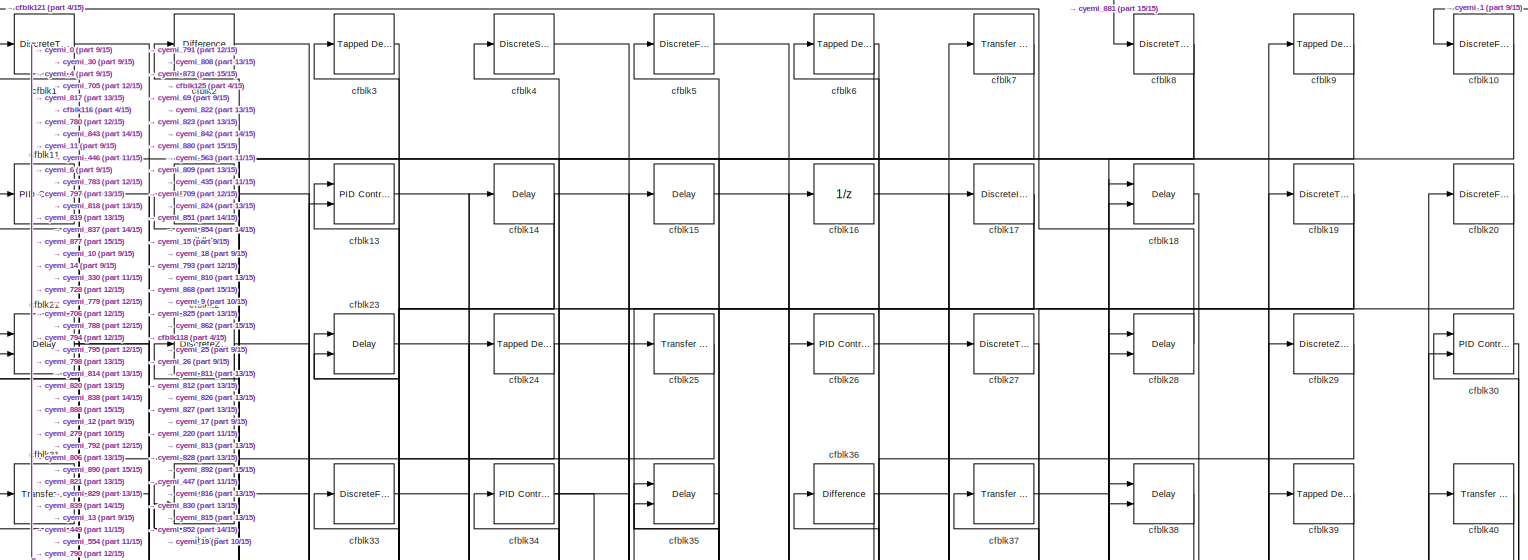
[diagram: root canvas - part 1/15, full width, top band]
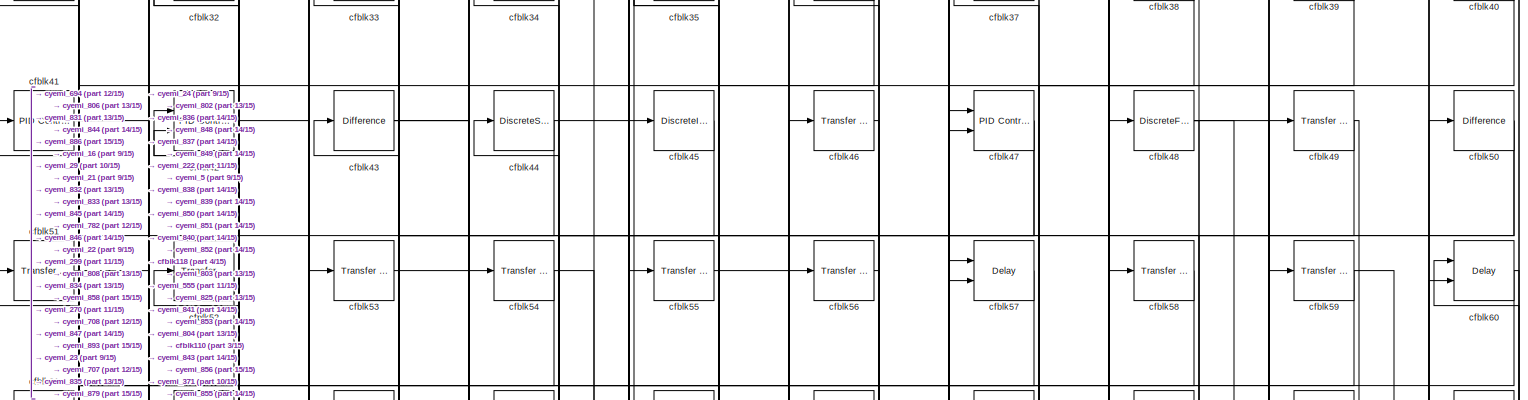
[diagram: root canvas - part 2/15, full width, top band]
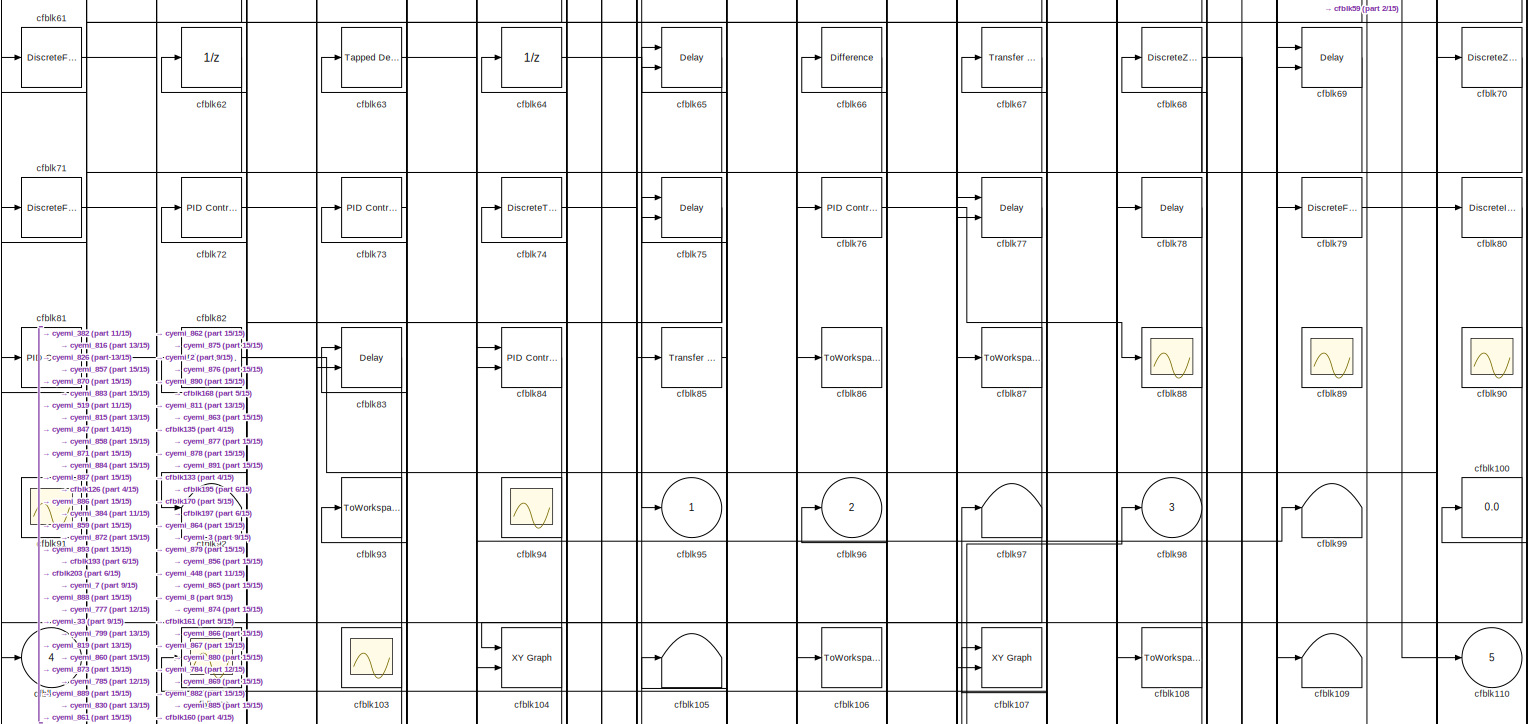
[diagram: root canvas - part 3/15, full width, top band]
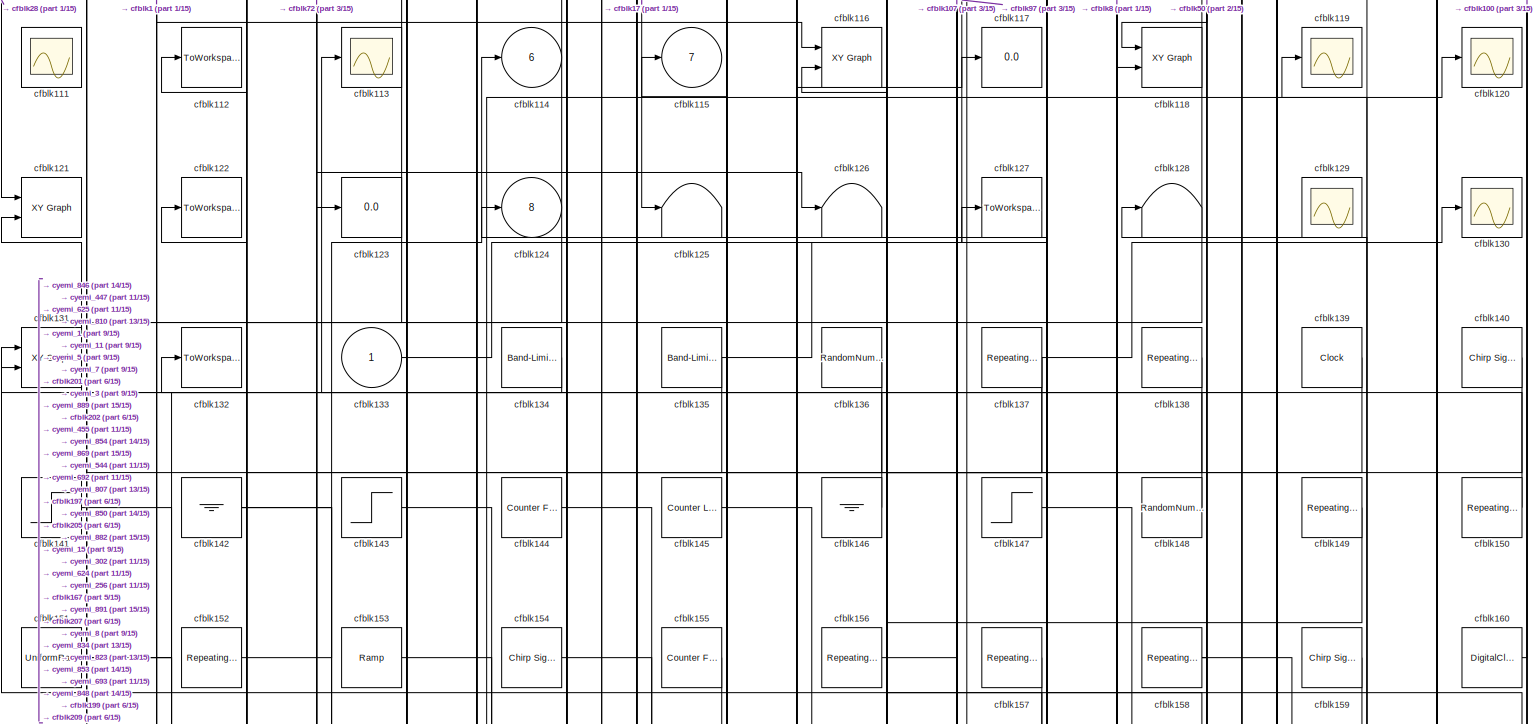
[diagram: root canvas - part 4/15, full width, top band]
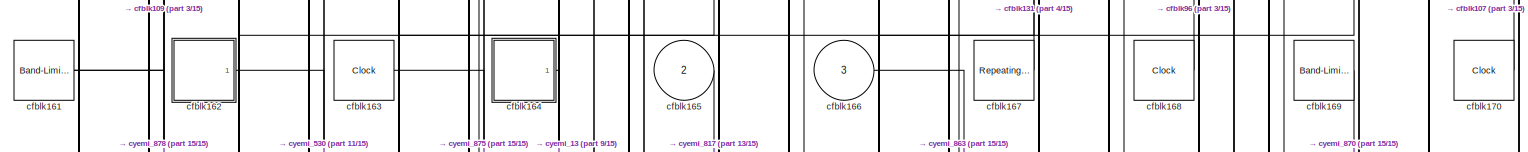
[diagram: root canvas - part 5/15, full width, top band]
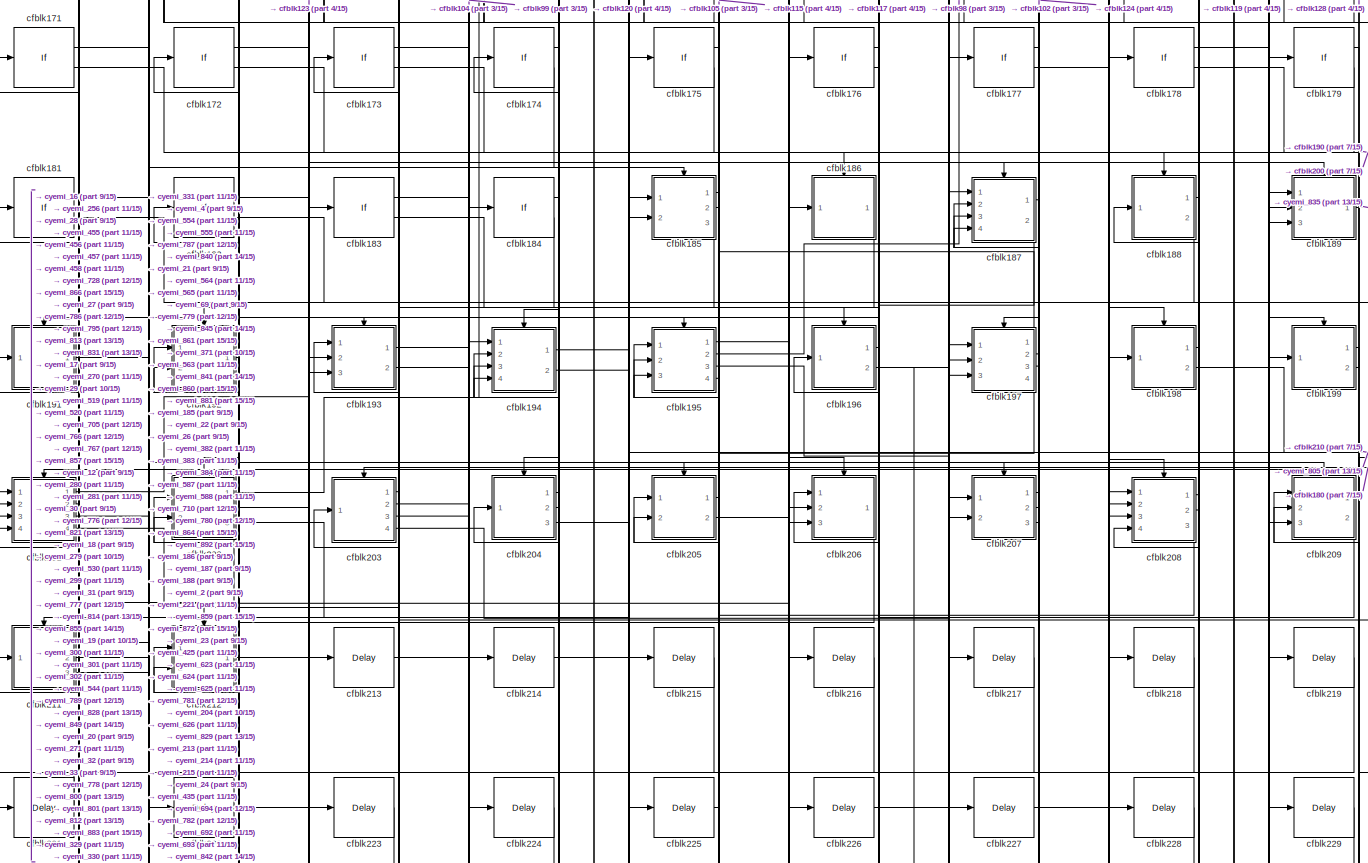
[diagram: root canvas - part 6/15, full width, middle band]
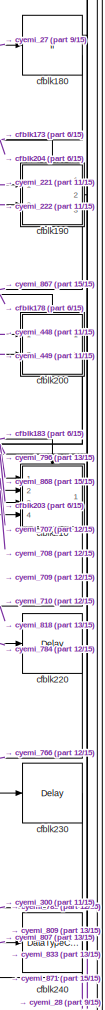
[diagram: root canvas - part 7/15, middle right region]
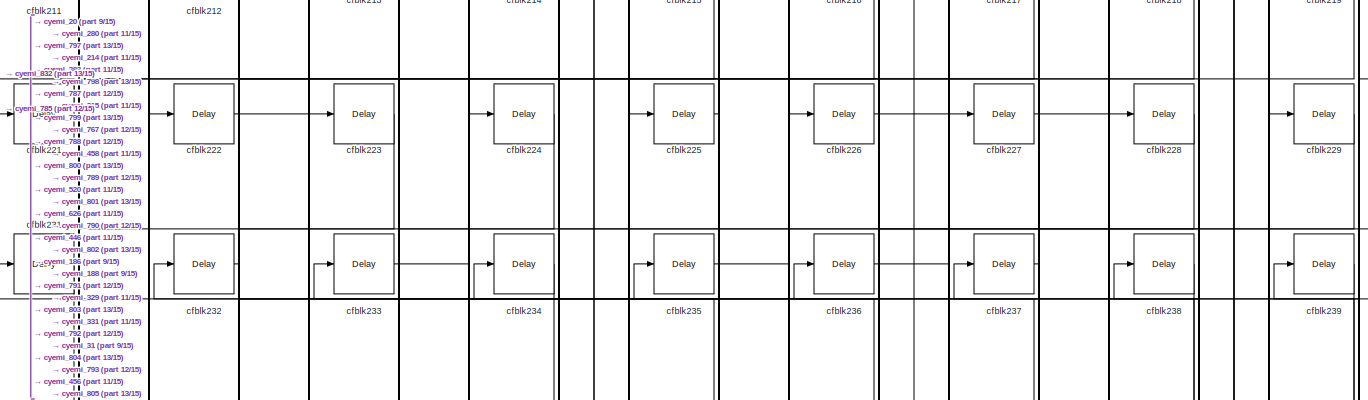
[diagram: root canvas - part 8/15, full width, middle band]
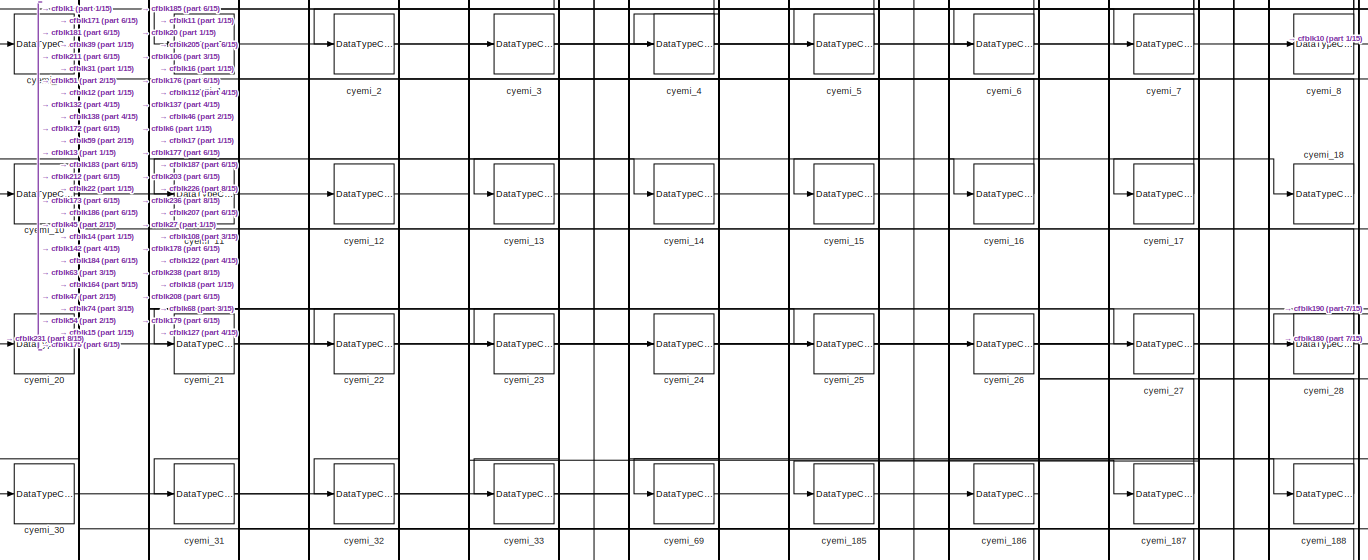
[diagram: root canvas - part 9/15, full width, middle band]
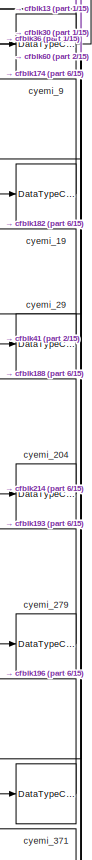
[diagram: root canvas - part 10/15, bottom right region]
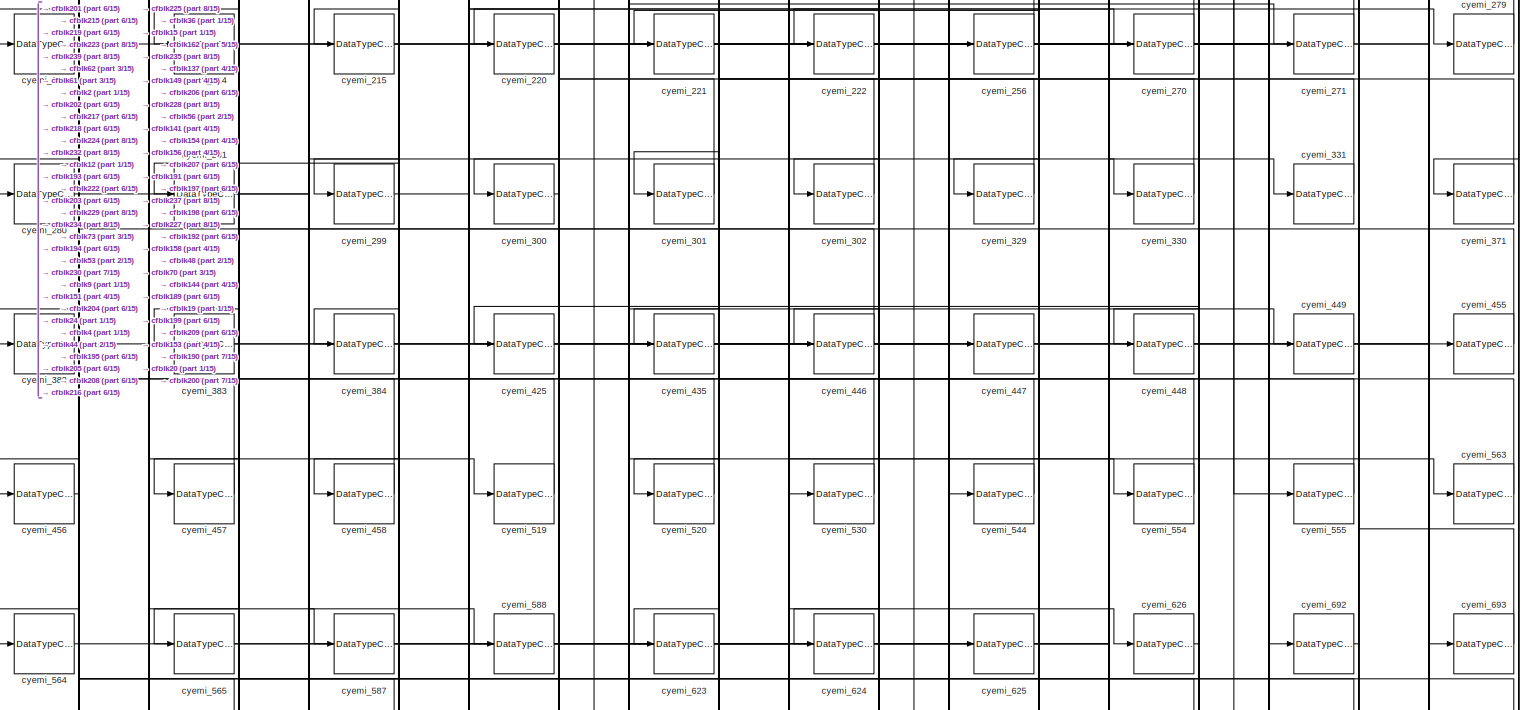
[diagram: root canvas - part 11/15, full width, bottom band]
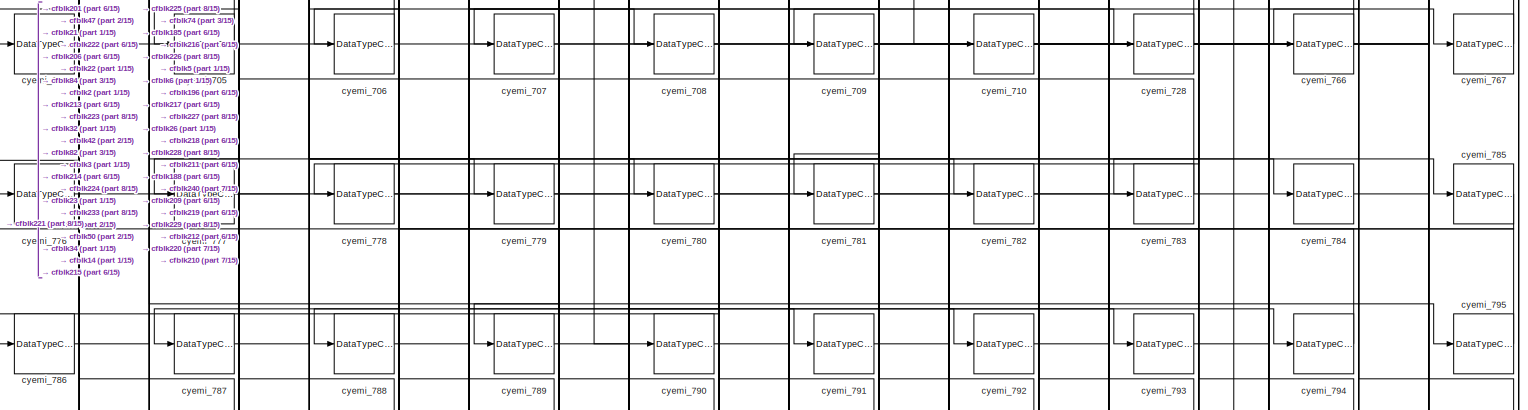
[diagram: root canvas - part 12/15, full width, bottom band]
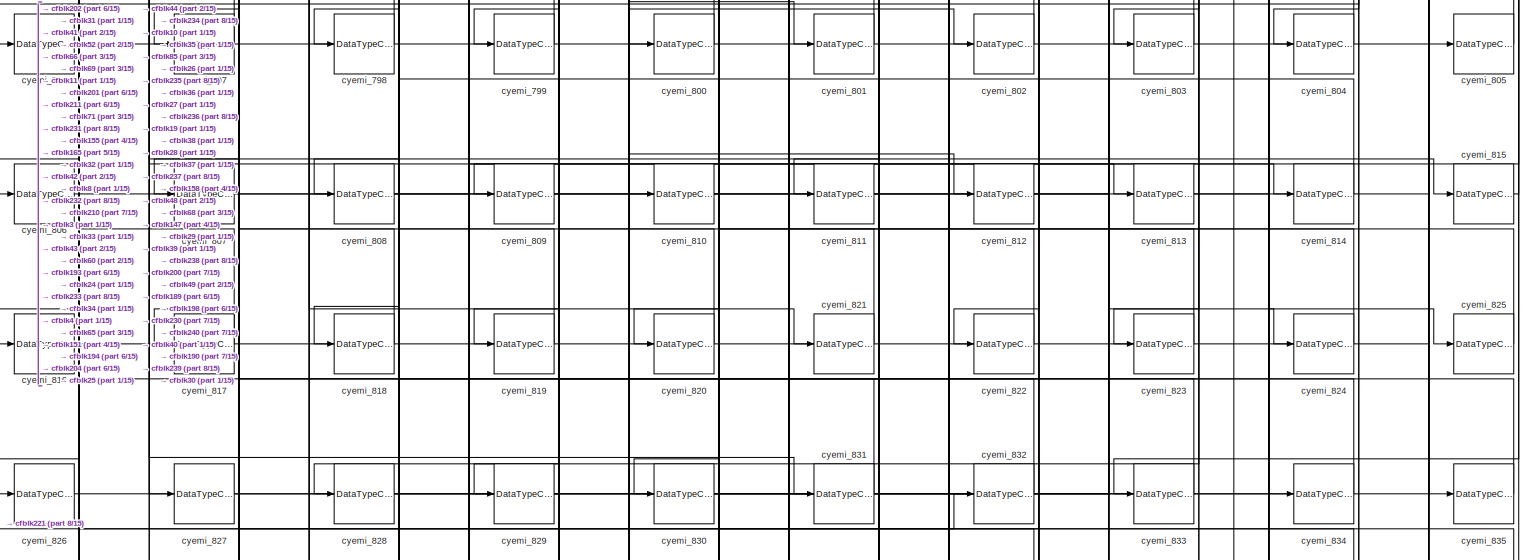
[diagram: root canvas - part 13/15, full width, bottom band]
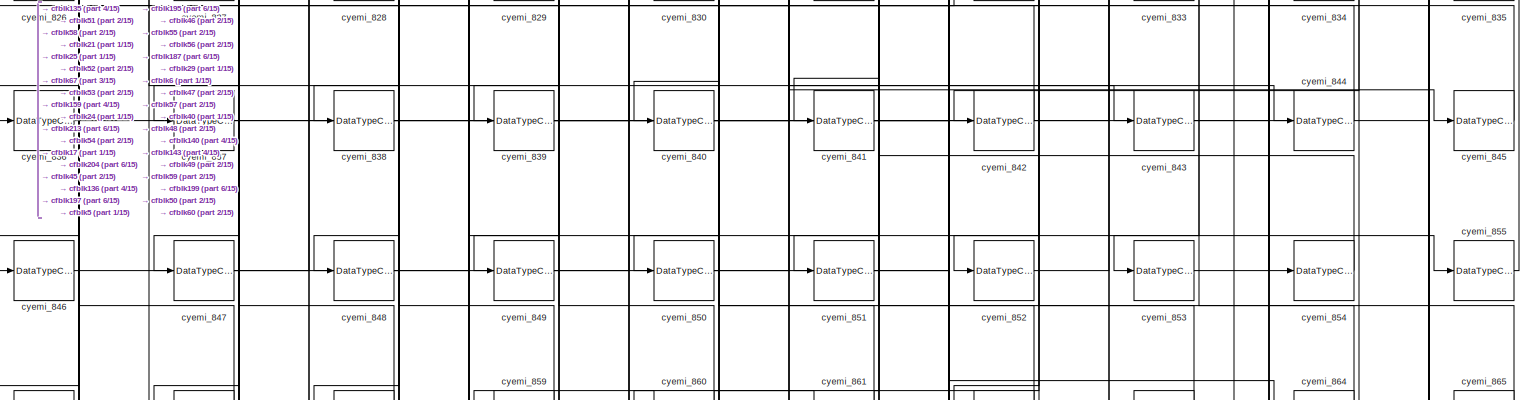
[diagram: root canvas - part 14/15, full width, bottom band]
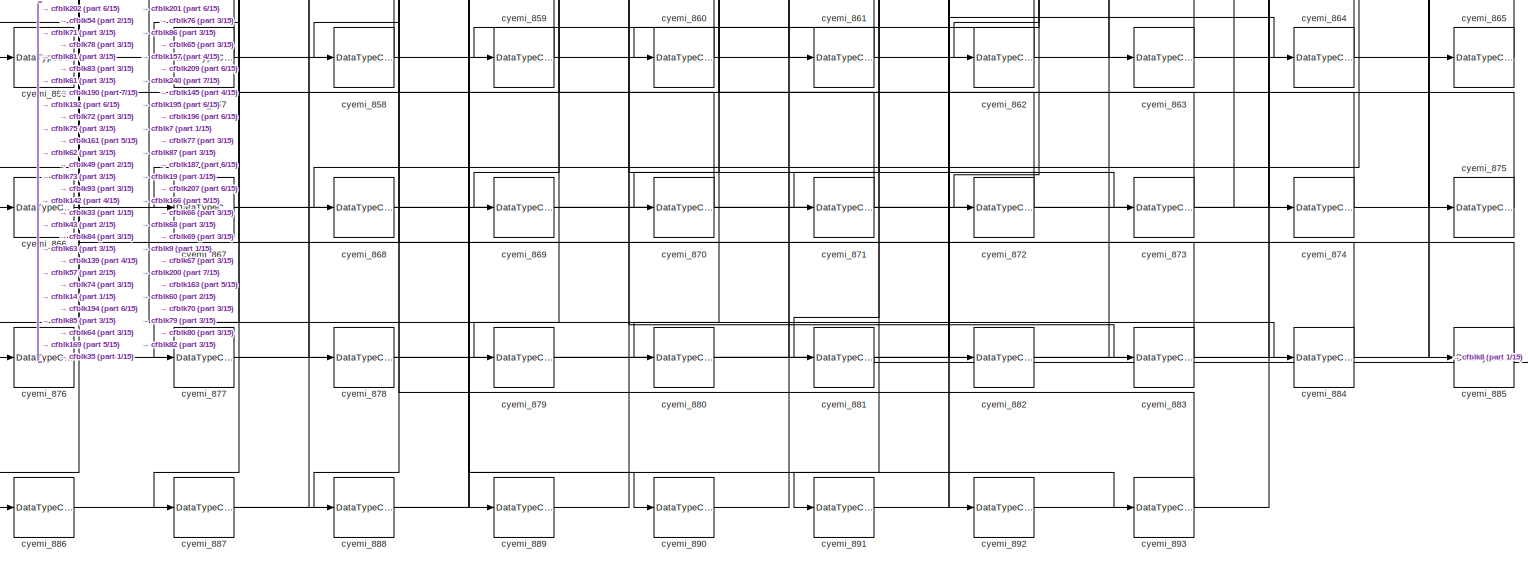
[diagram: root canvas - part 15/15, full width, bottom band]
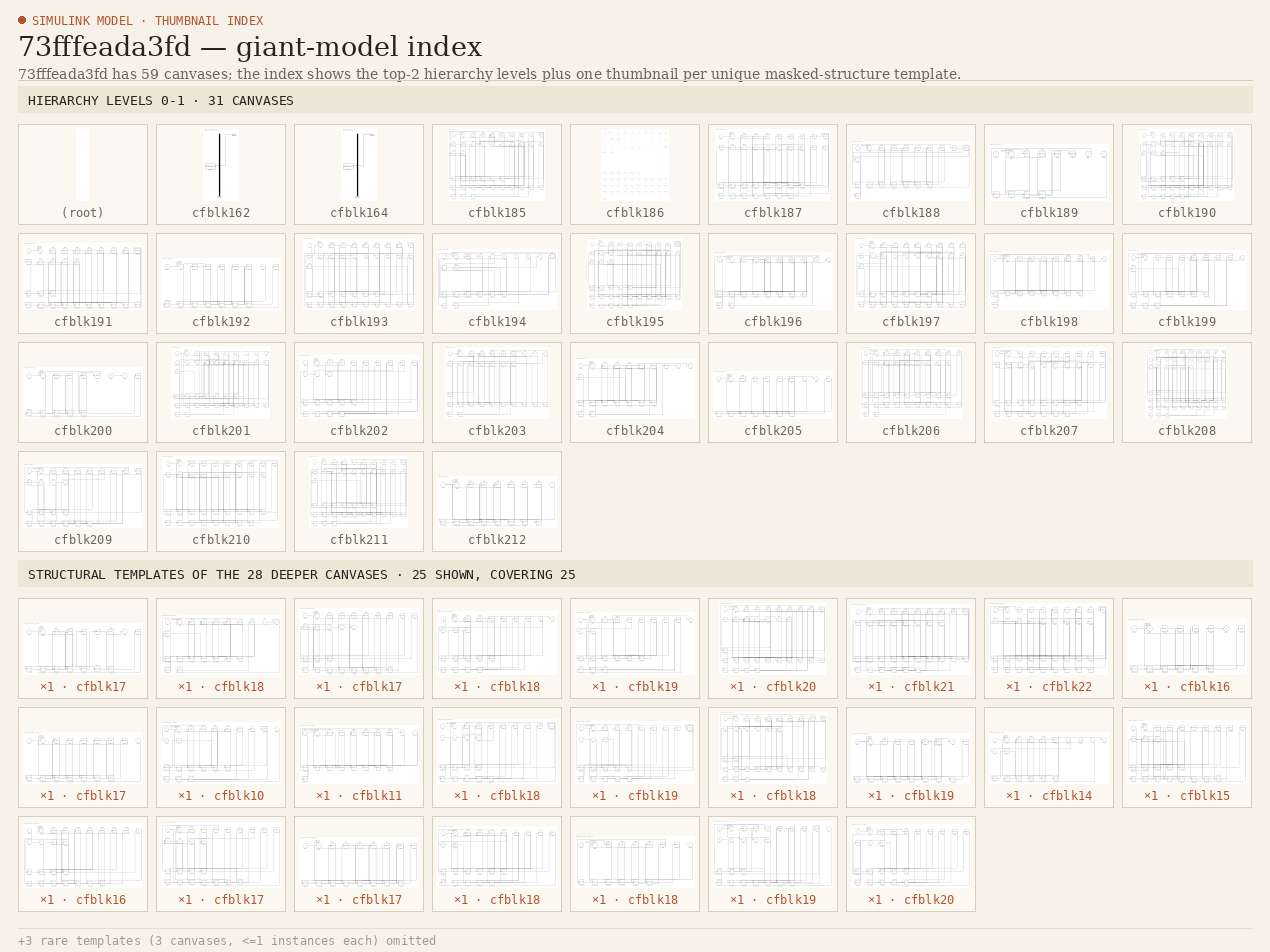
[diagram: thumbnail index - top-2 hierarchy levels (31 canvases) + 25 structural-template representatives of the remaining 28 canvases]
MODEL slx_73fffeada3fd
KIND model
CONFIG AbsTol = auto
CONFIG EnableMultiTasking = off
CONFIG FixedStep = auto
CONFIG MaxStep = auto
CONFIG MinStep = auto
CONFIG RelTol = 1e-3
CONFIG SampleTimeConstraint = Unconstrained
CONFIG Solver = VariableStepAuto
CONFIG SolverName = VariableStepAuto
CONFIG StartTime = 0.0
CONFIG StopTime = 10.0
BLOCK [DiscreteTransferFcn] cfblk1
  InputPortMap = u0
  Ports = [1, 1]
  SampleTime = 1
BLOCK [DiscreteFilter] cfblk10
  InputPortMap = u0
  Ports = [1, 1]
  SampleTime = 1
BLOCK [Display] cfblk100
  Decimation = 1
  Ports = [1]
BLOCK [Outport] cfblk101
  IconDisplay = Port number
  Port = 4
BLOCK [Scope] cfblk102
  Floating = off
  NumInputPorts = 1
  Ports = [1]
  ScopeSpecificationString = Simulink.scopes.TimeScopeBlockCfg('CurrentConfiguration', extmgr.ConfigurationSet(extmgr.Configuration('Core','General UI',true),extmgr.Configuration('Core','Source UI',true),extmgr.Configuration('Sources','WiredSimulink',true),extmgr.Configuration('Visuals','Time Domain',true),extmgr.Configuration('Tools','Plot Navigation',true),extmgr.Configuration('Tools','Measurements',true)),'Version','2018a'...<+1ch>  <repeated x13 — deduplicated; at blocks: cfblk102, cfblk103, cfblk111, cfblk113, cfblk119, cfblk120, cfblk129, cfblk130, cfblk88, cfblk89, cfblk90, cfblk91, cfblk94>
BLOCK [Scope] cfblk103
  Floating = on
  NumInputPorts = 1
  Ports = []
BLOCK [Reference] cfblk104  REF=simulink/Sinks/XY Graph
  Ports = [2]
  SourceBlock = simulink/Sinks/XY Graph
  SourceProductBaseCode = SL
  SourceProductName = Simulink
  SourceType = XY scope.
BLOCK [Terminator] cfblk105
BLOCK [ToWorkspace] cfblk106
  FixptAsFi = on
  MaxDataPoints = inf
  Ports = [1]
  SampleTime = -1
  Save2DSignal = 3-D array (concatenate along third dimension)
  SaveFormat = Timeseries
  VariableName = hqnbljg
BLOCK [Reference] cfblk107  REF=simulink/Sinks/XY Graph
  Ports = [2]
  SourceBlock = simulink/Sinks/XY Graph
  SourceProductBaseCode = SL
  SourceProductName = Simulink
  SourceType = XY scope.
BLOCK [ToWorkspace] cfblk108
  FixptAsFi = on
  MaxDataPoints = inf
  Ports = [1]
  SampleTime = -1
  Save2DSignal = 3-D array (concatenate along third dimension)
  SaveFormat = Timeseries
  VariableName = kqrxkcy
BLOCK [Terminator] cfblk109
BLOCK [Reference] cfblk11  REF=simulink/Continuous/PID Controller
  Ports = [1, 1]
  SourceBlock = simulink/Continuous/PID Controller
  SourceProductBaseCode = SL
  SourceProductName = Simulink
  SourceType = PID 1dof
BLOCK [Outport] cfblk110
  IconDisplay = Port number
  Port = 5
BLOCK [Scope] cfblk111
  Floating = on
  NumInputPorts = 1
  Ports = []
BLOCK [ToWorkspace] cfblk112
  FixptAsFi = on
  MaxDataPoints = inf
  Ports = [1]
  SampleTime = -1
  Save2DSignal = 3-D array (concatenate along third dimension)
  SaveFormat = Timeseries
  VariableName = otikzjx
BLOCK [Scope] cfblk113
  Floating = off
  NumInputPorts = 1
  Ports = [1]
BLOCK [Outport] cfblk114
  IconDisplay = Port number
  Port = 6
BLOCK [Outport] cfblk115
  IconDisplay = Port number
  Port = 7
BLOCK [Reference] cfblk116  REF=simulink/Sinks/XY Graph
  Ports = [2]
  SourceBlock = simulink/Sinks/XY Graph
  SourceProductBaseCode = SL
  SourceProductName = Simulink
  SourceType = XY scope.
BLOCK [Display] cfblk117
  Decimation = 1
  Ports = [1]
BLOCK [Reference] cfblk118  REF=simulink/Sinks/XY Graph
  Ports = [2]
  SourceBlock = simulink/Sinks/XY Graph
  SourceProductBaseCode = SL
  SourceProductName = Simulink
  SourceType = XY scope.
BLOCK [Scope] cfblk119
  Floating = off
  NumInputPorts = 1
  Ports = [1]
BLOCK [DiscreteZeroPole] cfblk12
  Gain = 1
  Poles = [0 0.5]
BLOCK [Scope] cfblk120
  Floating = off
  NumInputPorts = 1
  Ports = [1]
BLOCK [Reference] cfblk121  REF=simulink/Sinks/XY Graph
  Ports = [2]
  SourceBlock = simulink/Sinks/XY Graph
  SourceProductBaseCode = SL
  SourceProductName = Simulink
  SourceType = XY scope.
BLOCK [ToWorkspace] cfblk122
  FixptAsFi = on
  MaxDataPoints = inf
  Ports = [1]
  SampleTime = -1
  Save2DSignal = 3-D array (concatenate along third dimension)
  SaveFormat = Timeseries
  VariableName = rqzqsdh
BLOCK [Display] cfblk123
  Decimation = 1
  Ports = [1]
BLOCK [Outport] cfblk124
  IconDisplay = Port number
  Port = 8
BLOCK [Terminator] cfblk125
BLOCK [Terminator] cfblk126
BLOCK [ToWorkspace] cfblk127
  FixptAsFi = on
  MaxDataPoints = inf
  Ports = [1]
  SampleTime = -1
  Save2DSignal = 3-D array (concatenate along third dimension)
  SaveFormat = Timeseries
  VariableName = jlhlkzi
BLOCK [Terminator] cfblk128
BLOCK [Scope] cfblk129
  Floating = on
  NumInputPorts = 1
  Ports = []
BLOCK [Reference] cfblk13  REF=simulink/Continuous/PID Controller (2DOF)
  Ports = [2, 1]
  SourceBlock = simulink/Continuous/PID Controller (2DOF)
  SourceProductBaseCode = SL
  SourceProductName = Simulink
  SourceType = PID 2dof
BLOCK [Scope] cfblk130
  Floating = off
  NumInputPorts = 1
  Ports = [1]
BLOCK [Reference] cfblk131  REF=simulink/Sinks/XY Graph
  Ports = [2]
  SourceBlock = simulink/Sinks/XY Graph
  SourceProductBaseCode = SL
  SourceProductName = Simulink
  SourceType = XY scope.
BLOCK [ToWorkspace] cfblk132
  FixptAsFi = on
  MaxDataPoints = inf
  Ports = [1]
  SampleTime = -1
  Save2DSignal = 3-D array (concatenate along third dimension)
  SaveFormat = Timeseries
  VariableName = qjfdqit
BLOCK [Inport] cfblk133
  IconDisplay = Port number
BLOCK [Reference] cfblk134  REF=simulink/Sources/Band-Limited
White Noise
  Ports = [0, 1]
  SourceBlock = simulink/Sources/Band-Limited\nWhite Noise
  SourceProductBaseCode = SL
  SourceProductName = Simulink
  SourceType = Band-Limited White Noise.
BLOCK [Reference] cfblk135  REF=simulink/Sources/Band-Limited
White Noise
  Ports = [0, 1]
  SourceBlock = simulink/Sources/Band-Limited\nWhite Noise
  SourceProductBaseCode = SL
  SourceProductName = Simulink
  SourceType = Band-Limited White Noise.
BLOCK [RandomNumber] cfblk136
  SampleTime = 0.1
BLOCK [Reference] cfblk137  REF=simulink/Sources/Repeating
Sequence
Stair
  Ports = [0, 1]
  SourceBlock = simulink/Sources/Repeating\nSequence\nStair
  SourceProductBaseCode = SL
  SourceProductName = Simulink
  SourceType = Repeating Sequence Stair
BLOCK [Reference] cfblk138  REF=simulink/Sources/Repeating
Sequence
Stair
  Ports = [0, 1]
  SourceBlock = simulink/Sources/Repeating\nSequence\nStair
  SourceProductBaseCode = SL
  SourceProductName = Simulink
  SourceType = Repeating Sequence Stair
BLOCK [Clock] cfblk139
BLOCK [Delay] cfblk14
  InputPortMap = u0
  Ports = [1, 1]
  SampleTime = 1
BLOCK [Reference] cfblk140  REF=simulink/Sources/Chirp Signal
  Ports = [0, 1]
  SourceBlock = simulink/Sources/Chirp Signal
  SourceProductBaseCode = SL
  SourceProductName = Simulink
  SourceType = chirp
BLOCK [Step] cfblk141
  After = 53
  SampleTime = 0
BLOCK [Ground] cfblk142
BLOCK [Step] cfblk143
  After = 78
  SampleTime = 0
BLOCK [Reference] cfblk144  REF=simulink/Sources/Counter
Free-Running
  Ports = [0, 1]
  SourceBlock = simulink/Sources/Counter\nFree-Running
  SourceProductBaseCode = SL
  SourceProductName = Simulink
  SourceType = Counter Free-Running
BLOCK [Reference] cfblk145  REF=simulink/Sources/Counter
Limited
  Ports = [0, 1]
  SourceBlock = simulink/Sources/Counter\nLimited
  SourceProductBaseCode = SL
  SourceProductName = Simulink
  SourceType = Counter Limited
BLOCK [Ground] cfblk146
BLOCK [Step] cfblk147
  After = 42
  SampleTime = 0
BLOCK [RandomNumber] cfblk148
  SampleTime = 0.1
BLOCK [Reference] cfblk149  REF=simulink/Sources/Repeating
Sequence
  Ports = [0, 1]
  SourceBlock = simulink/Sources/Repeating\nSequence
  SourceProductBaseCode = SL
  SourceProductName = Simulink
  SourceType = Repeating table
BLOCK [Delay] cfblk15
  InputPortMap = u0
  Ports = [1, 1]
  SampleTime = 1
BLOCK [Reference] cfblk150  REF=simulink/Sources/Repeating
Sequence
Interpolated
  Ports = [0, 1]
  SourceBlock = simulink/Sources/Repeating\nSequence\nInterpolated
  SourceProductBaseCode = SL
  SourceProductName = Simulink
  SourceType = Repeating Sequence Interpolated
BLOCK [UniformRandomNumber] cfblk151
  SampleTime = 0.1
BLOCK [Reference] cfblk152  REF=simulink/Sources/Repeating
Sequence
Interpolated
  Ports = [0, 1]
  SourceBlock = simulink/Sources/Repeating\nSequence\nInterpolated
  SourceProductBaseCode = SL
  SourceProductName = Simulink
  SourceType = Repeating Sequence Interpolated
BLOCK [Reference] cfblk153  REF=simulink/Sources/Ramp
  Ports = [0, 1]
  SourceBlock = simulink/Sources/Ramp
  SourceProductBaseCode = SL
  SourceProductName = Simulink
  SourceType = Ramp
BLOCK [Reference] cfblk154  REF=simulink/Sources/Chirp Signal
  Ports = [0, 1]
  SourceBlock = simulink/Sources/Chirp Signal
  SourceProductBaseCode = SL
  SourceProductName = Simulink
  SourceType = chirp
BLOCK [Reference] cfblk155  REF=simulink/Sources/Counter
Free-Running
  Ports = [0, 1]
  SourceBlock = simulink/Sources/Counter\nFree-Running
  SourceProductBaseCode = SL
  SourceProductName = Simulink
  SourceType = Counter Free-Running
BLOCK [Reference] cfblk156  REF=simulink/Sources/Repeating
Sequence
  Ports = [0, 1]
  SourceBlock = simulink/Sources/Repeating\nSequence
  SourceProductBaseCode = SL
  SourceProductName = Simulink
  SourceType = Repeating table
BLOCK [Reference] cfblk157  REF=simulink/Sources/Repeating
Sequence
Stair
  Ports = [0, 1]
  SourceBlock = simulink/Sources/Repeating\nSequence\nStair
  SourceProductBaseCode = SL
  SourceProductName = Simulink
  SourceType = Repeating Sequence Stair
BLOCK [Reference] cfblk158  REF=simulink/Sources/Repeating
Sequence
  Ports = [0, 1]
  SourceBlock = simulink/Sources/Repeating\nSequence
  SourceProductBaseCode = SL
  SourceProductName = Simulink
  SourceType = Repeating table
BLOCK [Reference] cfblk159  REF=simulink/Sources/Chirp Signal
  Ports = [0, 1]
  SourceBlock = simulink/Sources/Chirp Signal
  SourceProductBaseCode = SL
  SourceProductName = Simulink
  SourceType = chirp
BLOCK [UnitDelay] cfblk16
  InputProcessing = Elements as channels (sample based)
BLOCK [DigitalClock] cfblk160
BLOCK [Reference] cfblk161  REF=simulink/Sources/Band-Limited
White Noise
  Ports = [0, 1]
  SourceBlock = simulink/Sources/Band-Limited\nWhite Noise
  SourceProductBaseCode = SL
  SourceProductName = Simulink
  SourceType = Band-Limited White Noise.
BLOCK [SubSystem] cfblk162
  ClipboardFcn = sigbuilder_block('clipboard');
  CloseFcn = sigbuilder_block('close');
  ContinueFcn = sigbuilder_block('continue');
  CopyFcn = sigbuilder_block('copy');
  DeleteFcn = sigbuilder_block('delete');
  LoadFcn = sigbuilder_block('load');
  MaskHideContents = on
  ModelCloseFcn = sigbuilder_block('modelClose');
  NameChangeFcn = sigbuilder_block('namechange');
  OpenFcn = sigbuilder_block('open',[437.6 199.2 550.4 400 ]);
  PauseFcn = sigbuilder_block('pause');
  Ports = [0, 1]
  PreSaveFcn = sigbuilder_block('preSave');
  RequestExecContextInheritance = off
  StartFcn = sigbuilder_block('start');
  StopFcn = sigbuilder_block('stop');
  Tag = STV Subsys
BLOCK [Demux] cfblk162/Demux
  Outputs = 1
  Ports = [1, 1]
  Tag = STV Demux
BLOCK [FromWorkspace] cfblk162/FromWs
  SampleTime = 0
  Tag = STV FromWs
  VariableName = tuvar
  ZeroCross = on
BLOCK [Outport] cfblk162/Signal 1
  IconDisplay = Port number
  Tag = STV Outport
BLOCK [Clock] cfblk163
BLOCK [SubSystem] cfblk164
  ClipboardFcn = sigbuilder_block('clipboard');
  CloseFcn = sigbuilder_block('close');
  ContinueFcn = sigbuilder_block('continue');
  CopyFcn = sigbuilder_block('copy');
  DeleteFcn = sigbuilder_block('delete');
  LoadFcn = sigbuilder_block('load');
  MaskHideContents = on
  ModelCloseFcn = sigbuilder_block('modelClose');
  NameChangeFcn = sigbuilder_block('namechange');
  OpenFcn = sigbuilder_block('open',[437.6 199.2 550.4 400 ]);
  PauseFcn = sigbuilder_block('pause');
  Ports = [0, 1]
  PreSaveFcn = sigbuilder_block('preSave');
  RequestExecContextInheritance = off
  StartFcn = sigbuilder_block('start');
  StopFcn = sigbuilder_block('stop');
  Tag = STV Subsys
BLOCK [Demux] cfblk164/Demux
  Outputs = 1
  Ports = [1, 1]
  Tag = STV Demux
BLOCK [FromWorkspace] cfblk164/FromWs
  SampleTime = 0
  Tag = STV FromWs
  VariableName = tuvar
  ZeroCross = on
BLOCK [Outport] cfblk164/Signal 1
  IconDisplay = Port number
  Tag = STV Outport
BLOCK [Inport] cfblk165
  IconDisplay = Port number
  Port = 2
BLOCK [Inport] cfblk166
  IconDisplay = Port number
  Port = 3
BLOCK [Reference] cfblk167  REF=simulink/Sources/Repeating
Sequence
Stair
  Ports = [0, 1]
  SourceBlock = simulink/Sources/Repeating\nSequence\nStair
  SourceProductBaseCode = SL
  SourceProductName = Simulink
  SourceType = Repeating Sequence Stair
BLOCK [Clock] cfblk168
BLOCK [Reference] cfblk169  REF=simulink/Sources/Band-Limited
White Noise
  Ports = [0, 1]
  SourceBlock = simulink/Sources/Band-Limited\nWhite Noise
  SourceProductBaseCode = SL
  SourceProductName = Simulink
  SourceType = Band-Limited White Noise.
BLOCK [DiscreteIntegrator] cfblk17
  ICPrevOutput = DiscIntNeverNeededParam
  ICPrevScaledInput = DiscIntNeverNeededParam
  InitialConditionSetting = Auto
  OutDataTypeStr = double
  Ports = [1, 1]
BLOCK [Clock] cfblk170
BLOCK [If] cfblk171
  Ports = [1, 2]
  SampleTime = 1
BLOCK [If] cfblk172
  Ports = [1, 2]
  SampleTime = 1
BLOCK [If] cfblk173
  Ports = [1, 2]
  SampleTime = 1
BLOCK [If] cfblk174
  Ports = [1, 2]
  SampleTime = 1
BLOCK [If] cfblk175
  Ports = [1, 2]
  SampleTime = 1
BLOCK [If] cfblk176
  Ports = [1, 2]
  SampleTime = 1
BLOCK [If] cfblk177
  Ports = [1, 2]
  SampleTime = 1
BLOCK [If] cfblk178
  Ports = [1, 2]
  SampleTime = 1
BLOCK [If] cfblk179
  Ports = [1, 2]
  SampleTime = 1
BLOCK [Delay] cfblk18
  DelayLengthSource = Input port
  InputPortMap = u0,p1
  Ports = [2, 1]
  SampleTime = 1
BLOCK [If] cfblk180
  Ports = [1, 2]
  SampleTime = 1
BLOCK [If] cfblk181
  Ports = [1, 2]
  SampleTime = 1
BLOCK [If] cfblk182
  Ports = [1, 2]
  SampleTime = 1
BLOCK [If] cfblk183
  Ports = [1, 2]
  SampleTime = 1
BLOCK [If] cfblk184
  Ports = [1, 2]
  SampleTime = 1
BLOCK [SubSystem] cfblk185
  Ports = [2, 3, 0, 0, 0, 0, 0, 1]
  RequestExecContextInheritance = off
  TreatAsAtomicUnit = on
BLOCK [ActionPort] cfblk185/Action Port
  ActionType = then
BLOCK [Inport] cfblk185/cfblk1
  IconDisplay = Port number
BLOCK [Reference] cfblk185/cfblk10  REF=simulink/Discrete/Transfer Fcn
First Order
  Ports = [1, 1]
  SourceBlock = simulink/Discrete/Transfer Fcn\nFirst Order
  SourceProductBaseCode = SL
  SourceProductName = Simulink
  SourceType = First Order Transfer Fcn
BLOCK [DiscreteStateSpace] cfblk185/cfblk11
  SampleTime = -1
BLOCK [Reference] cfblk185/cfblk12  REF=simulink/Discrete/Difference
  Ports = [1, 1]
  SourceBlock = simulink/Discrete/Difference
  SourceProductBaseCode = SL
  SourceProductName = Simulink
  SourceType = Difference
BLOCK [If] cfblk185/cfblk13
  Ports = [1, 2]
  SampleTime = 1
BLOCK [Inport] cfblk185/cfblk14
  IconDisplay = Port number
  Port = 2
BLOCK [Outport] cfblk185/cfblk15
  IconDisplay = Port number
  Port = 2
BLOCK [Outport] cfblk185/cfblk16
  IconDisplay = Port number
  Port = 3
BLOCK [SubSystem] cfblk185/cfblk17
  Ports = [1, 2, 0, 0, 0, 0, 0, 1]
  RequestExecContextInheritance = off
  TreatAsAtomicUnit = on
BLOCK [ActionPort] cfblk185/cfblk17/Action Port
  ActionType = then
BLOCK [Inport] cfblk185/cfblk17/cfblk1
  IconDisplay = Port number
BLOCK [Outport] cfblk185/cfblk17/cfblk2
  IconDisplay = Port number
BLOCK [Reference] cfblk185/cfblk17/cfblk3  REF=simulink/Discrete/Tapped Delay
  Ports = [1, 1]
  SourceBlock = simulink/Discrete/Tapped Delay
  SourceProductBaseCode = SL
  SourceProductName = Simulink
  SourceType = Tapped Delay Line
BLOCK [Delay] cfblk185/cfblk17/cfblk4
  DelayLengthSource = Input port
  InputPortMap = u0,p1
  Ports = [2, 1]
BLOCK [DiscreteTransferFcn] cfblk185/cfblk17/cfblk5
  InputPortMap = u0
  Ports = [1, 1]
BLOCK [Reference] cfblk185/cfblk17/cfblk6  REF=simulink/Discrete/Difference
  Ports = [1, 1]
  SourceBlock = simulink/Discrete/Difference
  SourceProductBaseCode = SL
  SourceProductName = Simulink
  SourceType = Difference
BLOCK [UnitDelay] cfblk185/cfblk17/cfblk7
  InputProcessing = Elements as channels (sample based)
  SampleTime = -1
BLOCK [Outport] cfblk185/cfblk17/cfblk8
  IconDisplay = Port number
  Port = 2
BLOCK [Delay] cfblk185/cfblk17/cfblk9
  InputPortMap = u0
  Ports = [1, 1]
BLOCK [DataTypeConversion] cfblk185/cfblk17/cyemi_39
  OutDataTypeStr = double
  RndMeth = Floor
  SaturateOnIntegerOverflow = off
BLOCK [DataTypeConversion] cfblk185/cfblk17/cyemi_40
  OutDataTypeStr = double
  RndMeth = Floor
  SaturateOnIntegerOverflow = off
BLOCK [DataTypeConversion] cfblk185/cfblk17/cyemi_41
  OutDataTypeStr = double
  RndMeth = Floor
  SaturateOnIntegerOverflow = off
BLOCK [DataTypeConversion] cfblk185/cfblk17/cyemi_42
  OutDataTypeStr = double
  RndMeth = Floor
  SaturateOnIntegerOverflow = off
BLOCK [DataTypeConversion] cfblk185/cfblk17/cyemi_43
  OutDataTypeStr = double
  RndMeth = Floor
  SaturateOnIntegerOverflow = off
BLOCK [DataTypeConversion] cfblk185/cfblk17/cyemi_44
  OutDataTypeStr = double
  RndMeth = Floor
  SaturateOnIntegerOverflow = off
BLOCK [DataTypeConversion] cfblk185/cfblk17/cyemi_45
  OutDataTypeStr = double
  RndMeth = Floor
  SaturateOnIntegerOverflow = off
BLOCK [SubSystem] cfblk185/cfblk18
  Ports = [2, 2, 0, 0, 0, 0, 0, 1]
  RequestExecContextInheritance = off
  TreatAsAtomicUnit = on
BLOCK [ActionPort] cfblk185/cfblk18/Action Port
  ActionType = else
BLOCK [Inport] cfblk185/cfblk18/cfblk1
  IconDisplay = Port number
BLOCK [Outport] cfblk185/cfblk18/cfblk10
  IconDisplay = Port number
  Port = 2
BLOCK [Delay] cfblk185/cfblk18/cfblk11
  InputPortMap = u0
  Ports = [1, 1]
BLOCK [Outport] cfblk185/cfblk18/cfblk2
  IconDisplay = Port number
BLOCK [Delay] cfblk185/cfblk18/cfblk3
  DelayLengthSource = Input port
  InputPortMap = u0,p1
  Ports = [2, 1]
BLOCK [Delay] cfblk185/cfblk18/cfblk4
  DelayLengthSource = Input port
  InputPortMap = u0,p1
  Ports = [2, 1]
BLOCK [Reference] cfblk185/cfblk18/cfblk5  REF=simulink/Discrete/Tapped Delay
  Ports = [1, 1]
  SourceBlock = simulink/Discrete/Tapped Delay
  SourceProductBaseCode = SL
  SourceProductName = Simulink
  SourceType = Tapped Delay Line
BLOCK [Reference] cfblk185/cfblk18/cfblk6  REF=simulink/Discrete/Difference
  Ports = [1, 1]
  SourceBlock = simulink/Discrete/Difference
  SourceProductBaseCode = SL
  SourceProductName = Simulink
  SourceType = Difference
BLOCK [Reference] cfblk185/cfblk18/cfblk7  REF=simulink/Discrete/Transfer Fcn
Real Zero
  Ports = [1, 1]
  SourceBlock = simulink/Discrete/Transfer Fcn\nReal Zero
  SourceProductBaseCode = SL
  SourceProductName = Simulink
  SourceType = Transfer Fcn Real Zero
BLOCK [DiscreteStateSpace] cfblk185/cfblk18/cfblk8
  SampleTime = -1
BLOCK [Inport] cfblk185/cfblk18/cfblk9
  IconDisplay = Port number
  Port = 2
BLOCK [DataTypeConversion] cfblk185/cfblk18/cyemi_48
  OutDataTypeStr = double
  RndMeth = Floor
  SaturateOnIntegerOverflow = off
BLOCK [DataTypeConversion] cfblk185/cfblk18/cyemi_49
  OutDataTypeStr = double
  RndMeth = Floor
  SaturateOnIntegerOverflow = off
BLOCK [DataTypeConversion] cfblk185/cfblk18/cyemi_50
  OutDataTypeStr = double
  RndMeth = Floor
  SaturateOnIntegerOverflow = off
BLOCK [DataTypeConversion] cfblk185/cfblk18/cyemi_51
  OutDataTypeStr = double
  RndMeth = Floor
  SaturateOnIntegerOverflow = off
BLOCK [DataTypeConversion] cfblk185/cfblk18/cyemi_52
  OutDataTypeStr = double
  RndMeth = Floor
  SaturateOnIntegerOverflow = off
BLOCK [DataTypeConversion] cfblk185/cfblk18/cyemi_53
  OutDataTypeStr = double
  RndMeth = Floor
  SaturateOnIntegerOverflow = off
BLOCK [DataTypeConversion] cfblk185/cfblk18/cyemi_54
  OutDataTypeStr = double
  RndMeth = Floor
  SaturateOnIntegerOverflow = off
BLOCK [DataTypeConversion] cfblk185/cfblk18/cyemi_55
  OutDataTypeStr = double
  RndMeth = Floor
  SaturateOnIntegerOverflow = off
BLOCK [DataTypeConversion] cfblk185/cfblk18/cyemi_56
  OutDataTypeStr = double
  RndMeth = Floor
  SaturateOnIntegerOverflow = off
BLOCK [Delay] cfblk185/cfblk19
  InputPortMap = u0
  Ports = [1, 1]
BLOCK [Outport] cfblk185/cfblk2
  IconDisplay = Port number
BLOCK [Delay] cfblk185/cfblk20
  InputPortMap = u0
  Ports = [1, 1]
BLOCK [Delay] cfblk185/cfblk21
  InputPortMap = u0
  Ports = [1, 1]
BLOCK [Delay] cfblk185/cfblk22
  InputPortMap = u0
  Ports = [1, 1]
BLOCK [Delay] cfblk185/cfblk3
  InputPortMap = u0
  Ports = [1, 1]
BLOCK [Reference] cfblk185/cfblk4  REF=simulink/Discrete/Tapped Delay
  Ports = [1, 1]
  SourceBlock = simulink/Discrete/Tapped Delay
  SourceProductBaseCode = SL
  SourceProductName = Simulink
  SourceType = Tapped Delay Line
BLOCK [Reference] cfblk185/cfblk5  REF=simulink/Continuous/PID Controller (2DOF)
  Ports = [2, 1]
  SourceBlock = simulink/Continuous/PID Controller (2DOF)
  SourceProductBaseCode = SL
  SourceProductName = Simulink
  SourceType = PID 2dof
BLOCK [DiscreteIntegrator] cfblk185/cfblk6
  ICPrevOutput = DiscIntNeverNeededParam
  ICPrevScaledInput = DiscIntNeverNeededParam
  InitialConditionSetting = Auto
  OutDataTypeStr = double
  Ports = [1, 1]
  SampleTime = -1
BLOCK [DiscreteZeroPole] cfblk185/cfblk7
  Gain = 1
  Poles = [0 0.5]
  SampleTime = -1
BLOCK [DiscreteFir] cfblk185/cfblk8
  InputPortMap = u0
  OutputPortMap = o0
  Ports = [1, 1]
BLOCK [Delay] cfblk185/cfblk9
  InputPortMap = u0
  Ports = [1, 1]
BLOCK [DataTypeConversion] cfblk185/cyemi_34
  OutDataTypeStr = double
  RndMeth = Floor
  SaturateOnIntegerOverflow = off
BLOCK [DataTypeConversion] cfblk185/cyemi_35
  OutDataTypeStr = double
  RndMeth = Floor
  SaturateOnIntegerOverflow = off
BLOCK [DataTypeConversion] cfblk185/cyemi_36
  OutDataTypeStr = double
  RndMeth = Floor
  SaturateOnIntegerOverflow = off
BLOCK [DataTypeConversion] cfblk185/cyemi_37
  OutDataTypeStr = double
  RndMeth = Floor
  SaturateOnIntegerOverflow = off
BLOCK [DataTypeConversion] cfblk185/cyemi_38
  OutDataTypeStr = double
  RndMeth = Floor
  SaturateOnIntegerOverflow = off
BLOCK [DataTypeConversion] cfblk185/cyemi_46
  OutDataTypeStr = double
  RndMeth = Floor
  SaturateOnIntegerOverflow = off
BLOCK [DataTypeConversion] cfblk185/cyemi_47
  OutDataTypeStr = double
  RndMeth = Floor
  SaturateOnIntegerOverflow = off
BLOCK [DataTypeConversion] cfblk185/cyemi_57
  OutDataTypeStr = double
  RndMeth = Floor
  SaturateOnIntegerOverflow = off
BLOCK [DataTypeConversion] cfblk185/cyemi_58
  OutDataTypeStr = double
  RndMeth = Floor
  SaturateOnIntegerOverflow = off
BLOCK [DataTypeConversion] cfblk185/cyemi_59
  OutDataTypeStr = double
  RndMeth = Floor
  SaturateOnIntegerOverflow = off
BLOCK [DataTypeConversion] cfblk185/cyemi_60
  OutDataTypeStr = double
  RndMeth = Floor
  SaturateOnIntegerOverflow = off
BLOCK [DataTypeConversion] cfblk185/cyemi_61
  OutDataTypeStr = double
  RndMeth = Floor
  SaturateOnIntegerOverflow = off
BLOCK [DataTypeConversion] cfblk185/cyemi_62
  OutDataTypeStr = double
  RndMeth = Floor
  SaturateOnIntegerOverflow = off
BLOCK [DataTypeConversion] cfblk185/cyemi_63
  OutDataTypeStr = double
  RndMeth = Floor
  SaturateOnIntegerOverflow = off
BLOCK [DataTypeConversion] cfblk185/cyemi_64
  OutDataTypeStr = double
  RndMeth = Floor
  SaturateOnIntegerOverflow = off
BLOCK [DataTypeConversion] cfblk185/cyemi_65
  OutDataTypeStr = double
  RndMeth = Floor
  SaturateOnIntegerOverflow = off
BLOCK [DataTypeConversion] cfblk185/cyemi_66
  OutDataTypeStr = double
  RndMeth = Floor
  SaturateOnIntegerOverflow = off
BLOCK [DataTypeConversion] cfblk185/cyemi_67
  OutDataTypeStr = double
  RndMeth = Floor
  SaturateOnIntegerOverflow = off
BLOCK [DataTypeConversion] cfblk185/cyemi_68
  OutDataTypeStr = double
  RndMeth = Floor
  SaturateOnIntegerOverflow = off
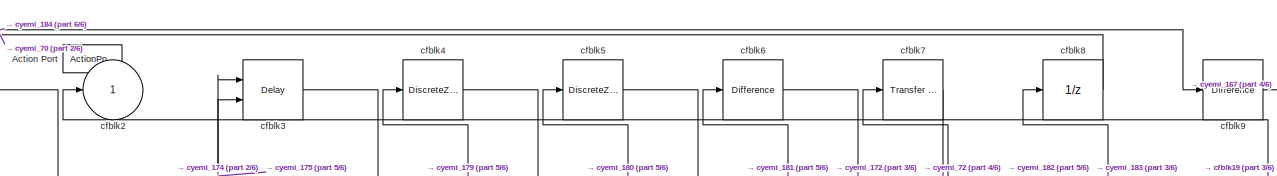
[diagram: cfblk186 - part 1/6, full width, top band]
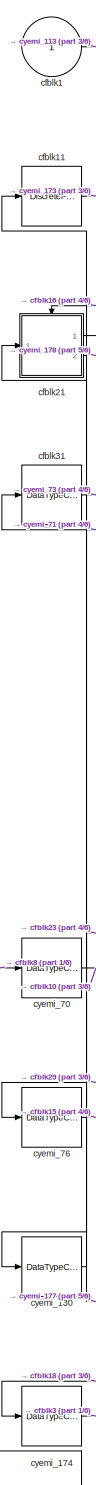
[diagram: cfblk186 - part 2/6, left side, full height]
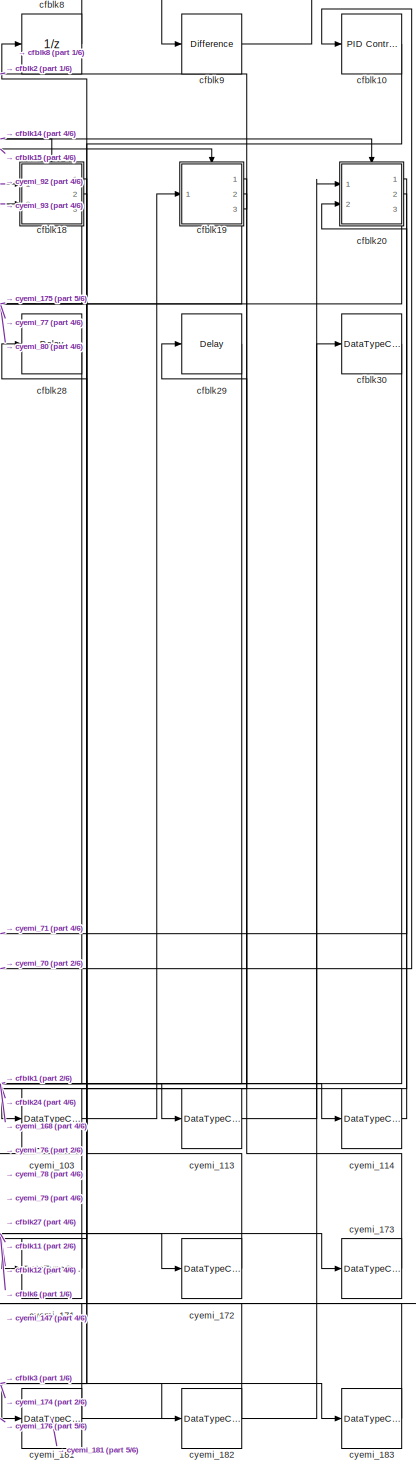
[diagram: cfblk186 - part 3/6, right side, full height]
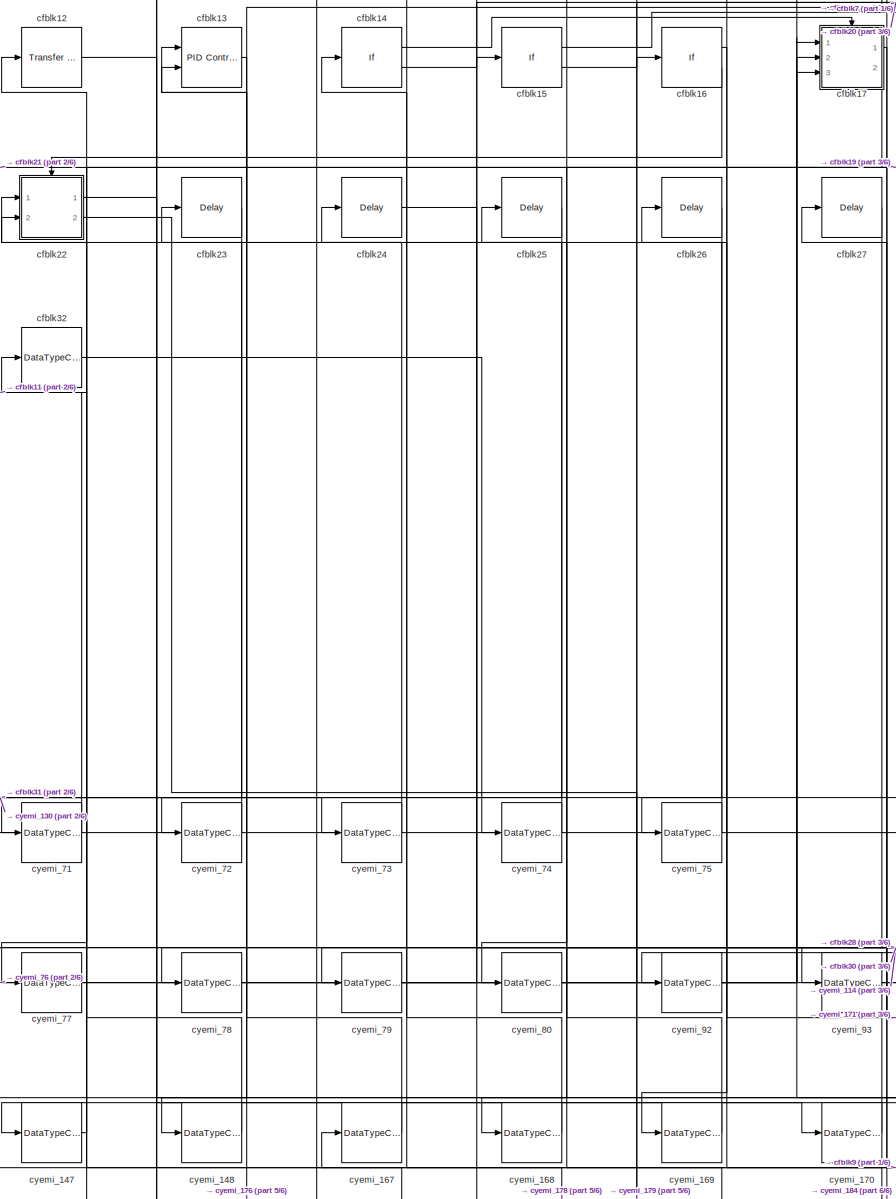
[diagram: cfblk186 - part 4/6, central region]
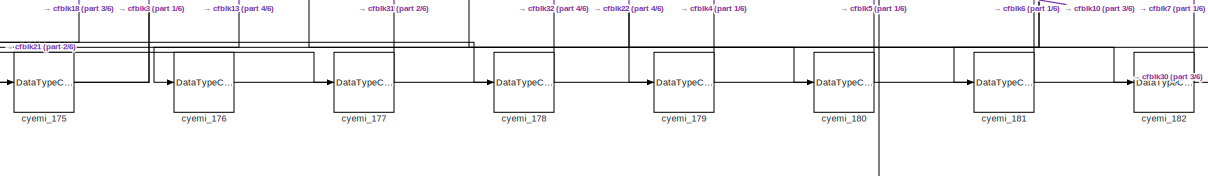
[diagram: cfblk186 - part 5/6, full width, bottom band]
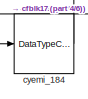
[diagram: cfblk186 - part 6/6, bottom left region]
BLOCK [SubSystem] cfblk186
  Ports = [1, 1, 0, 0, 0, 0, 0, 1]
  RequestExecContextInheritance = off
  TreatAsAtomicUnit = on
BLOCK [ActionPort] cfblk186/Action Port
  ActionType = else
BLOCK [Inport] cfblk186/cfblk1
  IconDisplay = Port number
BLOCK [Reference] cfblk186/cfblk10  REF=simulink/Continuous/PID Controller
  Ports = [1, 1]
  SourceBlock = simulink/Continuous/PID Controller
  SourceProductBaseCode = SL
  SourceProductName = Simulink
  SourceType = PID 1dof
BLOCK [DiscreteFilter] cfblk186/cfblk11
  InputPortMap = u0
  Ports = [1, 1]
BLOCK [Reference] cfblk186/cfblk12  REF=simulink/Discrete/Transfer Fcn
Lead or Lag
  Ports = [1, 1]
  SourceBlock = simulink/Discrete/Transfer Fcn\nLead or Lag
  SourceProductBaseCode = SL
  SourceProductName = Simulink
  SourceType = Lead or Lag Compensator
BLOCK [Reference] cfblk186/cfblk13  REF=simulink/Continuous/PID Controller (2DOF)
  Ports = [2, 1]
  SourceBlock = simulink/Continuous/PID Controller (2DOF)
  SourceProductBaseCode = SL
  SourceProductName = Simulink
  SourceType = PID 2dof
BLOCK [If] cfblk186/cfblk14
  Ports = [1, 2]
  SampleTime = 1
BLOCK [If] cfblk186/cfblk15
  Ports = [1, 2]
  SampleTime = 1
BLOCK [If] cfblk186/cfblk16
  Ports = [1, 2]
  SampleTime = 1
BLOCK [SubSystem] cfblk186/cfblk17
  Ports = [3, 2, 0, 0, 0, 0, 0, 1]
  RequestExecContextInheritance = off
  TreatAsAtomicUnit = on
BLOCK [ActionPort] cfblk186/cfblk17/Action Port
  ActionType = then
BLOCK [Inport] cfblk186/cfblk17/cfblk1
  IconDisplay = Port number
BLOCK [UnitDelay] cfblk186/cfblk17/cfblk10
  InputProcessing = Elements as channels (sample based)
  SampleTime = -1
BLOCK [Delay] cfblk186/cfblk17/cfblk11
  InputPortMap = u0,e6
  Ports = [2, 1]
  ShowEnablePort = on
BLOCK [Reference] cfblk186/cfblk17/cfblk12  REF=simulink/Discrete/Transfer Fcn
Lead or Lag
  Ports = [1, 1]
  SourceBlock = simulink/Discrete/Transfer Fcn\nLead or Lag
  SourceProductBaseCode = SL
  SourceProductName = Simulink
  SourceType = Lead or Lag Compensator
BLOCK [Inport] cfblk186/cfblk17/cfblk13
  IconDisplay = Port number
  Port = 2
BLOCK [Inport] cfblk186/cfblk17/cfblk14
  IconDisplay = Port number
  Port = 3
BLOCK [Outport] cfblk186/cfblk17/cfblk15
  IconDisplay = Port number
  Port = 2
BLOCK [Outport] cfblk186/cfblk17/cfblk2
  IconDisplay = Port number
BLOCK [Reference] cfblk186/cfblk17/cfblk3  REF=simulink/Discrete/Transfer Fcn
First Order
  Ports = [1, 1]
  SourceBlock = simulink/Discrete/Transfer Fcn\nFirst Order
  SourceProductBaseCode = SL
  SourceProductName = Simulink
  SourceType = First Order Transfer Fcn
BLOCK [Reference] cfblk186/cfblk17/cfblk4  REF=simulink/Discrete/Transfer Fcn
Lead or Lag
  Ports = [1, 1]
  SourceBlock = simulink/Discrete/Transfer Fcn\nLead or Lag
  SourceProductBaseCode = SL
  SourceProductName = Simulink
  SourceType = Lead or Lag Compensator
BLOCK [Reference] cfblk186/cfblk17/cfblk5  REF=simulink/Discrete/Transfer Fcn
First Order
  Ports = [1, 1]
  SourceBlock = simulink/Discrete/Transfer Fcn\nFirst Order
  SourceProductBaseCode = SL
  SourceProductName = Simulink
  SourceType = First Order Transfer Fcn
BLOCK [Reference] cfblk186/cfblk17/cfblk6  REF=simulink/Discrete/Transfer Fcn
Real Zero
  Ports = [1, 1]
  SourceBlock = simulink/Discrete/Transfer Fcn\nReal Zero
  SourceProductBaseCode = SL
  SourceProductName = Simulink
  SourceType = Transfer Fcn Real Zero
BLOCK [DiscreteStateSpace] cfblk186/cfblk17/cfblk7
  SampleTime = -1
BLOCK [Reference] cfblk186/cfblk17/cfblk8  REF=simulink/Discrete/Tapped Delay
  Ports = [1, 1]
  SourceBlock = simulink/Discrete/Tapped Delay
  SourceProductBaseCode = SL
  SourceProductName = Simulink
  SourceType = Tapped Delay Line
BLOCK [DiscreteZeroPole] cfblk186/cfblk17/cfblk9
  Gain = 1
  Poles = [0 0.5]
  SampleTime = -1
BLOCK [DataTypeConversion] cfblk186/cfblk17/cyemi_81
  OutDataTypeStr = double
  RndMeth = Floor
  SaturateOnIntegerOverflow = off
BLOCK [DataTypeConversion] cfblk186/cfblk17/cyemi_82
  OutDataTypeStr = double
  RndMeth = Floor
  SaturateOnIntegerOverflow = off
BLOCK [DataTypeConversion] cfblk186/cfblk17/cyemi_83
  OutDataTypeStr = double
  RndMeth = Floor
  SaturateOnIntegerOverflow = off
BLOCK [DataTypeConversion] cfblk186/cfblk17/cyemi_84
  OutDataTypeStr = double
  RndMeth = Floor
  SaturateOnIntegerOverflow = off
BLOCK [DataTypeConversion] cfblk186/cfblk17/cyemi_85
  OutDataTypeStr = double
  RndMeth = Floor
  SaturateOnIntegerOverflow = off
BLOCK [DataTypeConversion] cfblk186/cfblk17/cyemi_86
  OutDataTypeStr = double
  RndMeth = Floor
  SaturateOnIntegerOverflow = off
BLOCK [DataTypeConversion] cfblk186/cfblk17/cyemi_87
  OutDataTypeStr = double
  RndMeth = Floor
  SaturateOnIntegerOverflow = off
BLOCK [DataTypeConversion] cfblk186/cfblk17/cyemi_88
  OutDataTypeStr = double
  RndMeth = Floor
  SaturateOnIntegerOverflow = off
BLOCK [DataTypeConversion] cfblk186/cfblk17/cyemi_89
  OutDataTypeStr = double
  RndMeth = Floor
  SaturateOnIntegerOverflow = off
BLOCK [DataTypeConversion] cfblk186/cfblk17/cyemi_90
  OutDataTypeStr = double
  RndMeth = Floor
  SaturateOnIntegerOverflow = off
BLOCK [DataTypeConversion] cfblk186/cfblk17/cyemi_91
  OutDataTypeStr = double
  RndMeth = Floor
  SaturateOnIntegerOverflow = off
BLOCK [SubSystem] cfblk186/cfblk18
  Ports = [2, 3, 0, 0, 0, 0, 0, 1]
  RequestExecContextInheritance = off
  TreatAsAtomicUnit = on
BLOCK [ActionPort] cfblk186/cfblk18/Action Port
  ActionType = else
BLOCK [Inport] cfblk186/cfblk18/cfblk1
  IconDisplay = Port number
BLOCK [Outport] cfblk186/cfblk18/cfblk10
  IconDisplay = Port number
  Port = 2
BLOCK [Outport] cfblk186/cfblk18/cfblk11
  IconDisplay = Port number
  Port = 3
BLOCK [Delay] cfblk186/cfblk18/cfblk12
  InputPortMap = u0
  Ports = [1, 1]
BLOCK [Delay] cfblk186/cfblk18/cfblk13
  InputPortMap = u0
  Ports = [1, 1]
BLOCK [Outport] cfblk186/cfblk18/cfblk2
  IconDisplay = Port number
BLOCK [Reference] cfblk186/cfblk18/cfblk3  REF=simulink/Continuous/PID Controller (2DOF)
  Ports = [2, 1]
  SourceBlock = simulink/Continuous/PID Controller (2DOF)
  SourceProductBaseCode = SL
  SourceProductName = Simulink
  SourceType = PID 2dof
BLOCK [DiscreteFilter] cfblk186/cfblk18/cfblk4
  InputPortMap = u0
  Ports = [1, 1]
BLOCK [Reference] cfblk186/cfblk18/cfblk5  REF=simulink/Discrete/Tapped Delay
  Ports = [1, 1]
  SourceBlock = simulink/Discrete/Tapped Delay
  SourceProductBaseCode = SL
  SourceProductName = Simulink
  SourceType = Tapped Delay Line
BLOCK [DiscreteFir] cfblk186/cfblk18/cfblk6
  InputPortMap = u0
  OutputPortMap = o0
  Ports = [1, 1]
BLOCK [Delay] cfblk186/cfblk18/cfblk7
  InputPortMap = u0
  Ports = [1, 1]
BLOCK [Reference] cfblk186/cfblk18/cfblk8  REF=simulink/Discrete/Transfer Fcn
First Order
  Ports = [1, 1]
  SourceBlock = simulink/Discrete/Transfer Fcn\nFirst Order
  SourceProductBaseCode = SL
  SourceProductName = Simulink
  SourceType = First Order Transfer Fcn
BLOCK [Inport] cfblk186/cfblk18/cfblk9
  IconDisplay = Port number
  Port = 2
BLOCK [DataTypeConversion] cfblk186/cfblk18/cyemi_100
  OutDataTypeStr = double
  RndMeth = Floor
  SaturateOnIntegerOverflow = off
BLOCK [DataTypeConversion] cfblk186/cfblk18/cyemi_101
  OutDataTypeStr = double
  RndMeth = Floor
  SaturateOnIntegerOverflow = off
BLOCK [DataTypeConversion] cfblk186/cfblk18/cyemi_102
  OutDataTypeStr = double
  RndMeth = Floor
  SaturateOnIntegerOverflow = off
BLOCK [DataTypeConversion] cfblk186/cfblk18/cyemi_94
  OutDataTypeStr = double
  RndMeth = Floor
  SaturateOnIntegerOverflow = off
BLOCK [DataTypeConversion] cfblk186/cfblk18/cyemi_95
  OutDataTypeStr = double
  RndMeth = Floor
  SaturateOnIntegerOverflow = off
BLOCK [DataTypeConversion] cfblk186/cfblk18/cyemi_96
  OutDataTypeStr = double
  RndMeth = Floor
  SaturateOnIntegerOverflow = off
BLOCK [DataTypeConversion] cfblk186/cfblk18/cyemi_97
  OutDataTypeStr = double
  RndMeth = Floor
  SaturateOnIntegerOverflow = off
BLOCK [DataTypeConversion] cfblk186/cfblk18/cyemi_98
  OutDataTypeStr = double
  RndMeth = Floor
  SaturateOnIntegerOverflow = off
BLOCK [DataTypeConversion] cfblk186/cfblk18/cyemi_99
  OutDataTypeStr = double
  RndMeth = Floor
  SaturateOnIntegerOverflow = off
BLOCK [SubSystem] cfblk186/cfblk19
  Ports = [1, 3, 0, 0, 0, 0, 0, 1]
  RequestExecContextInheritance = off
  TreatAsAtomicUnit = on
BLOCK [ActionPort] cfblk186/cfblk19/Action Port
  ActionType = then
BLOCK [Inport] cfblk186/cfblk19/cfblk1
  IconDisplay = Port number
BLOCK [Outport] cfblk186/cfblk19/cfblk10
  IconDisplay = Port number
  Port = 2
BLOCK [Outport] cfblk186/cfblk19/cfblk11
  IconDisplay = Port number
  Port = 3
BLOCK [Delay] cfblk186/cfblk19/cfblk12
  InputPortMap = u0
  Ports = [1, 1]
BLOCK [Outport] cfblk186/cfblk19/cfblk2
  IconDisplay = Port number
BLOCK [Delay] cfblk186/cfblk19/cfblk3
  InputPortMap = u0
  Ports = [1, 1]
BLOCK [UnitDelay] cfblk186/cfblk19/cfblk4
  InputProcessing = Elements as channels (sample based)
  SampleTime = -1
BLOCK [Reference] cfblk186/cfblk19/cfblk5  REF=simulink/Discrete/Tapped Delay
  Ports = [1, 1]
  SourceBlock = simulink/Discrete/Tapped Delay
  SourceProductBaseCode = SL
  SourceProductName = Simulink
  SourceType = Tapped Delay Line
BLOCK [DiscreteStateSpace] cfblk186/cfblk19/cfblk6
  SampleTime = -1
BLOCK [DiscreteFir] cfblk186/cfblk19/cfblk7
  InputPortMap = u0
  OutputPortMap = o0
  Ports = [1, 1]
BLOCK [UnitDelay] cfblk186/cfblk19/cfblk8
  InputProcessing = Elements as channels (sample based)
  SampleTime = -1
BLOCK [Reference] cfblk186/cfblk19/cfblk9  REF=simulink/Continuous/PID Controller (2DOF)
  Ports = [2, 1]
  SourceBlock = simulink/Continuous/PID Controller (2DOF)
  SourceProductBaseCode = SL
  SourceProductName = Simulink
  SourceType = PID 2dof
BLOCK [DataTypeConversion] cfblk186/cfblk19/cyemi_104
  OutDataTypeStr = double
  RndMeth = Floor
  SaturateOnIntegerOverflow = off
BLOCK [DataTypeConversion] cfblk186/cfblk19/cyemi_105
  OutDataTypeStr = double
  RndMeth = Floor
  SaturateOnIntegerOverflow = off
BLOCK [DataTypeConversion] cfblk186/cfblk19/cyemi_106
  OutDataTypeStr = double
  RndMeth = Floor
  SaturateOnIntegerOverflow = off
BLOCK [DataTypeConversion] cfblk186/cfblk19/cyemi_107
  OutDataTypeStr = double
  RndMeth = Floor
  SaturateOnIntegerOverflow = off
BLOCK [DataTypeConversion] cfblk186/cfblk19/cyemi_108
  OutDataTypeStr = double
  RndMeth = Floor
  SaturateOnIntegerOverflow = off
BLOCK [DataTypeConversion] cfblk186/cfblk19/cyemi_109
  OutDataTypeStr = double
  RndMeth = Floor
  SaturateOnIntegerOverflow = off
BLOCK [DataTypeConversion] cfblk186/cfblk19/cyemi_110
  OutDataTypeStr = double
  RndMeth = Floor
  SaturateOnIntegerOverflow = off
BLOCK [DataTypeConversion] cfblk186/cfblk19/cyemi_111
  OutDataTypeStr = double
  RndMeth = Floor
  SaturateOnIntegerOverflow = off
BLOCK [DataTypeConversion] cfblk186/cfblk19/cyemi_112
  OutDataTypeStr = double
  RndMeth = Floor
  SaturateOnIntegerOverflow = off
BLOCK [Outport] cfblk186/cfblk2
  IconDisplay = Port number
BLOCK [SubSystem] cfblk186/cfblk20
  Ports = [2, 3, 0, 0, 0, 0, 0, 1]
  RequestExecContextInheritance = off
  TreatAsAtomicUnit = on
BLOCK [ActionPort] cfblk186/cfblk20/Action Port
  ActionType = else
BLOCK [Inport] cfblk186/cfblk20/cfblk1
  IconDisplay = Port number
BLOCK [Reference] cfblk186/cfblk20/cfblk10  REF=simulink/Discrete/Transfer Fcn
First Order
  Ports = [1, 1]
  SourceBlock = simulink/Discrete/Transfer Fcn\nFirst Order
  SourceProductBaseCode = SL
  SourceProductName = Simulink
  SourceType = First Order Transfer Fcn
BLOCK [Delay] cfblk186/cfblk20/cfblk11
  InputPortMap = u0
  Ports = [1, 1]
BLOCK [Delay] cfblk186/cfblk20/cfblk12
  DelayLengthSource = Input port
  InputPortMap = u0,p1
  Ports = [2, 1]
BLOCK [Delay] cfblk186/cfblk20/cfblk13
  InputPortMap = u0,e6
  Ports = [2, 1]
  ShowEnablePort = on
BLOCK [Inport] cfblk186/cfblk20/cfblk14
  IconDisplay = Port number
  Port = 2
BLOCK [Outport] cfblk186/cfblk20/cfblk15
  IconDisplay = Port number
  Port = 2
BLOCK [Outport] cfblk186/cfblk20/cfblk16
  IconDisplay = Port number
  Port = 3
BLOCK [Delay] cfblk186/cfblk20/cfblk17
  InputPortMap = u0
  Ports = [1, 1]
BLOCK [Outport] cfblk186/cfblk20/cfblk2
  IconDisplay = Port number
BLOCK [DiscreteZeroPole] cfblk186/cfblk20/cfblk3
  Gain = 1
  Poles = [0 0.5]
  SampleTime = -1
BLOCK [Reference] cfblk186/cfblk20/cfblk4  REF=simulink/Discrete/Difference
  Ports = [1, 1]
  SourceBlock = simulink/Discrete/Difference
  SourceProductBaseCode = SL
  SourceProductName = Simulink
  SourceType = Difference
BLOCK [Reference] cfblk186/cfblk20/cfblk5  REF=simulink/Discrete/Transfer Fcn
First Order
  Ports = [1, 1]
  SourceBlock = simulink/Discrete/Transfer Fcn\nFirst Order
  SourceProductBaseCode = SL
  SourceProductName = Simulink
  SourceType = First Order Transfer Fcn
BLOCK [Reference] cfblk186/cfblk20/cfblk6  REF=simulink/Discrete/Tapped Delay
  Ports = [1, 1]
  SourceBlock = simulink/Discrete/Tapped Delay
  SourceProductBaseCode = SL
  SourceProductName = Simulink
  SourceType = Tapped Delay Line
BLOCK [DiscreteStateSpace] cfblk186/cfblk20/cfblk7
  SampleTime = -1
BLOCK [Reference] cfblk186/cfblk20/cfblk8  REF=simulink/Discrete/Difference
  Ports = [1, 1]
  SourceBlock = simulink/Discrete/Difference
  SourceProductBaseCode = SL
  SourceProductName = Simulink
  SourceType = Difference
BLOCK [Delay] cfblk186/cfblk20/cfblk9
  DelayLengthSource = Input port
  InputPortMap = u0,p1
  Ports = [2, 1]
BLOCK [DataTypeConversion] cfblk186/cfblk20/cyemi_115
  OutDataTypeStr = double
  RndMeth = Floor
  SaturateOnIntegerOverflow = off
BLOCK [DataTypeConversion] cfblk186/cfblk20/cyemi_116
  OutDataTypeStr = double
  RndMeth = Floor
  SaturateOnIntegerOverflow = off
BLOCK [DataTypeConversion] cfblk186/cfblk20/cyemi_117
  OutDataTypeStr = double
  RndMeth = Floor
  SaturateOnIntegerOverflow = off
BLOCK [DataTypeConversion] cfblk186/cfblk20/cyemi_118
  OutDataTypeStr = double
  RndMeth = Floor
  SaturateOnIntegerOverflow = off
BLOCK [DataTypeConversion] cfblk186/cfblk20/cyemi_119
  OutDataTypeStr = double
  RndMeth = Floor
  SaturateOnIntegerOverflow = off
BLOCK [DataTypeConversion] cfblk186/cfblk20/cyemi_120
  OutDataTypeStr = double
  RndMeth = Floor
  SaturateOnIntegerOverflow = off
BLOCK [DataTypeConversion] cfblk186/cfblk20/cyemi_121
  OutDataTypeStr = double
  RndMeth = Floor
  SaturateOnIntegerOverflow = off
BLOCK [DataTypeConversion] cfblk186/cfblk20/cyemi_122
  OutDataTypeStr = double
  RndMeth = Floor
  SaturateOnIntegerOverflow = off
BLOCK [DataTypeConversion] cfblk186/cfblk20/cyemi_123
  OutDataTypeStr = double
  RndMeth = Floor
  SaturateOnIntegerOverflow = off
BLOCK [DataTypeConversion] cfblk186/cfblk20/cyemi_124
  OutDataTypeStr = double
  RndMeth = Floor
  SaturateOnIntegerOverflow = off
BLOCK [DataTypeConversion] cfblk186/cfblk20/cyemi_125
  OutDataTypeStr = double
  RndMeth = Floor
  SaturateOnIntegerOverflow = off
BLOCK [DataTypeConversion] cfblk186/cfblk20/cyemi_126
  OutDataTypeStr = double
  RndMeth = Floor
  SaturateOnIntegerOverflow = off
BLOCK [DataTypeConversion] cfblk186/cfblk20/cyemi_127
  OutDataTypeStr = double
  RndMeth = Floor
  SaturateOnIntegerOverflow = off
BLOCK [DataTypeConversion] cfblk186/cfblk20/cyemi_128
  OutDataTypeStr = double
  RndMeth = Floor
  SaturateOnIntegerOverflow = off
BLOCK [DataTypeConversion] cfblk186/cfblk20/cyemi_129
  OutDataTypeStr = uint32
  RndMeth = Floor
  SaturateOnIntegerOverflow = off
BLOCK [SubSystem] cfblk186/cfblk21
  Ports = [1, 2, 0, 0, 0, 0, 0, 1]
  RequestExecContextInheritance = off
  TreatAsAtomicUnit = on
BLOCK [ActionPort] cfblk186/cfblk21/Action Port
  ActionType = then
BLOCK [Inport] cfblk186/cfblk21/cfblk1
  IconDisplay = Port number
BLOCK [Reference] cfblk186/cfblk21/cfblk10  REF=simulink/Discrete/Tapped Delay
  Ports = [1, 1]
  SourceBlock = simulink/Discrete/Tapped Delay
  SourceProductBaseCode = SL
  SourceProductName = Simulink
  SourceType = Tapped Delay Line
BLOCK [DiscreteFilter] cfblk186/cfblk21/cfblk11
  InputPortMap = u0
  Ports = [1, 1]
BLOCK [Reference] cfblk186/cfblk21/cfblk12  REF=simulink/Discrete/Transfer Fcn
Lead or Lag
  Ports = [1, 1]
  SourceBlock = simulink/Discrete/Transfer Fcn\nLead or Lag
  SourceProductBaseCode = SL
  SourceProductName = Simulink
  SourceType = Lead or Lag Compensator
BLOCK [Reference] cfblk186/cfblk21/cfblk13  REF=simulink/Discrete/Tapped Delay
  Ports = [1, 1]
  SourceBlock = simulink/Discrete/Tapped Delay
  SourceProductBaseCode = SL
  SourceProductName = Simulink
  SourceType = Tapped Delay Line
BLOCK [Reference] cfblk186/cfblk21/cfblk14  REF=simulink/Discrete/Transfer Fcn
Lead or Lag
  Ports = [1, 1]
  SourceBlock = simulink/Discrete/Transfer Fcn\nLead or Lag
  SourceProductBaseCode = SL
  SourceProductName = Simulink
  SourceType = Lead or Lag Compensator
BLOCK [UnitDelay] cfblk186/cfblk21/cfblk15
  InputProcessing = Elements as channels (sample based)
  SampleTime = -1
BLOCK [Outport] cfblk186/cfblk21/cfblk16
  IconDisplay = Port number
  Port = 2
BLOCK [Delay] cfblk186/cfblk21/cfblk17
  InputPortMap = u0
  Ports = [1, 1]
BLOCK [Delay] cfblk186/cfblk21/cfblk18
  InputPortMap = u0
  Ports = [1, 1]
BLOCK [Outport] cfblk186/cfblk21/cfblk2
  IconDisplay = Port number
BLOCK [Reference] cfblk186/cfblk21/cfblk3  REF=simulink/Discrete/Transfer Fcn
Real Zero
  Ports = [1, 1]
  SourceBlock = simulink/Discrete/Transfer Fcn\nReal Zero
  SourceProductBaseCode = SL
  SourceProductName = Simulink
  SourceType = Transfer Fcn Real Zero
BLOCK [DiscreteFir] cfblk186/cfblk21/cfblk4
  InputPortMap = u0
  OutputPortMap = o0
  Ports = [1, 1]
BLOCK [DiscreteZeroPole] cfblk186/cfblk21/cfblk5
  Gain = 1
  Poles = [0 0.5]
  SampleTime = -1
BLOCK [DiscreteFir] cfblk186/cfblk21/cfblk6
  InputPortMap = u0
  OutputPortMap = o0
  Ports = [1, 1]
BLOCK [Reference] cfblk186/cfblk21/cfblk7  REF=simulink/Continuous/PID Controller (2DOF)
  Ports = [2, 1]
  SourceBlock = simulink/Continuous/PID Controller (2DOF)
  SourceProductBaseCode = SL
  SourceProductName = Simulink
  SourceType = PID 2dof
BLOCK [Reference] cfblk186/cfblk21/cfblk8  REF=simulink/Discrete/Difference
  Ports = [1, 1]
  SourceBlock = simulink/Discrete/Difference
  SourceProductBaseCode = SL
  SourceProductName = Simulink
  SourceType = Difference
BLOCK [Reference] cfblk186/cfblk21/cfblk9  REF=simulink/Discrete/Transfer Fcn
Lead or Lag
  Ports = [1, 1]
  SourceBlock = simulink/Discrete/Transfer Fcn\nLead or Lag
  SourceProductBaseCode = SL
  SourceProductName = Simulink
  SourceType = Lead or Lag Compensator
BLOCK [DataTypeConversion] cfblk186/cfblk21/cyemi_131
  OutDataTypeStr = double
  RndMeth = Floor
  SaturateOnIntegerOverflow = off
BLOCK [DataTypeConversion] cfblk186/cfblk21/cyemi_132
  OutDataTypeStr = double
  RndMeth = Floor
  SaturateOnIntegerOverflow = off
BLOCK [DataTypeConversion] cfblk186/cfblk21/cyemi_133
  OutDataTypeStr = double
  RndMeth = Floor
  SaturateOnIntegerOverflow = off
BLOCK [DataTypeConversion] cfblk186/cfblk21/cyemi_134
  OutDataTypeStr = double
  RndMeth = Floor
  SaturateOnIntegerOverflow = off
BLOCK [DataTypeConversion] cfblk186/cfblk21/cyemi_135
  OutDataTypeStr = double
  RndMeth = Floor
  SaturateOnIntegerOverflow = off
BLOCK [DataTypeConversion] cfblk186/cfblk21/cyemi_136
  OutDataTypeStr = double
  RndMeth = Floor
  SaturateOnIntegerOverflow = off
BLOCK [DataTypeConversion] cfblk186/cfblk21/cyemi_137
  OutDataTypeStr = double
  RndMeth = Floor
  SaturateOnIntegerOverflow = off
BLOCK [DataTypeConversion] cfblk186/cfblk21/cyemi_138
  OutDataTypeStr = double
  RndMeth = Floor
  SaturateOnIntegerOverflow = off
BLOCK [DataTypeConversion] cfblk186/cfblk21/cyemi_139
  OutDataTypeStr = double
  RndMeth = Floor
  SaturateOnIntegerOverflow = off
BLOCK [DataTypeConversion] cfblk186/cfblk21/cyemi_140
  OutDataTypeStr = double
  RndMeth = Floor
  SaturateOnIntegerOverflow = off
BLOCK [DataTypeConversion] cfblk186/cfblk21/cyemi_141
  OutDataTypeStr = double
  RndMeth = Floor
  SaturateOnIntegerOverflow = off
BLOCK [DataTypeConversion] cfblk186/cfblk21/cyemi_142
  OutDataTypeStr = double
  RndMeth = Floor
  SaturateOnIntegerOverflow = off
BLOCK [DataTypeConversion] cfblk186/cfblk21/cyemi_143
  OutDataTypeStr = double
  RndMeth = Floor
  SaturateOnIntegerOverflow = off
BLOCK [DataTypeConversion] cfblk186/cfblk21/cyemi_144
  OutDataTypeStr = double
  RndMeth = Floor
  SaturateOnIntegerOverflow = off
BLOCK [DataTypeConversion] cfblk186/cfblk21/cyemi_145
  OutDataTypeStr = double
  RndMeth = Floor
  SaturateOnIntegerOverflow = off
BLOCK [DataTypeConversion] cfblk186/cfblk21/cyemi_146
  OutDataTypeStr = double
  RndMeth = Floor
  SaturateOnIntegerOverflow = off
BLOCK [SubSystem] cfblk186/cfblk22
  Ports = [2, 2, 0, 0, 0, 0, 0, 1]
  RequestExecContextInheritance = off
  TreatAsAtomicUnit = on
BLOCK [ActionPort] cfblk186/cfblk22/Action Port
  ActionType = else
BLOCK [Inport] cfblk186/cfblk22/cfblk1
  IconDisplay = Port number
BLOCK [Delay] cfblk186/cfblk22/cfblk10
  DelayLengthSource = Input port
  InputPortMap = u0,p1
  Ports = [2, 1]
BLOCK [Reference] cfblk186/cfblk22/cfblk11  REF=simulink/Discrete/Transfer Fcn
First Order
  Ports = [1, 1]
  SourceBlock = simulink/Discrete/Transfer Fcn\nFirst Order
  SourceProductBaseCode = SL
  SourceProductName = Simulink
  SourceType = First Order Transfer Fcn
BLOCK [DiscreteZeroPole] cfblk186/cfblk22/cfblk12
  Gain = 1
  Poles = [0 0.5]
  SampleTime = -1
BLOCK [Reference] cfblk186/cfblk22/cfblk13  REF=simulink/Continuous/PID Controller
  Ports = [1, 1]
  SourceBlock = simulink/Continuous/PID Controller
  SourceProductBaseCode = SL
  SourceProductName = Simulink
  SourceType = PID 1dof
BLOCK [Delay] cfblk186/cfblk22/cfblk14
  InputPortMap = u0
  Ports = [1, 1]
BLOCK [Inport] cfblk186/cfblk22/cfblk15
  IconDisplay = Port number
  Port = 2
BLOCK [Outport] cfblk186/cfblk22/cfblk16
  IconDisplay = Port number
  Port = 2
BLOCK [Delay] cfblk186/cfblk22/cfblk17
  InputPortMap = u0
  Ports = [1, 1]
BLOCK [Delay] cfblk186/cfblk22/cfblk18
  InputPortMap = u0
  Ports = [1, 1]
BLOCK [Delay] cfblk186/cfblk22/cfblk19
  InputPortMap = u0
  Ports = [1, 1]
BLOCK [Outport] cfblk186/cfblk22/cfblk2
  IconDisplay = Port number
BLOCK [Reference] cfblk186/cfblk22/cfblk3  REF=simulink/Discrete/Tapped Delay
  Ports = [1, 1]
  SourceBlock = simulink/Discrete/Tapped Delay
  SourceProductBaseCode = SL
  SourceProductName = Simulink
  SourceType = Tapped Delay Line
BLOCK [DiscreteIntegrator] cfblk186/cfblk22/cfblk4
  ICPrevOutput = DiscIntNeverNeededParam
  ICPrevScaledInput = DiscIntNeverNeededParam
  InitialConditionSetting = Auto
  OutDataTypeStr = double
  Ports = [1, 1]
  SampleTime = -1
BLOCK [DiscreteFilter] cfblk186/cfblk22/cfblk5
  InputPortMap = u0
  Ports = [1, 1]
BLOCK [Reference] cfblk186/cfblk22/cfblk6  REF=simulink/Continuous/PID Controller (2DOF)
  Ports = [2, 1]
  SourceBlock = simulink/Continuous/PID Controller (2DOF)
  SourceProductBaseCode = SL
  SourceProductName = Simulink
  SourceType = PID 2dof
BLOCK [Reference] cfblk186/cfblk22/cfblk7  REF=simulink/Discrete/Transfer Fcn
First Order
  Ports = [1, 1]
  SourceBlock = simulink/Discrete/Transfer Fcn\nFirst Order
  SourceProductBaseCode = SL
  SourceProductName = Simulink
  SourceType = First Order Transfer Fcn
BLOCK [Delay] cfblk186/cfblk22/cfblk8
  DelayLengthSource = Input port
  InputPortMap = u0,p1
  Ports = [2, 1]
BLOCK [DiscreteZeroPole] cfblk186/cfblk22/cfblk9
  Gain = 1
  Poles = [0 0.5]
  SampleTime = -1
BLOCK [DataTypeConversion] cfblk186/cfblk22/cyemi_149
  OutDataTypeStr = double
  RndMeth = Floor
  SaturateOnIntegerOverflow = off
BLOCK [DataTypeConversion] cfblk186/cfblk22/cyemi_150
  OutDataTypeStr = double
  RndMeth = Floor
  SaturateOnIntegerOverflow = off
BLOCK [DataTypeConversion] cfblk186/cfblk22/cyemi_151
  OutDataTypeStr = double
  RndMeth = Floor
  SaturateOnIntegerOverflow = off
BLOCK [DataTypeConversion] cfblk186/cfblk22/cyemi_152
  OutDataTypeStr = double
  RndMeth = Floor
  SaturateOnIntegerOverflow = off
BLOCK [DataTypeConversion] cfblk186/cfblk22/cyemi_153
  OutDataTypeStr = double
  RndMeth = Floor
  SaturateOnIntegerOverflow = off
BLOCK [DataTypeConversion] cfblk186/cfblk22/cyemi_154
  OutDataTypeStr = double
  RndMeth = Floor
  SaturateOnIntegerOverflow = off
BLOCK [DataTypeConversion] cfblk186/cfblk22/cyemi_155
  OutDataTypeStr = double
  RndMeth = Floor
  SaturateOnIntegerOverflow = off
BLOCK [DataTypeConversion] cfblk186/cfblk22/cyemi_156
  OutDataTypeStr = double
  RndMeth = Floor
  SaturateOnIntegerOverflow = off
BLOCK [DataTypeConversion] cfblk186/cfblk22/cyemi_157
  OutDataTypeStr = double
  RndMeth = Floor
  SaturateOnIntegerOverflow = off
BLOCK [DataTypeConversion] cfblk186/cfblk22/cyemi_158
  OutDataTypeStr = double
  RndMeth = Floor
  SaturateOnIntegerOverflow = off
BLOCK [DataTypeConversion] cfblk186/cfblk22/cyemi_159
  OutDataTypeStr = double
  RndMeth = Floor
  SaturateOnIntegerOverflow = off
BLOCK [DataTypeConversion] cfblk186/cfblk22/cyemi_160
  OutDataTypeStr = double
  RndMeth = Floor
  SaturateOnIntegerOverflow = off
BLOCK [DataTypeConversion] cfblk186/cfblk22/cyemi_161
  OutDataTypeStr = double
  RndMeth = Floor
  SaturateOnIntegerOverflow = off
BLOCK [DataTypeConversion] cfblk186/cfblk22/cyemi_162
  OutDataTypeStr = double
  RndMeth = Floor
  SaturateOnIntegerOverflow = off
BLOCK [DataTypeConversion] cfblk186/cfblk22/cyemi_163
  OutDataTypeStr = double
  RndMeth = Floor
  SaturateOnIntegerOverflow = off
BLOCK [DataTypeConversion] cfblk186/cfblk22/cyemi_164
  OutDataTypeStr = double
  RndMeth = Floor
  SaturateOnIntegerOverflow = off
BLOCK [DataTypeConversion] cfblk186/cfblk22/cyemi_165
  OutDataTypeStr = double
  RndMeth = Floor
  SaturateOnIntegerOverflow = off
BLOCK [DataTypeConversion] cfblk186/cfblk22/cyemi_166
  OutDataTypeStr = double
  RndMeth = Floor
  SaturateOnIntegerOverflow = off
BLOCK [Delay] cfblk186/cfblk23
  InputPortMap = u0
  Ports = [1, 1]
BLOCK [Delay] cfblk186/cfblk24
  InputPortMap = u0
  Ports = [1, 1]
BLOCK [Delay] cfblk186/cfblk25
  InputPortMap = u0
  Ports = [1, 1]
BLOCK [Delay] cfblk186/cfblk26
  InputPortMap = u0
  Ports = [1, 1]
BLOCK [Delay] cfblk186/cfblk27
  InputPortMap = u0
  Ports = [1, 1]
BLOCK [Delay] cfblk186/cfblk28
  InputPortMap = u0
  Ports = [1, 1]
BLOCK [Delay] cfblk186/cfblk29
  InputPortMap = u0
  Ports = [1, 1]
BLOCK [Delay] cfblk186/cfblk3
  InputPortMap = u0,e6
  Ports = [2, 1]
  ShowEnablePort = on
BLOCK [DataTypeConversion] cfblk186/cfblk30
  OutDataTypeStr = uint32
  RndMeth = Floor
  SaturateOnIntegerOverflow = off
BLOCK [DataTypeConversion] cfblk186/cfblk31
  OutDataTypeStr = double
  RndMeth = Floor
  SaturateOnIntegerOverflow = off
BLOCK [DataTypeConversion] cfblk186/cfblk32
  OutDataTypeStr = double
  RndMeth = Floor
  SaturateOnIntegerOverflow = off
BLOCK [DiscreteZeroPole] cfblk186/cfblk4
  Gain = 1
  Poles = [0 0.5]
  SampleTime = -1
BLOCK [DiscreteZeroPole] cfblk186/cfblk5
  Gain = 1
  Poles = [0 0.5]
  SampleTime = -1
BLOCK [Reference] cfblk186/cfblk6  REF=simulink/Discrete/Difference
  Ports = [1, 1]
  SourceBlock = simulink/Discrete/Difference
  SourceProductBaseCode = SL
  SourceProductName = Simulink
  SourceType = Difference
BLOCK [Reference] cfblk186/cfblk7  REF=simulink/Discrete/Transfer Fcn
First Order
  Ports = [1, 1]
  SourceBlock = simulink/Discrete/Transfer Fcn\nFirst Order
  SourceProductBaseCode = SL
  SourceProductName = Simulink
  SourceType = First Order Transfer Fcn
BLOCK [UnitDelay] cfblk186/cfblk8
  InputProcessing = Elements as channels (sample based)
  SampleTime = -1
BLOCK [Reference] cfblk186/cfblk9  REF=simulink/Discrete/Difference
  Ports = [1, 1]
  SourceBlock = simulink/Discrete/Difference
  SourceProductBaseCode = SL
  SourceProductName = Simulink
  SourceType = Difference
BLOCK [DataTypeConversion] cfblk186/cyemi_103
  OutDataTypeStr = double
  RndMeth = Floor
  SaturateOnIntegerOverflow = off
BLOCK [DataTypeConversion] cfblk186/cyemi_113
  OutDataTypeStr = double
  RndMeth = Floor
  SaturateOnIntegerOverflow = off
BLOCK [DataTypeConversion] cfblk186/cyemi_114
  OutDataTypeStr = uint32
  RndMeth = Floor
  SaturateOnIntegerOverflow = off
BLOCK [DataTypeConversion] cfblk186/cyemi_130
  OutDataTypeStr = double
  RndMeth = Floor
  SaturateOnIntegerOverflow = off
BLOCK [DataTypeConversion] cfblk186/cyemi_147
  OutDataTypeStr = double
  RndMeth = Floor
  SaturateOnIntegerOverflow = off
BLOCK [DataTypeConversion] cfblk186/cyemi_148
  OutDataTypeStr = double
  RndMeth = Floor
  SaturateOnIntegerOverflow = off
BLOCK [DataTypeConversion] cfblk186/cyemi_167
  OutDataTypeStr = double
  RndMeth = Floor
  SaturateOnIntegerOverflow = off
BLOCK [DataTypeConversion] cfblk186/cyemi_168
  OutDataTypeStr = uint32
  RndMeth = Floor
  SaturateOnIntegerOverflow = off
BLOCK [DataTypeConversion] cfblk186/cyemi_169
  OutDataTypeStr = double
  RndMeth = Floor
  SaturateOnIntegerOverflow = off
BLOCK [DataTypeConversion] cfblk186/cyemi_170
  OutDataTypeStr = double
  RndMeth = Floor
  SaturateOnIntegerOverflow = off
BLOCK [DataTypeConversion] cfblk186/cyemi_171
  OutDataTypeStr = double
  RndMeth = Floor
  SaturateOnIntegerOverflow = off
BLOCK [DataTypeConversion] cfblk186/cyemi_172
  OutDataTypeStr = double
  RndMeth = Floor
  SaturateOnIntegerOverflow = off
BLOCK [DataTypeConversion] cfblk186/cyemi_173
  OutDataTypeStr = double
  RndMeth = Floor
  SaturateOnIntegerOverflow = off
BLOCK [DataTypeConversion] cfblk186/cyemi_174
  OutDataTypeStr = double
  RndMeth = Floor
  SaturateOnIntegerOverflow = off
BLOCK [DataTypeConversion] cfblk186/cyemi_175
  OutDataTypeStr = double
  RndMeth = Floor
  SaturateOnIntegerOverflow = off
BLOCK [DataTypeConversion] cfblk186/cyemi_176
  OutDataTypeStr = double
  RndMeth = Floor
  SaturateOnIntegerOverflow = off
BLOCK [DataTypeConversion] cfblk186/cyemi_177
  OutDataTypeStr = double
  RndMeth = Floor
  SaturateOnIntegerOverflow = off
BLOCK [DataTypeConversion] cfblk186/cyemi_178
  OutDataTypeStr = double
  RndMeth = Floor
  SaturateOnIntegerOverflow = off
BLOCK [DataTypeConversion] cfblk186/cyemi_179
  OutDataTypeStr = double
  RndMeth = Floor
  SaturateOnIntegerOverflow = off
BLOCK [DataTypeConversion] cfblk186/cyemi_180
  OutDataTypeStr = double
  RndMeth = Floor
  SaturateOnIntegerOverflow = off
BLOCK [DataTypeConversion] cfblk186/cyemi_181
  OutDataTypeStr = double
  RndMeth = Floor
  SaturateOnIntegerOverflow = off
BLOCK [DataTypeConversion] cfblk186/cyemi_182
  OutDataTypeStr = double
  RndMeth = Floor
  SaturateOnIntegerOverflow = off
BLOCK [DataTypeConversion] cfblk186/cyemi_183
  OutDataTypeStr = double
  RndMeth = Floor
  SaturateOnIntegerOverflow = off
BLOCK [DataTypeConversion] cfblk186/cyemi_184
  OutDataTypeStr = double
  RndMeth = Floor
  SaturateOnIntegerOverflow = off
BLOCK [DataTypeConversion] cfblk186/cyemi_70
  OutDataTypeStr = double
  RndMeth = Floor
  SaturateOnIntegerOverflow = off
BLOCK [DataTypeConversion] cfblk186/cyemi_71
  OutDataTypeStr = double
  RndMeth = Floor
  SaturateOnIntegerOverflow = off
BLOCK [DataTypeConversion] cfblk186/cyemi_72
  OutDataTypeStr = double
  RndMeth = Floor
  SaturateOnIntegerOverflow = off
BLOCK [DataTypeConversion] cfblk186/cyemi_73
  OutDataTypeStr = double
  RndMeth = Floor
  SaturateOnIntegerOverflow = off
BLOCK [DataTypeConversion] cfblk186/cyemi_74
  OutDataTypeStr = double
  RndMeth = Floor
  SaturateOnIntegerOverflow = off
BLOCK [DataTypeConversion] cfblk186/cyemi_75
  OutDataTypeStr = double
  RndMeth = Floor
  SaturateOnIntegerOverflow = off
BLOCK [DataTypeConversion] cfblk186/cyemi_76
  OutDataTypeStr = double
  RndMeth = Floor
  SaturateOnIntegerOverflow = off
BLOCK [DataTypeConversion] cfblk186/cyemi_77
  OutDataTypeStr = uint32
  RndMeth = Floor
  SaturateOnIntegerOverflow = off
BLOCK [DataTypeConversion] cfblk186/cyemi_78
  OutDataTypeStr = double
  RndMeth = Floor
  SaturateOnIntegerOverflow = off
BLOCK [DataTypeConversion] cfblk186/cyemi_79
  OutDataTypeStr = double
  RndMeth = Floor
  SaturateOnIntegerOverflow = off
BLOCK [DataTypeConversion] cfblk186/cyemi_80
  OutDataTypeStr = double
  RndMeth = Floor
  SaturateOnIntegerOverflow = off
BLOCK [DataTypeConversion] cfblk186/cyemi_92
  OutDataTypeStr = double
  RndMeth = Floor
  SaturateOnIntegerOverflow = off
BLOCK [DataTypeConversion] cfblk186/cyemi_93
  OutDataTypeStr = double
  RndMeth = Floor
  SaturateOnIntegerOverflow = off
BLOCK [SubSystem] cfblk187
  Ports = [4, 2, 0, 0, 0, 0, 0, 1]
  RequestExecContextInheritance = off
  TreatAsAtomicUnit = on
BLOCK [ActionPort] cfblk187/Action Port
  ActionType = then
BLOCK [Inport] cfblk187/cfblk1
  IconDisplay = Port number
BLOCK [Reference] cfblk187/cfblk10  REF=simulink/Discrete/Tapped Delay
  Ports = [1, 1]
  SourceBlock = simulink/Discrete/Tapped Delay
  SourceProductBaseCode = SL
  SourceProductName = Simulink
  SourceType = Tapped Delay Line
BLOCK [DiscreteStateSpace] cfblk187/cfblk11
  SampleTime = -1
BLOCK [UnitDelay] cfblk187/cfblk12
  InputProcessing = Elements as channels (sample based)
  SampleTime = -1
BLOCK [Inport] cfblk187/cfblk13
  IconDisplay = Port number
  Port = 2
BLOCK [Inport] cfblk187/cfblk14
  IconDisplay = Port number
  Port = 3
BLOCK [Inport] cfblk187/cfblk15
  IconDisplay = Port number
  Port = 4
BLOCK [Outport] cfblk187/cfblk16
  IconDisplay = Port number
  Port = 2
BLOCK [DataTypeConversion] cfblk187/cfblk17
  OutDataTypeStr = uint32
  RndMeth = Floor
  SaturateOnIntegerOverflow = off
BLOCK [DataTypeConversion] cfblk187/cfblk18
  OutDataTypeStr = double
  RndMeth = Floor
  SaturateOnIntegerOverflow = off
BLOCK [DataTypeConversion] cfblk187/cfblk19
  OutDataTypeStr = double
  RndMeth = Floor
  SaturateOnIntegerOverflow = off
BLOCK [Outport] cfblk187/cfblk2
  IconDisplay = Port number
BLOCK [DataTypeConversion] cfblk187/cfblk20
  OutDataTypeStr = double
  RndMeth = Floor
  SaturateOnIntegerOverflow = off
BLOCK [Delay] cfblk187/cfblk3
  DelayLengthSource = Input port
  InputPortMap = u0,p1
  Ports = [2, 1]
BLOCK [Reference] cfblk187/cfblk4  REF=simulink/Continuous/PID Controller
  Ports = [1, 1]
  SourceBlock = simulink/Continuous/PID Controller
  SourceProductBaseCode = SL
  SourceProductName = Simulink
  SourceType = PID 1dof
BLOCK [UnitDelay] cfblk187/cfblk5
  InputProcessing = Elements as channels (sample based)
  SampleTime = -1
BLOCK [Reference] cfblk187/cfblk6  REF=simulink/Discrete/Transfer Fcn
Real Zero
  Ports = [1, 1]
  SourceBlock = simulink/Discrete/Transfer Fcn\nReal Zero
  SourceProductBaseCode = SL
  SourceProductName = Simulink
  SourceType = Transfer Fcn Real Zero
BLOCK [DiscreteFilter] cfblk187/cfblk7
  InputPortMap = u0
  Ports = [1, 1]
BLOCK [Reference] cfblk187/cfblk8  REF=simulink/Discrete/Transfer Fcn
Lead or Lag
  Ports = [1, 1]
  SourceBlock = simulink/Discrete/Transfer Fcn\nLead or Lag
  SourceProductBaseCode = SL
  SourceProductName = Simulink
  SourceType = Lead or Lag Compensator
BLOCK [DiscreteFir] cfblk187/cfblk9
  InputPortMap = u0
  OutputPortMap = o0
  Ports = [1, 1]
BLOCK [DataTypeConversion] cfblk187/cyemi_189
  OutDataTypeStr = double
  RndMeth = Floor
  SaturateOnIntegerOverflow = off
BLOCK [DataTypeConversion] cfblk187/cyemi_190
  OutDataTypeStr = double
  RndMeth = Floor
  SaturateOnIntegerOverflow = off
BLOCK [DataTypeConversion] cfblk187/cyemi_191
  OutDataTypeStr = double
  RndMeth = Floor
  SaturateOnIntegerOverflow = off
BLOCK [DataTypeConversion] cfblk187/cyemi_192
  OutDataTypeStr = double
  RndMeth = Floor
  SaturateOnIntegerOverflow = off
BLOCK [DataTypeConversion] cfblk187/cyemi_193
  OutDataTypeStr = double
  RndMeth = Floor
  SaturateOnIntegerOverflow = off
BLOCK [DataTypeConversion] cfblk187/cyemi_194
  OutDataTypeStr = double
  RndMeth = Floor
  SaturateOnIntegerOverflow = off
BLOCK [DataTypeConversion] cfblk187/cyemi_195
  OutDataTypeStr = fixdt('ufix64_En32')
  RndMeth = Floor
  SaturateOnIntegerOverflow = off
BLOCK [DataTypeConversion] cfblk187/cyemi_196
  OutDataTypeStr = double
  RndMeth = Floor
  SaturateOnIntegerOverflow = off
BLOCK [DataTypeConversion] cfblk187/cyemi_197
  OutDataTypeStr = uint32
  RndMeth = Floor
  SaturateOnIntegerOverflow = off
BLOCK [DataTypeConversion] cfblk187/cyemi_198
  OutDataTypeStr = double
  RndMeth = Floor
  SaturateOnIntegerOverflow = off
BLOCK [DataTypeConversion] cfblk187/cyemi_199
  OutDataTypeStr = double
  RndMeth = Floor
  SaturateOnIntegerOverflow = off
BLOCK [DataTypeConversion] cfblk187/cyemi_200
  OutDataTypeStr = double
  RndMeth = Floor
  SaturateOnIntegerOverflow = off
BLOCK [DataTypeConversion] cfblk187/cyemi_201
  OutDataTypeStr = double
  RndMeth = Floor
  SaturateOnIntegerOverflow = off
BLOCK [DataTypeConversion] cfblk187/cyemi_202
  OutDataTypeStr = double
  RndMeth = Floor
  SaturateOnIntegerOverflow = off
BLOCK [DataTypeConversion] cfblk187/cyemi_203
  OutDataTypeStr = double
  RndMeth = Floor
  SaturateOnIntegerOverflow = off
BLOCK [SubSystem] cfblk188
  Ports = [1, 2, 0, 0, 0, 0, 0, 1]
  RequestExecContextInheritance = off
  TreatAsAtomicUnit = on
BLOCK [ActionPort] cfblk188/Action Port
  ActionType = else
BLOCK [Inport] cfblk188/cfblk1
  IconDisplay = Port number
BLOCK [DiscreteTransferFcn] cfblk188/cfblk10
  InputPortMap = u0
  Ports = [1, 1]
BLOCK [Outport] cfblk188/cfblk11
  IconDisplay = Port number
  Port = 2
BLOCK [Outport] cfblk188/cfblk2
  IconDisplay = Port number
BLOCK [DiscreteFir] cfblk188/cfblk3
  InputPortMap = u0
  OutputPortMap = o0
  Ports = [1, 1]
BLOCK [DiscreteTransferFcn] cfblk188/cfblk4
  InputPortMap = u0
  Ports = [1, 1]
BLOCK [DiscreteIntegrator] cfblk188/cfblk5
  ICPrevOutput = DiscIntNeverNeededParam
  ICPrevScaledInput = DiscIntNeverNeededParam
  InitialConditionSetting = Auto
  OutDataTypeStr = double
  Ports = [1, 1]
  SampleTime = -1
BLOCK [DiscreteFilter] cfblk188/cfblk6
  InputPortMap = u0
  Ports = [1, 1]
BLOCK [DiscreteTransferFcn] cfblk188/cfblk7
  InputPortMap = u0
  Ports = [1, 1]
BLOCK [Reference] cfblk188/cfblk8  REF=simulink/Discrete/Transfer Fcn
First Order
  Ports = [1, 1]
  SourceBlock = simulink/Discrete/Transfer Fcn\nFirst Order
  SourceProductBaseCode = SL
  SourceProductName = Simulink
  SourceType = First Order Transfer Fcn
BLOCK [Reference] cfblk188/cfblk9  REF=simulink/Discrete/Tapped Delay
  Ports = [1, 1]
  SourceBlock = simulink/Discrete/Tapped Delay
  SourceProductBaseCode = SL
  SourceProductName = Simulink
  SourceType = Tapped Delay Line
BLOCK [DataTypeConversion] cfblk188/cyemi_205
  OutDataTypeStr = double
  RndMeth = Floor
  SaturateOnIntegerOverflow = off
BLOCK [DataTypeConversion] cfblk188/cyemi_206
  OutDataTypeStr = double
  RndMeth = Floor
  SaturateOnIntegerOverflow = off
BLOCK [DataTypeConversion] cfblk188/cyemi_207
  OutDataTypeStr = double
  RndMeth = Floor
  SaturateOnIntegerOverflow = off
BLOCK [DataTypeConversion] cfblk188/cyemi_208
  OutDataTypeStr = double
  RndMeth = Floor
  SaturateOnIntegerOverflow = off
BLOCK [DataTypeConversion] cfblk188/cyemi_209
  OutDataTypeStr = double
  RndMeth = Floor
  SaturateOnIntegerOverflow = off
BLOCK [DataTypeConversion] cfblk188/cyemi_210
  OutDataTypeStr = double
  RndMeth = Floor
  SaturateOnIntegerOverflow = off
BLOCK [DataTypeConversion] cfblk188/cyemi_211
  OutDataTypeStr = double
  RndMeth = Floor
  SaturateOnIntegerOverflow = off
BLOCK [DataTypeConversion] cfblk188/cyemi_212
  OutDataTypeStr = double
  RndMeth = Floor
  SaturateOnIntegerOverflow = off
BLOCK [SubSystem] cfblk189
  Ports = [3, 1, 0, 0, 0, 0, 0, 1]
  RequestExecContextInheritance = off
  TreatAsAtomicUnit = on
BLOCK [ActionPort] cfblk189/Action Port
  ActionType = then
BLOCK [Inport] cfblk189/cfblk1
  IconDisplay = Port number
BLOCK [Outport] cfblk189/cfblk2
  IconDisplay = Port number
BLOCK [Delay] cfblk189/cfblk3
  InputPortMap = u0
  Ports = [1, 1]
BLOCK [Reference] cfblk189/cfblk4  REF=simulink/Continuous/PID Controller
  Ports = [1, 1]
  SourceBlock = simulink/Continuous/PID Controller
  SourceProductBaseCode = SL
  SourceProductName = Simulink
  SourceType = PID 1dof
BLOCK [DiscreteStateSpace] cfblk189/cfblk5
  SampleTime = -1
BLOCK [Reference] cfblk189/cfblk6  REF=simulink/Discrete/Tapped Delay
  Ports = [1, 1]
  SourceBlock = simulink/Discrete/Tapped Delay
  SourceProductBaseCode = SL
  SourceProductName = Simulink
  SourceType = Tapped Delay Line
BLOCK [Inport] cfblk189/cfblk7
  IconDisplay = Port number
  Port = 2
BLOCK [Inport] cfblk189/cfblk8
  IconDisplay = Port number
  Port = 3
BLOCK [DataTypeConversion] cfblk189/cyemi_216
  OutDataTypeStr = double
  RndMeth = Floor
  SaturateOnIntegerOverflow = off
BLOCK [DataTypeConversion] cfblk189/cyemi_217
  OutDataTypeStr = double
  RndMeth = Floor
  SaturateOnIntegerOverflow = off
BLOCK [DataTypeConversion] cfblk189/cyemi_218
  OutDataTypeStr = double
  RndMeth = Floor
  SaturateOnIntegerOverflow = off
BLOCK [DataTypeConversion] cfblk189/cyemi_219
  OutDataTypeStr = double
  RndMeth = Floor
  SaturateOnIntegerOverflow = off
BLOCK [DiscreteTransferFcn] cfblk19
  InputPortMap = u0
  Ports = [1, 1]
  SampleTime = 1
BLOCK [SubSystem] cfblk190
  Ports = [2, 3, 0, 0, 0, 0, 0, 1]
  RequestExecContextInheritance = off
  TreatAsAtomicUnit = on
BLOCK [ActionPort] cfblk190/Action Port
  ActionType = else
BLOCK [Inport] cfblk190/cfblk1
  IconDisplay = Port number
BLOCK [Reference] cfblk190/cfblk10  REF=simulink/Discrete/Difference
  Ports = [1, 1]
  SourceBlock = simulink/Discrete/Difference
  SourceProductBaseCode = SL
  SourceProductName = Simulink
  SourceType = Difference
BLOCK [UnitDelay] cfblk190/cfblk11
  InputProcessing = Elements as channels (sample based)
  SampleTime = -1
BLOCK [If] cfblk190/cfblk12
  Ports = [1, 2]
  SampleTime = 1
BLOCK [Inport] cfblk190/cfblk13
  IconDisplay = Port number
  Port = 2
BLOCK [Outport] cfblk190/cfblk14
  IconDisplay = Port number
  Port = 2
BLOCK [Outport] cfblk190/cfblk15
  IconDisplay = Port number
  Port = 3
BLOCK [SubSystem] cfblk190/cfblk16
  Ports = [1, 2, 0, 0, 0, 0, 0, 1]
  RequestExecContextInheritance = off
  TreatAsAtomicUnit = on
BLOCK [ActionPort] cfblk190/cfblk16/Action Port
  ActionType = then
BLOCK [Inport] cfblk190/cfblk16/cfblk1
  IconDisplay = Port number
BLOCK [Outport] cfblk190/cfblk16/cfblk2
  IconDisplay = Port number
BLOCK [Delay] cfblk190/cfblk16/cfblk3
  InputPortMap = u0
  Ports = [1, 1]
BLOCK [Reference] cfblk190/cfblk16/cfblk4  REF=simulink/Discrete/Transfer Fcn
Real Zero
  Ports = [1, 1]
  SourceBlock = simulink/Discrete/Transfer Fcn\nReal Zero
  SourceProductBaseCode = SL
  SourceProductName = Simulink
  SourceType = Transfer Fcn Real Zero
BLOCK [Delay] cfblk190/cfblk16/cfblk5
  InputPortMap = u0,e6
  Ports = [2, 1]
  ShowEnablePort = on
BLOCK [Reference] cfblk190/cfblk16/cfblk6  REF=simulink/Discrete/Transfer Fcn
Lead or Lag
  Ports = [1, 1]
  SourceBlock = simulink/Discrete/Transfer Fcn\nLead or Lag
  SourceProductBaseCode = SL
  SourceProductName = Simulink
  SourceType = Lead or Lag Compensator
BLOCK [Outport] cfblk190/cfblk16/cfblk7
  IconDisplay = Port number
  Port = 2
BLOCK [Delay] cfblk190/cfblk16/cfblk8
  InputPortMap = u0
  Ports = [1, 1]
BLOCK [DataTypeConversion] cfblk190/cfblk16/cyemi_227
  OutDataTypeStr = double
  RndMeth = Floor
  SaturateOnIntegerOverflow = off
BLOCK [DataTypeConversion] cfblk190/cfblk16/cyemi_228
  OutDataTypeStr = double
  RndMeth = Floor
  SaturateOnIntegerOverflow = off
BLOCK [DataTypeConversion] cfblk190/cfblk16/cyemi_229
  OutDataTypeStr = double
  RndMeth = Floor
  SaturateOnIntegerOverflow = off
BLOCK [DataTypeConversion] cfblk190/cfblk16/cyemi_230
  OutDataTypeStr = double
  RndMeth = Floor
  SaturateOnIntegerOverflow = off
BLOCK [DataTypeConversion] cfblk190/cfblk16/cyemi_231
  OutDataTypeStr = double
  RndMeth = Floor
  SaturateOnIntegerOverflow = off
BLOCK [DataTypeConversion] cfblk190/cfblk16/cyemi_232
  OutDataTypeStr = double
  RndMeth = Floor
  SaturateOnIntegerOverflow = off
BLOCK [SubSystem] cfblk190/cfblk17
  Ports = [2, 1, 0, 0, 0, 0, 0, 1]
  RequestExecContextInheritance = off
  TreatAsAtomicUnit = on
BLOCK [ActionPort] cfblk190/cfblk17/Action Port
  ActionType = else
BLOCK [Inport] cfblk190/cfblk17/cfblk1
  IconDisplay = Port number
BLOCK [Outport] cfblk190/cfblk17/cfblk2
  IconDisplay = Port number
BLOCK [Delay] cfblk190/cfblk17/cfblk3
  DelayLengthSource = Input port
  InputPortMap = u0,p1
  Ports = [2, 1]
BLOCK [Reference] cfblk190/cfblk17/cfblk4  REF=simulink/Discrete/Transfer Fcn
Lead or Lag
  Ports = [1, 1]
  SourceBlock = simulink/Discrete/Transfer Fcn\nLead or Lag
  SourceProductBaseCode = SL
  SourceProductName = Simulink
  SourceType = Lead or Lag Compensator
BLOCK [UnitDelay] cfblk190/cfblk17/cfblk5
  InputProcessing = Elements as channels (sample based)
  SampleTime = -1
BLOCK [Reference] cfblk190/cfblk17/cfblk6  REF=simulink/Discrete/Transfer Fcn
Real Zero
  Ports = [1, 1]
  SourceBlock = simulink/Discrete/Transfer Fcn\nReal Zero
  SourceProductBaseCode = SL
  SourceProductName = Simulink
  SourceType = Transfer Fcn Real Zero
BLOCK [UnitDelay] cfblk190/cfblk17/cfblk7
  InputProcessing = Elements as channels (sample based)
  SampleTime = -1
BLOCK [DiscreteZeroPole] cfblk190/cfblk17/cfblk8
  Gain = 1
  Poles = [0 0.5]
  SampleTime = -1
BLOCK [Inport] cfblk190/cfblk17/cfblk9
  IconDisplay = Port number
  Port = 2
BLOCK [DataTypeConversion] cfblk190/cfblk17/cyemi_235
  OutDataTypeStr = double
  RndMeth = Floor
  SaturateOnIntegerOverflow = off
BLOCK [DataTypeConversion] cfblk190/cfblk17/cyemi_236
  OutDataTypeStr = double
  RndMeth = Floor
  SaturateOnIntegerOverflow = off
BLOCK [DataTypeConversion] cfblk190/cfblk17/cyemi_237
  OutDataTypeStr = double
  RndMeth = Floor
  SaturateOnIntegerOverflow = off
BLOCK [DataTypeConversion] cfblk190/cfblk17/cyemi_238
  OutDataTypeStr = double
  RndMeth = Floor
  SaturateOnIntegerOverflow = off
BLOCK [DataTypeConversion] cfblk190/cfblk17/cyemi_239
  OutDataTypeStr = double
  RndMeth = Floor
  SaturateOnIntegerOverflow = off
BLOCK [DataTypeConversion] cfblk190/cfblk17/cyemi_240
  OutDataTypeStr = double
  RndMeth = Floor
  SaturateOnIntegerOverflow = off
BLOCK [DataTypeConversion] cfblk190/cfblk17/cyemi_241
  OutDataTypeStr = double
  RndMeth = Floor
  SaturateOnIntegerOverflow = off
BLOCK [Delay] cfblk190/cfblk18
  InputPortMap = u0
  Ports = [1, 1]
BLOCK [Delay] cfblk190/cfblk19
  InputPortMap = u0
  Ports = [1, 1]
BLOCK [Outport] cfblk190/cfblk2
  IconDisplay = Port number
BLOCK [Delay] cfblk190/cfblk20
  InputPortMap = u0
  Ports = [1, 1]
BLOCK [Delay] cfblk190/cfblk21
  InputPortMap = u0
  Ports = [1, 1]
BLOCK [DataTypeConversion] cfblk190/cfblk22
  OutDataTypeStr = uint32
  RndMeth = Floor
  SaturateOnIntegerOverflow = off
BLOCK [DataTypeConversion] cfblk190/cfblk23
  OutDataTypeStr = double
  RndMeth = Floor
  SaturateOnIntegerOverflow = off
BLOCK [Delay] cfblk190/cfblk3
  InputPortMap = u0
  Ports = [1, 1]
BLOCK [DiscreteTransferFcn] cfblk190/cfblk4
  InputPortMap = u0
  Ports = [1, 1]
BLOCK [Reference] cfblk190/cfblk5  REF=simulink/Continuous/PID Controller
  Ports = [1, 1]
  SourceBlock = simulink/Continuous/PID Controller
  SourceProductBaseCode = SL
  SourceProductName = Simulink
  SourceType = PID 1dof
BLOCK [Reference] cfblk190/cfblk6  REF=simulink/Continuous/PID Controller (2DOF)
  Ports = [2, 1]
  SourceBlock = simulink/Continuous/PID Controller (2DOF)
  SourceProductBaseCode = SL
  SourceProductName = Simulink
  SourceType = PID 2dof
BLOCK [DiscreteTransferFcn] cfblk190/cfblk7
  InputPortMap = u0
  Ports = [1, 1]
BLOCK [Reference] cfblk190/cfblk8  REF=simulink/Discrete/Difference
  Ports = [1, 1]
  SourceBlock = simulink/Discrete/Difference
  SourceProductBaseCode = SL
  SourceProductName = Simulink
  SourceType = Difference
BLOCK [DiscreteFir] cfblk190/cfblk9
  InputPortMap = u0
  OutputPortMap = o0
  Ports = [1, 1]
BLOCK [DataTypeConversion] cfblk190/cyemi_223
  OutDataTypeStr = double
  RndMeth = Floor
  SaturateOnIntegerOverflow = off
BLOCK [DataTypeConversion] cfblk190/cyemi_224
  OutDataTypeStr = double
  RndMeth = Floor
  SaturateOnIntegerOverflow = off
BLOCK [DataTypeConversion] cfblk190/cyemi_225
  OutDataTypeStr = double
  RndMeth = Floor
  SaturateOnIntegerOverflow = off
BLOCK [DataTypeConversion] cfblk190/cyemi_226
  OutDataTypeStr = double
  RndMeth = Floor
  SaturateOnIntegerOverflow = off
BLOCK [DataTypeConversion] cfblk190/cyemi_233
  OutDataTypeStr = double
  RndMeth = Floor
  SaturateOnIntegerOverflow = off
BLOCK [DataTypeConversion] cfblk190/cyemi_234
  OutDataTypeStr = double
  RndMeth = Floor
  SaturateOnIntegerOverflow = off
BLOCK [DataTypeConversion] cfblk190/cyemi_242
  OutDataTypeStr = double
  RndMeth = Floor
  SaturateOnIntegerOverflow = off
BLOCK [DataTypeConversion] cfblk190/cyemi_243
  OutDataTypeStr = double
  RndMeth = Floor
  SaturateOnIntegerOverflow = off
BLOCK [DataTypeConversion] cfblk190/cyemi_244
  OutDataTypeStr = double
  RndMeth = Floor
  SaturateOnIntegerOverflow = off
BLOCK [DataTypeConversion] cfblk190/cyemi_245
  OutDataTypeStr = double
  RndMeth = Floor
  SaturateOnIntegerOverflow = off
BLOCK [DataTypeConversion] cfblk190/cyemi_246
  OutDataTypeStr = double
  RndMeth = Floor
  SaturateOnIntegerOverflow = off
BLOCK [DataTypeConversion] cfblk190/cyemi_247
  OutDataTypeStr = double
  RndMeth = Floor
  SaturateOnIntegerOverflow = off
BLOCK [DataTypeConversion] cfblk190/cyemi_248
  OutDataTypeStr = double
  RndMeth = Floor
  SaturateOnIntegerOverflow = off
BLOCK [DataTypeConversion] cfblk190/cyemi_249
  OutDataTypeStr = double
  RndMeth = Floor
  SaturateOnIntegerOverflow = off
BLOCK [DataTypeConversion] cfblk190/cyemi_250
  OutDataTypeStr = double
  RndMeth = Floor
  SaturateOnIntegerOverflow = off
BLOCK [DataTypeConversion] cfblk190/cyemi_251
  OutDataTypeStr = double
  RndMeth = Floor
  SaturateOnIntegerOverflow = off
BLOCK [DataTypeConversion] cfblk190/cyemi_252
  OutDataTypeStr = double
  RndMeth = Floor
  SaturateOnIntegerOverflow = off
BLOCK [DataTypeConversion] cfblk190/cyemi_253
  OutDataTypeStr = double
  RndMeth = Floor
  SaturateOnIntegerOverflow = off
BLOCK [DataTypeConversion] cfblk190/cyemi_254
  OutDataTypeStr = double
  RndMeth = Floor
  SaturateOnIntegerOverflow = off
BLOCK [DataTypeConversion] cfblk190/cyemi_255
  OutDataTypeStr = double
  RndMeth = Floor
  SaturateOnIntegerOverflow = off
BLOCK [SubSystem] cfblk191
  Ports = [1, 1, 0, 0, 0, 0, 0, 1]
  RequestExecContextInheritance = off
  TreatAsAtomicUnit = on
BLOCK [ActionPort] cfblk191/Action Port
  ActionType = then
BLOCK [Inport] cfblk191/cfblk1
  IconDisplay = Port number
BLOCK [DiscreteFir] cfblk191/cfblk10
  InputPortMap = u0
  OutputPortMap = o0
  Ports = [1, 1]
BLOCK [Reference] cfblk191/cfblk11  REF=simulink/Continuous/PID Controller
  Ports = [1, 1]
  SourceBlock = simulink/Continuous/PID Controller
  SourceProductBaseCode = SL
  SourceProductName = Simulink
  SourceType = PID 1dof
BLOCK [Reference] cfblk191/cfblk12  REF=simulink/Continuous/PID Controller
  Ports = [1, 1]
  SourceBlock = simulink/Continuous/PID Controller
  SourceProductBaseCode = SL
  SourceProductName = Simulink
  SourceType = PID 1dof
BLOCK [Reference] cfblk191/cfblk13  REF=simulink/Discrete/Difference
  Ports = [1, 1]
  SourceBlock = simulink/Discrete/Difference
  SourceProductBaseCode = SL
  SourceProductName = Simulink
  SourceType = Difference
BLOCK [Delay] cfblk191/cfblk14
  InputPortMap = u0
  Ports = [1, 1]
BLOCK [Delay] cfblk191/cfblk15
  InputPortMap = u0
  Ports = [1, 1]
BLOCK [Outport] cfblk191/cfblk2
  IconDisplay = Port number
BLOCK [Reference] cfblk191/cfblk3  REF=simulink/Discrete/Transfer Fcn
First Order
  Ports = [1, 1]
  SourceBlock = simulink/Discrete/Transfer Fcn\nFirst Order
  SourceProductBaseCode = SL
  SourceProductName = Simulink
  SourceType = First Order Transfer Fcn
BLOCK [DiscreteZeroPole] cfblk191/cfblk4
  Gain = 1
  Poles = [0 0.5]
  SampleTime = -1
BLOCK [DiscreteTransferFcn] cfblk191/cfblk5
  InputPortMap = u0
  Ports = [1, 1]
BLOCK [Reference] cfblk191/cfblk6  REF=simulink/Continuous/PID Controller
  Ports = [1, 1]
  SourceBlock = simulink/Continuous/PID Controller
  SourceProductBaseCode = SL
  SourceProductName = Simulink
  SourceType = PID 1dof
BLOCK [Reference] cfblk191/cfblk7  REF=simulink/Discrete/Transfer Fcn
Real Zero
  Ports = [1, 1]
  SourceBlock = simulink/Discrete/Transfer Fcn\nReal Zero
  SourceProductBaseCode = SL
  SourceProductName = Simulink
  SourceType = Transfer Fcn Real Zero
BLOCK [Reference] cfblk191/cfblk8  REF=simulink/Discrete/Tapped Delay
  Ports = [1, 1]
  SourceBlock = simulink/Discrete/Tapped Delay
  SourceProductBaseCode = SL
  SourceProductName = Simulink
  SourceType = Tapped Delay Line
BLOCK [Reference] cfblk191/cfblk9  REF=simulink/Discrete/Difference
  Ports = [1, 1]
  SourceBlock = simulink/Discrete/Difference
  SourceProductBaseCode = SL
  SourceProductName = Simulink
  SourceType = Difference
BLOCK [DataTypeConversion] cfblk191/cyemi_257
  OutDataTypeStr = double
  RndMeth = Floor
  SaturateOnIntegerOverflow = off
BLOCK [DataTypeConversion] cfblk191/cyemi_258
  OutDataTypeStr = double
  RndMeth = Floor
  SaturateOnIntegerOverflow = off
BLOCK [DataTypeConversion] cfblk191/cyemi_259
  OutDataTypeStr = double
  RndMeth = Floor
  SaturateOnIntegerOverflow = off
BLOCK [DataTypeConversion] cfblk191/cyemi_260
  OutDataTypeStr = double
  RndMeth = Floor
  SaturateOnIntegerOverflow = off
BLOCK [DataTypeConversion] cfblk191/cyemi_261
  OutDataTypeStr = double
  RndMeth = Floor
  SaturateOnIntegerOverflow = off
BLOCK [DataTypeConversion] cfblk191/cyemi_262
  OutDataTypeStr = double
  RndMeth = Floor
  SaturateOnIntegerOverflow = off
BLOCK [DataTypeConversion] cfblk191/cyemi_263
  OutDataTypeStr = double
  RndMeth = Floor
  SaturateOnIntegerOverflow = off
BLOCK [DataTypeConversion] cfblk191/cyemi_264
  OutDataTypeStr = double
  RndMeth = Floor
  SaturateOnIntegerOverflow = off
BLOCK [DataTypeConversion] cfblk191/cyemi_265
  OutDataTypeStr = double
  RndMeth = Floor
  SaturateOnIntegerOverflow = off
BLOCK [DataTypeConversion] cfblk191/cyemi_266
  OutDataTypeStr = double
  RndMeth = Floor
  SaturateOnIntegerOverflow = off
BLOCK [DataTypeConversion] cfblk191/cyemi_267
  OutDataTypeStr = double
  RndMeth = Floor
  SaturateOnIntegerOverflow = off
BLOCK [DataTypeConversion] cfblk191/cyemi_268
  OutDataTypeStr = double
  RndMeth = Floor
  SaturateOnIntegerOverflow = off
BLOCK [DataTypeConversion] cfblk191/cyemi_269
  OutDataTypeStr = double
  RndMeth = Floor
  SaturateOnIntegerOverflow = off
BLOCK [SubSystem] cfblk192
  Ports = [2, 1, 0, 0, 0, 0, 0, 1]
  RequestExecContextInheritance = off
  TreatAsAtomicUnit = on
BLOCK [ActionPort] cfblk192/Action Port
  ActionType = else
BLOCK [Inport] cfblk192/cfblk1
  IconDisplay = Port number
BLOCK [Outport] cfblk192/cfblk2
  IconDisplay = Port number
BLOCK [DiscreteStateSpace] cfblk192/cfblk3
  SampleTime = -1
BLOCK [Reference] cfblk192/cfblk4  REF=simulink/Discrete/Transfer Fcn
Real Zero
  Ports = [1, 1]
  SourceBlock = simulink/Discrete/Transfer Fcn\nReal Zero
  SourceProductBaseCode = SL
  SourceProductName = Simulink
  SourceType = Transfer Fcn Real Zero
BLOCK [Reference] cfblk192/cfblk5  REF=simulink/Discrete/Difference
  Ports = [1, 1]
  SourceBlock = simulink/Discrete/Difference
  SourceProductBaseCode = SL
  SourceProductName = Simulink
  SourceType = Difference
BLOCK [DiscreteZeroPole] cfblk192/cfblk6
  Gain = 1
  Poles = [0 0.5]
  SampleTime = -1
BLOCK [Reference] cfblk192/cfblk7  REF=simulink/Continuous/PID Controller (2DOF)
  Ports = [2, 1]
  SourceBlock = simulink/Continuous/PID Controller (2DOF)
  SourceProductBaseCode = SL
  SourceProductName = Simulink
  SourceType = PID 2dof
BLOCK [Inport] cfblk192/cfblk8
  IconDisplay = Port number
  Port = 2
BLOCK [Delay] cfblk192/cfblk9
  InputPortMap = u0
  Ports = [1, 1]
BLOCK [DataTypeConversion] cfblk192/cyemi_272
  OutDataTypeStr = double
  RndMeth = Floor
  SaturateOnIntegerOverflow = off
BLOCK [DataTypeConversion] cfblk192/cyemi_273
  OutDataTypeStr = double
  RndMeth = Floor
  SaturateOnIntegerOverflow = off
BLOCK [DataTypeConversion] cfblk192/cyemi_274
  OutDataTypeStr = double
  RndMeth = Floor
  SaturateOnIntegerOverflow = off
BLOCK [DataTypeConversion] cfblk192/cyemi_275
  OutDataTypeStr = double
  RndMeth = Floor
  SaturateOnIntegerOverflow = off
BLOCK [DataTypeConversion] cfblk192/cyemi_276
  OutDataTypeStr = double
  RndMeth = Floor
  SaturateOnIntegerOverflow = off
BLOCK [DataTypeConversion] cfblk192/cyemi_277
  OutDataTypeStr = double
  RndMeth = Floor
  SaturateOnIntegerOverflow = off
BLOCK [DataTypeConversion] cfblk192/cyemi_278
  OutDataTypeStr = double
  RndMeth = Floor
  SaturateOnIntegerOverflow = off
BLOCK [SubSystem] cfblk193
  Ports = [3, 2, 0, 0, 0, 0, 0, 1]
  RequestExecContextInheritance = off
  TreatAsAtomicUnit = on
BLOCK [ActionPort] cfblk193/Action Port
  ActionType = then
BLOCK [Inport] cfblk193/cfblk1
  IconDisplay = Port number
BLOCK [DiscreteStateSpace] cfblk193/cfblk10
  SampleTime = -1
BLOCK [Reference] cfblk193/cfblk11  REF=simulink/Discrete/Transfer Fcn
First Order
  Ports = [1, 1]
  SourceBlock = simulink/Discrete/Transfer Fcn\nFirst Order
  SourceProductBaseCode = SL
  SourceProductName = Simulink
  SourceType = First Order Transfer Fcn
BLOCK [UnitDelay] cfblk193/cfblk12
  InputProcessing = Elements as channels (sample based)
  SampleTime = -1
BLOCK [UnitDelay] cfblk193/cfblk13
  InputProcessing = Elements as channels (sample based)
  SampleTime = -1
BLOCK [Reference] cfblk193/cfblk14  REF=simulink/Discrete/Transfer Fcn
First Order
  Ports = [1, 1]
  SourceBlock = simulink/Discrete/Transfer Fcn\nFirst Order
  SourceProductBaseCode = SL
  SourceProductName = Simulink
  SourceType = First Order Transfer Fcn
BLOCK [Inport] cfblk193/cfblk15
  IconDisplay = Port number
  Port = 2
BLOCK [Inport] cfblk193/cfblk16
  IconDisplay = Port number
  Port = 3
BLOCK [Outport] cfblk193/cfblk17
  IconDisplay = Port number
  Port = 2
BLOCK [Delay] cfblk193/cfblk18
  InputPortMap = u0
  Ports = [1, 1]
BLOCK [DataTypeConversion] cfblk193/cfblk19
  OutDataTypeStr = double
  RndMeth = Floor
  SaturateOnIntegerOverflow = off
BLOCK [Outport] cfblk193/cfblk2
  IconDisplay = Port number
BLOCK [DataTypeConversion] cfblk193/cfblk20
  OutDataTypeStr = double
  RndMeth = Floor
  SaturateOnIntegerOverflow = off
BLOCK [DataTypeConversion] cfblk193/cfblk21
  OutDataTypeStr = double
  RndMeth = Floor
  SaturateOnIntegerOverflow = off
BLOCK [Reference] cfblk193/cfblk3  REF=simulink/Discrete/Tapped Delay
  Ports = [1, 1]
  SourceBlock = simulink/Discrete/Tapped Delay
  SourceProductBaseCode = SL
  SourceProductName = Simulink
  SourceType = Tapped Delay Line
BLOCK [UnitDelay] cfblk193/cfblk4
  InputProcessing = Elements as channels (sample based)
  SampleTime = -1
BLOCK [DiscreteStateSpace] cfblk193/cfblk5
  SampleTime = -1
BLOCK [Reference] cfblk193/cfblk6  REF=simulink/Discrete/Difference
  Ports = [1, 1]
  SourceBlock = simulink/Discrete/Difference
  SourceProductBaseCode = SL
  SourceProductName = Simulink
  SourceType = Difference
BLOCK [Reference] cfblk193/cfblk7  REF=simulink/Discrete/Tapped Delay
  Ports = [1, 1]
  SourceBlock = simulink/Discrete/Tapped Delay
  SourceProductBaseCode = SL
  SourceProductName = Simulink
  SourceType = Tapped Delay Line
BLOCK [DiscreteFilter] cfblk193/cfblk8
  InputPortMap = u0
  Ports = [1, 1]
BLOCK [Reference] cfblk193/cfblk9  REF=simulink/Continuous/PID Controller (2DOF)
  Ports = [2, 1]
  SourceBlock = simulink/Continuous/PID Controller (2DOF)
  SourceProductBaseCode = SL
  SourceProductName = Simulink
  SourceType = PID 2dof
BLOCK [DataTypeConversion] cfblk193/cyemi_282
  OutDataTypeStr = double
  RndMeth = Floor
  SaturateOnIntegerOverflow = off
BLOCK [DataTypeConversion] cfblk193/cyemi_283
  OutDataTypeStr = double
  RndMeth = Floor
  SaturateOnIntegerOverflow = off
BLOCK [DataTypeConversion] cfblk193/cyemi_284
  OutDataTypeStr = double
  RndMeth = Floor
  SaturateOnIntegerOverflow = off
BLOCK [DataTypeConversion] cfblk193/cyemi_285
  OutDataTypeStr = double
  RndMeth = Floor
  SaturateOnIntegerOverflow = off
BLOCK [DataTypeConversion] cfblk193/cyemi_286
  OutDataTypeStr = double
  RndMeth = Floor
  SaturateOnIntegerOverflow = off
BLOCK [DataTypeConversion] cfblk193/cyemi_287
  OutDataTypeStr = double
  RndMeth = Floor
  SaturateOnIntegerOverflow = off
BLOCK [DataTypeConversion] cfblk193/cyemi_288
  OutDataTypeStr = double
  RndMeth = Floor
  SaturateOnIntegerOverflow = off
BLOCK [DataTypeConversion] cfblk193/cyemi_289
  OutDataTypeStr = double
  RndMeth = Floor
  SaturateOnIntegerOverflow = off
BLOCK [DataTypeConversion] cfblk193/cyemi_290
  OutDataTypeStr = uint32
  RndMeth = Floor
  SaturateOnIntegerOverflow = off
BLOCK [DataTypeConversion] cfblk193/cyemi_291
  OutDataTypeStr = double
  RndMeth = Floor
  SaturateOnIntegerOverflow = off
BLOCK [DataTypeConversion] cfblk193/cyemi_292
  OutDataTypeStr = double
  RndMeth = Floor
  SaturateOnIntegerOverflow = off
BLOCK [DataTypeConversion] cfblk193/cyemi_293
  OutDataTypeStr = double
  RndMeth = Floor
  SaturateOnIntegerOverflow = off
BLOCK [DataTypeConversion] cfblk193/cyemi_294
  OutDataTypeStr = double
  RndMeth = Floor
  SaturateOnIntegerOverflow = off
BLOCK [DataTypeConversion] cfblk193/cyemi_295
  OutDataTypeStr = double
  RndMeth = Floor
  SaturateOnIntegerOverflow = off
BLOCK [DataTypeConversion] cfblk193/cyemi_296
  OutDataTypeStr = double
  RndMeth = Floor
  SaturateOnIntegerOverflow = off
BLOCK [DataTypeConversion] cfblk193/cyemi_297
  OutDataTypeStr = double
  RndMeth = Floor
  SaturateOnIntegerOverflow = off
BLOCK [DataTypeConversion] cfblk193/cyemi_298
  OutDataTypeStr = double
  RndMeth = Floor
  SaturateOnIntegerOverflow = off
BLOCK [SubSystem] cfblk194
  Ports = [4, 2, 0, 0, 0, 0, 0, 1]
  RequestExecContextInheritance = off
  TreatAsAtomicUnit = on
BLOCK [ActionPort] cfblk194/Action Port
  ActionType = else
BLOCK [Inport] cfblk194/cfblk1
  IconDisplay = Port number
BLOCK [SubSystem] cfblk194/cfblk10
  Ports = [2, 2, 0, 0, 0, 0, 0, 1]
  RequestExecContextInheritance = off
  TreatAsAtomicUnit = on
BLOCK [ActionPort] cfblk194/cfblk10/Action Port
  ActionType = then
BLOCK [Inport] cfblk194/cfblk10/cfblk1
  IconDisplay = Port number
BLOCK [Inport] cfblk194/cfblk10/cfblk10
  IconDisplay = Port number
  Port = 2
BLOCK [Outport] cfblk194/cfblk10/cfblk11
  IconDisplay = Port number
  Port = 2
BLOCK [Delay] cfblk194/cfblk10/cfblk12
  InputPortMap = u0
  Ports = [1, 1]
BLOCK [Outport] cfblk194/cfblk10/cfblk2
  IconDisplay = Port number
BLOCK [UnitDelay] cfblk194/cfblk10/cfblk3
  InputProcessing = Elements as channels (sample based)
  SampleTime = -1
BLOCK [Reference] cfblk194/cfblk10/cfblk4  REF=simulink/Discrete/Transfer Fcn
Real Zero
  Ports = [1, 1]
  SourceBlock = simulink/Discrete/Transfer Fcn\nReal Zero
  SourceProductBaseCode = SL
  SourceProductName = Simulink
  SourceType = Transfer Fcn Real Zero
BLOCK [Delay] cfblk194/cfblk10/cfblk5
  InputPortMap = u0,e6
  Ports = [2, 1]
  ShowEnablePort = on
BLOCK [DiscreteStateSpace] cfblk194/cfblk10/cfblk6
  SampleTime = -1
BLOCK [Reference] cfblk194/cfblk10/cfblk7  REF=simulink/Continuous/PID Controller
  Ports = [1, 1]
  SourceBlock = simulink/Continuous/PID Controller
  SourceProductBaseCode = SL
  SourceProductName = Simulink
  SourceType = PID 1dof
BLOCK [Reference] cfblk194/cfblk10/cfblk8  REF=simulink/Discrete/Difference
  Ports = [1, 1]
  SourceBlock = simulink/Discrete/Difference
  SourceProductBaseCode = SL
  SourceProductName = Simulink
  SourceType = Difference
BLOCK [DiscreteZeroPole] cfblk194/cfblk10/cfblk9
  Gain = 1
  Poles = [0 0.5]
  SampleTime = -1
BLOCK [DataTypeConversion] cfblk194/cfblk10/cyemi_305
  OutDataTypeStr = double
  RndMeth = Floor
  SaturateOnIntegerOverflow = off
BLOCK [DataTypeConversion] cfblk194/cfblk10/cyemi_306
  OutDataTypeStr = double
  RndMeth = Floor
  SaturateOnIntegerOverflow = off
BLOCK [DataTypeConversion] cfblk194/cfblk10/cyemi_307
  OutDataTypeStr = double
  RndMeth = Floor
  SaturateOnIntegerOverflow = off
BLOCK [DataTypeConversion] cfblk194/cfblk10/cyemi_308
  OutDataTypeStr = double
  RndMeth = Floor
  SaturateOnIntegerOverflow = off
BLOCK [DataTypeConversion] cfblk194/cfblk10/cyemi_309
  OutDataTypeStr = double
  RndMeth = Floor
  SaturateOnIntegerOverflow = off
BLOCK [DataTypeConversion] cfblk194/cfblk10/cyemi_310
  OutDataTypeStr = double
  RndMeth = Floor
  SaturateOnIntegerOverflow = off
BLOCK [DataTypeConversion] cfblk194/cfblk10/cyemi_311
  OutDataTypeStr = double
  RndMeth = Floor
  SaturateOnIntegerOverflow = off
BLOCK [DataTypeConversion] cfblk194/cfblk10/cyemi_312
  OutDataTypeStr = double
  RndMeth = Floor
  SaturateOnIntegerOverflow = off
BLOCK [DataTypeConversion] cfblk194/cfblk10/cyemi_313
  OutDataTypeStr = double
  RndMeth = Floor
  SaturateOnIntegerOverflow = off
BLOCK [SubSystem] cfblk194/cfblk11
  Ports = [2, 1, 0, 0, 0, 0, 0, 1]
  RequestExecContextInheritance = off
  TreatAsAtomicUnit = on
BLOCK [ActionPort] cfblk194/cfblk11/Action Port
  ActionType = else
BLOCK [Inport] cfblk194/cfblk11/cfblk1
  IconDisplay = Port number
BLOCK [Inport] cfblk194/cfblk11/cfblk10
  IconDisplay = Port number
  Port = 2
BLOCK [Outport] cfblk194/cfblk11/cfblk2
  IconDisplay = Port number
BLOCK [Delay] cfblk194/cfblk11/cfblk3
  InputPortMap = u0,e6
  Ports = [2, 1]
  ShowEnablePort = on
BLOCK [Reference] cfblk194/cfblk11/cfblk4  REF=simulink/Discrete/Transfer Fcn
Real Zero
  Ports = [1, 1]
  SourceBlock = simulink/Discrete/Transfer Fcn\nReal Zero
  SourceProductBaseCode = SL
  SourceProductName = Simulink
  SourceType = Transfer Fcn Real Zero
BLOCK [Delay] cfblk194/cfblk11/cfblk5
  InputPortMap = u0,e6
  Ports = [2, 1]
  ShowEnablePort = on
BLOCK [Reference] cfblk194/cfblk11/cfblk6  REF=simulink/Discrete/Transfer Fcn
Real Zero
  Ports = [1, 1]
  SourceBlock = simulink/Discrete/Transfer Fcn\nReal Zero
  SourceProductBaseCode = SL
  SourceProductName = Simulink
  SourceType = Transfer Fcn Real Zero
BLOCK [Reference] cfblk194/cfblk11/cfblk7  REF=simulink/Discrete/Transfer Fcn
First Order
  Ports = [1, 1]
  SourceBlock = simulink/Discrete/Transfer Fcn\nFirst Order
  SourceProductBaseCode = SL
  SourceProductName = Simulink
  SourceType = First Order Transfer Fcn
BLOCK [DiscreteIntegrator] cfblk194/cfblk11/cfblk8
  ICPrevOutput = DiscIntNeverNeededParam
  ICPrevScaledInput = DiscIntNeverNeededParam
  InitialConditionSetting = Auto
  OutDataTypeStr = double
  Ports = [1, 1]
  SampleTime = -1
BLOCK [Delay] cfblk194/cfblk11/cfblk9
  InputPortMap = u0
  Ports = [1, 1]
BLOCK [DataTypeConversion] cfblk194/cfblk11/cyemi_316
  OutDataTypeStr = double
  RndMeth = Floor
  SaturateOnIntegerOverflow = off
BLOCK [DataTypeConversion] cfblk194/cfblk11/cyemi_317
  OutDataTypeStr = double
  RndMeth = Floor
  SaturateOnIntegerOverflow = off
BLOCK [DataTypeConversion] cfblk194/cfblk11/cyemi_318
  OutDataTypeStr = double
  RndMeth = Floor
  SaturateOnIntegerOverflow = off
BLOCK [DataTypeConversion] cfblk194/cfblk11/cyemi_319
  OutDataTypeStr = double
  RndMeth = Floor
  SaturateOnIntegerOverflow = off
BLOCK [DataTypeConversion] cfblk194/cfblk11/cyemi_320
  OutDataTypeStr = double
  RndMeth = Floor
  SaturateOnIntegerOverflow = off
BLOCK [DataTypeConversion] cfblk194/cfblk11/cyemi_321
  OutDataTypeStr = double
  RndMeth = Floor
  SaturateOnIntegerOverflow = off
BLOCK [DataTypeConversion] cfblk194/cfblk11/cyemi_322
  OutDataTypeStr = double
  RndMeth = Floor
  SaturateOnIntegerOverflow = off
BLOCK [DataTypeConversion] cfblk194/cfblk11/cyemi_323
  OutDataTypeStr = double
  RndMeth = Floor
  SaturateOnIntegerOverflow = off
BLOCK [DataTypeConversion] cfblk194/cfblk11/cyemi_324
  OutDataTypeStr = double
  RndMeth = Floor
  SaturateOnIntegerOverflow = off
BLOCK [Delay] cfblk194/cfblk12
  InputPortMap = u0
  Ports = [1, 1]
BLOCK [Outport] cfblk194/cfblk2
  IconDisplay = Port number
BLOCK [Reference] cfblk194/cfblk3  REF=simulink/Discrete/Transfer Fcn
Lead or Lag
  Ports = [1, 1]
  SourceBlock = simulink/Discrete/Transfer Fcn\nLead or Lag
  SourceProductBaseCode = SL
  SourceProductName = Simulink
  SourceType = Lead or Lag Compensator
BLOCK [Delay] cfblk194/cfblk4
  InputPortMap = u0
  Ports = [1, 1]
BLOCK [If] cfblk194/cfblk5
  Ports = [1, 2]
  SampleTime = 1
BLOCK [Inport] cfblk194/cfblk6
  IconDisplay = Port number
  Port = 2
BLOCK [Inport] cfblk194/cfblk7
  IconDisplay = Port number
  Port = 3
BLOCK [Inport] cfblk194/cfblk8
  IconDisplay = Port number
  Port = 4
BLOCK [Outport] cfblk194/cfblk9
  IconDisplay = Port number
  Port = 2
BLOCK [DataTypeConversion] cfblk194/cyemi_303
  OutDataTypeStr = double
  RndMeth = Floor
  SaturateOnIntegerOverflow = off
BLOCK [DataTypeConversion] cfblk194/cyemi_304
  OutDataTypeStr = double
  RndMeth = Floor
  SaturateOnIntegerOverflow = off
BLOCK [DataTypeConversion] cfblk194/cyemi_314
  OutDataTypeStr = double
  RndMeth = Floor
  SaturateOnIntegerOverflow = off
BLOCK [DataTypeConversion] cfblk194/cyemi_315
  OutDataTypeStr = double
  RndMeth = Floor
  SaturateOnIntegerOverflow = off
BLOCK [DataTypeConversion] cfblk194/cyemi_325
  OutDataTypeStr = double
  RndMeth = Floor
  SaturateOnIntegerOverflow = off
BLOCK [DataTypeConversion] cfblk194/cyemi_326
  OutDataTypeStr = double
  RndMeth = Floor
  SaturateOnIntegerOverflow = off
BLOCK [DataTypeConversion] cfblk194/cyemi_327
  OutDataTypeStr = double
  RndMeth = Floor
  SaturateOnIntegerOverflow = off
BLOCK [DataTypeConversion] cfblk194/cyemi_328
  OutDataTypeStr = double
  RndMeth = Floor
  SaturateOnIntegerOverflow = off
BLOCK [SubSystem] cfblk195
  Ports = [3, 4, 0, 0, 0, 0, 0, 1]
  RequestExecContextInheritance = off
  TreatAsAtomicUnit = on
BLOCK [ActionPort] cfblk195/Action Port
  ActionType = then
BLOCK [Inport] cfblk195/cfblk1
  IconDisplay = Port number
BLOCK [DiscreteStateSpace] cfblk195/cfblk10
  SampleTime = -1
BLOCK [Reference] cfblk195/cfblk11  REF=simulink/Discrete/Tapped Delay
  Ports = [1, 1]
  SourceBlock = simulink/Discrete/Tapped Delay
  SourceProductBaseCode = SL
  SourceProductName = Simulink
  SourceType = Tapped Delay Line
BLOCK [If] cfblk195/cfblk12
  Ports = [1, 2]
  SampleTime = 1
BLOCK [Inport] cfblk195/cfblk13
  IconDisplay = Port number
  Port = 2
BLOCK [Inport] cfblk195/cfblk14
  IconDisplay = Port number
  Port = 3
BLOCK [Outport] cfblk195/cfblk15
  IconDisplay = Port number
  Port = 2
BLOCK [Outport] cfblk195/cfblk16
  IconDisplay = Port number
  Port = 3
BLOCK [Outport] cfblk195/cfblk17
  IconDisplay = Port number
  Port = 4
BLOCK [SubSystem] cfblk195/cfblk18
  Ports = [3, 3, 0, 0, 0, 0, 0, 1]
  RequestExecContextInheritance = off
  TreatAsAtomicUnit = on
BLOCK [ActionPort] cfblk195/cfblk18/Action Port
  ActionType = then
BLOCK [Inport] cfblk195/cfblk18/cfblk1
  IconDisplay = Port number
BLOCK [UnitDelay] cfblk195/cfblk18/cfblk10
  InputProcessing = Elements as channels (sample based)
  SampleTime = -1
BLOCK [Inport] cfblk195/cfblk18/cfblk11
  IconDisplay = Port number
  Port = 2
BLOCK [Inport] cfblk195/cfblk18/cfblk12
  IconDisplay = Port number
  Port = 3
BLOCK [Outport] cfblk195/cfblk18/cfblk13
  IconDisplay = Port number
  Port = 2
BLOCK [Outport] cfblk195/cfblk18/cfblk14
  IconDisplay = Port number
  Port = 3
BLOCK [Outport] cfblk195/cfblk18/cfblk2
  IconDisplay = Port number
BLOCK [Reference] cfblk195/cfblk18/cfblk3  REF=simulink/Continuous/PID Controller (2DOF)
  Ports = [2, 1]
  SourceBlock = simulink/Continuous/PID Controller (2DOF)
  SourceProductBaseCode = SL
  SourceProductName = Simulink
  SourceType = PID 2dof
BLOCK [DiscreteFir] cfblk195/cfblk18/cfblk4
  InputPortMap = u0
  OutputPortMap = o0
  Ports = [1, 1]
BLOCK [DiscreteStateSpace] cfblk195/cfblk18/cfblk5
  SampleTime = -1
BLOCK [Reference] cfblk195/cfblk18/cfblk6  REF=simulink/Discrete/Tapped Delay
  Ports = [1, 1]
  SourceBlock = simulink/Discrete/Tapped Delay
  SourceProductBaseCode = SL
  SourceProductName = Simulink
  SourceType = Tapped Delay Line
BLOCK [DiscreteZeroPole] cfblk195/cfblk18/cfblk7
  Gain = 1
  Poles = [0 0.5]
  SampleTime = -1
BLOCK [DiscreteTransferFcn] cfblk195/cfblk18/cfblk8
  InputPortMap = u0
  Ports = [1, 1]
BLOCK [DiscreteFilter] cfblk195/cfblk18/cfblk9
  InputPortMap = u0
  Ports = [1, 1]
BLOCK [DataTypeConversion] cfblk195/cfblk18/cyemi_338
  OutDataTypeStr = double
  RndMeth = Floor
  SaturateOnIntegerOverflow = off
BLOCK [DataTypeConversion] cfblk195/cfblk18/cyemi_339
  OutDataTypeStr = double
  RndMeth = Floor
  SaturateOnIntegerOverflow = off
BLOCK [DataTypeConversion] cfblk195/cfblk18/cyemi_340
  OutDataTypeStr = double
  RndMeth = Floor
  SaturateOnIntegerOverflow = off
BLOCK [DataTypeConversion] cfblk195/cfblk18/cyemi_341
  OutDataTypeStr = double
  RndMeth = Floor
  SaturateOnIntegerOverflow = off
BLOCK [DataTypeConversion] cfblk195/cfblk18/cyemi_342
  OutDataTypeStr = double
  RndMeth = Floor
  SaturateOnIntegerOverflow = off
BLOCK [DataTypeConversion] cfblk195/cfblk18/cyemi_343
  OutDataTypeStr = double
  RndMeth = Floor
  SaturateOnIntegerOverflow = off
BLOCK [DataTypeConversion] cfblk195/cfblk18/cyemi_344
  OutDataTypeStr = double
  RndMeth = Floor
  SaturateOnIntegerOverflow = off
BLOCK [DataTypeConversion] cfblk195/cfblk18/cyemi_345
  OutDataTypeStr = double
  RndMeth = Floor
  SaturateOnIntegerOverflow = off
BLOCK [DataTypeConversion] cfblk195/cfblk18/cyemi_346
  OutDataTypeStr = double
  RndMeth = Floor
  SaturateOnIntegerOverflow = off
BLOCK [SubSystem] cfblk195/cfblk19
  Ports = [3, 1, 0, 0, 0, 0, 0, 1]
  RequestExecContextInheritance = off
  TreatAsAtomicUnit = on
BLOCK [ActionPort] cfblk195/cfblk19/Action Port
  ActionType = else
BLOCK [Inport] cfblk195/cfblk19/cfblk1
  IconDisplay = Port number
BLOCK [UnitDelay] cfblk195/cfblk19/cfblk10
  InputProcessing = Elements as channels (sample based)
  SampleTime = -1
BLOCK [Inport] cfblk195/cfblk19/cfblk11
  IconDisplay = Port number
  Port = 2
BLOCK [Inport] cfblk195/cfblk19/cfblk12
  IconDisplay = Port number
  Port = 3
BLOCK [Delay] cfblk195/cfblk19/cfblk13
  InputPortMap = u0
  Ports = [1, 1]
BLOCK [Outport] cfblk195/cfblk19/cfblk2
  IconDisplay = Port number
BLOCK [Reference] cfblk195/cfblk19/cfblk3  REF=simulink/Discrete/Tapped Delay
  Ports = [1, 1]
  SourceBlock = simulink/Discrete/Tapped Delay
  SourceProductBaseCode = SL
  SourceProductName = Simulink
  SourceType = Tapped Delay Line
BLOCK [Delay] cfblk195/cfblk19/cfblk4
  InputPortMap = u0
  Ports = [1, 1]
BLOCK [Reference] cfblk195/cfblk19/cfblk5  REF=simulink/Continuous/PID Controller
  Ports = [1, 1]
  SourceBlock = simulink/Continuous/PID Controller
  SourceProductBaseCode = SL
  SourceProductName = Simulink
  SourceType = PID 1dof
BLOCK [Delay] cfblk195/cfblk19/cfblk6
  DelayLengthSource = Input port
  InputPortMap = u0,p1
  Ports = [2, 1]
BLOCK [DiscreteTransferFcn] cfblk195/cfblk19/cfblk7
  InputPortMap = u0
  Ports = [1, 1]
BLOCK [DiscreteFir] cfblk195/cfblk19/cfblk8
  InputPortMap = u0
  OutputPortMap = o0
  Ports = [1, 1]
BLOCK [DiscreteTransferFcn] cfblk195/cfblk19/cfblk9
  InputPortMap = u0
  Ports = [1, 1]
BLOCK [DataTypeConversion] cfblk195/cfblk19/cyemi_350
  OutDataTypeStr = double
  RndMeth = Floor
  SaturateOnIntegerOverflow = off
BLOCK [DataTypeConversion] cfblk195/cfblk19/cyemi_351
  OutDataTypeStr = double
  RndMeth = Floor
  SaturateOnIntegerOverflow = off
BLOCK [DataTypeConversion] cfblk195/cfblk19/cyemi_352
  OutDataTypeStr = double
  RndMeth = Floor
  SaturateOnIntegerOverflow = off
BLOCK [DataTypeConversion] cfblk195/cfblk19/cyemi_353
  OutDataTypeStr = double
  RndMeth = Floor
  SaturateOnIntegerOverflow = off
BLOCK [DataTypeConversion] cfblk195/cfblk19/cyemi_354
  OutDataTypeStr = double
  RndMeth = Floor
  SaturateOnIntegerOverflow = off
BLOCK [DataTypeConversion] cfblk195/cfblk19/cyemi_355
  OutDataTypeStr = double
  RndMeth = Floor
  SaturateOnIntegerOverflow = off
BLOCK [DataTypeConversion] cfblk195/cfblk19/cyemi_356
  OutDataTypeStr = double
  RndMeth = Floor
  SaturateOnIntegerOverflow = off
BLOCK [DataTypeConversion] cfblk195/cfblk19/cyemi_357
  OutDataTypeStr = double
  RndMeth = Floor
  SaturateOnIntegerOverflow = off
BLOCK [DataTypeConversion] cfblk195/cfblk19/cyemi_358
  OutDataTypeStr = double
  RndMeth = Floor
  SaturateOnIntegerOverflow = off
BLOCK [DataTypeConversion] cfblk195/cfblk19/cyemi_359
  OutDataTypeStr = double
  RndMeth = Floor
  SaturateOnIntegerOverflow = off
BLOCK [Outport] cfblk195/cfblk2
  IconDisplay = Port number
BLOCK [Delay] cfblk195/cfblk20
  InputPortMap = u0
  Ports = [1, 1]
BLOCK [Delay] cfblk195/cfblk21
  InputPortMap = u0
  Ports = [1, 1]
BLOCK [Delay] cfblk195/cfblk22
  InputPortMap = u0
  Ports = [1, 1]
BLOCK [Delay] cfblk195/cfblk23
  InputPortMap = u0
  Ports = [1, 1]
BLOCK [DiscreteZeroPole] cfblk195/cfblk3
  Gain = 1
  Poles = [0 0.5]
  SampleTime = -1
BLOCK [DiscreteIntegrator] cfblk195/cfblk4
  ICPrevOutput = DiscIntNeverNeededParam
  ICPrevScaledInput = DiscIntNeverNeededParam
  InitialConditionSetting = Auto
  OutDataTypeStr = double
  Ports = [1, 1]
  SampleTime = -1
BLOCK [Reference] cfblk195/cfblk5  REF=simulink/Discrete/Transfer Fcn
Real Zero
  Ports = [1, 1]
  SourceBlock = simulink/Discrete/Transfer Fcn\nReal Zero
  SourceProductBaseCode = SL
  SourceProductName = Simulink
  SourceType = Transfer Fcn Real Zero
BLOCK [DiscreteTransferFcn] cfblk195/cfblk6
  InputPortMap = u0
  Ports = [1, 1]
BLOCK [DiscreteIntegrator] cfblk195/cfblk7
  ICPrevOutput = DiscIntNeverNeededParam
  ICPrevScaledInput = DiscIntNeverNeededParam
  InitialConditionSetting = Auto
  OutDataTypeStr = double
  Ports = [1, 1]
  SampleTime = -1
BLOCK [DiscreteFir] cfblk195/cfblk8
  InputPortMap = u0
  OutputPortMap = o0
  Ports = [1, 1]
BLOCK [DiscreteTransferFcn] cfblk195/cfblk9
  InputPortMap = u0
  Ports = [1, 1]
BLOCK [DataTypeConversion] cfblk195/cyemi_332
  OutDataTypeStr = double
  RndMeth = Floor
  SaturateOnIntegerOverflow = off
BLOCK [DataTypeConversion] cfblk195/cyemi_333
  OutDataTypeStr = double
  RndMeth = Floor
  SaturateOnIntegerOverflow = off
BLOCK [DataTypeConversion] cfblk195/cyemi_334
  OutDataTypeStr = double
  RndMeth = Floor
  SaturateOnIntegerOverflow = off
BLOCK [DataTypeConversion] cfblk195/cyemi_335
  OutDataTypeStr = double
  RndMeth = Floor
  SaturateOnIntegerOverflow = off
BLOCK [DataTypeConversion] cfblk195/cyemi_336
  OutDataTypeStr = double
  RndMeth = Floor
  SaturateOnIntegerOverflow = off
BLOCK [DataTypeConversion] cfblk195/cyemi_337
  OutDataTypeStr = double
  RndMeth = Floor
  SaturateOnIntegerOverflow = off
BLOCK [DataTypeConversion] cfblk195/cyemi_347
  OutDataTypeStr = double
  RndMeth = Floor
  SaturateOnIntegerOverflow = off
BLOCK [DataTypeConversion] cfblk195/cyemi_348
  OutDataTypeStr = double
  RndMeth = Floor
  SaturateOnIntegerOverflow = off
BLOCK [DataTypeConversion] cfblk195/cyemi_349
  OutDataTypeStr = double
  RndMeth = Floor
  SaturateOnIntegerOverflow = off
BLOCK [DataTypeConversion] cfblk195/cyemi_360
  OutDataTypeStr = double
  RndMeth = Floor
  SaturateOnIntegerOverflow = off
BLOCK [DataTypeConversion] cfblk195/cyemi_361
  OutDataTypeStr = double
  RndMeth = Floor
  SaturateOnIntegerOverflow = off
BLOCK [DataTypeConversion] cfblk195/cyemi_362
  OutDataTypeStr = double
  RndMeth = Floor
  SaturateOnIntegerOverflow = off
BLOCK [DataTypeConversion] cfblk195/cyemi_363
  OutDataTypeStr = double
  RndMeth = Floor
  SaturateOnIntegerOverflow = off
BLOCK [DataTypeConversion] cfblk195/cyemi_364
  OutDataTypeStr = double
  RndMeth = Floor
  SaturateOnIntegerOverflow = off
BLOCK [DataTypeConversion] cfblk195/cyemi_365
  OutDataTypeStr = double
  RndMeth = Floor
  SaturateOnIntegerOverflow = off
BLOCK [DataTypeConversion] cfblk195/cyemi_366
  OutDataTypeStr = double
  RndMeth = Floor
  SaturateOnIntegerOverflow = off
BLOCK [DataTypeConversion] cfblk195/cyemi_367
  OutDataTypeStr = double
  RndMeth = Floor
  SaturateOnIntegerOverflow = off
BLOCK [DataTypeConversion] cfblk195/cyemi_368
  OutDataTypeStr = double
  RndMeth = Floor
  SaturateOnIntegerOverflow = off
BLOCK [DataTypeConversion] cfblk195/cyemi_369
  OutDataTypeStr = double
  RndMeth = Floor
  SaturateOnIntegerOverflow = off
BLOCK [DataTypeConversion] cfblk195/cyemi_370
  OutDataTypeStr = double
  RndMeth = Floor
  SaturateOnIntegerOverflow = off
BLOCK [SubSystem] cfblk196
  Ports = [1, 2, 0, 0, 0, 0, 0, 1]
  RequestExecContextInheritance = off
  TreatAsAtomicUnit = on
BLOCK [ActionPort] cfblk196/Action Port
  ActionType = else
BLOCK [Inport] cfblk196/cfblk1
  IconDisplay = Port number
BLOCK [Outport] cfblk196/cfblk10
  IconDisplay = Port number
  Port = 2
BLOCK [Outport] cfblk196/cfblk2
  IconDisplay = Port number
BLOCK [Delay] cfblk196/cfblk3
  InputPortMap = u0,e6
  Ports = [2, 1]
  ShowEnablePort = on
BLOCK [UnitDelay] cfblk196/cfblk4
  InputProcessing = Elements as channels (sample based)
  SampleTime = -1
BLOCK [Reference] cfblk196/cfblk5  REF=simulink/Continuous/PID Controller (2DOF)
  Ports = [2, 1]
  SourceBlock = simulink/Continuous/PID Controller (2DOF)
  SourceProductBaseCode = SL
  SourceProductName = Simulink
  SourceType = PID 2dof
BLOCK [Reference] cfblk196/cfblk6  REF=simulink/Discrete/Tapped Delay
  Ports = [1, 1]
  SourceBlock = simulink/Discrete/Tapped Delay
  SourceProductBaseCode = SL
  SourceProductName = Simulink
  SourceType = Tapped Delay Line
BLOCK [DiscreteStateSpace] cfblk196/cfblk7
  SampleTime = -1
BLOCK [DiscreteFilter] cfblk196/cfblk8
  InputPortMap = u0
  Ports = [1, 1]
BLOCK [Delay] cfblk196/cfblk9
  InputPortMap = u0,e6
  Ports = [2, 1]
  ShowEnablePort = on
BLOCK [DataTypeConversion] cfblk196/cyemi_372
  OutDataTypeStr = double
  RndMeth = Floor
  SaturateOnIntegerOverflow = off
BLOCK [DataTypeConversion] cfblk196/cyemi_373
  OutDataTypeStr = double
  RndMeth = Floor
  SaturateOnIntegerOverflow = off
BLOCK [DataTypeConversion] cfblk196/cyemi_374
  OutDataTypeStr = double
  RndMeth = Floor
  SaturateOnIntegerOverflow = off
BLOCK [DataTypeConversion] cfblk196/cyemi_375
  OutDataTypeStr = double
  RndMeth = Floor
  SaturateOnIntegerOverflow = off
BLOCK [DataTypeConversion] cfblk196/cyemi_376
  OutDataTypeStr = double
  RndMeth = Floor
  SaturateOnIntegerOverflow = off
BLOCK [DataTypeConversion] cfblk196/cyemi_377
  OutDataTypeStr = double
  RndMeth = Floor
  SaturateOnIntegerOverflow = off
BLOCK [DataTypeConversion] cfblk196/cyemi_378
  OutDataTypeStr = double
  RndMeth = Floor
  SaturateOnIntegerOverflow = off
BLOCK [DataTypeConversion] cfblk196/cyemi_379
  OutDataTypeStr = double
  RndMeth = Floor
  SaturateOnIntegerOverflow = off
BLOCK [DataTypeConversion] cfblk196/cyemi_380
  OutDataTypeStr = double
  RndMeth = Floor
  SaturateOnIntegerOverflow = off
BLOCK [DataTypeConversion] cfblk196/cyemi_381
  OutDataTypeStr = double
  RndMeth = Floor
  SaturateOnIntegerOverflow = off
BLOCK [SubSystem] cfblk197
  Ports = [3, 4, 0, 0, 0, 0, 0, 1]
  RequestExecContextInheritance = off
  TreatAsAtomicUnit = on
BLOCK [ActionPort] cfblk197/Action Port
  ActionType = then
BLOCK [Inport] cfblk197/cfblk1
  IconDisplay = Port number
BLOCK [Reference] cfblk197/cfblk10  REF=simulink/Discrete/Difference
  Ports = [1, 1]
  SourceBlock = simulink/Discrete/Difference
  SourceProductBaseCode = SL
  SourceProductName = Simulink
  SourceType = Difference
BLOCK [Reference] cfblk197/cfblk11  REF=simulink/Discrete/Transfer Fcn
First Order
  Ports = [1, 1]
  SourceBlock = simulink/Discrete/Transfer Fcn\nFirst Order
  SourceProductBaseCode = SL
  SourceProductName = Simulink
  SourceType = First Order Transfer Fcn
BLOCK [If] cfblk197/cfblk12
  Ports = [1, 2]
  SampleTime = 1
BLOCK [Inport] cfblk197/cfblk13
  IconDisplay = Port number
  Port = 2
BLOCK [Inport] cfblk197/cfblk14
  IconDisplay = Port number
  Port = 3
BLOCK [Outport] cfblk197/cfblk15
  IconDisplay = Port number
  Port = 2
BLOCK [Outport] cfblk197/cfblk16
  IconDisplay = Port number
  Port = 3
BLOCK [Outport] cfblk197/cfblk17
  IconDisplay = Port number
  Port = 4
BLOCK [SubSystem] cfblk197/cfblk18
  Ports = [2, 3, 0, 0, 0, 0, 0, 1]
  RequestExecContextInheritance = off
  TreatAsAtomicUnit = on
BLOCK [ActionPort] cfblk197/cfblk18/Action Port
  ActionType = then
BLOCK [Inport] cfblk197/cfblk18/cfblk1
  IconDisplay = Port number
BLOCK [DiscreteFilter] cfblk197/cfblk18/cfblk10
  InputPortMap = u0
  Ports = [1, 1]
BLOCK [UnitDelay] cfblk197/cfblk18/cfblk11
  InputProcessing = Elements as channels (sample based)
  SampleTime = -1
BLOCK [Inport] cfblk197/cfblk18/cfblk12
  IconDisplay = Port number
  Port = 2
BLOCK [Outport] cfblk197/cfblk18/cfblk13
  IconDisplay = Port number
  Port = 2
BLOCK [Outport] cfblk197/cfblk18/cfblk14
  IconDisplay = Port number
  Port = 3
BLOCK [Delay] cfblk197/cfblk18/cfblk15
  InputPortMap = u0
  Ports = [1, 1]
BLOCK [Delay] cfblk197/cfblk18/cfblk16
  InputPortMap = u0
  Ports = [1, 1]
BLOCK [Outport] cfblk197/cfblk18/cfblk2
  IconDisplay = Port number
BLOCK [UnitDelay] cfblk197/cfblk18/cfblk3
  InputProcessing = Elements as channels (sample based)
  SampleTime = -1
BLOCK [Reference] cfblk197/cfblk18/cfblk4  REF=simulink/Discrete/Transfer Fcn
Real Zero
  Ports = [1, 1]
  SourceBlock = simulink/Discrete/Transfer Fcn\nReal Zero
  SourceProductBaseCode = SL
  SourceProductName = Simulink
  SourceType = Transfer Fcn Real Zero
BLOCK [Delay] cfblk197/cfblk18/cfblk5
  DelayLengthSource = Input port
  InputPortMap = u0,p1
  Ports = [2, 1]
BLOCK [Reference] cfblk197/cfblk18/cfblk6  REF=simulink/Continuous/PID Controller (2DOF)
  Ports = [2, 1]
  SourceBlock = simulink/Continuous/PID Controller (2DOF)
  SourceProductBaseCode = SL
  SourceProductName = Simulink
  SourceType = PID 2dof
BLOCK [DiscreteStateSpace] cfblk197/cfblk18/cfblk7
  SampleTime = -1
BLOCK [Delay] cfblk197/cfblk18/cfblk8
  DelayLengthSource = Input port
  InputPortMap = u0,p1
  Ports = [2, 1]
BLOCK [Delay] cfblk197/cfblk18/cfblk9
  InputPortMap = u0,e6
  Ports = [2, 1]
  ShowEnablePort = on
BLOCK [DataTypeConversion] cfblk197/cfblk18/cyemi_390
  OutDataTypeStr = double
  RndMeth = Floor
  SaturateOnIntegerOverflow = off
BLOCK [DataTypeConversion] cfblk197/cfblk18/cyemi_391
  OutDataTypeStr = double
  RndMeth = Floor
  SaturateOnIntegerOverflow = off
BLOCK [DataTypeConversion] cfblk197/cfblk18/cyemi_392
  OutDataTypeStr = double
  RndMeth = Floor
  SaturateOnIntegerOverflow = off
BLOCK [DataTypeConversion] cfblk197/cfblk18/cyemi_393
  OutDataTypeStr = double
  RndMeth = Floor
  SaturateOnIntegerOverflow = off
BLOCK [DataTypeConversion] cfblk197/cfblk18/cyemi_394
  OutDataTypeStr = double
  RndMeth = Floor
  SaturateOnIntegerOverflow = off
BLOCK [DataTypeConversion] cfblk197/cfblk18/cyemi_395
  OutDataTypeStr = double
  RndMeth = Floor
  SaturateOnIntegerOverflow = off
BLOCK [DataTypeConversion] cfblk197/cfblk18/cyemi_396
  OutDataTypeStr = double
  RndMeth = Floor
  SaturateOnIntegerOverflow = off
BLOCK [DataTypeConversion] cfblk197/cfblk18/cyemi_397
  OutDataTypeStr = double
  RndMeth = Floor
  SaturateOnIntegerOverflow = off
BLOCK [DataTypeConversion] cfblk197/cfblk18/cyemi_398
  OutDataTypeStr = double
  RndMeth = Floor
  SaturateOnIntegerOverflow = off
BLOCK [DataTypeConversion] cfblk197/cfblk18/cyemi_399
  OutDataTypeStr = double
  RndMeth = Floor
  SaturateOnIntegerOverflow = off
BLOCK [DataTypeConversion] cfblk197/cfblk18/cyemi_400
  OutDataTypeStr = double
  RndMeth = Floor
  SaturateOnIntegerOverflow = off
BLOCK [DataTypeConversion] cfblk197/cfblk18/cyemi_401
  OutDataTypeStr = double
  RndMeth = Floor
  SaturateOnIntegerOverflow = off
BLOCK [DataTypeConversion] cfblk197/cfblk18/cyemi_402
  OutDataTypeStr = double
  RndMeth = Floor
  SaturateOnIntegerOverflow = off
BLOCK [DataTypeConversion] cfblk197/cfblk18/cyemi_403
  OutDataTypeStr = double
  RndMeth = Floor
  SaturateOnIntegerOverflow = off
BLOCK [DataTypeConversion] cfblk197/cfblk18/cyemi_404
  OutDataTypeStr = double
  RndMeth = Floor
  SaturateOnIntegerOverflow = off
BLOCK [SubSystem] cfblk197/cfblk19
  Ports = [1, 2, 0, 0, 0, 0, 0, 1]
  RequestExecContextInheritance = off
  TreatAsAtomicUnit = on
BLOCK [ActionPort] cfblk197/cfblk19/Action Port
  ActionType = else
BLOCK [Inport] cfblk197/cfblk19/cfblk1
  IconDisplay = Port number
BLOCK [Outport] cfblk197/cfblk19/cfblk2
  IconDisplay = Port number
BLOCK [UnitDelay] cfblk197/cfblk19/cfblk3
  InputProcessing = Elements as channels (sample based)
  SampleTime = -1
BLOCK [DiscreteIntegrator] cfblk197/cfblk19/cfblk4
  ICPrevOutput = DiscIntNeverNeededParam
  ICPrevScaledInput = DiscIntNeverNeededParam
  InitialConditionSetting = Auto
  OutDataTypeStr = double
  Ports = [1, 1]
  SampleTime = -1
BLOCK [Reference] cfblk197/cfblk19/cfblk5  REF=simulink/Discrete/Tapped Delay
  Ports = [1, 1]
  SourceBlock = simulink/Discrete/Tapped Delay
  SourceProductBaseCode = SL
  SourceProductName = Simulink
  SourceType = Tapped Delay Line
BLOCK [Delay] cfblk197/cfblk19/cfblk6
  DelayLengthSource = Input port
  InputPortMap = u0,p1
  Ports = [2, 1]
BLOCK [Reference] cfblk197/cfblk19/cfblk7  REF=simulink/Continuous/PID Controller (2DOF)
  Ports = [2, 1]
  SourceBlock = simulink/Continuous/PID Controller (2DOF)
  SourceProductBaseCode = SL
  SourceProductName = Simulink
  SourceType = PID 2dof
BLOCK [Outport] cfblk197/cfblk19/cfblk8
  IconDisplay = Port number
  Port = 2
BLOCK [Delay] cfblk197/cfblk19/cfblk9
  InputPortMap = u0
  Ports = [1, 1]
BLOCK [DataTypeConversion] cfblk197/cfblk19/cyemi_406
  OutDataTypeStr = double
  RndMeth = Floor
  SaturateOnIntegerOverflow = off
BLOCK [DataTypeConversion] cfblk197/cfblk19/cyemi_407
  OutDataTypeStr = double
  RndMeth = Floor
  SaturateOnIntegerOverflow = off
BLOCK [DataTypeConversion] cfblk197/cfblk19/cyemi_408
  OutDataTypeStr = double
  RndMeth = Floor
  SaturateOnIntegerOverflow = off
BLOCK [DataTypeConversion] cfblk197/cfblk19/cyemi_409
  OutDataTypeStr = double
  RndMeth = Floor
  SaturateOnIntegerOverflow = off
BLOCK [DataTypeConversion] cfblk197/cfblk19/cyemi_410
  OutDataTypeStr = double
  RndMeth = Floor
  SaturateOnIntegerOverflow = off
BLOCK [DataTypeConversion] cfblk197/cfblk19/cyemi_411
  OutDataTypeStr = double
  RndMeth = Floor
  SaturateOnIntegerOverflow = off
BLOCK [DataTypeConversion] cfblk197/cfblk19/cyemi_412
  OutDataTypeStr = double
  RndMeth = Floor
  SaturateOnIntegerOverflow = off
BLOCK [DataTypeConversion] cfblk197/cfblk19/cyemi_413
  OutDataTypeStr = double
  RndMeth = Floor
  SaturateOnIntegerOverflow = off
BLOCK [Outport] cfblk197/cfblk2
  IconDisplay = Port number
BLOCK [Delay] cfblk197/cfblk20
  InputPortMap = u0
  Ports = [1, 1]
BLOCK [Delay] cfblk197/cfblk21
  InputPortMap = u0
  Ports = [1, 1]
BLOCK [Delay] cfblk197/cfblk3
  InputPortMap = u0,e6
  Ports = [2, 1]
  ShowEnablePort = on
BLOCK [UnitDelay] cfblk197/cfblk4
  InputProcessing = Elements as channels (sample based)
  SampleTime = -1
BLOCK [DiscreteStateSpace] cfblk197/cfblk5
  SampleTime = -1
BLOCK [Delay] cfblk197/cfblk6
  DelayLengthSource = Input port
  InputPortMap = u0,p1
  Ports = [2, 1]
BLOCK [DiscreteTransferFcn] cfblk197/cfblk7
  InputPortMap = u0
  Ports = [1, 1]
BLOCK [DiscreteFilter] cfblk197/cfblk8
  InputPortMap = u0
  Ports = [1, 1]
BLOCK [Reference] cfblk197/cfblk9  REF=simulink/Discrete/Transfer Fcn
Real Zero
  Ports = [1, 1]
  SourceBlock = simulink/Discrete/Transfer Fcn\nReal Zero
  SourceProductBaseCode = SL
  SourceProductName = Simulink
  SourceType = Transfer Fcn Real Zero
BLOCK [DataTypeConversion] cfblk197/cyemi_385
  OutDataTypeStr = double
  RndMeth = Floor
  SaturateOnIntegerOverflow = off
BLOCK [DataTypeConversion] cfblk197/cyemi_386
  OutDataTypeStr = double
  RndMeth = Floor
  SaturateOnIntegerOverflow = off
BLOCK [DataTypeConversion] cfblk197/cyemi_387
  OutDataTypeStr = double
  RndMeth = Floor
  SaturateOnIntegerOverflow = off
BLOCK [DataTypeConversion] cfblk197/cyemi_388
  OutDataTypeStr = double
  RndMeth = Floor
  SaturateOnIntegerOverflow = off
BLOCK [DataTypeConversion] cfblk197/cyemi_389
  OutDataTypeStr = double
  RndMeth = Floor
  SaturateOnIntegerOverflow = off
BLOCK [DataTypeConversion] cfblk197/cyemi_405
  OutDataTypeStr = double
  RndMeth = Floor
  SaturateOnIntegerOverflow = off
BLOCK [DataTypeConversion] cfblk197/cyemi_414
  OutDataTypeStr = double
  RndMeth = Floor
  SaturateOnIntegerOverflow = off
BLOCK [DataTypeConversion] cfblk197/cyemi_415
  OutDataTypeStr = double
  RndMeth = Floor
  SaturateOnIntegerOverflow = off
BLOCK [DataTypeConversion] cfblk197/cyemi_416
  OutDataTypeStr = double
  RndMeth = Floor
  SaturateOnIntegerOverflow = off
BLOCK [DataTypeConversion] cfblk197/cyemi_417
  OutDataTypeStr = double
  RndMeth = Floor
  SaturateOnIntegerOverflow = off
BLOCK [DataTypeConversion] cfblk197/cyemi_418
  OutDataTypeStr = double
  RndMeth = Floor
  SaturateOnIntegerOverflow = off
BLOCK [DataTypeConversion] cfblk197/cyemi_419
  OutDataTypeStr = double
  RndMeth = Floor
  SaturateOnIntegerOverflow = off
BLOCK [DataTypeConversion] cfblk197/cyemi_420
  OutDataTypeStr = double
  RndMeth = Floor
  SaturateOnIntegerOverflow = off
BLOCK [DataTypeConversion] cfblk197/cyemi_421
  OutDataTypeStr = double
  RndMeth = Floor
  SaturateOnIntegerOverflow = off
BLOCK [DataTypeConversion] cfblk197/cyemi_422
  OutDataTypeStr = double
  RndMeth = Floor
  SaturateOnIntegerOverflow = off
BLOCK [DataTypeConversion] cfblk197/cyemi_423
  OutDataTypeStr = double
  RndMeth = Floor
  SaturateOnIntegerOverflow = off
BLOCK [DataTypeConversion] cfblk197/cyemi_424
  OutDataTypeStr = double
  RndMeth = Floor
  SaturateOnIntegerOverflow = off
BLOCK [SubSystem] cfblk198
  Ports = [1, 2, 0, 0, 0, 0, 0, 1]
  RequestExecContextInheritance = off
  TreatAsAtomicUnit = on
BLOCK [ActionPort] cfblk198/Action Port
  ActionType = else
BLOCK [Inport] cfblk198/cfblk1
  IconDisplay = Port number
BLOCK [Outport] cfblk198/cfblk10
  IconDisplay = Port number
  Port = 2
BLOCK [Outport] cfblk198/cfblk2
  IconDisplay = Port number
BLOCK [Delay] cfblk198/cfblk3
  InputPortMap = u0,e6
  Ports = [2, 1]
  ShowEnablePort = on
BLOCK [Reference] cfblk198/cfblk4  REF=simulink/Discrete/Difference
  Ports = [1, 1]
  SourceBlock = simulink/Discrete/Difference
  SourceProductBaseCode = SL
  SourceProductName = Simulink
  SourceType = Difference
BLOCK [UnitDelay] cfblk198/cfblk5
  InputProcessing = Elements as channels (sample based)
  SampleTime = -1
BLOCK [Reference] cfblk198/cfblk6  REF=simulink/Continuous/PID Controller
  Ports = [1, 1]
  SourceBlock = simulink/Continuous/PID Controller
  SourceProductBaseCode = SL
  SourceProductName = Simulink
  SourceType = PID 1dof
BLOCK [Delay] cfblk198/cfblk7
  InputPortMap = u0,e6
  Ports = [2, 1]
  ShowEnablePort = on
BLOCK [Reference] cfblk198/cfblk8  REF=simulink/Continuous/PID Controller
  Ports = [1, 1]
  SourceBlock = simulink/Continuous/PID Controller
  SourceProductBaseCode = SL
  SourceProductName = Simulink
  SourceType = PID 1dof
BLOCK [Reference] cfblk198/cfblk9  REF=simulink/Discrete/Tapped Delay
  Ports = [1, 1]
  SourceBlock = simulink/Discrete/Tapped Delay
  SourceProductBaseCode = SL
  SourceProductName = Simulink
  SourceType = Tapped Delay Line
BLOCK [DataTypeConversion] cfblk198/cyemi_426
  OutDataTypeStr = double
  RndMeth = Floor
  SaturateOnIntegerOverflow = off
BLOCK [DataTypeConversion] cfblk198/cyemi_427
  OutDataTypeStr = double
  RndMeth = Floor
  SaturateOnIntegerOverflow = off
BLOCK [DataTypeConversion] cfblk198/cyemi_428
  OutDataTypeStr = double
  RndMeth = Floor
  SaturateOnIntegerOverflow = off
BLOCK [DataTypeConversion] cfblk198/cyemi_429
  OutDataTypeStr = double
  RndMeth = Floor
  SaturateOnIntegerOverflow = off
BLOCK [DataTypeConversion] cfblk198/cyemi_430
  OutDataTypeStr = double
  RndMeth = Floor
  SaturateOnIntegerOverflow = off
BLOCK [DataTypeConversion] cfblk198/cyemi_431
  OutDataTypeStr = double
  RndMeth = Floor
  SaturateOnIntegerOverflow = off
BLOCK [DataTypeConversion] cfblk198/cyemi_432
  OutDataTypeStr = double
  RndMeth = Floor
  SaturateOnIntegerOverflow = off
BLOCK [DataTypeConversion] cfblk198/cyemi_433
  OutDataTypeStr = double
  RndMeth = Floor
  SaturateOnIntegerOverflow = off
BLOCK [DataTypeConversion] cfblk198/cyemi_434
  OutDataTypeStr = double
  RndMeth = Floor
  SaturateOnIntegerOverflow = off
BLOCK [SubSystem] cfblk199
  Ports = [1, 2, 0, 0, 0, 0, 0, 1]
  RequestExecContextInheritance = off
  TreatAsAtomicUnit = on
BLOCK [ActionPort] cfblk199/Action Port
  ActionType = then
BLOCK [Inport] cfblk199/cfblk1
  IconDisplay = Port number
BLOCK [Outport] cfblk199/cfblk10
  IconDisplay = Port number
  Port = 2
BLOCK [Delay] cfblk199/cfblk11
  InputPortMap = u0
  Ports = [1, 1]
BLOCK [Outport] cfblk199/cfblk2
  IconDisplay = Port number
BLOCK [Reference] cfblk199/cfblk3  REF=simulink/Discrete/Transfer Fcn
Lead or Lag
  Ports = [1, 1]
  SourceBlock = simulink/Discrete/Transfer Fcn\nLead or Lag
  SourceProductBaseCode = SL
  SourceProductName = Simulink
  SourceType = Lead or Lag Compensator
BLOCK [DiscreteStateSpace] cfblk199/cfblk4
  SampleTime = -1
BLOCK [Reference] cfblk199/cfblk5  REF=simulink/Discrete/Transfer Fcn
First Order
  Ports = [1, 1]
  SourceBlock = simulink/Discrete/Transfer Fcn\nFirst Order
  SourceProductBaseCode = SL
  SourceProductName = Simulink
  SourceType = First Order Transfer Fcn
BLOCK [Delay] cfblk199/cfblk6
  DelayLengthSource = Input port
  InputPortMap = u0,p1
  Ports = [2, 1]
BLOCK [Reference] cfblk199/cfblk7  REF=simulink/Discrete/Transfer Fcn
First Order
  Ports = [1, 1]
  SourceBlock = simulink/Discrete/Transfer Fcn\nFirst Order
  SourceProductBaseCode = SL
  SourceProductName = Simulink
  SourceType = First Order Transfer Fcn
BLOCK [Reference] cfblk199/cfblk8  REF=simulink/Discrete/Transfer Fcn
First Order
  Ports = [1, 1]
  SourceBlock = simulink/Discrete/Transfer Fcn\nFirst Order
  SourceProductBaseCode = SL
  SourceProductName = Simulink
  SourceType = First Order Transfer Fcn
BLOCK [Delay] cfblk199/cfblk9
  DelayLengthSource = Input port
  InputPortMap = u0,p1
  Ports = [2, 1]
BLOCK [DataTypeConversion] cfblk199/cyemi_436
  OutDataTypeStr = double
  RndMeth = Floor
  SaturateOnIntegerOverflow = off
BLOCK [DataTypeConversion] cfblk199/cyemi_437
  OutDataTypeStr = double
  RndMeth = Floor
  SaturateOnIntegerOverflow = off
BLOCK [DataTypeConversion] cfblk199/cyemi_438
  OutDataTypeStr = double
  RndMeth = Floor
  SaturateOnIntegerOverflow = off
BLOCK [DataTypeConversion] cfblk199/cyemi_439
  OutDataTypeStr = double
  RndMeth = Floor
  SaturateOnIntegerOverflow = off
BLOCK [DataTypeConversion] cfblk199/cyemi_440
  OutDataTypeStr = double
  RndMeth = Floor
  SaturateOnIntegerOverflow = off
BLOCK [DataTypeConversion] cfblk199/cyemi_441
  OutDataTypeStr = double
  RndMeth = Floor
  SaturateOnIntegerOverflow = off
BLOCK [DataTypeConversion] cfblk199/cyemi_442
  OutDataTypeStr = double
  RndMeth = Floor
  SaturateOnIntegerOverflow = off
BLOCK [DataTypeConversion] cfblk199/cyemi_443
  OutDataTypeStr = double
  RndMeth = Floor
  SaturateOnIntegerOverflow = off
BLOCK [DataTypeConversion] cfblk199/cyemi_444
  OutDataTypeStr = double
  RndMeth = Floor
  SaturateOnIntegerOverflow = off
BLOCK [DataTypeConversion] cfblk199/cyemi_445
  OutDataTypeStr = double
  RndMeth = Floor
  SaturateOnIntegerOverflow = off
BLOCK [Reference] cfblk2  REF=simulink/Discrete/Difference
  Ports = [1, 1]
  SourceBlock = simulink/Discrete/Difference
  SourceProductBaseCode = SL
  SourceProductName = Simulink
  SourceType = Difference
BLOCK [DiscreteFilter] cfblk20
  InputPortMap = u0
  Ports = [1, 1]
  SampleTime = 1
BLOCK [SubSystem] cfblk200
  Ports = [2, 2, 0, 0, 0, 0, 0, 1]
  RequestExecContextInheritance = off
  TreatAsAtomicUnit = on
BLOCK [ActionPort] cfblk200/Action Port
  ActionType = else
BLOCK [Inport] cfblk200/cfblk1
  IconDisplay = Port number
BLOCK [Outport] cfblk200/cfblk2
  IconDisplay = Port number
BLOCK [DiscreteFilter] cfblk200/cfblk3
  InputPortMap = u0
  Ports = [1, 1]
BLOCK [DiscreteFir] cfblk200/cfblk4
  InputPortMap = u0
  OutputPortMap = o0
  Ports = [1, 1]
BLOCK [DiscreteZeroPole] cfblk200/cfblk5
  Gain = 1
  Poles = [0 0.5]
  SampleTime = -1
BLOCK [Delay] cfblk200/cfblk6
  InputPortMap = u0
  Ports = [1, 1]
BLOCK [Inport] cfblk200/cfblk7
  IconDisplay = Port number
  Port = 2
BLOCK [Outport] cfblk200/cfblk8
  IconDisplay = Port number
  Port = 2
BLOCK [Delay] cfblk200/cfblk9
  InputPortMap = u0
  Ports = [1, 1]
BLOCK [DataTypeConversion] cfblk200/cyemi_450
  OutDataTypeStr = double
  RndMeth = Floor
  SaturateOnIntegerOverflow = off
BLOCK [DataTypeConversion] cfblk200/cyemi_451
  OutDataTypeStr = double
  RndMeth = Floor
  SaturateOnIntegerOverflow = off
BLOCK [DataTypeConversion] cfblk200/cyemi_452
  OutDataTypeStr = double
  RndMeth = Floor
  SaturateOnIntegerOverflow = off
BLOCK [DataTypeConversion] cfblk200/cyemi_453
  OutDataTypeStr = double
  RndMeth = Floor
  SaturateOnIntegerOverflow = off
BLOCK [DataTypeConversion] cfblk200/cyemi_454
  OutDataTypeStr = double
  RndMeth = Floor
  SaturateOnIntegerOverflow = off
BLOCK [SubSystem] cfblk201
  Ports = [4, 4, 0, 0, 0, 0, 0, 1]
  RequestExecContextInheritance = off
  TreatAsAtomicUnit = on
BLOCK [ActionPort] cfblk201/Action Port
  ActionType = then
BLOCK [Inport] cfblk201/cfblk1
  IconDisplay = Port number
BLOCK [Inport] cfblk201/cfblk10
  IconDisplay = Port number
  Port = 4
BLOCK [Outport] cfblk201/cfblk11
  IconDisplay = Port number
  Port = 2
BLOCK [Outport] cfblk201/cfblk12
  IconDisplay = Port number
  Port = 3
BLOCK [Outport] cfblk201/cfblk13
  IconDisplay = Port number
  Port = 4
BLOCK [SubSystem] cfblk201/cfblk14
  Ports = [4, 3, 0, 0, 0, 0, 0, 1]
  RequestExecContextInheritance = off
  TreatAsAtomicUnit = on
BLOCK [ActionPort] cfblk201/cfblk14/Action Port
  ActionType = then
BLOCK [Inport] cfblk201/cfblk14/cfblk1
  IconDisplay = Port number
BLOCK [Outport] cfblk201/cfblk14/cfblk10
  IconDisplay = Port number
  Port = 2
BLOCK [Outport] cfblk201/cfblk14/cfblk11
  IconDisplay = Port number
  Port = 3
BLOCK [Delay] cfblk201/cfblk14/cfblk12
  InputPortMap = u0
  Ports = [1, 1]
BLOCK [Outport] cfblk201/cfblk14/cfblk2
  IconDisplay = Port number
BLOCK [Delay] cfblk201/cfblk14/cfblk3
  InputPortMap = u0,e6
  Ports = [2, 1]
  ShowEnablePort = on
BLOCK [Delay] cfblk201/cfblk14/cfblk4
  InputPortMap = u0
  Ports = [1, 1]
BLOCK [DiscreteIntegrator] cfblk201/cfblk14/cfblk5
  ICPrevOutput = DiscIntNeverNeededParam
  ICPrevScaledInput = DiscIntNeverNeededParam
  InitialConditionSetting = Auto
  OutDataTypeStr = double
  Ports = [1, 1]
  SampleTime = -1
BLOCK [Delay] cfblk201/cfblk14/cfblk6
  InputPortMap = u0
  Ports = [1, 1]
BLOCK [Inport] cfblk201/cfblk14/cfblk7
  IconDisplay = Port number
  Port = 2
BLOCK [Inport] cfblk201/cfblk14/cfblk8
  IconDisplay = Port number
  Port = 3
BLOCK [Inport] cfblk201/cfblk14/cfblk9
  IconDisplay = Port number
  Port = 4
BLOCK [DataTypeConversion] cfblk201/cfblk14/cyemi_463
  OutDataTypeStr = double
  RndMeth = Floor
  SaturateOnIntegerOverflow = off
BLOCK [DataTypeConversion] cfblk201/cfblk14/cyemi_464
  OutDataTypeStr = double
  RndMeth = Floor
  SaturateOnIntegerOverflow = off
BLOCK [DataTypeConversion] cfblk201/cfblk14/cyemi_465
  OutDataTypeStr = double
  RndMeth = Floor
  SaturateOnIntegerOverflow = off
BLOCK [DataTypeConversion] cfblk201/cfblk14/cyemi_466
  OutDataTypeStr = double
  RndMeth = Floor
  SaturateOnIntegerOverflow = off
BLOCK [DataTypeConversion] cfblk201/cfblk14/cyemi_467
  OutDataTypeStr = double
  RndMeth = Floor
  SaturateOnIntegerOverflow = off
BLOCK [DataTypeConversion] cfblk201/cfblk14/cyemi_468
  OutDataTypeStr = double
  RndMeth = Floor
  SaturateOnIntegerOverflow = off
BLOCK [SubSystem] cfblk201/cfblk15
  Ports = [1, 1, 0, 0, 0, 0, 0, 1]
  RequestExecContextInheritance = off
  TreatAsAtomicUnit = on
BLOCK [ActionPort] cfblk201/cfblk15/Action Port
  ActionType = else
BLOCK [Inport] cfblk201/cfblk15/cfblk1
  IconDisplay = Port number
BLOCK [Reference] cfblk201/cfblk15/cfblk10  REF=simulink/Discrete/Transfer Fcn
Real Zero
  Ports = [1, 1]
  SourceBlock = simulink/Discrete/Transfer Fcn\nReal Zero
  SourceProductBaseCode = SL
  SourceProductName = Simulink
  SourceType = Transfer Fcn Real Zero
BLOCK [DiscreteTransferFcn] cfblk201/cfblk15/cfblk11
  InputPortMap = u0
  Ports = [1, 1]
BLOCK [Delay] cfblk201/cfblk15/cfblk12
  DelayLengthSource = Input port
  InputPortMap = u0,p1
  Ports = [2, 1]
BLOCK [Delay] cfblk201/cfblk15/cfblk13
  InputPortMap = u0
  Ports = [1, 1]
BLOCK [Outport] cfblk201/cfblk15/cfblk2
  IconDisplay = Port number
BLOCK [DiscreteStateSpace] cfblk201/cfblk15/cfblk3
  SampleTime = -1
BLOCK [DiscreteStateSpace] cfblk201/cfblk15/cfblk4
  SampleTime = -1
BLOCK [Reference] cfblk201/cfblk15/cfblk5  REF=simulink/Continuous/PID Controller (2DOF)
  Ports = [2, 1]
  SourceBlock = simulink/Continuous/PID Controller (2DOF)
  SourceProductBaseCode = SL
  SourceProductName = Simulink
  SourceType = PID 2dof
BLOCK [DiscreteIntegrator] cfblk201/cfblk15/cfblk6
  ICPrevOutput = DiscIntNeverNeededParam
  ICPrevScaledInput = DiscIntNeverNeededParam
  InitialConditionSetting = Auto
  OutDataTypeStr = double
  Ports = [1, 1]
  SampleTime = -1
BLOCK [Reference] cfblk201/cfblk15/cfblk7  REF=simulink/Discrete/Transfer Fcn
Lead or Lag
  Ports = [1, 1]
  SourceBlock = simulink/Discrete/Transfer Fcn\nLead or Lag
  SourceProductBaseCode = SL
  SourceProductName = Simulink
  SourceType = Lead or Lag Compensator
BLOCK [DiscreteFir] cfblk201/cfblk15/cfblk8
  InputPortMap = u0
  OutputPortMap = o0
  Ports = [1, 1]
BLOCK [Delay] cfblk201/cfblk15/cfblk9
  InputPortMap = u0
  Ports = [1, 1]
BLOCK [DataTypeConversion] cfblk201/cfblk15/cyemi_470
  OutDataTypeStr = double
  RndMeth = Floor
  SaturateOnIntegerOverflow = off
BLOCK [DataTypeConversion] cfblk201/cfblk15/cyemi_471
  OutDataTypeStr = double
  RndMeth = Floor
  SaturateOnIntegerOverflow = off
BLOCK [DataTypeConversion] cfblk201/cfblk15/cyemi_472
  OutDataTypeStr = double
  RndMeth = Floor
  SaturateOnIntegerOverflow = off
BLOCK [DataTypeConversion] cfblk201/cfblk15/cyemi_473
  OutDataTypeStr = double
  RndMeth = Floor
  SaturateOnIntegerOverflow = off
BLOCK [DataTypeConversion] cfblk201/cfblk15/cyemi_474
  OutDataTypeStr = double
  RndMeth = Floor
  SaturateOnIntegerOverflow = off
BLOCK [DataTypeConversion] cfblk201/cfblk15/cyemi_475
  OutDataTypeStr = double
  RndMeth = Floor
  SaturateOnIntegerOverflow = off
BLOCK [DataTypeConversion] cfblk201/cfblk15/cyemi_476
  OutDataTypeStr = double
  RndMeth = Floor
  SaturateOnIntegerOverflow = off
BLOCK [DataTypeConversion] cfblk201/cfblk15/cyemi_477
  OutDataTypeStr = double
  RndMeth = Floor
  SaturateOnIntegerOverflow = off
BLOCK [DataTypeConversion] cfblk201/cfblk15/cyemi_478
  OutDataTypeStr = double
  RndMeth = Floor
  SaturateOnIntegerOverflow = off
BLOCK [DataTypeConversion] cfblk201/cfblk15/cyemi_479
  OutDataTypeStr = double
  RndMeth = Floor
  SaturateOnIntegerOverflow = off
BLOCK [DataTypeConversion] cfblk201/cfblk15/cyemi_480
  OutDataTypeStr = double
  RndMeth = Floor
  SaturateOnIntegerOverflow = off
BLOCK [DataTypeConversion] cfblk201/cfblk15/cyemi_481
  OutDataTypeStr = double
  RndMeth = Floor
  SaturateOnIntegerOverflow = off
BLOCK [DataTypeConversion] cfblk201/cfblk15/cyemi_482
  OutDataTypeStr = double
  RndMeth = Floor
  SaturateOnIntegerOverflow = off
BLOCK [SubSystem] cfblk201/cfblk16
  Ports = [2, 2, 0, 0, 0, 0, 0, 1]
  RequestExecContextInheritance = off
  TreatAsAtomicUnit = on
BLOCK [ActionPort] cfblk201/cfblk16/Action Port
  ActionType = then
BLOCK [Inport] cfblk201/cfblk16/cfblk1
  IconDisplay = Port number
BLOCK [UnitDelay] cfblk201/cfblk16/cfblk10
  InputProcessing = Elements as channels (sample based)
  SampleTime = -1
BLOCK [Inport] cfblk201/cfblk16/cfblk11
  IconDisplay = Port number
  Port = 2
BLOCK [Outport] cfblk201/cfblk16/cfblk12
  IconDisplay = Port number
  Port = 2
BLOCK [Delay] cfblk201/cfblk16/cfblk13
  InputPortMap = u0
  Ports = [1, 1]
BLOCK [Delay] cfblk201/cfblk16/cfblk14
  InputPortMap = u0
  Ports = [1, 1]
BLOCK [Outport] cfblk201/cfblk16/cfblk2
  IconDisplay = Port number
BLOCK [Reference] cfblk201/cfblk16/cfblk3  REF=simulink/Discrete/Transfer Fcn
Real Zero
  Ports = [1, 1]
  SourceBlock = simulink/Discrete/Transfer Fcn\nReal Zero
  SourceProductBaseCode = SL
  SourceProductName = Simulink
  SourceType = Transfer Fcn Real Zero
BLOCK [Delay] cfblk201/cfblk16/cfblk4
  InputPortMap = u0
  Ports = [1, 1]
BLOCK [Delay] cfblk201/cfblk16/cfblk5
  InputPortMap = u0,e6
  Ports = [2, 1]
  ShowEnablePort = on
BLOCK [DiscreteFilter] cfblk201/cfblk16/cfblk6
  InputPortMap = u0
  Ports = [1, 1]
BLOCK [Reference] cfblk201/cfblk16/cfblk7  REF=simulink/Discrete/Transfer Fcn
First Order
  Ports = [1, 1]
  SourceBlock = simulink/Discrete/Transfer Fcn\nFirst Order
  SourceProductBaseCode = SL
  SourceProductName = Simulink
  SourceType = First Order Transfer Fcn
BLOCK [DiscreteTransferFcn] cfblk201/cfblk16/cfblk8
  InputPortMap = u0
  Ports = [1, 1]
BLOCK [Reference] cfblk201/cfblk16/cfblk9  REF=simulink/Discrete/Transfer Fcn
First Order
  Ports = [1, 1]
  SourceBlock = simulink/Discrete/Transfer Fcn\nFirst Order
  SourceProductBaseCode = SL
  SourceProductName = Simulink
  SourceType = First Order Transfer Fcn
BLOCK [DataTypeConversion] cfblk201/cfblk16/cyemi_485
  OutDataTypeStr = double
  RndMeth = Floor
  SaturateOnIntegerOverflow = off
BLOCK [DataTypeConversion] cfblk201/cfblk16/cyemi_486
  OutDataTypeStr = double
  RndMeth = Floor
  SaturateOnIntegerOverflow = off
BLOCK [DataTypeConversion] cfblk201/cfblk16/cyemi_487
  OutDataTypeStr = double
  RndMeth = Floor
  SaturateOnIntegerOverflow = off
BLOCK [DataTypeConversion] cfblk201/cfblk16/cyemi_488
  OutDataTypeStr = double
  RndMeth = Floor
  SaturateOnIntegerOverflow = off
BLOCK [DataTypeConversion] cfblk201/cfblk16/cyemi_489
  OutDataTypeStr = double
  RndMeth = Floor
  SaturateOnIntegerOverflow = off
BLOCK [DataTypeConversion] cfblk201/cfblk16/cyemi_490
  OutDataTypeStr = double
  RndMeth = Floor
  SaturateOnIntegerOverflow = off
BLOCK [DataTypeConversion] cfblk201/cfblk16/cyemi_491
  OutDataTypeStr = double
  RndMeth = Floor
  SaturateOnIntegerOverflow = off
BLOCK [DataTypeConversion] cfblk201/cfblk16/cyemi_492
  OutDataTypeStr = double
  RndMeth = Floor
  SaturateOnIntegerOverflow = off
BLOCK [DataTypeConversion] cfblk201/cfblk16/cyemi_493
  OutDataTypeStr = double
  RndMeth = Floor
  SaturateOnIntegerOverflow = off
BLOCK [DataTypeConversion] cfblk201/cfblk16/cyemi_494
  OutDataTypeStr = double
  RndMeth = Floor
  SaturateOnIntegerOverflow = off
BLOCK [DataTypeConversion] cfblk201/cfblk16/cyemi_495
  OutDataTypeStr = double
  RndMeth = Floor
  SaturateOnIntegerOverflow = off
BLOCK [SubSystem] cfblk201/cfblk17
  Ports = [2, 2, 0, 0, 0, 0, 0, 1]
  RequestExecContextInheritance = off
  TreatAsAtomicUnit = on
BLOCK [ActionPort] cfblk201/cfblk17/Action Port
  ActionType = else
BLOCK [Inport] cfblk201/cfblk17/cfblk1
  IconDisplay = Port number
BLOCK [Delay] cfblk201/cfblk17/cfblk10
  InputPortMap = u0
  Ports = [1, 1]
BLOCK [Delay] cfblk201/cfblk17/cfblk11
  InputPortMap = u0,e6
  Ports = [2, 1]
  ShowEnablePort = on
BLOCK [Inport] cfblk201/cfblk17/cfblk12
  IconDisplay = Port number
  Port = 2
BLOCK [Outport] cfblk201/cfblk17/cfblk13
  IconDisplay = Port number
  Port = 2
BLOCK [Delay] cfblk201/cfblk17/cfblk14
  InputPortMap = u0
  Ports = [1, 1]
BLOCK [Outport] cfblk201/cfblk17/cfblk2
  IconDisplay = Port number
BLOCK [DiscreteZeroPole] cfblk201/cfblk17/cfblk3
  Gain = 1
  Poles = [0 0.5]
  SampleTime = -1
BLOCK [Reference] cfblk201/cfblk17/cfblk4  REF=simulink/Discrete/Tapped Delay
  Ports = [1, 1]
  SourceBlock = simulink/Discrete/Tapped Delay
  SourceProductBaseCode = SL
  SourceProductName = Simulink
  SourceType = Tapped Delay Line
BLOCK [Reference] cfblk201/cfblk17/cfblk5  REF=simulink/Discrete/Tapped Delay
  Ports = [1, 1]
  SourceBlock = simulink/Discrete/Tapped Delay
  SourceProductBaseCode = SL
  SourceProductName = Simulink
  SourceType = Tapped Delay Line
BLOCK [DiscreteZeroPole] cfblk201/cfblk17/cfblk6
  Gain = 1
  Poles = [0 0.5]
  SampleTime = -1
BLOCK [Reference] cfblk201/cfblk17/cfblk7  REF=simulink/Discrete/Tapped Delay
  Ports = [1, 1]
  SourceBlock = simulink/Discrete/Tapped Delay
  SourceProductBaseCode = SL
  SourceProductName = Simulink
  SourceType = Tapped Delay Line
BLOCK [DiscreteFir] cfblk201/cfblk17/cfblk8
  InputPortMap = u0
  OutputPortMap = o0
  Ports = [1, 1]
BLOCK [DiscreteStateSpace] cfblk201/cfblk17/cfblk9
  SampleTime = -1
BLOCK [DataTypeConversion] cfblk201/cfblk17/cyemi_498
  OutDataTypeStr = double
  RndMeth = Floor
  SaturateOnIntegerOverflow = off
BLOCK [DataTypeConversion] cfblk201/cfblk17/cyemi_499
  OutDataTypeStr = double
  RndMeth = Floor
  SaturateOnIntegerOverflow = off
BLOCK [DataTypeConversion] cfblk201/cfblk17/cyemi_500
  OutDataTypeStr = double
  RndMeth = Floor
  SaturateOnIntegerOverflow = off
BLOCK [DataTypeConversion] cfblk201/cfblk17/cyemi_501
  OutDataTypeStr = double
  RndMeth = Floor
  SaturateOnIntegerOverflow = off
BLOCK [DataTypeConversion] cfblk201/cfblk17/cyemi_502
  OutDataTypeStr = double
  RndMeth = Floor
  SaturateOnIntegerOverflow = off
BLOCK [DataTypeConversion] cfblk201/cfblk17/cyemi_503
  OutDataTypeStr = double
  RndMeth = Floor
  SaturateOnIntegerOverflow = off
BLOCK [DataTypeConversion] cfblk201/cfblk17/cyemi_504
  OutDataTypeStr = double
  RndMeth = Floor
  SaturateOnIntegerOverflow = off
BLOCK [DataTypeConversion] cfblk201/cfblk17/cyemi_505
  OutDataTypeStr = double
  RndMeth = Floor
  SaturateOnIntegerOverflow = off
BLOCK [DataTypeConversion] cfblk201/cfblk17/cyemi_506
  OutDataTypeStr = double
  RndMeth = Floor
  SaturateOnIntegerOverflow = off
BLOCK [DataTypeConversion] cfblk201/cfblk17/cyemi_507
  OutDataTypeStr = double
  RndMeth = Floor
  SaturateOnIntegerOverflow = off
BLOCK [DataTypeConversion] cfblk201/cfblk17/cyemi_508
  OutDataTypeStr = double
  RndMeth = Floor
  SaturateOnIntegerOverflow = off
BLOCK [Delay] cfblk201/cfblk18
  InputPortMap = u0
  Ports = [1, 1]
BLOCK [Delay] cfblk201/cfblk19
  InputPortMap = u0
  Ports = [1, 1]
BLOCK [Outport] cfblk201/cfblk2
  IconDisplay = Port number
BLOCK [Delay] cfblk201/cfblk20
  InputPortMap = u0
  Ports = [1, 1]
BLOCK [Delay] cfblk201/cfblk21
  InputPortMap = u0
  Ports = [1, 1]
BLOCK [UnitDelay] cfblk201/cfblk3
  InputProcessing = Elements as channels (sample based)
  SampleTime = -1
BLOCK [Reference] cfblk201/cfblk4  REF=simulink/Continuous/PID Controller (2DOF)
  Ports = [2, 1]
  SourceBlock = simulink/Continuous/PID Controller (2DOF)
  SourceProductBaseCode = SL
  SourceProductName = Simulink
  SourceType = PID 2dof
BLOCK [Reference] cfblk201/cfblk5  REF=simulink/Discrete/Transfer Fcn
Lead or Lag
  Ports = [1, 1]
  SourceBlock = simulink/Discrete/Transfer Fcn\nLead or Lag
  SourceProductBaseCode = SL
  SourceProductName = Simulink
  SourceType = Lead or Lag Compensator
BLOCK [If] cfblk201/cfblk6
  Ports = [1, 2]
  SampleTime = 1
BLOCK [If] cfblk201/cfblk7
  Ports = [1, 2]
  SampleTime = 1
BLOCK [Inport] cfblk201/cfblk8
  IconDisplay = Port number
  Port = 2
BLOCK [Inport] cfblk201/cfblk9
  IconDisplay = Port number
  Port = 3
BLOCK [DataTypeConversion] cfblk201/cyemi_459
  OutDataTypeStr = double
  RndMeth = Floor
  SaturateOnIntegerOverflow = off
BLOCK [DataTypeConversion] cfblk201/cyemi_460
  OutDataTypeStr = double
  RndMeth = Floor
  SaturateOnIntegerOverflow = off
BLOCK [DataTypeConversion] cfblk201/cyemi_461
  OutDataTypeStr = double
  RndMeth = Floor
  SaturateOnIntegerOverflow = off
BLOCK [DataTypeConversion] cfblk201/cyemi_462
  OutDataTypeStr = double
  RndMeth = Floor
  SaturateOnIntegerOverflow = off
BLOCK [DataTypeConversion] cfblk201/cyemi_469
  OutDataTypeStr = double
  RndMeth = Floor
  SaturateOnIntegerOverflow = off
BLOCK [DataTypeConversion] cfblk201/cyemi_483
  OutDataTypeStr = double
  RndMeth = Floor
  SaturateOnIntegerOverflow = off
BLOCK [DataTypeConversion] cfblk201/cyemi_484
  OutDataTypeStr = double
  RndMeth = Floor
  SaturateOnIntegerOverflow = off
BLOCK [DataTypeConversion] cfblk201/cyemi_496
  OutDataTypeStr = double
  RndMeth = Floor
  SaturateOnIntegerOverflow = off
BLOCK [DataTypeConversion] cfblk201/cyemi_497
  OutDataTypeStr = double
  RndMeth = Floor
  SaturateOnIntegerOverflow = off
BLOCK [DataTypeConversion] cfblk201/cyemi_509
  OutDataTypeStr = double
  RndMeth = Floor
  SaturateOnIntegerOverflow = off
BLOCK [DataTypeConversion] cfblk201/cyemi_510
  OutDataTypeStr = double
  RndMeth = Floor
  SaturateOnIntegerOverflow = off
BLOCK [DataTypeConversion] cfblk201/cyemi_511
  OutDataTypeStr = double
  RndMeth = Floor
  SaturateOnIntegerOverflow = off
BLOCK [DataTypeConversion] cfblk201/cyemi_512
  OutDataTypeStr = double
  RndMeth = Floor
  SaturateOnIntegerOverflow = off
BLOCK [DataTypeConversion] cfblk201/cyemi_513
  OutDataTypeStr = double
  RndMeth = Floor
  SaturateOnIntegerOverflow = off
BLOCK [DataTypeConversion] cfblk201/cyemi_514
  OutDataTypeStr = double
  RndMeth = Floor
  SaturateOnIntegerOverflow = off
BLOCK [DataTypeConversion] cfblk201/cyemi_515
  OutDataTypeStr = double
  RndMeth = Floor
  SaturateOnIntegerOverflow = off
BLOCK [DataTypeConversion] cfblk201/cyemi_516
  OutDataTypeStr = double
  RndMeth = Floor
  SaturateOnIntegerOverflow = off
BLOCK [DataTypeConversion] cfblk201/cyemi_517
  OutDataTypeStr = double
  RndMeth = Floor
  SaturateOnIntegerOverflow = off
BLOCK [DataTypeConversion] cfblk201/cyemi_518
  OutDataTypeStr = double
  RndMeth = Floor
  SaturateOnIntegerOverflow = off
BLOCK [SubSystem] cfblk202
  Ports = [2, 3, 0, 0, 0, 0, 0, 1]
  RequestExecContextInheritance = off
  TreatAsAtomicUnit = on
BLOCK [ActionPort] cfblk202/Action Port
  ActionType = else
BLOCK [Inport] cfblk202/cfblk1
  IconDisplay = Port number
BLOCK [Reference] cfblk202/cfblk10  REF=simulink/Discrete/Tapped Delay
  Ports = [1, 1]
  SourceBlock = simulink/Discrete/Tapped Delay
  SourceProductBaseCode = SL
  SourceProductName = Simulink
  SourceType = Tapped Delay Line
BLOCK [Inport] cfblk202/cfblk11
  IconDisplay = Port number
  Port = 2
BLOCK [Outport] cfblk202/cfblk12
  IconDisplay = Port number
  Port = 2
BLOCK [Outport] cfblk202/cfblk13
  IconDisplay = Port number
  Port = 3
BLOCK [Outport] cfblk202/cfblk2
  IconDisplay = Port number
BLOCK [UnitDelay] cfblk202/cfblk3
  InputProcessing = Elements as channels (sample based)
  SampleTime = -1
BLOCK [UnitDelay] cfblk202/cfblk4
  InputProcessing = Elements as channels (sample based)
  SampleTime = -1
BLOCK [Reference] cfblk202/cfblk5  REF=simulink/Discrete/Transfer Fcn
Real Zero
  Ports = [1, 1]
  SourceBlock = simulink/Discrete/Transfer Fcn\nReal Zero
  SourceProductBaseCode = SL
  SourceProductName = Simulink
  SourceType = Transfer Fcn Real Zero
BLOCK [DiscreteStateSpace] cfblk202/cfblk6
  SampleTime = -1
BLOCK [DiscreteTransferFcn] cfblk202/cfblk7
  InputPortMap = u0
  Ports = [1, 1]
BLOCK [Delay] cfblk202/cfblk8
  InputPortMap = u0,e6
  Ports = [2, 1]
  ShowEnablePort = on
BLOCK [Reference] cfblk202/cfblk9  REF=simulink/Discrete/Transfer Fcn
First Order
  Ports = [1, 1]
  SourceBlock = simulink/Discrete/Transfer Fcn\nFirst Order
  SourceProductBaseCode = SL
  SourceProductName = Simulink
  SourceType = First Order Transfer Fcn
BLOCK [DataTypeConversion] cfblk202/cyemi_521
  OutDataTypeStr = double
  RndMeth = Floor
  SaturateOnIntegerOverflow = off
BLOCK [DataTypeConversion] cfblk202/cyemi_522
  OutDataTypeStr = double
  RndMeth = Floor
  SaturateOnIntegerOverflow = off
BLOCK [DataTypeConversion] cfblk202/cyemi_523
  OutDataTypeStr = double
  RndMeth = Floor
  SaturateOnIntegerOverflow = off
BLOCK [DataTypeConversion] cfblk202/cyemi_524
  OutDataTypeStr = double
  RndMeth = Floor
  SaturateOnIntegerOverflow = off
BLOCK [DataTypeConversion] cfblk202/cyemi_525
  OutDataTypeStr = double
  RndMeth = Floor
  SaturateOnIntegerOverflow = off
BLOCK [DataTypeConversion] cfblk202/cyemi_526
  OutDataTypeStr = double
  RndMeth = Floor
  SaturateOnIntegerOverflow = off
BLOCK [DataTypeConversion] cfblk202/cyemi_527
  OutDataTypeStr = double
  RndMeth = Floor
  SaturateOnIntegerOverflow = off
BLOCK [DataTypeConversion] cfblk202/cyemi_528
  OutDataTypeStr = double
  RndMeth = Floor
  SaturateOnIntegerOverflow = off
BLOCK [DataTypeConversion] cfblk202/cyemi_529
  OutDataTypeStr = double
  RndMeth = Floor
  SaturateOnIntegerOverflow = off
BLOCK [SubSystem] cfblk203
  Ports = [1, 4, 0, 0, 0, 0, 0, 1]
  RequestExecContextInheritance = off
  TreatAsAtomicUnit = on
BLOCK [ActionPort] cfblk203/Action Port
  ActionType = then
BLOCK [Inport] cfblk203/cfblk1
  IconDisplay = Port number
BLOCK [Outport] cfblk203/cfblk10
  IconDisplay = Port number
  Port = 4
BLOCK [Delay] cfblk203/cfblk11
  InputPortMap = u0
  Ports = [1, 1]
BLOCK [Delay] cfblk203/cfblk12
  InputPortMap = u0
  Ports = [1, 1]
BLOCK [DataTypeConversion] cfblk203/cfblk13
  OutDataTypeStr = uint32
  RndMeth = Floor
  SaturateOnIntegerOverflow = off
BLOCK [DataTypeConversion] cfblk203/cfblk14
  OutDataTypeStr = double
  RndMeth = Floor
  SaturateOnIntegerOverflow = off
BLOCK [DataTypeConversion] cfblk203/cfblk15
  OutDataTypeStr = double
  RndMeth = Floor
  SaturateOnIntegerOverflow = off
BLOCK [DataTypeConversion] cfblk203/cfblk16
  OutDataTypeStr = double
  RndMeth = Floor
  SaturateOnIntegerOverflow = off
BLOCK [DataTypeConversion] cfblk203/cfblk17
  OutDataTypeStr = double
  RndMeth = Floor
  SaturateOnIntegerOverflow = off
BLOCK [Outport] cfblk203/cfblk2
  IconDisplay = Port number
BLOCK [Reference] cfblk203/cfblk3  REF=simulink/Discrete/Transfer Fcn
Real Zero
  Ports = [1, 1]
  SourceBlock = simulink/Discrete/Transfer Fcn\nReal Zero
  SourceProductBaseCode = SL
  SourceProductName = Simulink
  SourceType = Transfer Fcn Real Zero
BLOCK [Reference] cfblk203/cfblk4  REF=simulink/Continuous/PID Controller (2DOF)
  Ports = [2, 1]
  SourceBlock = simulink/Continuous/PID Controller (2DOF)
  SourceProductBaseCode = SL
  SourceProductName = Simulink
  SourceType = PID 2dof
BLOCK [Reference] cfblk203/cfblk5  REF=simulink/Discrete/Transfer Fcn
Lead or Lag
  Ports = [1, 1]
  SourceBlock = simulink/Discrete/Transfer Fcn\nLead or Lag
  SourceProductBaseCode = SL
  SourceProductName = Simulink
  SourceType = Lead or Lag Compensator
BLOCK [DiscreteFir] cfblk203/cfblk6
  InputPortMap = u0
  OutputPortMap = o0
  Ports = [1, 1]
BLOCK [Delay] cfblk203/cfblk7
  InputPortMap = u0
  Ports = [1, 1]
BLOCK [Outport] cfblk203/cfblk8
  IconDisplay = Port number
  Port = 2
BLOCK [Outport] cfblk203/cfblk9
  IconDisplay = Port number
  Port = 3
BLOCK [DataTypeConversion] cfblk203/cyemi_531
  OutDataTypeStr = uint32
  RndMeth = Floor
  SaturateOnIntegerOverflow = off
BLOCK [DataTypeConversion] cfblk203/cyemi_532
  OutDataTypeStr = uint32
  RndMeth = Floor
  SaturateOnIntegerOverflow = off
BLOCK [DataTypeConversion] cfblk203/cyemi_533
  OutDataTypeStr = double
  RndMeth = Floor
  SaturateOnIntegerOverflow = off
BLOCK [DataTypeConversion] cfblk203/cyemi_534
  OutDataTypeStr = double
  RndMeth = Floor
  SaturateOnIntegerOverflow = off
BLOCK [DataTypeConversion] cfblk203/cyemi_535
  OutDataTypeStr = double
  RndMeth = Floor
  SaturateOnIntegerOverflow = off
BLOCK [DataTypeConversion] cfblk203/cyemi_536
  OutDataTypeStr = uint32
  RndMeth = Floor
  SaturateOnIntegerOverflow = off
BLOCK [DataTypeConversion] cfblk203/cyemi_537
  OutDataTypeStr = uint32
  RndMeth = Floor
  SaturateOnIntegerOverflow = off
BLOCK [DataTypeConversion] cfblk203/cyemi_538
  OutDataTypeStr = uint32
  RndMeth = Floor
  SaturateOnIntegerOverflow = off
BLOCK [DataTypeConversion] cfblk203/cyemi_539
  OutDataTypeStr = double
  RndMeth = Floor
  SaturateOnIntegerOverflow = off
BLOCK [DataTypeConversion] cfblk203/cyemi_540
  OutDataTypeStr = double
  RndMeth = Floor
  SaturateOnIntegerOverflow = off
BLOCK [DataTypeConversion] cfblk203/cyemi_541
  OutDataTypeStr = double
  RndMeth = Floor
  SaturateOnIntegerOverflow = off
BLOCK [DataTypeConversion] cfblk203/cyemi_542
  OutDataTypeStr = uint32
  RndMeth = Floor
  SaturateOnIntegerOverflow = off
BLOCK [DataTypeConversion] cfblk203/cyemi_543
  OutDataTypeStr = uint32
  RndMeth = Floor
  SaturateOnIntegerOverflow = off
BLOCK [SubSystem] cfblk204
  Ports = [1, 3, 0, 0, 0, 0, 0, 1]
  RequestExecContextInheritance = off
  TreatAsAtomicUnit = on
BLOCK [ActionPort] cfblk204/Action Port
  ActionType = else
BLOCK [Inport] cfblk204/cfblk1
  IconDisplay = Port number
BLOCK [Outport] cfblk204/cfblk10
  IconDisplay = Port number
  Port = 3
BLOCK [Delay] cfblk204/cfblk11
  InputPortMap = u0
  Ports = [1, 1]
BLOCK [Outport] cfblk204/cfblk2
  IconDisplay = Port number
BLOCK [Delay] cfblk204/cfblk3
  InputPortMap = u0,e6
  Ports = [2, 1]
  ShowEnablePort = on
BLOCK [Delay] cfblk204/cfblk4
  InputPortMap = u0,e6
  Ports = [2, 1]
  ShowEnablePort = on
BLOCK [Reference] cfblk204/cfblk5  REF=simulink/Discrete/Transfer Fcn
First Order
  Ports = [1, 1]
  SourceBlock = simulink/Discrete/Transfer Fcn\nFirst Order
  SourceProductBaseCode = SL
  SourceProductName = Simulink
  SourceType = First Order Transfer Fcn
BLOCK [UnitDelay] cfblk204/cfblk6
  InputProcessing = Elements as channels (sample based)
  SampleTime = -1
BLOCK [DiscreteZeroPole] cfblk204/cfblk7
  Gain = 1
  Poles = [0 0.5]
  SampleTime = -1
BLOCK [DiscreteStateSpace] cfblk204/cfblk8
  SampleTime = -1
BLOCK [Outport] cfblk204/cfblk9
  IconDisplay = Port number
  Port = 2
BLOCK [DataTypeConversion] cfblk204/cyemi_545
  OutDataTypeStr = double
  RndMeth = Floor
  SaturateOnIntegerOverflow = off
BLOCK [DataTypeConversion] cfblk204/cyemi_546
  OutDataTypeStr = double
  RndMeth = Floor
  SaturateOnIntegerOverflow = off
BLOCK [DataTypeConversion] cfblk204/cyemi_547
  OutDataTypeStr = double
  RndMeth = Floor
  SaturateOnIntegerOverflow = off
BLOCK [DataTypeConversion] cfblk204/cyemi_548
  OutDataTypeStr = double
  RndMeth = Floor
  SaturateOnIntegerOverflow = off
BLOCK [DataTypeConversion] cfblk204/cyemi_549
  OutDataTypeStr = double
  RndMeth = Floor
  SaturateOnIntegerOverflow = off
BLOCK [DataTypeConversion] cfblk204/cyemi_550
  OutDataTypeStr = double
  RndMeth = Floor
  SaturateOnIntegerOverflow = off
BLOCK [DataTypeConversion] cfblk204/cyemi_551
  OutDataTypeStr = double
  RndMeth = Floor
  SaturateOnIntegerOverflow = off
BLOCK [DataTypeConversion] cfblk204/cyemi_552
  OutDataTypeStr = double
  RndMeth = Floor
  SaturateOnIntegerOverflow = off
BLOCK [DataTypeConversion] cfblk204/cyemi_553
  OutDataTypeStr = double
  RndMeth = Floor
  SaturateOnIntegerOverflow = off
BLOCK [SubSystem] cfblk205
  Ports = [2, 2, 0, 0, 0, 0, 0, 1]
  RequestExecContextInheritance = off
  TreatAsAtomicUnit = on
BLOCK [ActionPort] cfblk205/Action Port
  ActionType = then
BLOCK [Inport] cfblk205/cfblk1
  IconDisplay = Port number
BLOCK [Delay] cfblk205/cfblk10
  InputPortMap = u0
  Ports = [1, 1]
BLOCK [Outport] cfblk205/cfblk2
  IconDisplay = Port number
BLOCK [DiscreteStateSpace] cfblk205/cfblk3
  SampleTime = -1
BLOCK [DiscreteIntegrator] cfblk205/cfblk4
  ICPrevOutput = DiscIntNeverNeededParam
  ICPrevScaledInput = DiscIntNeverNeededParam
  InitialConditionSetting = Auto
  OutDataTypeStr = double
  Ports = [1, 1]
  SampleTime = -1
BLOCK [Delay] cfblk205/cfblk5
  InputPortMap = u0
  Ports = [1, 1]
BLOCK [UnitDelay] cfblk205/cfblk6
  InputProcessing = Elements as channels (sample based)
  SampleTime = -1
BLOCK [Reference] cfblk205/cfblk7  REF=simulink/Continuous/PID Controller (2DOF)
  Ports = [2, 1]
  SourceBlock = simulink/Continuous/PID Controller (2DOF)
  SourceProductBaseCode = SL
  SourceProductName = Simulink
  SourceType = PID 2dof
BLOCK [Inport] cfblk205/cfblk8
  IconDisplay = Port number
  Port = 2
BLOCK [Outport] cfblk205/cfblk9
  IconDisplay = Port number
  Port = 2
BLOCK [DataTypeConversion] cfblk205/cyemi_556
  OutDataTypeStr = double
  RndMeth = Floor
  SaturateOnIntegerOverflow = off
BLOCK [DataTypeConversion] cfblk205/cyemi_557
  OutDataTypeStr = double
  RndMeth = Floor
  SaturateOnIntegerOverflow = off
BLOCK [DataTypeConversion] cfblk205/cyemi_558
  OutDataTypeStr = double
  RndMeth = Floor
  SaturateOnIntegerOverflow = off
BLOCK [DataTypeConversion] cfblk205/cyemi_559
  OutDataTypeStr = double
  RndMeth = Floor
  SaturateOnIntegerOverflow = off
BLOCK [DataTypeConversion] cfblk205/cyemi_560
  OutDataTypeStr = double
  RndMeth = Floor
  SaturateOnIntegerOverflow = off
BLOCK [DataTypeConversion] cfblk205/cyemi_561
  OutDataTypeStr = double
  RndMeth = Floor
  SaturateOnIntegerOverflow = off
BLOCK [DataTypeConversion] cfblk205/cyemi_562
  OutDataTypeStr = double
  RndMeth = Floor
  SaturateOnIntegerOverflow = off
BLOCK [SubSystem] cfblk206
  Ports = [3, 1, 0, 0, 0, 0, 0, 1]
  RequestExecContextInheritance = off
  TreatAsAtomicUnit = on
BLOCK [ActionPort] cfblk206/Action Port
  ActionType = else
BLOCK [Inport] cfblk206/cfblk1
  IconDisplay = Port number
BLOCK [DiscreteFir] cfblk206/cfblk10
  InputPortMap = u0
  OutputPortMap = o0
  Ports = [1, 1]
BLOCK [Delay] cfblk206/cfblk11
  DelayLengthSource = Input port
  InputPortMap = u0,p1
  Ports = [2, 1]
BLOCK [DiscreteTransferFcn] cfblk206/cfblk12
  InputPortMap = u0
  Ports = [1, 1]
BLOCK [Delay] cfblk206/cfblk13
  DelayLengthSource = Input port
  InputPortMap = u0,p1
  Ports = [2, 1]
BLOCK [DiscreteFilter] cfblk206/cfblk14
  InputPortMap = u0
  Ports = [1, 1]
BLOCK [DiscreteZeroPole] cfblk206/cfblk15
  Gain = 1
  Poles = [0 0.5]
  SampleTime = -1
BLOCK [Inport] cfblk206/cfblk16
  IconDisplay = Port number
  Port = 2
BLOCK [Inport] cfblk206/cfblk17
  IconDisplay = Port number
  Port = 3
BLOCK [Delay] cfblk206/cfblk18
  InputPortMap = u0
  Ports = [1, 1]
BLOCK [Delay] cfblk206/cfblk19
  InputPortMap = u0
  Ports = [1, 1]
BLOCK [Outport] cfblk206/cfblk2
  IconDisplay = Port number
BLOCK [Delay] cfblk206/cfblk3
  DelayLengthSource = Input port
  InputPortMap = u0,p1
  Ports = [2, 1]
BLOCK [Reference] cfblk206/cfblk4  REF=simulink/Discrete/Transfer Fcn
First Order
  Ports = [1, 1]
  SourceBlock = simulink/Discrete/Transfer Fcn\nFirst Order
  SourceProductBaseCode = SL
  SourceProductName = Simulink
  SourceType = First Order Transfer Fcn
BLOCK [DiscreteStateSpace] cfblk206/cfblk5
  SampleTime = -1
BLOCK [UnitDelay] cfblk206/cfblk6
  InputProcessing = Elements as channels (sample based)
  SampleTime = -1
BLOCK [Reference] cfblk206/cfblk7  REF=simulink/Continuous/PID Controller (2DOF)
  Ports = [2, 1]
  SourceBlock = simulink/Continuous/PID Controller (2DOF)
  SourceProductBaseCode = SL
  SourceProductName = Simulink
  SourceType = PID 2dof
BLOCK [Reference] cfblk206/cfblk8  REF=simulink/Continuous/PID Controller (2DOF)
  Ports = [2, 1]
  SourceBlock = simulink/Continuous/PID Controller (2DOF)
  SourceProductBaseCode = SL
  SourceProductName = Simulink
  SourceType = PID 2dof
BLOCK [Reference] cfblk206/cfblk9  REF=simulink/Continuous/PID Controller (2DOF)
  Ports = [2, 1]
  SourceBlock = simulink/Continuous/PID Controller (2DOF)
  SourceProductBaseCode = SL
  SourceProductName = Simulink
  SourceType = PID 2dof
BLOCK [DataTypeConversion] cfblk206/cyemi_566
  OutDataTypeStr = double
  RndMeth = Floor
  SaturateOnIntegerOverflow = off
BLOCK [DataTypeConversion] cfblk206/cyemi_567
  OutDataTypeStr = double
  RndMeth = Floor
  SaturateOnIntegerOverflow = off
BLOCK [DataTypeConversion] cfblk206/cyemi_568
  OutDataTypeStr = double
  RndMeth = Floor
  SaturateOnIntegerOverflow = off
BLOCK [DataTypeConversion] cfblk206/cyemi_569
  OutDataTypeStr = double
  RndMeth = Floor
  SaturateOnIntegerOverflow = off
BLOCK [DataTypeConversion] cfblk206/cyemi_570
  OutDataTypeStr = double
  RndMeth = Floor
  SaturateOnIntegerOverflow = off
BLOCK [DataTypeConversion] cfblk206/cyemi_571
  OutDataTypeStr = double
  RndMeth = Floor
  SaturateOnIntegerOverflow = off
BLOCK [DataTypeConversion] cfblk206/cyemi_572
  OutDataTypeStr = double
  RndMeth = Floor
  SaturateOnIntegerOverflow = off
BLOCK [DataTypeConversion] cfblk206/cyemi_573
  OutDataTypeStr = double
  RndMeth = Floor
  SaturateOnIntegerOverflow = off
BLOCK [DataTypeConversion] cfblk206/cyemi_574
  OutDataTypeStr = double
  RndMeth = Floor
  SaturateOnIntegerOverflow = off
BLOCK [DataTypeConversion] cfblk206/cyemi_575
  OutDataTypeStr = double
  RndMeth = Floor
  SaturateOnIntegerOverflow = off
BLOCK [DataTypeConversion] cfblk206/cyemi_576
  OutDataTypeStr = double
  RndMeth = Floor
  SaturateOnIntegerOverflow = off
BLOCK [DataTypeConversion] cfblk206/cyemi_577
  OutDataTypeStr = double
  RndMeth = Floor
  SaturateOnIntegerOverflow = off
BLOCK [DataTypeConversion] cfblk206/cyemi_578
  OutDataTypeStr = double
  RndMeth = Floor
  SaturateOnIntegerOverflow = off
BLOCK [DataTypeConversion] cfblk206/cyemi_579
  OutDataTypeStr = double
  RndMeth = Floor
  SaturateOnIntegerOverflow = off
BLOCK [DataTypeConversion] cfblk206/cyemi_580
  OutDataTypeStr = double
  RndMeth = Floor
  SaturateOnIntegerOverflow = off
BLOCK [DataTypeConversion] cfblk206/cyemi_581
  OutDataTypeStr = double
  RndMeth = Floor
  SaturateOnIntegerOverflow = off
BLOCK [DataTypeConversion] cfblk206/cyemi_582
  OutDataTypeStr = double
  RndMeth = Floor
  SaturateOnIntegerOverflow = off
BLOCK [DataTypeConversion] cfblk206/cyemi_583
  OutDataTypeStr = double
  RndMeth = Floor
  SaturateOnIntegerOverflow = off
BLOCK [DataTypeConversion] cfblk206/cyemi_584
  OutDataTypeStr = double
  RndMeth = Floor
  SaturateOnIntegerOverflow = off
BLOCK [DataTypeConversion] cfblk206/cyemi_585
  OutDataTypeStr = double
  RndMeth = Floor
  SaturateOnIntegerOverflow = off
BLOCK [DataTypeConversion] cfblk206/cyemi_586
  OutDataTypeStr = double
  RndMeth = Floor
  SaturateOnIntegerOverflow = off
BLOCK [SubSystem] cfblk207
  Ports = [2, 3, 0, 0, 0, 0, 0, 1]
  RequestExecContextInheritance = off
  TreatAsAtomicUnit = on
BLOCK [ActionPort] cfblk207/Action Port
  ActionType = then
BLOCK [Inport] cfblk207/cfblk1
  IconDisplay = Port number
BLOCK [Reference] cfblk207/cfblk10  REF=simulink/Discrete/Difference
  Ports = [1, 1]
  SourceBlock = simulink/Discrete/Difference
  SourceProductBaseCode = SL
  SourceProductName = Simulink
  SourceType = Difference
BLOCK [Reference] cfblk207/cfblk11  REF=simulink/Continuous/PID Controller
  Ports = [1, 1]
  SourceBlock = simulink/Continuous/PID Controller
  SourceProductBaseCode = SL
  SourceProductName = Simulink
  SourceType = PID 1dof
BLOCK [DiscreteTransferFcn] cfblk207/cfblk12
  InputPortMap = u0
  Ports = [1, 1]
BLOCK [If] cfblk207/cfblk13
  Ports = [1, 2]
  SampleTime = 1
BLOCK [Inport] cfblk207/cfblk14
  IconDisplay = Port number
  Port = 2
BLOCK [Outport] cfblk207/cfblk15
  IconDisplay = Port number
  Port = 2
BLOCK [Outport] cfblk207/cfblk16
  IconDisplay = Port number
  Port = 3
BLOCK [SubSystem] cfblk207/cfblk17
  Ports = [1, 1, 0, 0, 0, 0, 0, 1]
  RequestExecContextInheritance = off
  TreatAsAtomicUnit = on
BLOCK [ActionPort] cfblk207/cfblk17/Action Port
  ActionType = then
BLOCK [Inport] cfblk207/cfblk17/cfblk1
  IconDisplay = Port number
BLOCK [Outport] cfblk207/cfblk17/cfblk2
  IconDisplay = Port number
BLOCK [Reference] cfblk207/cfblk17/cfblk3  REF=simulink/Discrete/Difference
  Ports = [1, 1]
  SourceBlock = simulink/Discrete/Difference
  SourceProductBaseCode = SL
  SourceProductName = Simulink
  SourceType = Difference
BLOCK [DiscreteZeroPole] cfblk207/cfblk17/cfblk4
  Gain = 1
  Poles = [0 0.5]
  SampleTime = -1
BLOCK [UnitDelay] cfblk207/cfblk17/cfblk5
  InputProcessing = Elements as channels (sample based)
  SampleTime = -1
BLOCK [Reference] cfblk207/cfblk17/cfblk6  REF=simulink/Continuous/PID Controller
  Ports = [1, 1]
  SourceBlock = simulink/Continuous/PID Controller
  SourceProductBaseCode = SL
  SourceProductName = Simulink
  SourceType = PID 1dof
BLOCK [DiscreteTransferFcn] cfblk207/cfblk17/cfblk7
  InputPortMap = u0
  Ports = [1, 1]
BLOCK [Delay] cfblk207/cfblk17/cfblk8
  InputPortMap = u0,e6
  Ports = [2, 1]
  ShowEnablePort = on
BLOCK [Delay] cfblk207/cfblk17/cfblk9
  InputPortMap = u0
  Ports = [1, 1]
BLOCK [DataTypeConversion] cfblk207/cfblk17/cyemi_594
  OutDataTypeStr = double
  RndMeth = Floor
  SaturateOnIntegerOverflow = off
BLOCK [DataTypeConversion] cfblk207/cfblk17/cyemi_595
  OutDataTypeStr = double
  RndMeth = Floor
  SaturateOnIntegerOverflow = off
BLOCK [DataTypeConversion] cfblk207/cfblk17/cyemi_596
  OutDataTypeStr = double
  RndMeth = Floor
  SaturateOnIntegerOverflow = off
BLOCK [DataTypeConversion] cfblk207/cfblk17/cyemi_597
  OutDataTypeStr = double
  RndMeth = Floor
  SaturateOnIntegerOverflow = off
BLOCK [DataTypeConversion] cfblk207/cfblk17/cyemi_598
  OutDataTypeStr = double
  RndMeth = Floor
  SaturateOnIntegerOverflow = off
BLOCK [DataTypeConversion] cfblk207/cfblk17/cyemi_599
  OutDataTypeStr = double
  RndMeth = Floor
  SaturateOnIntegerOverflow = off
BLOCK [DataTypeConversion] cfblk207/cfblk17/cyemi_600
  OutDataTypeStr = double
  RndMeth = Floor
  SaturateOnIntegerOverflow = off
BLOCK [DataTypeConversion] cfblk207/cfblk17/cyemi_601
  OutDataTypeStr = double
  RndMeth = Floor
  SaturateOnIntegerOverflow = off
BLOCK [SubSystem] cfblk207/cfblk18
  Ports = [1, 2, 0, 0, 0, 0, 0, 1]
  RequestExecContextInheritance = off
  TreatAsAtomicUnit = on
BLOCK [ActionPort] cfblk207/cfblk18/Action Port
  ActionType = else
BLOCK [Inport] cfblk207/cfblk18/cfblk1
  IconDisplay = Port number
BLOCK [DiscreteStateSpace] cfblk207/cfblk18/cfblk10
  SampleTime = -1
BLOCK [Outport] cfblk207/cfblk18/cfblk11
  IconDisplay = Port number
  Port = 2
BLOCK [Delay] cfblk207/cfblk18/cfblk12
  InputPortMap = u0
  Ports = [1, 1]
BLOCK [Outport] cfblk207/cfblk18/cfblk2
  IconDisplay = Port number
BLOCK [Reference] cfblk207/cfblk18/cfblk3  REF=simulink/Continuous/PID Controller (2DOF)
  Ports = [2, 1]
  SourceBlock = simulink/Continuous/PID Controller (2DOF)
  SourceProductBaseCode = SL
  SourceProductName = Simulink
  SourceType = PID 2dof
BLOCK [Reference] cfblk207/cfblk18/cfblk4  REF=simulink/Continuous/PID Controller (2DOF)
  Ports = [2, 1]
  SourceBlock = simulink/Continuous/PID Controller (2DOF)
  SourceProductBaseCode = SL
  SourceProductName = Simulink
  SourceType = PID 2dof
BLOCK [UnitDelay] cfblk207/cfblk18/cfblk5
  InputProcessing = Elements as channels (sample based)
  SampleTime = -1
BLOCK [Reference] cfblk207/cfblk18/cfblk6  REF=simulink/Discrete/Transfer Fcn
Real Zero
  Ports = [1, 1]
  SourceBlock = simulink/Discrete/Transfer Fcn\nReal Zero
  SourceProductBaseCode = SL
  SourceProductName = Simulink
  SourceType = Transfer Fcn Real Zero
BLOCK [Reference] cfblk207/cfblk18/cfblk7  REF=simulink/Continuous/PID Controller
  Ports = [1, 1]
  SourceBlock = simulink/Continuous/PID Controller
  SourceProductBaseCode = SL
  SourceProductName = Simulink
  SourceType = PID 1dof
BLOCK [Reference] cfblk207/cfblk18/cfblk8  REF=simulink/Continuous/PID Controller
  Ports = [1, 1]
  SourceBlock = simulink/Continuous/PID Controller
  SourceProductBaseCode = SL
  SourceProductName = Simulink
  SourceType = PID 1dof
BLOCK [DiscreteFir] cfblk207/cfblk18/cfblk9
  InputPortMap = u0
  OutputPortMap = o0
  Ports = [1, 1]
BLOCK [DataTypeConversion] cfblk207/cfblk18/cyemi_603
  OutDataTypeStr = double
  RndMeth = Floor
  SaturateOnIntegerOverflow = off
BLOCK [DataTypeConversion] cfblk207/cfblk18/cyemi_604
  OutDataTypeStr = double
  RndMeth = Floor
  SaturateOnIntegerOverflow = off
BLOCK [DataTypeConversion] cfblk207/cfblk18/cyemi_605
  OutDataTypeStr = double
  RndMeth = Floor
  SaturateOnIntegerOverflow = off
BLOCK [DataTypeConversion] cfblk207/cfblk18/cyemi_606
  OutDataTypeStr = double
  RndMeth = Floor
  SaturateOnIntegerOverflow = off
BLOCK [DataTypeConversion] cfblk207/cfblk18/cyemi_607
  OutDataTypeStr = double
  RndMeth = Floor
  SaturateOnIntegerOverflow = off
BLOCK [DataTypeConversion] cfblk207/cfblk18/cyemi_608
  OutDataTypeStr = double
  RndMeth = Floor
  SaturateOnIntegerOverflow = off
BLOCK [DataTypeConversion] cfblk207/cfblk18/cyemi_609
  OutDataTypeStr = double
  RndMeth = Floor
  SaturateOnIntegerOverflow = off
BLOCK [DataTypeConversion] cfblk207/cfblk18/cyemi_610
  OutDataTypeStr = double
  RndMeth = Floor
  SaturateOnIntegerOverflow = off
BLOCK [DataTypeConversion] cfblk207/cfblk18/cyemi_611
  OutDataTypeStr = double
  RndMeth = Floor
  SaturateOnIntegerOverflow = off
BLOCK [DataTypeConversion] cfblk207/cfblk18/cyemi_612
  OutDataTypeStr = double
  RndMeth = Floor
  SaturateOnIntegerOverflow = off
BLOCK [DataTypeConversion] cfblk207/cfblk18/cyemi_613
  OutDataTypeStr = double
  RndMeth = Floor
  SaturateOnIntegerOverflow = off
BLOCK [Delay] cfblk207/cfblk19
  InputPortMap = u0
  Ports = [1, 1]
BLOCK [Outport] cfblk207/cfblk2
  IconDisplay = Port number
BLOCK [Delay] cfblk207/cfblk20
  InputPortMap = u0
  Ports = [1, 1]
BLOCK [Reference] cfblk207/cfblk3  REF=simulink/Continuous/PID Controller
  Ports = [1, 1]
  SourceBlock = simulink/Continuous/PID Controller
  SourceProductBaseCode = SL
  SourceProductName = Simulink
  SourceType = PID 1dof
BLOCK [Reference] cfblk207/cfblk4  REF=simulink/Discrete/Difference
  Ports = [1, 1]
  SourceBlock = simulink/Discrete/Difference
  SourceProductBaseCode = SL
  SourceProductName = Simulink
  SourceType = Difference
BLOCK [DiscreteStateSpace] cfblk207/cfblk5
  SampleTime = -1
BLOCK [Delay] cfblk207/cfblk6
  InputPortMap = u0
  Ports = [1, 1]
BLOCK [DiscreteStateSpace] cfblk207/cfblk7
  SampleTime = -1
BLOCK [Reference] cfblk207/cfblk8  REF=simulink/Continuous/PID Controller
  Ports = [1, 1]
  SourceBlock = simulink/Continuous/PID Controller
  SourceProductBaseCode = SL
  SourceProductName = Simulink
  SourceType = PID 1dof
BLOCK [UnitDelay] cfblk207/cfblk9
  InputProcessing = Elements as channels (sample based)
  SampleTime = -1
BLOCK [DataTypeConversion] cfblk207/cyemi_589
  OutDataTypeStr = double
  RndMeth = Floor
  SaturateOnIntegerOverflow = off
BLOCK [DataTypeConversion] cfblk207/cyemi_590
  OutDataTypeStr = double
  RndMeth = Floor
  SaturateOnIntegerOverflow = off
BLOCK [DataTypeConversion] cfblk207/cyemi_591
  OutDataTypeStr = double
  RndMeth = Floor
  SaturateOnIntegerOverflow = off
BLOCK [DataTypeConversion] cfblk207/cyemi_592
  OutDataTypeStr = double
  RndMeth = Floor
  SaturateOnIntegerOverflow = off
BLOCK [DataTypeConversion] cfblk207/cyemi_593
  OutDataTypeStr = double
  RndMeth = Floor
  SaturateOnIntegerOverflow = off
BLOCK [DataTypeConversion] cfblk207/cyemi_602
  OutDataTypeStr = double
  RndMeth = Floor
  SaturateOnIntegerOverflow = off
BLOCK [DataTypeConversion] cfblk207/cyemi_614
  OutDataTypeStr = double
  RndMeth = Floor
  SaturateOnIntegerOverflow = off
BLOCK [DataTypeConversion] cfblk207/cyemi_615
  OutDataTypeStr = double
  RndMeth = Floor
  SaturateOnIntegerOverflow = off
BLOCK [DataTypeConversion] cfblk207/cyemi_616
  OutDataTypeStr = double
  RndMeth = Floor
  SaturateOnIntegerOverflow = off
BLOCK [DataTypeConversion] cfblk207/cyemi_617
  OutDataTypeStr = double
  RndMeth = Floor
  SaturateOnIntegerOverflow = off
BLOCK [DataTypeConversion] cfblk207/cyemi_618
  OutDataTypeStr = double
  RndMeth = Floor
  SaturateOnIntegerOverflow = off
BLOCK [DataTypeConversion] cfblk207/cyemi_619
  OutDataTypeStr = double
  RndMeth = Floor
  SaturateOnIntegerOverflow = off
BLOCK [DataTypeConversion] cfblk207/cyemi_620
  OutDataTypeStr = double
  RndMeth = Floor
  SaturateOnIntegerOverflow = off
BLOCK [DataTypeConversion] cfblk207/cyemi_621
  OutDataTypeStr = double
  RndMeth = Floor
  SaturateOnIntegerOverflow = off
BLOCK [DataTypeConversion] cfblk207/cyemi_622
  OutDataTypeStr = double
  RndMeth = Floor
  SaturateOnIntegerOverflow = off
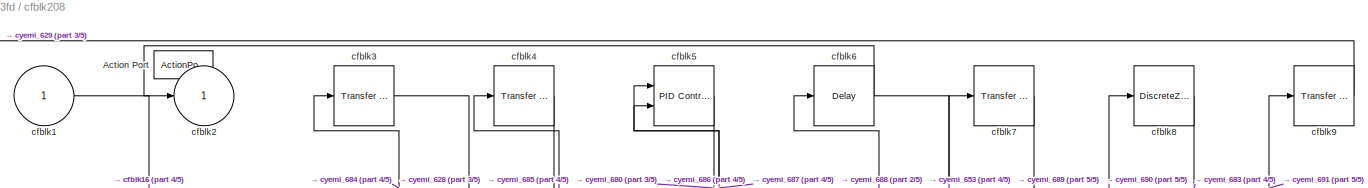
[diagram: cfblk208 - part 1/5, full width, top band]
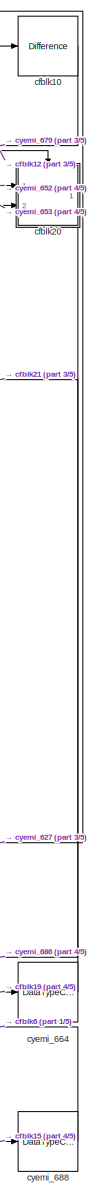
[diagram: cfblk208 - part 2/5, right side, full height]
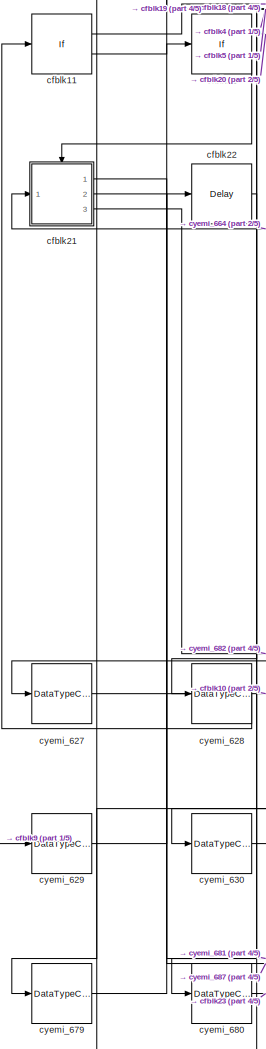
[diagram: cfblk208 - part 3/5, left side, full height]
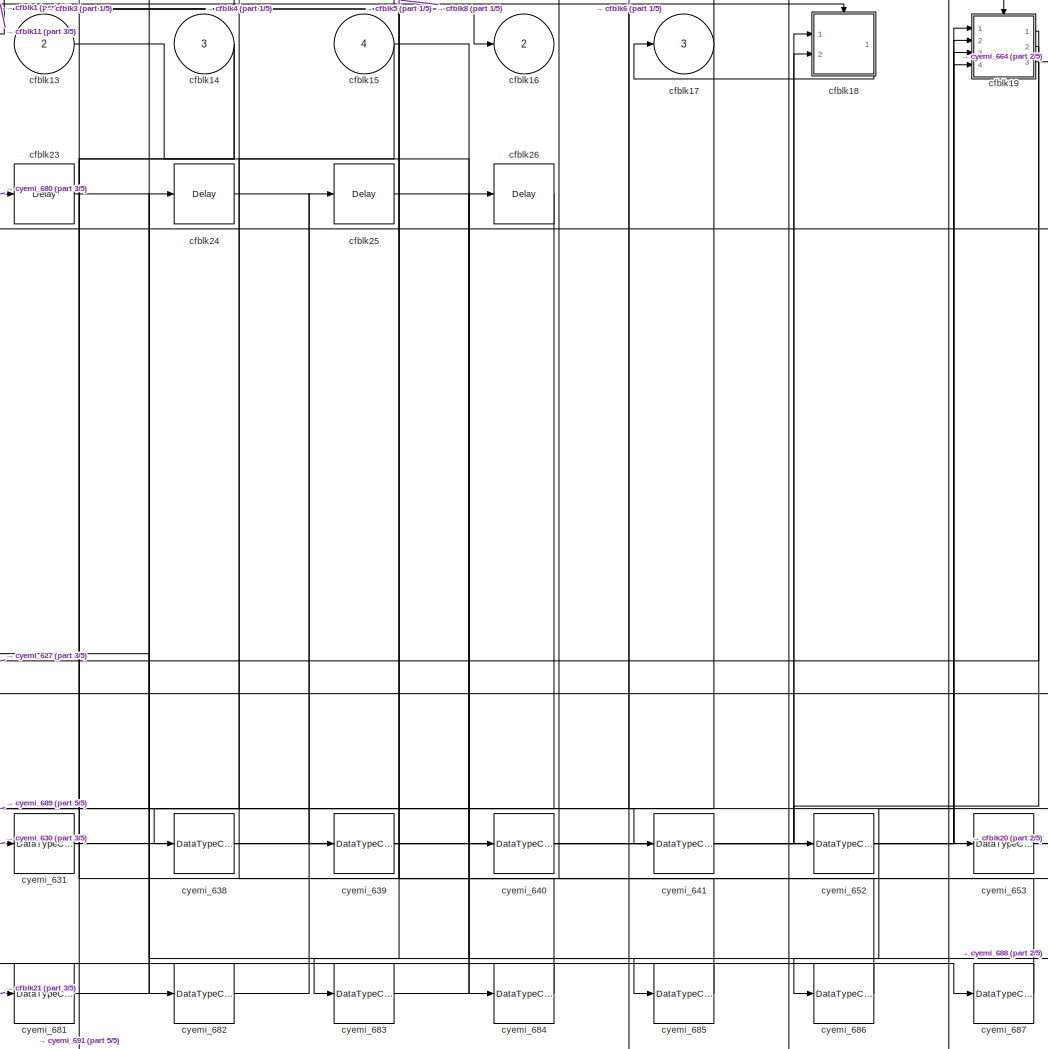
[diagram: cfblk208 - part 4/5, center side, full height]
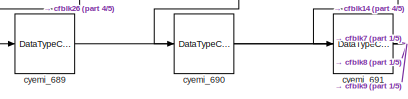
[diagram: cfblk208 - part 5/5, bottom left region]
BLOCK [SubSystem] cfblk208
  Ports = [4, 3, 0, 0, 0, 0, 0, 1]
  RequestExecContextInheritance = off
  TreatAsAtomicUnit = on
BLOCK [ActionPort] cfblk208/Action Port
  ActionType = else
BLOCK [Inport] cfblk208/cfblk1
  IconDisplay = Port number
BLOCK [Reference] cfblk208/cfblk10  REF=simulink/Discrete/Difference
  Ports = [1, 1]
  SourceBlock = simulink/Discrete/Difference
  SourceProductBaseCode = SL
  SourceProductName = Simulink
  SourceType = Difference
BLOCK [If] cfblk208/cfblk11
  Ports = [1, 2]
  SampleTime = 1
BLOCK [If] cfblk208/cfblk12
  Ports = [1, 2]
  SampleTime = 1
BLOCK [Inport] cfblk208/cfblk13
  IconDisplay = Port number
  Port = 2
BLOCK [Inport] cfblk208/cfblk14
  IconDisplay = Port number
  Port = 3
BLOCK [Inport] cfblk208/cfblk15
  IconDisplay = Port number
  Port = 4
BLOCK [Outport] cfblk208/cfblk16
  IconDisplay = Port number
  Port = 2
BLOCK [Outport] cfblk208/cfblk17
  IconDisplay = Port number
  Port = 3
BLOCK [SubSystem] cfblk208/cfblk18
  Ports = [2, 1, 0, 0, 0, 0, 0, 1]
  RequestExecContextInheritance = off
  TreatAsAtomicUnit = on
BLOCK [ActionPort] cfblk208/cfblk18/Action Port
  ActionType = then
BLOCK [Inport] cfblk208/cfblk18/cfblk1
  IconDisplay = Port number
BLOCK [Outport] cfblk208/cfblk18/cfblk2
  IconDisplay = Port number
BLOCK [DiscreteZeroPole] cfblk208/cfblk18/cfblk3
  Gain = 1
  Poles = [0 0.5]
  SampleTime = -1
BLOCK [UnitDelay] cfblk208/cfblk18/cfblk4
  InputProcessing = Elements as channels (sample based)
  SampleTime = -1
BLOCK [UnitDelay] cfblk208/cfblk18/cfblk5
  InputProcessing = Elements as channels (sample based)
  SampleTime = -1
BLOCK [DiscreteTransferFcn] cfblk208/cfblk18/cfblk6
  InputPortMap = u0
  Ports = [1, 1]
BLOCK [Reference] cfblk208/cfblk18/cfblk7  REF=simulink/Discrete/Tapped Delay
  Ports = [1, 1]
  SourceBlock = simulink/Discrete/Tapped Delay
  SourceProductBaseCode = SL
  SourceProductName = Simulink
  SourceType = Tapped Delay Line
BLOCK [Reference] cfblk208/cfblk18/cfblk8  REF=simulink/Discrete/Transfer Fcn
Lead or Lag
  Ports = [1, 1]
  SourceBlock = simulink/Discrete/Transfer Fcn\nLead or Lag
  SourceProductBaseCode = SL
  SourceProductName = Simulink
  SourceType = Lead or Lag Compensator
BLOCK [Inport] cfblk208/cfblk18/cfblk9
  IconDisplay = Port number
  Port = 2
BLOCK [DataTypeConversion] cfblk208/cfblk18/cyemi_632
  OutDataTypeStr = double
  RndMeth = Floor
  SaturateOnIntegerOverflow = off
BLOCK [DataTypeConversion] cfblk208/cfblk18/cyemi_633
  OutDataTypeStr = double
  RndMeth = Floor
  SaturateOnIntegerOverflow = off
BLOCK [DataTypeConversion] cfblk208/cfblk18/cyemi_634
  OutDataTypeStr = double
  RndMeth = Floor
  SaturateOnIntegerOverflow = off
BLOCK [DataTypeConversion] cfblk208/cfblk18/cyemi_635
  OutDataTypeStr = double
  RndMeth = Floor
  SaturateOnIntegerOverflow = off
BLOCK [DataTypeConversion] cfblk208/cfblk18/cyemi_636
  OutDataTypeStr = double
  RndMeth = Floor
  SaturateOnIntegerOverflow = off
BLOCK [DataTypeConversion] cfblk208/cfblk18/cyemi_637
  OutDataTypeStr = double
  RndMeth = Floor
  SaturateOnIntegerOverflow = off
BLOCK [SubSystem] cfblk208/cfblk19
  Ports = [4, 3, 0, 0, 0, 0, 0, 1]
  RequestExecContextInheritance = off
  TreatAsAtomicUnit = on
BLOCK [ActionPort] cfblk208/cfblk19/Action Port
  ActionType = else
BLOCK [Inport] cfblk208/cfblk19/cfblk1
  IconDisplay = Port number
BLOCK [Inport] cfblk208/cfblk19/cfblk10
  IconDisplay = Port number
  Port = 2
BLOCK [Inport] cfblk208/cfblk19/cfblk11
  IconDisplay = Port number
  Port = 3
BLOCK [Inport] cfblk208/cfblk19/cfblk12
  IconDisplay = Port number
  Port = 4
BLOCK [Outport] cfblk208/cfblk19/cfblk13
  IconDisplay = Port number
  Port = 2
BLOCK [Outport] cfblk208/cfblk19/cfblk14
  IconDisplay = Port number
  Port = 3
BLOCK [Delay] cfblk208/cfblk19/cfblk15
  InputPortMap = u0
  Ports = [1, 1]
BLOCK [Outport] cfblk208/cfblk19/cfblk2
  IconDisplay = Port number
BLOCK [Reference] cfblk208/cfblk19/cfblk3  REF=simulink/Discrete/Difference
  Ports = [1, 1]
  SourceBlock = simulink/Discrete/Difference
  SourceProductBaseCode = SL
  SourceProductName = Simulink
  SourceType = Difference
BLOCK [DiscreteTransferFcn] cfblk208/cfblk19/cfblk4
  InputPortMap = u0
  Ports = [1, 1]
BLOCK [UnitDelay] cfblk208/cfblk19/cfblk5
  InputProcessing = Elements as channels (sample based)
  SampleTime = -1
BLOCK [Reference] cfblk208/cfblk19/cfblk6  REF=simulink/Continuous/PID Controller (2DOF)
  Ports = [2, 1]
  SourceBlock = simulink/Continuous/PID Controller (2DOF)
  SourceProductBaseCode = SL
  SourceProductName = Simulink
  SourceType = PID 2dof
BLOCK [Reference] cfblk208/cfblk19/cfblk7  REF=simulink/Discrete/Tapped Delay
  Ports = [1, 1]
  SourceBlock = simulink/Discrete/Tapped Delay
  SourceProductBaseCode = SL
  SourceProductName = Simulink
  SourceType = Tapped Delay Line
BLOCK [Reference] cfblk208/cfblk19/cfblk8  REF=simulink/Discrete/Transfer Fcn
Real Zero
  Ports = [1, 1]
  SourceBlock = simulink/Discrete/Transfer Fcn\nReal Zero
  SourceProductBaseCode = SL
  SourceProductName = Simulink
  SourceType = Transfer Fcn Real Zero
BLOCK [Reference] cfblk208/cfblk19/cfblk9  REF=simulink/Continuous/PID Controller (2DOF)
  Ports = [2, 1]
  SourceBlock = simulink/Continuous/PID Controller (2DOF)
  SourceProductBaseCode = SL
  SourceProductName = Simulink
  SourceType = PID 2dof
BLOCK [DataTypeConversion] cfblk208/cfblk19/cyemi_642
  OutDataTypeStr = double
  RndMeth = Floor
  SaturateOnIntegerOverflow = off
BLOCK [DataTypeConversion] cfblk208/cfblk19/cyemi_643
  OutDataTypeStr = double
  RndMeth = Floor
  SaturateOnIntegerOverflow = off
BLOCK [DataTypeConversion] cfblk208/cfblk19/cyemi_644
  OutDataTypeStr = double
  RndMeth = Floor
  SaturateOnIntegerOverflow = off
BLOCK [DataTypeConversion] cfblk208/cfblk19/cyemi_645
  OutDataTypeStr = double
  RndMeth = Floor
  SaturateOnIntegerOverflow = off
BLOCK [DataTypeConversion] cfblk208/cfblk19/cyemi_646
  OutDataTypeStr = double
  RndMeth = Floor
  SaturateOnIntegerOverflow = off
BLOCK [DataTypeConversion] cfblk208/cfblk19/cyemi_647
  OutDataTypeStr = double
  RndMeth = Floor
  SaturateOnIntegerOverflow = off
BLOCK [DataTypeConversion] cfblk208/cfblk19/cyemi_648
  OutDataTypeStr = double
  RndMeth = Floor
  SaturateOnIntegerOverflow = off
BLOCK [DataTypeConversion] cfblk208/cfblk19/cyemi_649
  OutDataTypeStr = double
  RndMeth = Floor
  SaturateOnIntegerOverflow = off
BLOCK [DataTypeConversion] cfblk208/cfblk19/cyemi_650
  OutDataTypeStr = double
  RndMeth = Floor
  SaturateOnIntegerOverflow = off
BLOCK [DataTypeConversion] cfblk208/cfblk19/cyemi_651
  OutDataTypeStr = double
  RndMeth = Floor
  SaturateOnIntegerOverflow = off
BLOCK [Outport] cfblk208/cfblk2
  IconDisplay = Port number
BLOCK [SubSystem] cfblk208/cfblk20
  Ports = [2, 1, 0, 0, 0, 0, 0, 1]
  RequestExecContextInheritance = off
  TreatAsAtomicUnit = on
BLOCK [ActionPort] cfblk208/cfblk20/Action Port
  ActionType = then
BLOCK [Inport] cfblk208/cfblk20/cfblk1
  IconDisplay = Port number
BLOCK [DiscreteTransferFcn] cfblk208/cfblk20/cfblk10
  InputPortMap = u0
  Ports = [1, 1]
BLOCK [Reference] cfblk208/cfblk20/cfblk11  REF=simulink/Discrete/Tapped Delay
  Ports = [1, 1]
  SourceBlock = simulink/Discrete/Tapped Delay
  SourceProductBaseCode = SL
  SourceProductName = Simulink
  SourceType = Tapped Delay Line
BLOCK [Inport] cfblk208/cfblk20/cfblk12
  IconDisplay = Port number
  Port = 2
BLOCK [Delay] cfblk208/cfblk20/cfblk13
  InputPortMap = u0
  Ports = [1, 1]
BLOCK [Outport] cfblk208/cfblk20/cfblk2
  IconDisplay = Port number
BLOCK [Reference] cfblk208/cfblk20/cfblk3  REF=simulink/Discrete/Transfer Fcn
Real Zero
  Ports = [1, 1]
  SourceBlock = simulink/Discrete/Transfer Fcn\nReal Zero
  SourceProductBaseCode = SL
  SourceProductName = Simulink
  SourceType = Transfer Fcn Real Zero
BLOCK [DiscreteZeroPole] cfblk208/cfblk20/cfblk4
  Gain = 1
  Poles = [0 0.5]
  SampleTime = -1
BLOCK [DiscreteZeroPole] cfblk208/cfblk20/cfblk5
  Gain = 1
  Poles = [0 0.5]
  SampleTime = -1
BLOCK [DiscreteFir] cfblk208/cfblk20/cfblk6
  InputPortMap = u0
  OutputPortMap = o0
  Ports = [1, 1]
BLOCK [Reference] cfblk208/cfblk20/cfblk7  REF=simulink/Discrete/Tapped Delay
  Ports = [1, 1]
  SourceBlock = simulink/Discrete/Tapped Delay
  SourceProductBaseCode = SL
  SourceProductName = Simulink
  SourceType = Tapped Delay Line
BLOCK [Reference] cfblk208/cfblk20/cfblk8  REF=simulink/Discrete/Transfer Fcn
Real Zero
  Ports = [1, 1]
  SourceBlock = simulink/Discrete/Transfer Fcn\nReal Zero
  SourceProductBaseCode = SL
  SourceProductName = Simulink
  SourceType = Transfer Fcn Real Zero
BLOCK [Reference] cfblk208/cfblk20/cfblk9  REF=simulink/Discrete/Transfer Fcn
First Order
  Ports = [1, 1]
  SourceBlock = simulink/Discrete/Transfer Fcn\nFirst Order
  SourceProductBaseCode = SL
  SourceProductName = Simulink
  SourceType = First Order Transfer Fcn
BLOCK [DataTypeConversion] cfblk208/cfblk20/cyemi_654
  OutDataTypeStr = double
  RndMeth = Floor
  SaturateOnIntegerOverflow = off
BLOCK [DataTypeConversion] cfblk208/cfblk20/cyemi_655
  OutDataTypeStr = double
  RndMeth = Floor
  SaturateOnIntegerOverflow = off
BLOCK [DataTypeConversion] cfblk208/cfblk20/cyemi_656
  OutDataTypeStr = double
  RndMeth = Floor
  SaturateOnIntegerOverflow = off
BLOCK [DataTypeConversion] cfblk208/cfblk20/cyemi_657
  OutDataTypeStr = double
  RndMeth = Floor
  SaturateOnIntegerOverflow = off
BLOCK [DataTypeConversion] cfblk208/cfblk20/cyemi_658
  OutDataTypeStr = double
  RndMeth = Floor
  SaturateOnIntegerOverflow = off
BLOCK [DataTypeConversion] cfblk208/cfblk20/cyemi_659
  OutDataTypeStr = double
  RndMeth = Floor
  SaturateOnIntegerOverflow = off
BLOCK [DataTypeConversion] cfblk208/cfblk20/cyemi_660
  OutDataTypeStr = double
  RndMeth = Floor
  SaturateOnIntegerOverflow = off
BLOCK [DataTypeConversion] cfblk208/cfblk20/cyemi_661
  OutDataTypeStr = double
  RndMeth = Floor
  SaturateOnIntegerOverflow = off
BLOCK [DataTypeConversion] cfblk208/cfblk20/cyemi_662
  OutDataTypeStr = double
  RndMeth = Floor
  SaturateOnIntegerOverflow = off
BLOCK [DataTypeConversion] cfblk208/cfblk20/cyemi_663
  OutDataTypeStr = double
  RndMeth = Floor
  SaturateOnIntegerOverflow = off
BLOCK [SubSystem] cfblk208/cfblk21
  Ports = [1, 3, 0, 0, 0, 0, 0, 1]
  RequestExecContextInheritance = off
  TreatAsAtomicUnit = on
BLOCK [ActionPort] cfblk208/cfblk21/Action Port
  ActionType = else
BLOCK [Inport] cfblk208/cfblk21/cfblk1
  IconDisplay = Port number
BLOCK [Reference] cfblk208/cfblk21/cfblk10  REF=simulink/Discrete/Transfer Fcn
Lead or Lag
  Ports = [1, 1]
  SourceBlock = simulink/Discrete/Transfer Fcn\nLead or Lag
  SourceProductBaseCode = SL
  SourceProductName = Simulink
  SourceType = Lead or Lag Compensator
BLOCK [DiscreteFilter] cfblk208/cfblk21/cfblk11
  InputPortMap = u0
  Ports = [1, 1]
BLOCK [Delay] cfblk208/cfblk21/cfblk12
  InputPortMap = u0,e6
  Ports = [2, 1]
  ShowEnablePort = on
BLOCK [Reference] cfblk208/cfblk21/cfblk13  REF=simulink/Discrete/Transfer Fcn
Real Zero
  Ports = [1, 1]
  SourceBlock = simulink/Discrete/Transfer Fcn\nReal Zero
  SourceProductBaseCode = SL
  SourceProductName = Simulink
  SourceType = Transfer Fcn Real Zero
BLOCK [Outport] cfblk208/cfblk21/cfblk14
  IconDisplay = Port number
  Port = 2
BLOCK [Outport] cfblk208/cfblk21/cfblk15
  IconDisplay = Port number
  Port = 3
BLOCK [Delay] cfblk208/cfblk21/cfblk16
  InputPortMap = u0
  Ports = [1, 1]
BLOCK [Delay] cfblk208/cfblk21/cfblk17
  InputPortMap = u0
  Ports = [1, 1]
BLOCK [Outport] cfblk208/cfblk21/cfblk2
  IconDisplay = Port number
BLOCK [DiscreteFir] cfblk208/cfblk21/cfblk3
  InputPortMap = u0
  OutputPortMap = o0
  Ports = [1, 1]
BLOCK [DiscreteFilter] cfblk208/cfblk21/cfblk4
  InputPortMap = u0
  Ports = [1, 1]
BLOCK [DiscreteFilter] cfblk208/cfblk21/cfblk5
  InputPortMap = u0
  Ports = [1, 1]
BLOCK [Reference] cfblk208/cfblk21/cfblk6  REF=simulink/Discrete/Tapped Delay
  Ports = [1, 1]
  SourceBlock = simulink/Discrete/Tapped Delay
  SourceProductBaseCode = SL
  SourceProductName = Simulink
  SourceType = Tapped Delay Line
BLOCK [Reference] cfblk208/cfblk21/cfblk7  REF=simulink/Discrete/Transfer Fcn
Lead or Lag
  Ports = [1, 1]
  SourceBlock = simulink/Discrete/Transfer Fcn\nLead or Lag
  SourceProductBaseCode = SL
  SourceProductName = Simulink
  SourceType = Lead or Lag Compensator
BLOCK [DiscreteFir] cfblk208/cfblk21/cfblk8
  InputPortMap = u0
  OutputPortMap = o0
  Ports = [1, 1]
BLOCK [DiscreteIntegrator] cfblk208/cfblk21/cfblk9
  ICPrevOutput = DiscIntNeverNeededParam
  ICPrevScaledInput = DiscIntNeverNeededParam
  InitialConditionSetting = Auto
  OutDataTypeStr = double
  Ports = [1, 1]
  SampleTime = -1
BLOCK [DataTypeConversion] cfblk208/cfblk21/cyemi_665
  OutDataTypeStr = double
  RndMeth = Floor
  SaturateOnIntegerOverflow = off
BLOCK [DataTypeConversion] cfblk208/cfblk21/cyemi_666
  OutDataTypeStr = double
  RndMeth = Floor
  SaturateOnIntegerOverflow = off
BLOCK [DataTypeConversion] cfblk208/cfblk21/cyemi_667
  OutDataTypeStr = double
  RndMeth = Floor
  SaturateOnIntegerOverflow = off
BLOCK [DataTypeConversion] cfblk208/cfblk21/cyemi_668
  OutDataTypeStr = double
  RndMeth = Floor
  SaturateOnIntegerOverflow = off
BLOCK [DataTypeConversion] cfblk208/cfblk21/cyemi_669
  OutDataTypeStr = double
  RndMeth = Floor
  SaturateOnIntegerOverflow = off
BLOCK [DataTypeConversion] cfblk208/cfblk21/cyemi_670
  OutDataTypeStr = double
  RndMeth = Floor
  SaturateOnIntegerOverflow = off
BLOCK [DataTypeConversion] cfblk208/cfblk21/cyemi_671
  OutDataTypeStr = double
  RndMeth = Floor
  SaturateOnIntegerOverflow = off
BLOCK [DataTypeConversion] cfblk208/cfblk21/cyemi_672
  OutDataTypeStr = double
  RndMeth = Floor
  SaturateOnIntegerOverflow = off
BLOCK [DataTypeConversion] cfblk208/cfblk21/cyemi_673
  OutDataTypeStr = double
  RndMeth = Floor
  SaturateOnIntegerOverflow = off
BLOCK [DataTypeConversion] cfblk208/cfblk21/cyemi_674
  OutDataTypeStr = double
  RndMeth = Floor
  SaturateOnIntegerOverflow = off
BLOCK [DataTypeConversion] cfblk208/cfblk21/cyemi_675
  OutDataTypeStr = double
  RndMeth = Floor
  SaturateOnIntegerOverflow = off
BLOCK [DataTypeConversion] cfblk208/cfblk21/cyemi_676
  OutDataTypeStr = double
  RndMeth = Floor
  SaturateOnIntegerOverflow = off
BLOCK [DataTypeConversion] cfblk208/cfblk21/cyemi_677
  OutDataTypeStr = double
  RndMeth = Floor
  SaturateOnIntegerOverflow = off
BLOCK [DataTypeConversion] cfblk208/cfblk21/cyemi_678
  OutDataTypeStr = double
  RndMeth = Floor
  SaturateOnIntegerOverflow = off
BLOCK [Delay] cfblk208/cfblk22
  InputPortMap = u0
  Ports = [1, 1]
BLOCK [Delay] cfblk208/cfblk23
  InputPortMap = u0
  Ports = [1, 1]
BLOCK [Delay] cfblk208/cfblk24
  InputPortMap = u0
  Ports = [1, 1]
BLOCK [Delay] cfblk208/cfblk25
  InputPortMap = u0
  Ports = [1, 1]
BLOCK [Delay] cfblk208/cfblk26
  InputPortMap = u0
  Ports = [1, 1]
BLOCK [Reference] cfblk208/cfblk3  REF=simulink/Discrete/Transfer Fcn
Lead or Lag
  Ports = [1, 1]
  SourceBlock = simulink/Discrete/Transfer Fcn\nLead or Lag
  SourceProductBaseCode = SL
  SourceProductName = Simulink
  SourceType = Lead or Lag Compensator
BLOCK [Reference] cfblk208/cfblk4  REF=simulink/Discrete/Transfer Fcn
First Order
  Ports = [1, 1]
  SourceBlock = simulink/Discrete/Transfer Fcn\nFirst Order
  SourceProductBaseCode = SL
  SourceProductName = Simulink
  SourceType = First Order Transfer Fcn
BLOCK [Reference] cfblk208/cfblk5  REF=simulink/Continuous/PID Controller (2DOF)
  Ports = [2, 1]
  SourceBlock = simulink/Continuous/PID Controller (2DOF)
  SourceProductBaseCode = SL
  SourceProductName = Simulink
  SourceType = PID 2dof
BLOCK [Delay] cfblk208/cfblk6
  InputPortMap = u0
  Ports = [1, 1]
BLOCK [Reference] cfblk208/cfblk7  REF=simulink/Discrete/Transfer Fcn
First Order
  Ports = [1, 1]
  SourceBlock = simulink/Discrete/Transfer Fcn\nFirst Order
  SourceProductBaseCode = SL
  SourceProductName = Simulink
  SourceType = First Order Transfer Fcn
BLOCK [DiscreteZeroPole] cfblk208/cfblk8
  Gain = 1
  Poles = [0 0.5]
  SampleTime = -1
BLOCK [Reference] cfblk208/cfblk9  REF=simulink/Discrete/Transfer Fcn
First Order
  Ports = [1, 1]
  SourceBlock = simulink/Discrete/Transfer Fcn\nFirst Order
  SourceProductBaseCode = SL
  SourceProductName = Simulink
  SourceType = First Order Transfer Fcn
BLOCK [DataTypeConversion] cfblk208/cyemi_627
  OutDataTypeStr = double
  RndMeth = Floor
  SaturateOnIntegerOverflow = off
BLOCK [DataTypeConversion] cfblk208/cyemi_628
  OutDataTypeStr = double
  RndMeth = Floor
  SaturateOnIntegerOverflow = off
BLOCK [DataTypeConversion] cfblk208/cyemi_629
  OutDataTypeStr = double
  RndMeth = Floor
  SaturateOnIntegerOverflow = off
BLOCK [DataTypeConversion] cfblk208/cyemi_630
  OutDataTypeStr = double
  RndMeth = Floor
  SaturateOnIntegerOverflow = off
BLOCK [DataTypeConversion] cfblk208/cyemi_631
  OutDataTypeStr = double
  RndMeth = Floor
  SaturateOnIntegerOverflow = off
BLOCK [DataTypeConversion] cfblk208/cyemi_638
  OutDataTypeStr = double
  RndMeth = Floor
  SaturateOnIntegerOverflow = off
BLOCK [DataTypeConversion] cfblk208/cyemi_639
  OutDataTypeStr = double
  RndMeth = Floor
  SaturateOnIntegerOverflow = off
BLOCK [DataTypeConversion] cfblk208/cyemi_640
  OutDataTypeStr = double
  RndMeth = Floor
  SaturateOnIntegerOverflow = off
BLOCK [DataTypeConversion] cfblk208/cyemi_641
  OutDataTypeStr = double
  RndMeth = Floor
  SaturateOnIntegerOverflow = off
BLOCK [DataTypeConversion] cfblk208/cyemi_652
  OutDataTypeStr = double
  RndMeth = Floor
  SaturateOnIntegerOverflow = off
BLOCK [DataTypeConversion] cfblk208/cyemi_653
  OutDataTypeStr = double
  RndMeth = Floor
  SaturateOnIntegerOverflow = off
BLOCK [DataTypeConversion] cfblk208/cyemi_664
  OutDataTypeStr = double
  RndMeth = Floor
  SaturateOnIntegerOverflow = off
BLOCK [DataTypeConversion] cfblk208/cyemi_679
  OutDataTypeStr = double
  RndMeth = Floor
  SaturateOnIntegerOverflow = off
BLOCK [DataTypeConversion] cfblk208/cyemi_680
  OutDataTypeStr = double
  RndMeth = Floor
  SaturateOnIntegerOverflow = off
BLOCK [DataTypeConversion] cfblk208/cyemi_681
  OutDataTypeStr = double
  RndMeth = Floor
  SaturateOnIntegerOverflow = off
BLOCK [DataTypeConversion] cfblk208/cyemi_682
  OutDataTypeStr = double
  RndMeth = Floor
  SaturateOnIntegerOverflow = off
BLOCK [DataTypeConversion] cfblk208/cyemi_683
  OutDataTypeStr = double
  RndMeth = Floor
  SaturateOnIntegerOverflow = off
BLOCK [DataTypeConversion] cfblk208/cyemi_684
  OutDataTypeStr = double
  RndMeth = Floor
  SaturateOnIntegerOverflow = off
BLOCK [DataTypeConversion] cfblk208/cyemi_685
  OutDataTypeStr = double
  RndMeth = Floor
  SaturateOnIntegerOverflow = off
BLOCK [DataTypeConversion] cfblk208/cyemi_686
  OutDataTypeStr = double
  RndMeth = Floor
  SaturateOnIntegerOverflow = off
BLOCK [DataTypeConversion] cfblk208/cyemi_687
  OutDataTypeStr = double
  RndMeth = Floor
  SaturateOnIntegerOverflow = off
BLOCK [DataTypeConversion] cfblk208/cyemi_688
  OutDataTypeStr = double
  RndMeth = Floor
  SaturateOnIntegerOverflow = off
BLOCK [DataTypeConversion] cfblk208/cyemi_689
  OutDataTypeStr = double
  RndMeth = Floor
  SaturateOnIntegerOverflow = off
BLOCK [DataTypeConversion] cfblk208/cyemi_690
  OutDataTypeStr = double
  RndMeth = Floor
  SaturateOnIntegerOverflow = off
BLOCK [DataTypeConversion] cfblk208/cyemi_691
  OutDataTypeStr = double
  RndMeth = Floor
  SaturateOnIntegerOverflow = off
BLOCK [SubSystem] cfblk209
  Ports = [3, 2, 0, 0, 0, 0, 0, 1]
  RequestExecContextInheritance = off
  TreatAsAtomicUnit = on
BLOCK [ActionPort] cfblk209/Action Port
  ActionType = then
BLOCK [Inport] cfblk209/cfblk1
  IconDisplay = Port number
BLOCK [Reference] cfblk209/cfblk10  REF=simulink/Discrete/Transfer Fcn
First Order
  Ports = [1, 1]
  SourceBlock = simulink/Discrete/Transfer Fcn\nFirst Order
  SourceProductBaseCode = SL
  SourceProductName = Simulink
  SourceType = First Order Transfer Fcn
BLOCK [Reference] cfblk209/cfblk11  REF=simulink/Discrete/Transfer Fcn
Lead or Lag
  Ports = [1, 1]
  SourceBlock = simulink/Discrete/Transfer Fcn\nLead or Lag
  SourceProductBaseCode = SL
  SourceProductName = Simulink
  SourceType = Lead or Lag Compensator
BLOCK [Inport] cfblk209/cfblk12
  IconDisplay = Port number
  Port = 2
BLOCK [Inport] cfblk209/cfblk13
  IconDisplay = Port number
  Port = 3
BLOCK [Outport] cfblk209/cfblk14
  IconDisplay = Port number
  Port = 2
BLOCK [Outport] cfblk209/cfblk2
  IconDisplay = Port number
BLOCK [DiscreteZeroPole] cfblk209/cfblk3
  Gain = 1
  Poles = [0 0.5]
  SampleTime = -1
BLOCK [Reference] cfblk209/cfblk4  REF=simulink/Discrete/Transfer Fcn
Lead or Lag
  Ports = [1, 1]
  SourceBlock = simulink/Discrete/Transfer Fcn\nLead or Lag
  SourceProductBaseCode = SL
  SourceProductName = Simulink
  SourceType = Lead or Lag Compensator
BLOCK [Reference] cfblk209/cfblk5  REF=simulink/Continuous/PID Controller
  Ports = [1, 1]
  SourceBlock = simulink/Continuous/PID Controller
  SourceProductBaseCode = SL
  SourceProductName = Simulink
  SourceType = PID 1dof
BLOCK [Reference] cfblk209/cfblk6  REF=simulink/Discrete/Difference
  Ports = [1, 1]
  SourceBlock = simulink/Discrete/Difference
  SourceProductBaseCode = SL
  SourceProductName = Simulink
  SourceType = Difference
BLOCK [DiscreteTransferFcn] cfblk209/cfblk7
  InputPortMap = u0
  Ports = [1, 1]
BLOCK [Delay] cfblk209/cfblk8
  InputPortMap = u0
  Ports = [1, 1]
BLOCK [Delay] cfblk209/cfblk9
  InputPortMap = u0,e6
  Ports = [2, 1]
  ShowEnablePort = on
BLOCK [DataTypeConversion] cfblk209/cyemi_695
  OutDataTypeStr = double
  RndMeth = Floor
  SaturateOnIntegerOverflow = off
BLOCK [DataTypeConversion] cfblk209/cyemi_696
  OutDataTypeStr = double
  RndMeth = Floor
  SaturateOnIntegerOverflow = off
BLOCK [DataTypeConversion] cfblk209/cyemi_697
  OutDataTypeStr = double
  RndMeth = Floor
  SaturateOnIntegerOverflow = off
BLOCK [DataTypeConversion] cfblk209/cyemi_698
  OutDataTypeStr = double
  RndMeth = Floor
  SaturateOnIntegerOverflow = off
BLOCK [DataTypeConversion] cfblk209/cyemi_699
  OutDataTypeStr = double
  RndMeth = Floor
  SaturateOnIntegerOverflow = off
BLOCK [DataTypeConversion] cfblk209/cyemi_700
  OutDataTypeStr = double
  RndMeth = Floor
  SaturateOnIntegerOverflow = off
BLOCK [DataTypeConversion] cfblk209/cyemi_701
  OutDataTypeStr = double
  RndMeth = Floor
  SaturateOnIntegerOverflow = off
BLOCK [DataTypeConversion] cfblk209/cyemi_702
  OutDataTypeStr = double
  RndMeth = Floor
  SaturateOnIntegerOverflow = off
BLOCK [DataTypeConversion] cfblk209/cyemi_703
  OutDataTypeStr = double
  RndMeth = Floor
  SaturateOnIntegerOverflow = off
BLOCK [DataTypeConversion] cfblk209/cyemi_704
  OutDataTypeStr = uint16
  RndMeth = Floor
  SaturateOnIntegerOverflow = off
BLOCK [Delay] cfblk21
  InputPortMap = u0,e6
  Ports = [2, 1]
  SampleTime = 1
  ShowEnablePort = on
BLOCK [SubSystem] cfblk210
  Ports = [4, 1, 0, 0, 0, 0, 0, 1]
  RequestExecContextInheritance = off
  TreatAsAtomicUnit = on
BLOCK [ActionPort] cfblk210/Action Port
  ActionType = else
BLOCK [Inport] cfblk210/cfblk1
  IconDisplay = Port number
BLOCK [DiscreteZeroPole] cfblk210/cfblk10
  Gain = 1
  Poles = [0 0.5]
  SampleTime = -1
BLOCK [Reference] cfblk210/cfblk11  REF=simulink/Discrete/Transfer Fcn
First Order
  Ports = [1, 1]
  SourceBlock = simulink/Discrete/Transfer Fcn\nFirst Order
  SourceProductBaseCode = SL
  SourceProductName = Simulink
  SourceType = First Order Transfer Fcn
BLOCK [DiscreteFir] cfblk210/cfblk12
  InputPortMap = u0
  OutputPortMap = o0
  Ports = [1, 1]
BLOCK [Delay] cfblk210/cfblk13
  InputPortMap = u0,e6
  Ports = [2, 1]
  ShowEnablePort = on
BLOCK [DiscreteStateSpace] cfblk210/cfblk14
  SampleTime = -1
BLOCK [Inport] cfblk210/cfblk15
  IconDisplay = Port number
  Port = 2
BLOCK [Inport] cfblk210/cfblk16
  IconDisplay = Port number
  Port = 3
BLOCK [Inport] cfblk210/cfblk17
  IconDisplay = Port number
  Port = 4
BLOCK [Delay] cfblk210/cfblk18
  InputPortMap = u0
  Ports = [1, 1]
BLOCK [Delay] cfblk210/cfblk19
  InputPortMap = u0
  Ports = [1, 1]
BLOCK [Outport] cfblk210/cfblk2
  IconDisplay = Port number
BLOCK [Reference] cfblk210/cfblk3  REF=simulink/Continuous/PID Controller (2DOF)
  Ports = [2, 1]
  SourceBlock = simulink/Continuous/PID Controller (2DOF)
  SourceProductBaseCode = SL
  SourceProductName = Simulink
  SourceType = PID 2dof
BLOCK [DiscreteIntegrator] cfblk210/cfblk4
  ICPrevOutput = DiscIntNeverNeededParam
  ICPrevScaledInput = DiscIntNeverNeededParam
  InitialConditionSetting = Auto
  OutDataTypeStr = double
  Ports = [1, 1]
  SampleTime = -1
BLOCK [DiscreteFir] cfblk210/cfblk5
  InputPortMap = u0
  OutputPortMap = o0
  Ports = [1, 1]
BLOCK [Reference] cfblk210/cfblk6  REF=simulink/Discrete/Transfer Fcn
First Order
  Ports = [1, 1]
  SourceBlock = simulink/Discrete/Transfer Fcn\nFirst Order
  SourceProductBaseCode = SL
  SourceProductName = Simulink
  SourceType = First Order Transfer Fcn
BLOCK [Delay] cfblk210/cfblk7
  InputPortMap = u0,e6
  Ports = [2, 1]
  ShowEnablePort = on
BLOCK [Reference] cfblk210/cfblk8  REF=simulink/Discrete/Transfer Fcn
First Order
  Ports = [1, 1]
  SourceBlock = simulink/Discrete/Transfer Fcn\nFirst Order
  SourceProductBaseCode = SL
  SourceProductName = Simulink
  SourceType = First Order Transfer Fcn
BLOCK [Reference] cfblk210/cfblk9  REF=simulink/Discrete/Tapped Delay
  Ports = [1, 1]
  SourceBlock = simulink/Discrete/Tapped Delay
  SourceProductBaseCode = SL
  SourceProductName = Simulink
  SourceType = Tapped Delay Line
BLOCK [DataTypeConversion] cfblk210/cyemi_711
  OutDataTypeStr = double
  RndMeth = Floor
  SaturateOnIntegerOverflow = off
BLOCK [DataTypeConversion] cfblk210/cyemi_712
  OutDataTypeStr = double
  RndMeth = Floor
  SaturateOnIntegerOverflow = off
BLOCK [DataTypeConversion] cfblk210/cyemi_713
  OutDataTypeStr = double
  RndMeth = Floor
  SaturateOnIntegerOverflow = off
BLOCK [DataTypeConversion] cfblk210/cyemi_714
  OutDataTypeStr = double
  RndMeth = Floor
  SaturateOnIntegerOverflow = off
BLOCK [DataTypeConversion] cfblk210/cyemi_715
  OutDataTypeStr = double
  RndMeth = Floor
  SaturateOnIntegerOverflow = off
BLOCK [DataTypeConversion] cfblk210/cyemi_716
  OutDataTypeStr = double
  RndMeth = Floor
  SaturateOnIntegerOverflow = off
BLOCK [DataTypeConversion] cfblk210/cyemi_717
  OutDataTypeStr = double
  RndMeth = Floor
  SaturateOnIntegerOverflow = off
BLOCK [DataTypeConversion] cfblk210/cyemi_718
  OutDataTypeStr = double
  RndMeth = Floor
  SaturateOnIntegerOverflow = off
BLOCK [DataTypeConversion] cfblk210/cyemi_719
  OutDataTypeStr = double
  RndMeth = Floor
  SaturateOnIntegerOverflow = off
BLOCK [DataTypeConversion] cfblk210/cyemi_720
  OutDataTypeStr = double
  RndMeth = Floor
  SaturateOnIntegerOverflow = off
BLOCK [DataTypeConversion] cfblk210/cyemi_721
  OutDataTypeStr = double
  RndMeth = Floor
  SaturateOnIntegerOverflow = off
BLOCK [DataTypeConversion] cfblk210/cyemi_722
  OutDataTypeStr = double
  RndMeth = Floor
  SaturateOnIntegerOverflow = off
BLOCK [DataTypeConversion] cfblk210/cyemi_723
  OutDataTypeStr = double
  RndMeth = Floor
  SaturateOnIntegerOverflow = off
BLOCK [DataTypeConversion] cfblk210/cyemi_724
  OutDataTypeStr = double
  RndMeth = Floor
  SaturateOnIntegerOverflow = off
BLOCK [DataTypeConversion] cfblk210/cyemi_725
  OutDataTypeStr = double
  RndMeth = Floor
  SaturateOnIntegerOverflow = off
BLOCK [DataTypeConversion] cfblk210/cyemi_726
  OutDataTypeStr = double
  RndMeth = Floor
  SaturateOnIntegerOverflow = off
BLOCK [DataTypeConversion] cfblk210/cyemi_727
  OutDataTypeStr = double
  RndMeth = Floor
  SaturateOnIntegerOverflow = off
BLOCK [SubSystem] cfblk211
  Ports = [1, 3, 0, 0, 0, 0, 0, 1]
  RequestExecContextInheritance = off
  TreatAsAtomicUnit = on
BLOCK [ActionPort] cfblk211/Action Port
  ActionType = then
BLOCK [Inport] cfblk211/cfblk1
  IconDisplay = Port number
BLOCK [Reference] cfblk211/cfblk10  REF=simulink/Discrete/Tapped Delay
  Ports = [1, 1]
  SourceBlock = simulink/Discrete/Tapped Delay
  SourceProductBaseCode = SL
  SourceProductName = Simulink
  SourceType = Tapped Delay Line
BLOCK [Reference] cfblk211/cfblk11  REF=simulink/Continuous/PID Controller (2DOF)
  Ports = [2, 1]
  SourceBlock = simulink/Continuous/PID Controller (2DOF)
  SourceProductBaseCode = SL
  SourceProductName = Simulink
  SourceType = PID 2dof
BLOCK [Reference] cfblk211/cfblk12  REF=simulink/Discrete/Transfer Fcn
First Order
  Ports = [1, 1]
  SourceBlock = simulink/Discrete/Transfer Fcn\nFirst Order
  SourceProductBaseCode = SL
  SourceProductName = Simulink
  SourceType = First Order Transfer Fcn
BLOCK [If] cfblk211/cfblk13
  Ports = [1, 2]
  SampleTime = 1
BLOCK [Outport] cfblk211/cfblk14
  IconDisplay = Port number
  Port = 2
BLOCK [Outport] cfblk211/cfblk15
  IconDisplay = Port number
  Port = 3
BLOCK [SubSystem] cfblk211/cfblk16
  Ports = [1, 2, 0, 0, 0, 0, 0, 1]
  RequestExecContextInheritance = off
  TreatAsAtomicUnit = on
BLOCK [ActionPort] cfblk211/cfblk16/Action Port
  ActionType = then
BLOCK [Inport] cfblk211/cfblk16/cfblk1
  IconDisplay = Port number
BLOCK [Delay] cfblk211/cfblk16/cfblk10
  DelayLengthSource = Input port
  InputPortMap = u0,p1
  Ports = [2, 1]
BLOCK [Outport] cfblk211/cfblk16/cfblk11
  IconDisplay = Port number
  Port = 2
BLOCK [Delay] cfblk211/cfblk16/cfblk12
  InputPortMap = u0
  Ports = [1, 1]
BLOCK [Outport] cfblk211/cfblk16/cfblk2
  IconDisplay = Port number
BLOCK [Reference] cfblk211/cfblk16/cfblk3  REF=simulink/Discrete/Transfer Fcn
First Order
  Ports = [1, 1]
  SourceBlock = simulink/Discrete/Transfer Fcn\nFirst Order
  SourceProductBaseCode = SL
  SourceProductName = Simulink
  SourceType = First Order Transfer Fcn
BLOCK [Reference] cfblk211/cfblk16/cfblk4  REF=simulink/Discrete/Transfer Fcn
Lead or Lag
  Ports = [1, 1]
  SourceBlock = simulink/Discrete/Transfer Fcn\nLead or Lag
  SourceProductBaseCode = SL
  SourceProductName = Simulink
  SourceType = Lead or Lag Compensator
BLOCK [Reference] cfblk211/cfblk16/cfblk5  REF=simulink/Discrete/Transfer Fcn
Lead or Lag
  Ports = [1, 1]
  SourceBlock = simulink/Discrete/Transfer Fcn\nLead or Lag
  SourceProductBaseCode = SL
  SourceProductName = Simulink
  SourceType = Lead or Lag Compensator
BLOCK [Reference] cfblk211/cfblk16/cfblk6  REF=simulink/Discrete/Transfer Fcn
Real Zero
  Ports = [1, 1]
  SourceBlock = simulink/Discrete/Transfer Fcn\nReal Zero
  SourceProductBaseCode = SL
  SourceProductName = Simulink
  SourceType = Transfer Fcn Real Zero
BLOCK [Reference] cfblk211/cfblk16/cfblk7  REF=simulink/Discrete/Transfer Fcn
Real Zero
  Ports = [1, 1]
  SourceBlock = simulink/Discrete/Transfer Fcn\nReal Zero
  SourceProductBaseCode = SL
  SourceProductName = Simulink
  SourceType = Transfer Fcn Real Zero
BLOCK [Reference] cfblk211/cfblk16/cfblk8  REF=simulink/Discrete/Tapped Delay
  Ports = [1, 1]
  SourceBlock = simulink/Discrete/Tapped Delay
  SourceProductBaseCode = SL
  SourceProductName = Simulink
  SourceType = Tapped Delay Line
BLOCK [Reference] cfblk211/cfblk16/cfblk9  REF=simulink/Discrete/Transfer Fcn
Lead or Lag
  Ports = [1, 1]
  SourceBlock = simulink/Discrete/Transfer Fcn\nLead or Lag
  SourceProductBaseCode = SL
  SourceProductName = Simulink
  SourceType = Lead or Lag Compensator
BLOCK [DataTypeConversion] cfblk211/cfblk16/cyemi_735
  OutDataTypeStr = double
  RndMeth = Floor
  SaturateOnIntegerOverflow = off
BLOCK [DataTypeConversion] cfblk211/cfblk16/cyemi_736
  OutDataTypeStr = uint32
  RndMeth = Floor
  SaturateOnIntegerOverflow = off
BLOCK [DataTypeConversion] cfblk211/cfblk16/cyemi_737
  OutDataTypeStr = double
  RndMeth = Floor
  SaturateOnIntegerOverflow = off
BLOCK [DataTypeConversion] cfblk211/cfblk16/cyemi_738
  OutDataTypeStr = uint32
  RndMeth = Floor
  SaturateOnIntegerOverflow = off
BLOCK [DataTypeConversion] cfblk211/cfblk16/cyemi_739
  OutDataTypeStr = double
  RndMeth = Floor
  SaturateOnIntegerOverflow = off
BLOCK [DataTypeConversion] cfblk211/cfblk16/cyemi_740
  OutDataTypeStr = double
  RndMeth = Floor
  SaturateOnIntegerOverflow = off
BLOCK [DataTypeConversion] cfblk211/cfblk16/cyemi_741
  OutDataTypeStr = double
  RndMeth = Floor
  SaturateOnIntegerOverflow = off
BLOCK [DataTypeConversion] cfblk211/cfblk16/cyemi_742
  OutDataTypeStr = uint32
  RndMeth = Floor
  SaturateOnIntegerOverflow = off
BLOCK [DataTypeConversion] cfblk211/cfblk16/cyemi_743
  OutDataTypeStr = double
  RndMeth = Floor
  SaturateOnIntegerOverflow = off
BLOCK [DataTypeConversion] cfblk211/cfblk16/cyemi_744
  OutDataTypeStr = double
  RndMeth = Floor
  SaturateOnIntegerOverflow = off
BLOCK [SubSystem] cfblk211/cfblk17
  Ports = [2, 2, 0, 0, 0, 0, 0, 1]
  RequestExecContextInheritance = off
  TreatAsAtomicUnit = on
BLOCK [ActionPort] cfblk211/cfblk17/Action Port
  ActionType = else
BLOCK [Inport] cfblk211/cfblk17/cfblk1
  IconDisplay = Port number
BLOCK [Outport] cfblk211/cfblk17/cfblk10
  IconDisplay = Port number
  Port = 2
BLOCK [Delay] cfblk211/cfblk17/cfblk11
  InputPortMap = u0
  Ports = [1, 1]
BLOCK [Outport] cfblk211/cfblk17/cfblk2
  IconDisplay = Port number
BLOCK [Reference] cfblk211/cfblk17/cfblk3  REF=simulink/Discrete/Transfer Fcn
First Order
  Ports = [1, 1]
  SourceBlock = simulink/Discrete/Transfer Fcn\nFirst Order
  SourceProductBaseCode = SL
  SourceProductName = Simulink
  SourceType = First Order Transfer Fcn
BLOCK [DiscreteZeroPole] cfblk211/cfblk17/cfblk4
  Gain = 1
  Poles = [0 0.5]
  SampleTime = -1
BLOCK [DiscreteIntegrator] cfblk211/cfblk17/cfblk5
  ICPrevOutput = DiscIntNeverNeededParam
  ICPrevScaledInput = DiscIntNeverNeededParam
  InitialConditionSetting = Auto
  OutDataTypeStr = double
  Ports = [1, 1]
  SampleTime = -1
BLOCK [DiscreteFilter] cfblk211/cfblk17/cfblk6
  InputPortMap = u0
  Ports = [1, 1]
BLOCK [DiscreteTransferFcn] cfblk211/cfblk17/cfblk7
  InputPortMap = u0
  Ports = [1, 1]
BLOCK [DiscreteStateSpace] cfblk211/cfblk17/cfblk8
  SampleTime = -1
BLOCK [Inport] cfblk211/cfblk17/cfblk9
  IconDisplay = Port number
  Port = 2
BLOCK [DataTypeConversion] cfblk211/cfblk17/cyemi_747
  OutDataTypeStr = double
  RndMeth = Floor
  SaturateOnIntegerOverflow = off
BLOCK [DataTypeConversion] cfblk211/cfblk17/cyemi_748
  OutDataTypeStr = double
  RndMeth = Floor
  SaturateOnIntegerOverflow = off
BLOCK [DataTypeConversion] cfblk211/cfblk17/cyemi_749
  OutDataTypeStr = double
  RndMeth = Floor
  SaturateOnIntegerOverflow = off
BLOCK [DataTypeConversion] cfblk211/cfblk17/cyemi_750
  OutDataTypeStr = double
  RndMeth = Floor
  SaturateOnIntegerOverflow = off
BLOCK [DataTypeConversion] cfblk211/cfblk17/cyemi_751
  OutDataTypeStr = double
  RndMeth = Floor
  SaturateOnIntegerOverflow = off
BLOCK [DataTypeConversion] cfblk211/cfblk17/cyemi_752
  OutDataTypeStr = double
  RndMeth = Floor
  SaturateOnIntegerOverflow = off
BLOCK [DataTypeConversion] cfblk211/cfblk17/cyemi_753
  OutDataTypeStr = double
  RndMeth = Floor
  SaturateOnIntegerOverflow = off
BLOCK [Delay] cfblk211/cfblk18
  InputPortMap = u0
  Ports = [1, 1]
BLOCK [Delay] cfblk211/cfblk19
  InputPortMap = u0
  Ports = [1, 1]
BLOCK [Outport] cfblk211/cfblk2
  IconDisplay = Port number
BLOCK [Delay] cfblk211/cfblk20
  InputPortMap = u0
  Ports = [1, 1]
BLOCK [Delay] cfblk211/cfblk21
  InputPortMap = u0
  Ports = [1, 1]
BLOCK [Reference] cfblk211/cfblk3  REF=simulink/Continuous/PID Controller
  Ports = [1, 1]
  SourceBlock = simulink/Continuous/PID Controller
  SourceProductBaseCode = SL
  SourceProductName = Simulink
  SourceType = PID 1dof
BLOCK [Delay] cfblk211/cfblk4
  DelayLengthSource = Input port
  InputPortMap = u0,p1
  Ports = [2, 1]
BLOCK [DiscreteTransferFcn] cfblk211/cfblk5
  InputPortMap = u0
  Ports = [1, 1]
BLOCK [DiscreteIntegrator] cfblk211/cfblk6
  ICPrevOutput = DiscIntNeverNeededParam
  ICPrevScaledInput = DiscIntNeverNeededParam
  InitialConditionSetting = Auto
  OutDataTypeStr = uint32
  Ports = [1, 1]
  SampleTime = -1
BLOCK [DiscreteZeroPole] cfblk211/cfblk7
  Gain = 1
  Poles = [0 0.5]
  SampleTime = -1
BLOCK [Reference] cfblk211/cfblk8  REF=simulink/Continuous/PID Controller
  Ports = [1, 1]
  SourceBlock = simulink/Continuous/PID Controller
  SourceProductBaseCode = SL
  SourceProductName = Simulink
  SourceType = PID 1dof
BLOCK [UnitDelay] cfblk211/cfblk9
  InputProcessing = Elements as channels (sample based)
  SampleTime = -1
BLOCK [DataTypeConversion] cfblk211/cyemi_729
  OutDataTypeStr = double
  RndMeth = Floor
  SaturateOnIntegerOverflow = off
BLOCK [DataTypeConversion] cfblk211/cyemi_730
  OutDataTypeStr = double
  RndMeth = Floor
  SaturateOnIntegerOverflow = off
BLOCK [DataTypeConversion] cfblk211/cyemi_731
  OutDataTypeStr = double
  RndMeth = Floor
  SaturateOnIntegerOverflow = off
BLOCK [DataTypeConversion] cfblk211/cyemi_732
  OutDataTypeStr = uint32
  RndMeth = Floor
  SaturateOnIntegerOverflow = off
BLOCK [DataTypeConversion] cfblk211/cyemi_733
  OutDataTypeStr = double
  RndMeth = Floor
  SaturateOnIntegerOverflow = off
BLOCK [DataTypeConversion] cfblk211/cyemi_734
  OutDataTypeStr = uint32
  RndMeth = Floor
  SaturateOnIntegerOverflow = off
BLOCK [DataTypeConversion] cfblk211/cyemi_745
  OutDataTypeStr = double
  RndMeth = Floor
  SaturateOnIntegerOverflow = off
BLOCK [DataTypeConversion] cfblk211/cyemi_746
  OutDataTypeStr = uint32
  RndMeth = Floor
  SaturateOnIntegerOverflow = off
BLOCK [DataTypeConversion] cfblk211/cyemi_754
  OutDataTypeStr = uint32
  RndMeth = Floor
  SaturateOnIntegerOverflow = off
BLOCK [DataTypeConversion] cfblk211/cyemi_755
  OutDataTypeStr = double
  RndMeth = Floor
  SaturateOnIntegerOverflow = off
BLOCK [DataTypeConversion] cfblk211/cyemi_756
  OutDataTypeStr = double
  RndMeth = Floor
  SaturateOnIntegerOverflow = off
BLOCK [DataTypeConversion] cfblk211/cyemi_757
  OutDataTypeStr = uint32
  RndMeth = Floor
  SaturateOnIntegerOverflow = off
BLOCK [DataTypeConversion] cfblk211/cyemi_758
  OutDataTypeStr = double
  RndMeth = Floor
  SaturateOnIntegerOverflow = off
BLOCK [DataTypeConversion] cfblk211/cyemi_759
  OutDataTypeStr = double
  RndMeth = Floor
  SaturateOnIntegerOverflow = off
BLOCK [DataTypeConversion] cfblk211/cyemi_760
  OutDataTypeStr = uint32
  RndMeth = Floor
  SaturateOnIntegerOverflow = off
BLOCK [DataTypeConversion] cfblk211/cyemi_761
  OutDataTypeStr = double
  RndMeth = Floor
  SaturateOnIntegerOverflow = off
BLOCK [DataTypeConversion] cfblk211/cyemi_762
  OutDataTypeStr = uint32
  RndMeth = Floor
  SaturateOnIntegerOverflow = off
BLOCK [DataTypeConversion] cfblk211/cyemi_763
  OutDataTypeStr = double
  RndMeth = Floor
  SaturateOnIntegerOverflow = off
BLOCK [DataTypeConversion] cfblk211/cyemi_764
  OutDataTypeStr = double
  RndMeth = Floor
  SaturateOnIntegerOverflow = off
BLOCK [DataTypeConversion] cfblk211/cyemi_765
  OutDataTypeStr = double
  RndMeth = Floor
  SaturateOnIntegerOverflow = off
BLOCK [SubSystem] cfblk212
  Ports = [2, 1, 0, 0, 0, 0, 0, 1]
  RequestExecContextInheritance = off
  TreatAsAtomicUnit = on
BLOCK [ActionPort] cfblk212/Action Port
  ActionType = else
BLOCK [Inport] cfblk212/cfblk1
  IconDisplay = Port number
BLOCK [Outport] cfblk212/cfblk2
  IconDisplay = Port number
BLOCK [Reference] cfblk212/cfblk3  REF=simulink/Discrete/Difference
  Ports = [1, 1]
  SourceBlock = simulink/Discrete/Difference
  SourceProductBaseCode = SL
  SourceProductName = Simulink
  SourceType = Difference
BLOCK [Delay] cfblk212/cfblk4
  InputPortMap = u0,e6
  Ports = [2, 1]
  ShowEnablePort = on
BLOCK [Delay] cfblk212/cfblk5
  InputPortMap = u0,e6
  Ports = [2, 1]
  ShowEnablePort = on
BLOCK [DiscreteFir] cfblk212/cfblk6
  InputPortMap = u0
  OutputPortMap = o0
  Ports = [1, 1]
BLOCK [Reference] cfblk212/cfblk7  REF=simulink/Discrete/Transfer Fcn
Lead or Lag
  Ports = [1, 1]
  SourceBlock = simulink/Discrete/Transfer Fcn\nLead or Lag
  SourceProductBaseCode = SL
  SourceProductName = Simulink
  SourceType = Lead or Lag Compensator
BLOCK [Reference] cfblk212/cfblk8  REF=simulink/Continuous/PID Controller
  Ports = [1, 1]
  SourceBlock = simulink/Continuous/PID Controller
  SourceProductBaseCode = SL
  SourceProductName = Simulink
  SourceType = PID 1dof
BLOCK [Inport] cfblk212/cfblk9
  IconDisplay = Port number
  Port = 2
BLOCK [DataTypeConversion] cfblk212/cyemi_768
  OutDataTypeStr = double
  RndMeth = Floor
  SaturateOnIntegerOverflow = off
BLOCK [DataTypeConversion] cfblk212/cyemi_769
  OutDataTypeStr = double
  RndMeth = Floor
  SaturateOnIntegerOverflow = off
BLOCK [DataTypeConversion] cfblk212/cyemi_770
  OutDataTypeStr = double
  RndMeth = Floor
  SaturateOnIntegerOverflow = off
BLOCK [DataTypeConversion] cfblk212/cyemi_771
  OutDataTypeStr = double
  RndMeth = Floor
  SaturateOnIntegerOverflow = off
BLOCK [DataTypeConversion] cfblk212/cyemi_772
  OutDataTypeStr = double
  RndMeth = Floor
  SaturateOnIntegerOverflow = off
BLOCK [DataTypeConversion] cfblk212/cyemi_773
  OutDataTypeStr = double
  RndMeth = Floor
  SaturateOnIntegerOverflow = off
BLOCK [DataTypeConversion] cfblk212/cyemi_774
  OutDataTypeStr = double
  RndMeth = Floor
  SaturateOnIntegerOverflow = off
BLOCK [DataTypeConversion] cfblk212/cyemi_775
  OutDataTypeStr = double
  RndMeth = Floor
  SaturateOnIntegerOverflow = off
BLOCK [Delay] cfblk213
  InputPortMap = u0
  Ports = [1, 1]
  SampleTime = 1
BLOCK [Delay] cfblk214
  InputPortMap = u0
  Ports = [1, 1]
  SampleTime = 1
BLOCK [Delay] cfblk215
  InputPortMap = u0
  Ports = [1, 1]
  SampleTime = 1
BLOCK [Delay] cfblk216
  InputPortMap = u0
  Ports = [1, 1]
  SampleTime = 1
BLOCK [Delay] cfblk217
  InputPortMap = u0
  Ports = [1, 1]
  SampleTime = 1
BLOCK [Delay] cfblk218
  InputPortMap = u0
  Ports = [1, 1]
  SampleTime = 1
BLOCK [Delay] cfblk219
  InputPortMap = u0
  Ports = [1, 1]
  SampleTime = 1
BLOCK [DiscreteZeroPole] cfblk22
  Gain = 1
  Poles = [0 0.5]
BLOCK [Delay] cfblk220
  InputPortMap = u0
  Ports = [1, 1]
  SampleTime = 1
BLOCK [Delay] cfblk221
  InputPortMap = u0
  Ports = [1, 1]
  SampleTime = 1
BLOCK [Delay] cfblk222
  InputPortMap = u0
  Ports = [1, 1]
  SampleTime = 1
BLOCK [Delay] cfblk223
  InputPortMap = u0
  Ports = [1, 1]
  SampleTime = 1
BLOCK [Delay] cfblk224
  InputPortMap = u0
  Ports = [1, 1]
  SampleTime = 1
BLOCK [Delay] cfblk225
  InputPortMap = u0
  Ports = [1, 1]
  SampleTime = 1
BLOCK [Delay] cfblk226
  InputPortMap = u0
  Ports = [1, 1]
  SampleTime = 1
BLOCK [Delay] cfblk227
  InputPortMap = u0
  Ports = [1, 1]
  SampleTime = 1
BLOCK [Delay] cfblk228
  InputPortMap = u0
  Ports = [1, 1]
  SampleTime = 1
BLOCK [Delay] cfblk229
  InputPortMap = u0
  Ports = [1, 1]
  SampleTime = 1
BLOCK [Delay] cfblk23
  InputPortMap = u0,e6
  Ports = [2, 1]
  SampleTime = 1
  ShowEnablePort = on
BLOCK [Delay] cfblk230
  InputPortMap = u0
  Ports = [1, 1]
  SampleTime = 1
BLOCK [Delay] cfblk231
  InputPortMap = u0
  Ports = [1, 1]
  SampleTime = 1
BLOCK [Delay] cfblk232
  InputPortMap = u0
  Ports = [1, 1]
  SampleTime = 1
BLOCK [Delay] cfblk233
  InputPortMap = u0
  Ports = [1, 1]
  SampleTime = 1
BLOCK [Delay] cfblk234
  InputPortMap = u0
  Ports = [1, 1]
  SampleTime = 1
BLOCK [Delay] cfblk235
  InputPortMap = u0
  Ports = [1, 1]
  SampleTime = 1
BLOCK [Delay] cfblk236
  InputPortMap = u0
  Ports = [1, 1]
  SampleTime = 1
BLOCK [Delay] cfblk237
  InputPortMap = u0
  Ports = [1, 1]
  SampleTime = 1
BLOCK [Delay] cfblk238
  InputPortMap = u0
  Ports = [1, 1]
  SampleTime = 1
BLOCK [Delay] cfblk239
  InputPortMap = u0
  Ports = [1, 1]
  SampleTime = 1
BLOCK [Reference] cfblk24  REF=simulink/Discrete/Tapped Delay
  Ports = [1, 1]
  SourceBlock = simulink/Discrete/Tapped Delay
  SourceProductBaseCode = SL
  SourceProductName = Simulink
  SourceType = Tapped Delay Line
BLOCK [DataTypeConversion] cfblk240
  OutDataTypeStr = double
  RndMeth = Floor
  SaturateOnIntegerOverflow = off
BLOCK [Reference] cfblk25  REF=simulink/Discrete/Transfer Fcn
Real Zero
  Ports = [1, 1]
  SourceBlock = simulink/Discrete/Transfer Fcn\nReal Zero
  SourceProductBaseCode = SL
  SourceProductName = Simulink
  SourceType = Transfer Fcn Real Zero
BLOCK [Reference] cfblk26  REF=simulink/Continuous/PID Controller
  Ports = [1, 1]
  SourceBlock = simulink/Continuous/PID Controller
  SourceProductBaseCode = SL
  SourceProductName = Simulink
  SourceType = PID 1dof
BLOCK [DiscreteTransferFcn] cfblk27
  InputPortMap = u0
  Ports = [1, 1]
  SampleTime = 1
BLOCK [Delay] cfblk28
  DelayLengthSource = Input port
  InputPortMap = u0,p1
  Ports = [2, 1]
  SampleTime = 1
BLOCK [DiscreteZeroPole] cfblk29
  Gain = 1
  Poles = [0 0.5]
BLOCK [Reference] cfblk3  REF=simulink/Discrete/Tapped Delay
  Ports = [1, 1]
  SourceBlock = simulink/Discrete/Tapped Delay
  SourceProductBaseCode = SL
  SourceProductName = Simulink
  SourceType = Tapped Delay Line
BLOCK [Reference] cfblk30  REF=simulink/Continuous/PID Controller (2DOF)
  Ports = [2, 1]
  SourceBlock = simulink/Continuous/PID Controller (2DOF)
  SourceProductBaseCode = SL
  SourceProductName = Simulink
  SourceType = PID 2dof
BLOCK [Reference] cfblk31  REF=simulink/Discrete/Transfer Fcn
First Order
  Ports = [1, 1]
  SourceBlock = simulink/Discrete/Transfer Fcn\nFirst Order
  SourceProductBaseCode = SL
  SourceProductName = Simulink
  SourceType = First Order Transfer Fcn
BLOCK [Reference] cfblk32  REF=simulink/Continuous/PID Controller (2DOF)
  Ports = [2, 1]
  SourceBlock = simulink/Continuous/PID Controller (2DOF)
  SourceProductBaseCode = SL
  SourceProductName = Simulink
  SourceType = PID 2dof
BLOCK [DiscreteFir] cfblk33
  InputPortMap = u0
  OutputPortMap = o0
  Ports = [1, 1]
  SampleTime = 1
BLOCK [Reference] cfblk34  REF=simulink/Continuous/PID Controller
  Ports = [1, 1]
  SourceBlock = simulink/Continuous/PID Controller
  SourceProductBaseCode = SL
  SourceProductName = Simulink
  SourceType = PID 1dof
BLOCK [Delay] cfblk35
  DelayLengthSource = Input port
  InputPortMap = u0,p1
  Ports = [2, 1]
  SampleTime = 1
BLOCK [Reference] cfblk36  REF=simulink/Discrete/Difference
  Ports = [1, 1]
  SourceBlock = simulink/Discrete/Difference
  SourceProductBaseCode = SL
  SourceProductName = Simulink
  SourceType = Difference
BLOCK [Reference] cfblk37  REF=simulink/Discrete/Transfer Fcn
Real Zero
  Ports = [1, 1]
  SourceBlock = simulink/Discrete/Transfer Fcn\nReal Zero
  SourceProductBaseCode = SL
  SourceProductName = Simulink
  SourceType = Transfer Fcn Real Zero
BLOCK [Delay] cfblk38
  DelayLengthSource = Input port
  InputPortMap = u0,p1
  Ports = [2, 1]
  SampleTime = 1
BLOCK [Reference] cfblk39  REF=simulink/Discrete/Tapped Delay
  Ports = [1, 1]
  SourceBlock = simulink/Discrete/Tapped Delay
  SourceProductBaseCode = SL
  SourceProductName = Simulink
  SourceType = Tapped Delay Line
BLOCK [DiscreteStateSpace] cfblk4
BLOCK [Reference] cfblk40  REF=simulink/Discrete/Transfer Fcn
Lead or Lag
  Ports = [1, 1]
  SourceBlock = simulink/Discrete/Transfer Fcn\nLead or Lag
  SourceProductBaseCode = SL
  SourceProductName = Simulink
  SourceType = Lead or Lag Compensator
BLOCK [Reference] cfblk41  REF=simulink/Continuous/PID Controller
  Ports = [1, 1]
  SourceBlock = simulink/Continuous/PID Controller
  SourceProductBaseCode = SL
  SourceProductName = Simulink
  SourceType = PID 1dof
BLOCK [Reference] cfblk42  REF=simulink/Continuous/PID Controller (2DOF)
  Ports = [2, 1]
  SourceBlock = simulink/Continuous/PID Controller (2DOF)
  SourceProductBaseCode = SL
  SourceProductName = Simulink
  SourceType = PID 2dof
BLOCK [Reference] cfblk43  REF=simulink/Discrete/Difference
  Ports = [1, 1]
  SourceBlock = simulink/Discrete/Difference
  SourceProductBaseCode = SL
  SourceProductName = Simulink
  SourceType = Difference
BLOCK [DiscreteStateSpace] cfblk44
BLOCK [DiscreteIntegrator] cfblk45
  ICPrevOutput = DiscIntNeverNeededParam
  ICPrevScaledInput = DiscIntNeverNeededParam
  InitialConditionSetting = Auto
  OutDataTypeStr = double
  Ports = [1, 1]
BLOCK [Reference] cfblk46  REF=simulink/Discrete/Transfer Fcn
Real Zero
  Ports = [1, 1]
  SourceBlock = simulink/Discrete/Transfer Fcn\nReal Zero
  SourceProductBaseCode = SL
  SourceProductName = Simulink
  SourceType = Transfer Fcn Real Zero
BLOCK [Reference] cfblk47  REF=simulink/Continuous/PID Controller (2DOF)
  Ports = [2, 1]
  SourceBlock = simulink/Continuous/PID Controller (2DOF)
  SourceProductBaseCode = SL
  SourceProductName = Simulink
  SourceType = PID 2dof
BLOCK [DiscreteFilter] cfblk48
  InputPortMap = u0
  Ports = [1, 1]
  SampleTime = 1
BLOCK [Reference] cfblk49  REF=simulink/Discrete/Transfer Fcn
First Order
  Ports = [1, 1]
  SourceBlock = simulink/Discrete/Transfer Fcn\nFirst Order
  SourceProductBaseCode = SL
  SourceProductName = Simulink
  SourceType = First Order Transfer Fcn
BLOCK [DiscreteFir] cfblk5
  InputPortMap = u0
  OutputPortMap = o0
  Ports = [1, 1]
  SampleTime = 1
BLOCK [Reference] cfblk50  REF=simulink/Discrete/Difference
  Ports = [1, 1]
  SourceBlock = simulink/Discrete/Difference
  SourceProductBaseCode = SL
  SourceProductName = Simulink
  SourceType = Difference
BLOCK [Reference] cfblk51  REF=simulink/Discrete/Transfer Fcn
Lead or Lag
  Ports = [1, 1]
  SourceBlock = simulink/Discrete/Transfer Fcn\nLead or Lag
  SourceProductBaseCode = SL
  SourceProductName = Simulink
  SourceType = Lead or Lag Compensator
BLOCK [Reference] cfblk52  REF=simulink/Discrete/Transfer Fcn
First Order
  Ports = [1, 1]
  SourceBlock = simulink/Discrete/Transfer Fcn\nFirst Order
  SourceProductBaseCode = SL
  SourceProductName = Simulink
  SourceType = First Order Transfer Fcn
BLOCK [Reference] cfblk53  REF=simulink/Discrete/Transfer Fcn
Real Zero
  Ports = [1, 1]
  SourceBlock = simulink/Discrete/Transfer Fcn\nReal Zero
  SourceProductBaseCode = SL
  SourceProductName = Simulink
  SourceType = Transfer Fcn Real Zero
BLOCK [Reference] cfblk54  REF=simulink/Discrete/Transfer Fcn
Lead or Lag
  Ports = [1, 1]
  SourceBlock = simulink/Discrete/Transfer Fcn\nLead or Lag
  SourceProductBaseCode = SL
  SourceProductName = Simulink
  SourceType = Lead or Lag Compensator
BLOCK [Reference] cfblk55  REF=simulink/Discrete/Transfer Fcn
Lead or Lag
  Ports = [1, 1]
  SourceBlock = simulink/Discrete/Transfer Fcn\nLead or Lag
  SourceProductBaseCode = SL
  SourceProductName = Simulink
  SourceType = Lead or Lag Compensator
BLOCK [Reference] cfblk56  REF=simulink/Discrete/Transfer Fcn
First Order
  Ports = [1, 1]
  SourceBlock = simulink/Discrete/Transfer Fcn\nFirst Order
  SourceProductBaseCode = SL
  SourceProductName = Simulink
  SourceType = First Order Transfer Fcn
BLOCK [Delay] cfblk57
  DelayLengthSource = Input port
  InputPortMap = u0,p1
  Ports = [2, 1]
  SampleTime = 1
BLOCK [Reference] cfblk58  REF=simulink/Discrete/Transfer Fcn
First Order
  Ports = [1, 1]
  SourceBlock = simulink/Discrete/Transfer Fcn\nFirst Order
  SourceProductBaseCode = SL
  SourceProductName = Simulink
  SourceType = First Order Transfer Fcn
BLOCK [Reference] cfblk59  REF=simulink/Discrete/Transfer Fcn
First Order
  Ports = [1, 1]
  SourceBlock = simulink/Discrete/Transfer Fcn\nFirst Order
  SourceProductBaseCode = SL
  SourceProductName = Simulink
  SourceType = First Order Transfer Fcn
BLOCK [Reference] cfblk6  REF=simulink/Discrete/Tapped Delay
  Ports = [1, 1]
  SourceBlock = simulink/Discrete/Tapped Delay
  SourceProductBaseCode = SL
  SourceProductName = Simulink
  SourceType = Tapped Delay Line
BLOCK [Delay] cfblk60
  InputPortMap = u0,e6
  Ports = [2, 1]
  SampleTime = 1
  ShowEnablePort = on
BLOCK [DiscreteFilter] cfblk61
  InputPortMap = u0
  Ports = [1, 1]
  SampleTime = 1
BLOCK [UnitDelay] cfblk62
  InputProcessing = Elements as channels (sample based)
BLOCK [Reference] cfblk63  REF=simulink/Discrete/Tapped Delay
  Ports = [1, 1]
  SourceBlock = simulink/Discrete/Tapped Delay
  SourceProductBaseCode = SL
  SourceProductName = Simulink
  SourceType = Tapped Delay Line
BLOCK [UnitDelay] cfblk64
  InputProcessing = Elements as channels (sample based)
BLOCK [Delay] cfblk65
  InputPortMap = u0,e6
  Ports = [2, 1]
  SampleTime = 1
  ShowEnablePort = on
BLOCK [Reference] cfblk66  REF=simulink/Discrete/Difference
  Ports = [1, 1]
  SourceBlock = simulink/Discrete/Difference
  SourceProductBaseCode = SL
  SourceProductName = Simulink
  SourceType = Difference
BLOCK [Reference] cfblk67  REF=simulink/Discrete/Transfer Fcn
Real Zero
  Ports = [1, 1]
  SourceBlock = simulink/Discrete/Transfer Fcn\nReal Zero
  SourceProductBaseCode = SL
  SourceProductName = Simulink
  SourceType = Transfer Fcn Real Zero
BLOCK [DiscreteZeroPole] cfblk68
  Gain = 1
  Poles = [0 0.5]
BLOCK [Delay] cfblk69
  DelayLengthSource = Input port
  InputPortMap = u0,p1
  Ports = [2, 1]
  SampleTime = 1
BLOCK [Reference] cfblk7  REF=simulink/Discrete/Transfer Fcn
Lead or Lag
  Ports = [1, 1]
  SourceBlock = simulink/Discrete/Transfer Fcn\nLead or Lag
  SourceProductBaseCode = SL
  SourceProductName = Simulink
  SourceType = Lead or Lag Compensator
BLOCK [DiscreteZeroPole] cfblk70
  Gain = 1
  Poles = [0 0.5]
BLOCK [DiscreteFir] cfblk71
  InputPortMap = u0
  OutputPortMap = o0
  Ports = [1, 1]
  SampleTime = 1
BLOCK [Reference] cfblk72  REF=simulink/Continuous/PID Controller
  Ports = [1, 1]
  SourceBlock = simulink/Continuous/PID Controller
  SourceProductBaseCode = SL
  SourceProductName = Simulink
  SourceType = PID 1dof
BLOCK [Reference] cfblk73  REF=simulink/Continuous/PID Controller
  Ports = [1, 1]
  SourceBlock = simulink/Continuous/PID Controller
  SourceProductBaseCode = SL
  SourceProductName = Simulink
  SourceType = PID 1dof
BLOCK [DiscreteTransferFcn] cfblk74
  InputPortMap = u0
  Ports = [1, 1]
  SampleTime = 1
BLOCK [Delay] cfblk75
  InputPortMap = u0,e6
  Ports = [2, 1]
  SampleTime = 1
  ShowEnablePort = on
BLOCK [Reference] cfblk76  REF=simulink/Continuous/PID Controller
  Ports = [1, 1]
  SourceBlock = simulink/Continuous/PID Controller
  SourceProductBaseCode = SL
  SourceProductName = Simulink
  SourceType = PID 1dof
BLOCK [Delay] cfblk77
  DelayLengthSource = Input port
  InputPortMap = u0,p1
  Ports = [2, 1]
  SampleTime = 1
BLOCK [Delay] cfblk78
  InputPortMap = u0
  Ports = [1, 1]
  SampleTime = 1
BLOCK [DiscreteFilter] cfblk79
  InputPortMap = u0
  Ports = [1, 1]
  SampleTime = 1
BLOCK [DiscreteTransferFcn] cfblk8
  InputPortMap = u0
  Ports = [1, 1]
  SampleTime = 1
BLOCK [DiscreteIntegrator] cfblk80
  ICPrevOutput = DiscIntNeverNeededParam
  ICPrevScaledInput = DiscIntNeverNeededParam
  InitialConditionSetting = Auto
  OutDataTypeStr = uint8
  Ports = [1, 1]
BLOCK [Reference] cfblk81  REF=simulink/Continuous/PID Controller
  Ports = [1, 1]
  SourceBlock = simulink/Continuous/PID Controller
  SourceProductBaseCode = SL
  SourceProductName = Simulink
  SourceType = PID 1dof
BLOCK [DiscreteZeroPole] cfblk82
  Gain = 1
  Poles = [0 0.5]
BLOCK [Delay] cfblk83
  InputPortMap = u0,e6
  Ports = [2, 1]
  SampleTime = 1
  ShowEnablePort = on
BLOCK [Reference] cfblk84  REF=simulink/Continuous/PID Controller (2DOF)
  Ports = [2, 1]
  SourceBlock = simulink/Continuous/PID Controller (2DOF)
  SourceProductBaseCode = SL
  SourceProductName = Simulink
  SourceType = PID 2dof
BLOCK [Reference] cfblk85  REF=simulink/Discrete/Transfer Fcn
Real Zero
  Ports = [1, 1]
  SourceBlock = simulink/Discrete/Transfer Fcn\nReal Zero
  SourceProductBaseCode = SL
  SourceProductName = Simulink
  SourceType = Transfer Fcn Real Zero
BLOCK [ToWorkspace] cfblk86
  FixptAsFi = on
  MaxDataPoints = inf
  Ports = [1]
  SampleTime = -1
  Save2DSignal = 3-D array (concatenate along third dimension)
  SaveFormat = Timeseries
  VariableName = zvvzltm
BLOCK [ToWorkspace] cfblk87
  FixptAsFi = on
  MaxDataPoints = inf
  Ports = [1]
  SampleTime = -1
  Save2DSignal = 3-D array (concatenate along third dimension)
  SaveFormat = Timeseries
  VariableName = sypegzn
BLOCK [Scope] cfblk88
  Floating = off
  NumInputPorts = 1
  Ports = [1]
BLOCK [Scope] cfblk89
  Floating = on
  NumInputPorts = 1
  Ports = []
BLOCK [Reference] cfblk9  REF=simulink/Discrete/Tapped Delay
  Ports = [1, 1]
  SourceBlock = simulink/Discrete/Tapped Delay
  SourceProductBaseCode = SL
  SourceProductName = Simulink
  SourceType = Tapped Delay Line
BLOCK [Scope] cfblk90
  Floating = on
  NumInputPorts = 1
  Ports = []
BLOCK [Scope] cfblk91
  Floating = on
  NumInputPorts = 1
  Ports = []
BLOCK [Terminator] cfblk92
BLOCK [ToWorkspace] cfblk93
  FixptAsFi = on
  MaxDataPoints = inf
  Ports = [1]
  SampleTime = -1
  Save2DSignal = 3-D array (concatenate along third dimension)
  SaveFormat = Timeseries
  VariableName = dkovpci
BLOCK [Scope] cfblk94
  Floating = on
  NumInputPorts = 1
  Ports = []
BLOCK [Outport] cfblk95
  IconDisplay = Port number
BLOCK [Outport] cfblk96
  IconDisplay = Port number
  Port = 2
BLOCK [Terminator] cfblk97
BLOCK [Outport] cfblk98
  IconDisplay = Port number
  Port = 3
BLOCK [Terminator] cfblk99
BLOCK [DataTypeConversion] cyemi_0
  OutDataTypeStr = double
  RndMeth = Floor
  SaturateOnIntegerOverflow = off
BLOCK [DataTypeConversion] cyemi_1
  OutDataTypeStr = double
  RndMeth = Floor
  SaturateOnIntegerOverflow = off
BLOCK [DataTypeConversion] cyemi_10
  OutDataTypeStr = double
  RndMeth = Floor
  SaturateOnIntegerOverflow = off
BLOCK [DataTypeConversion] cyemi_11
  OutDataTypeStr = double
  RndMeth = Floor
  SaturateOnIntegerOverflow = off
BLOCK [DataTypeConversion] cyemi_12
  OutDataTypeStr = double
  RndMeth = Floor
  SaturateOnIntegerOverflow = off
BLOCK [DataTypeConversion] cyemi_13
  OutDataTypeStr = double
  RndMeth = Floor
  SaturateOnIntegerOverflow = off
BLOCK [DataTypeConversion] cyemi_14
  OutDataTypeStr = double
  RndMeth = Floor
  SaturateOnIntegerOverflow = off
BLOCK [DataTypeConversion] cyemi_15
  OutDataTypeStr = double
  RndMeth = Floor
  SaturateOnIntegerOverflow = off
BLOCK [DataTypeConversion] cyemi_16
  OutDataTypeStr = double
  RndMeth = Floor
  SaturateOnIntegerOverflow = off
BLOCK [DataTypeConversion] cyemi_17
  OutDataTypeStr = double
  RndMeth = Floor
  SaturateOnIntegerOverflow = off
BLOCK [DataTypeConversion] cyemi_18
  OutDataTypeStr = double
  RndMeth = Floor
  SaturateOnIntegerOverflow = off
BLOCK [DataTypeConversion] cyemi_185
  OutDataTypeStr = double
  RndMeth = Floor
  SaturateOnIntegerOverflow = off
BLOCK [DataTypeConversion] cyemi_186
  OutDataTypeStr = double
  RndMeth = Floor
  SaturateOnIntegerOverflow = off
BLOCK [DataTypeConversion] cyemi_187
  OutDataTypeStr = fixdt('ufix64_En32')
  RndMeth = Floor
  SaturateOnIntegerOverflow = off
BLOCK [DataTypeConversion] cyemi_188
  OutDataTypeStr = double
  RndMeth = Floor
  SaturateOnIntegerOverflow = off
BLOCK [DataTypeConversion] cyemi_19
  OutDataTypeStr = double
  RndMeth = Floor
  SaturateOnIntegerOverflow = off
BLOCK [DataTypeConversion] cyemi_2
  OutDataTypeStr = double
  RndMeth = Floor
  SaturateOnIntegerOverflow = off
BLOCK [DataTypeConversion] cyemi_20
  OutDataTypeStr = double
  RndMeth = Floor
  SaturateOnIntegerOverflow = off
BLOCK [DataTypeConversion] cyemi_204
  OutDataTypeStr = double
  RndMeth = Floor
  SaturateOnIntegerOverflow = off
BLOCK [DataTypeConversion] cyemi_21
  OutDataTypeStr = double
  RndMeth = Floor
  SaturateOnIntegerOverflow = off
BLOCK [DataTypeConversion] cyemi_213
  OutDataTypeStr = double
  RndMeth = Floor
  SaturateOnIntegerOverflow = off
BLOCK [DataTypeConversion] cyemi_214
  OutDataTypeStr = double
  RndMeth = Floor
  SaturateOnIntegerOverflow = off
BLOCK [DataTypeConversion] cyemi_215
  OutDataTypeStr = double
  RndMeth = Floor
  SaturateOnIntegerOverflow = off
BLOCK [DataTypeConversion] cyemi_22
  OutDataTypeStr = double
  RndMeth = Floor
  SaturateOnIntegerOverflow = off
BLOCK [DataTypeConversion] cyemi_220
  OutDataTypeStr = double
  RndMeth = Floor
  SaturateOnIntegerOverflow = off
BLOCK [DataTypeConversion] cyemi_221
  OutDataTypeStr = double
  RndMeth = Floor
  SaturateOnIntegerOverflow = off
BLOCK [DataTypeConversion] cyemi_222
  OutDataTypeStr = double
  RndMeth = Floor
  SaturateOnIntegerOverflow = off
BLOCK [DataTypeConversion] cyemi_23
  OutDataTypeStr = double
  RndMeth = Floor
  SaturateOnIntegerOverflow = off
BLOCK [DataTypeConversion] cyemi_24
  OutDataTypeStr = double
  RndMeth = Floor
  SaturateOnIntegerOverflow = off
BLOCK [DataTypeConversion] cyemi_25
  OutDataTypeStr = double
  RndMeth = Floor
  SaturateOnIntegerOverflow = off
BLOCK [DataTypeConversion] cyemi_256
  OutDataTypeStr = double
  RndMeth = Floor
  SaturateOnIntegerOverflow = off
BLOCK [DataTypeConversion] cyemi_26
  OutDataTypeStr = uint32
  RndMeth = Floor
  SaturateOnIntegerOverflow = off
BLOCK [DataTypeConversion] cyemi_27
  OutDataTypeStr = double
  RndMeth = Floor
  SaturateOnIntegerOverflow = off
BLOCK [DataTypeConversion] cyemi_270
  OutDataTypeStr = double
  RndMeth = Floor
  SaturateOnIntegerOverflow = off
BLOCK [DataTypeConversion] cyemi_271
  OutDataTypeStr = double
  RndMeth = Floor
  SaturateOnIntegerOverflow = off
BLOCK [DataTypeConversion] cyemi_279
  OutDataTypeStr = double
  RndMeth = Floor
  SaturateOnIntegerOverflow = off
BLOCK [DataTypeConversion] cyemi_28
  OutDataTypeStr = double
  RndMeth = Floor
  SaturateOnIntegerOverflow = off
BLOCK [DataTypeConversion] cyemi_280
  OutDataTypeStr = double
  RndMeth = Floor
  SaturateOnIntegerOverflow = off
BLOCK [DataTypeConversion] cyemi_281
  OutDataTypeStr = uint32
  RndMeth = Floor
  SaturateOnIntegerOverflow = off
BLOCK [DataTypeConversion] cyemi_29
  OutDataTypeStr = double
  RndMeth = Floor
  SaturateOnIntegerOverflow = off
BLOCK [DataTypeConversion] cyemi_299
  OutDataTypeStr = double
  RndMeth = Floor
  SaturateOnIntegerOverflow = off
BLOCK [DataTypeConversion] cyemi_3
  OutDataTypeStr = double
  RndMeth = Floor
  SaturateOnIntegerOverflow = off
BLOCK [DataTypeConversion] cyemi_30
  OutDataTypeStr = double
  RndMeth = Floor
  SaturateOnIntegerOverflow = off
BLOCK [DataTypeConversion] cyemi_300
  OutDataTypeStr = double
  RndMeth = Floor
  SaturateOnIntegerOverflow = off
BLOCK [DataTypeConversion] cyemi_301
  OutDataTypeStr = double
  RndMeth = Floor
  SaturateOnIntegerOverflow = off
BLOCK [DataTypeConversion] cyemi_302
  OutDataTypeStr = double
  RndMeth = Floor
  SaturateOnIntegerOverflow = off
BLOCK [DataTypeConversion] cyemi_31
  OutDataTypeStr = double
  RndMeth = Floor
  SaturateOnIntegerOverflow = off
BLOCK [DataTypeConversion] cyemi_32
  OutDataTypeStr = double
  RndMeth = Floor
  SaturateOnIntegerOverflow = off
BLOCK [DataTypeConversion] cyemi_329
  OutDataTypeStr = double
  RndMeth = Floor
  SaturateOnIntegerOverflow = off
BLOCK [DataTypeConversion] cyemi_33
  OutDataTypeStr = double
  RndMeth = Floor
  SaturateOnIntegerOverflow = off
BLOCK [DataTypeConversion] cyemi_330
  OutDataTypeStr = double
  RndMeth = Floor
  SaturateOnIntegerOverflow = off
BLOCK [DataTypeConversion] cyemi_331
  OutDataTypeStr = double
  RndMeth = Floor
  SaturateOnIntegerOverflow = off
BLOCK [DataTypeConversion] cyemi_371
  OutDataTypeStr = double
  RndMeth = Floor
  SaturateOnIntegerOverflow = off
BLOCK [DataTypeConversion] cyemi_382
  OutDataTypeStr = double
  RndMeth = Floor
  SaturateOnIntegerOverflow = off
BLOCK [DataTypeConversion] cyemi_383
  OutDataTypeStr = double
  RndMeth = Floor
  SaturateOnIntegerOverflow = off
BLOCK [DataTypeConversion] cyemi_384
  OutDataTypeStr = double
  RndMeth = Floor
  SaturateOnIntegerOverflow = off
BLOCK [DataTypeConversion] cyemi_4
  OutDataTypeStr = double
  RndMeth = Floor
  SaturateOnIntegerOverflow = off
BLOCK [DataTypeConversion] cyemi_425
  OutDataTypeStr = double
  RndMeth = Floor
  SaturateOnIntegerOverflow = off
BLOCK [DataTypeConversion] cyemi_435
  OutDataTypeStr = double
  RndMeth = Floor
  SaturateOnIntegerOverflow = off
BLOCK [DataTypeConversion] cyemi_446
  OutDataTypeStr = double
  RndMeth = Floor
  SaturateOnIntegerOverflow = off
BLOCK [DataTypeConversion] cyemi_447
  OutDataTypeStr = double
  RndMeth = Floor
  SaturateOnIntegerOverflow = off
BLOCK [DataTypeConversion] cyemi_448
  OutDataTypeStr = double
  RndMeth = Floor
  SaturateOnIntegerOverflow = off
BLOCK [DataTypeConversion] cyemi_449
  OutDataTypeStr = double
  RndMeth = Floor
  SaturateOnIntegerOverflow = off
BLOCK [DataTypeConversion] cyemi_455
  OutDataTypeStr = double
  RndMeth = Floor
  SaturateOnIntegerOverflow = off
BLOCK [DataTypeConversion] cyemi_456
  OutDataTypeStr = double
  RndMeth = Floor
  SaturateOnIntegerOverflow = off
BLOCK [DataTypeConversion] cyemi_457
  OutDataTypeStr = double
  RndMeth = Floor
  SaturateOnIntegerOverflow = off
BLOCK [DataTypeConversion] cyemi_458
  OutDataTypeStr = double
  RndMeth = Floor
  SaturateOnIntegerOverflow = off
BLOCK [DataTypeConversion] cyemi_5
  OutDataTypeStr = double
  RndMeth = Floor
  SaturateOnIntegerOverflow = off
BLOCK [DataTypeConversion] cyemi_519
  OutDataTypeStr = double
  RndMeth = Floor
  SaturateOnIntegerOverflow = off
BLOCK [DataTypeConversion] cyemi_520
  OutDataTypeStr = double
  RndMeth = Floor
  SaturateOnIntegerOverflow = off
BLOCK [DataTypeConversion] cyemi_530
  OutDataTypeStr = double
  RndMeth = Floor
  SaturateOnIntegerOverflow = off
BLOCK [DataTypeConversion] cyemi_544
  OutDataTypeStr = double
  RndMeth = Floor
  SaturateOnIntegerOverflow = off
BLOCK [DataTypeConversion] cyemi_554
  OutDataTypeStr = double
  RndMeth = Floor
  SaturateOnIntegerOverflow = off
BLOCK [DataTypeConversion] cyemi_555
  OutDataTypeStr = double
  RndMeth = Floor
  SaturateOnIntegerOverflow = off
BLOCK [DataTypeConversion] cyemi_563
  OutDataTypeStr = double
  RndMeth = Floor
  SaturateOnIntegerOverflow = off
BLOCK [DataTypeConversion] cyemi_564
  OutDataTypeStr = double
  RndMeth = Floor
  SaturateOnIntegerOverflow = off
BLOCK [DataTypeConversion] cyemi_565
  OutDataTypeStr = double
  RndMeth = Floor
  SaturateOnIntegerOverflow = off
BLOCK [DataTypeConversion] cyemi_587
  OutDataTypeStr = double
  RndMeth = Floor
  SaturateOnIntegerOverflow = off
BLOCK [DataTypeConversion] cyemi_588
  OutDataTypeStr = double
  RndMeth = Floor
  SaturateOnIntegerOverflow = off
BLOCK [DataTypeConversion] cyemi_6
  OutDataTypeStr = double
  RndMeth = Floor
  SaturateOnIntegerOverflow = off
BLOCK [DataTypeConversion] cyemi_623
  OutDataTypeStr = double
  RndMeth = Floor
  SaturateOnIntegerOverflow = off
BLOCK [DataTypeConversion] cyemi_624
  OutDataTypeStr = double
  RndMeth = Floor
  SaturateOnIntegerOverflow = off
BLOCK [DataTypeConversion] cyemi_625
  OutDataTypeStr = double
  RndMeth = Floor
  SaturateOnIntegerOverflow = off
BLOCK [DataTypeConversion] cyemi_626
  OutDataTypeStr = double
  RndMeth = Floor
  SaturateOnIntegerOverflow = off
BLOCK [DataTypeConversion] cyemi_69
  OutDataTypeStr = double
  RndMeth = Floor
  SaturateOnIntegerOverflow = off
BLOCK [DataTypeConversion] cyemi_692
  OutDataTypeStr = uint16
  RndMeth = Floor
  SaturateOnIntegerOverflow = off
BLOCK [DataTypeConversion] cyemi_693
  OutDataTypeStr = double
  RndMeth = Floor
  SaturateOnIntegerOverflow = off
BLOCK [DataTypeConversion] cyemi_694
  OutDataTypeStr = double
  RndMeth = Floor
  SaturateOnIntegerOverflow = off
BLOCK [DataTypeConversion] cyemi_7
  OutDataTypeStr = double
  RndMeth = Floor
  SaturateOnIntegerOverflow = off
BLOCK [DataTypeConversion] cyemi_705
  OutDataTypeStr = double
  RndMeth = Floor
  SaturateOnIntegerOverflow = off
BLOCK [DataTypeConversion] cyemi_706
  OutDataTypeStr = double
  RndMeth = Floor
  SaturateOnIntegerOverflow = off
BLOCK [DataTypeConversion] cyemi_707
  OutDataTypeStr = double
  RndMeth = Floor
  SaturateOnIntegerOverflow = off
BLOCK [DataTypeConversion] cyemi_708
  OutDataTypeStr = double
  RndMeth = Floor
  SaturateOnIntegerOverflow = off
BLOCK [DataTypeConversion] cyemi_709
  OutDataTypeStr = double
  RndMeth = Floor
  SaturateOnIntegerOverflow = off
BLOCK [DataTypeConversion] cyemi_710
  OutDataTypeStr = double
  RndMeth = Floor
  SaturateOnIntegerOverflow = off
BLOCK [DataTypeConversion] cyemi_728
  OutDataTypeStr = double
  RndMeth = Floor
  SaturateOnIntegerOverflow = off
BLOCK [DataTypeConversion] cyemi_766
  OutDataTypeStr = double
  RndMeth = Floor
  SaturateOnIntegerOverflow = off
BLOCK [DataTypeConversion] cyemi_767
  OutDataTypeStr = double
  RndMeth = Floor
  SaturateOnIntegerOverflow = off
BLOCK [DataTypeConversion] cyemi_776
  OutDataTypeStr = double
  RndMeth = Floor
  SaturateOnIntegerOverflow = off
BLOCK [DataTypeConversion] cyemi_777
  OutDataTypeStr = double
  RndMeth = Floor
  SaturateOnIntegerOverflow = off
BLOCK [DataTypeConversion] cyemi_778
  OutDataTypeStr = double
  RndMeth = Floor
  SaturateOnIntegerOverflow = off
BLOCK [DataTypeConversion] cyemi_779
  OutDataTypeStr = double
  RndMeth = Floor
  SaturateOnIntegerOverflow = off
BLOCK [DataTypeConversion] cyemi_780
  OutDataTypeStr = double
  RndMeth = Floor
  SaturateOnIntegerOverflow = off
BLOCK [DataTypeConversion] cyemi_781
  OutDataTypeStr = double
  RndMeth = Floor
  SaturateOnIntegerOverflow = off
BLOCK [DataTypeConversion] cyemi_782
  OutDataTypeStr = double
  RndMeth = Floor
  SaturateOnIntegerOverflow = off
BLOCK [DataTypeConversion] cyemi_783
  OutDataTypeStr = double
  RndMeth = Floor
  SaturateOnIntegerOverflow = off
BLOCK [DataTypeConversion] cyemi_784
  OutDataTypeStr = double
  RndMeth = Floor
  SaturateOnIntegerOverflow = off
BLOCK [DataTypeConversion] cyemi_785
  OutDataTypeStr = double
  RndMeth = Floor
  SaturateOnIntegerOverflow = off
BLOCK [DataTypeConversion] cyemi_786
  OutDataTypeStr = double
  RndMeth = Floor
  SaturateOnIntegerOverflow = off
BLOCK [DataTypeConversion] cyemi_787
  OutDataTypeStr = double
  RndMeth = Floor
  SaturateOnIntegerOverflow = off
BLOCK [DataTypeConversion] cyemi_788
  OutDataTypeStr = double
  RndMeth = Floor
  SaturateOnIntegerOverflow = off
BLOCK [DataTypeConversion] cyemi_789
  OutDataTypeStr = double
  RndMeth = Floor
  SaturateOnIntegerOverflow = off
BLOCK [DataTypeConversion] cyemi_790
  OutDataTypeStr = double
  RndMeth = Floor
  SaturateOnIntegerOverflow = off
BLOCK [DataTypeConversion] cyemi_791
  OutDataTypeStr = double
  RndMeth = Floor
  SaturateOnIntegerOverflow = off
BLOCK [DataTypeConversion] cyemi_792
  OutDataTypeStr = double
  RndMeth = Floor
  SaturateOnIntegerOverflow = off
BLOCK [DataTypeConversion] cyemi_793
  OutDataTypeStr = double
  RndMeth = Floor
  SaturateOnIntegerOverflow = off
BLOCK [DataTypeConversion] cyemi_794
  OutDataTypeStr = double
  RndMeth = Floor
  SaturateOnIntegerOverflow = off
BLOCK [DataTypeConversion] cyemi_795
  OutDataTypeStr = double
  RndMeth = Floor
  SaturateOnIntegerOverflow = off
BLOCK [DataTypeConversion] cyemi_796
  OutDataTypeStr = double
  RndMeth = Floor
  SaturateOnIntegerOverflow = off
BLOCK [DataTypeConversion] cyemi_797
  OutDataTypeStr = double
  RndMeth = Floor
  SaturateOnIntegerOverflow = off
BLOCK [DataTypeConversion] cyemi_798
  OutDataTypeStr = double
  RndMeth = Floor
  SaturateOnIntegerOverflow = off
BLOCK [DataTypeConversion] cyemi_799
  OutDataTypeStr = double
  RndMeth = Floor
  SaturateOnIntegerOverflow = off
BLOCK [DataTypeConversion] cyemi_8
  OutDataTypeStr = double
  RndMeth = Floor
  SaturateOnIntegerOverflow = off
BLOCK [DataTypeConversion] cyemi_800
  OutDataTypeStr = double
  RndMeth = Floor
  SaturateOnIntegerOverflow = off
BLOCK [DataTypeConversion] cyemi_801
  OutDataTypeStr = double
  RndMeth = Floor
  SaturateOnIntegerOverflow = off
BLOCK [DataTypeConversion] cyemi_802
  OutDataTypeStr = double
  RndMeth = Floor
  SaturateOnIntegerOverflow = off
BLOCK [DataTypeConversion] cyemi_803
  OutDataTypeStr = double
  RndMeth = Floor
  SaturateOnIntegerOverflow = off
BLOCK [DataTypeConversion] cyemi_804
  OutDataTypeStr = double
  RndMeth = Floor
  SaturateOnIntegerOverflow = off
BLOCK [DataTypeConversion] cyemi_805
  OutDataTypeStr = double
  RndMeth = Floor
  SaturateOnIntegerOverflow = off
BLOCK [DataTypeConversion] cyemi_806
  OutDataTypeStr = double
  RndMeth = Floor
  SaturateOnIntegerOverflow = off
BLOCK [DataTypeConversion] cyemi_807
  OutDataTypeStr = uint16
  RndMeth = Floor
  SaturateOnIntegerOverflow = off
BLOCK [DataTypeConversion] cyemi_808
  OutDataTypeStr = double
  RndMeth = Floor
  SaturateOnIntegerOverflow = off
BLOCK [DataTypeConversion] cyemi_809
  OutDataTypeStr = double
  RndMeth = Floor
  SaturateOnIntegerOverflow = off
BLOCK [DataTypeConversion] cyemi_810
  OutDataTypeStr = double
  RndMeth = Floor
  SaturateOnIntegerOverflow = off
BLOCK [DataTypeConversion] cyemi_811
  OutDataTypeStr = double
  RndMeth = Floor
  SaturateOnIntegerOverflow = off
BLOCK [DataTypeConversion] cyemi_812
  OutDataTypeStr = double
  RndMeth = Floor
  SaturateOnIntegerOverflow = off
BLOCK [DataTypeConversion] cyemi_813
  OutDataTypeStr = double
  RndMeth = Floor
  SaturateOnIntegerOverflow = off
BLOCK [DataTypeConversion] cyemi_814
  OutDataTypeStr = double
  RndMeth = Floor
  SaturateOnIntegerOverflow = off
BLOCK [DataTypeConversion] cyemi_815
  OutDataTypeStr = double
  RndMeth = Floor
  SaturateOnIntegerOverflow = off
BLOCK [DataTypeConversion] cyemi_816
  OutDataTypeStr = double
  RndMeth = Floor
  SaturateOnIntegerOverflow = off
BLOCK [DataTypeConversion] cyemi_817
  OutDataTypeStr = double
  RndMeth = Floor
  SaturateOnIntegerOverflow = off
BLOCK [DataTypeConversion] cyemi_818
  OutDataTypeStr = double
  RndMeth = Floor
  SaturateOnIntegerOverflow = off
BLOCK [DataTypeConversion] cyemi_819
  OutDataTypeStr = double
  RndMeth = Floor
  SaturateOnIntegerOverflow = off
BLOCK [DataTypeConversion] cyemi_820
  OutDataTypeStr = double
  RndMeth = Floor
  SaturateOnIntegerOverflow = off
BLOCK [DataTypeConversion] cyemi_821
  OutDataTypeStr = double
  RndMeth = Floor
  SaturateOnIntegerOverflow = off
BLOCK [DataTypeConversion] cyemi_822
  OutDataTypeStr = double
  RndMeth = Floor
  SaturateOnIntegerOverflow = off
BLOCK [DataTypeConversion] cyemi_823
  OutDataTypeStr = double
  RndMeth = Floor
  SaturateOnIntegerOverflow = off
BLOCK [DataTypeConversion] cyemi_824
  OutDataTypeStr = double
  RndMeth = Floor
  SaturateOnIntegerOverflow = off
BLOCK [DataTypeConversion] cyemi_825
  OutDataTypeStr = double
  RndMeth = Floor
  SaturateOnIntegerOverflow = off
BLOCK [DataTypeConversion] cyemi_826
  OutDataTypeStr = double
  RndMeth = Floor
  SaturateOnIntegerOverflow = off
BLOCK [DataTypeConversion] cyemi_827
  OutDataTypeStr = double
  RndMeth = Floor
  SaturateOnIntegerOverflow = off
BLOCK [DataTypeConversion] cyemi_828
  OutDataTypeStr = double
  RndMeth = Floor
  SaturateOnIntegerOverflow = off
BLOCK [DataTypeConversion] cyemi_829
  OutDataTypeStr = double
  RndMeth = Floor
  SaturateOnIntegerOverflow = off
BLOCK [DataTypeConversion] cyemi_830
  OutDataTypeStr = double
  RndMeth = Floor
  SaturateOnIntegerOverflow = off
BLOCK [DataTypeConversion] cyemi_831
  OutDataTypeStr = double
  RndMeth = Floor
  SaturateOnIntegerOverflow = off
BLOCK [DataTypeConversion] cyemi_832
  OutDataTypeStr = double
  RndMeth = Floor
  SaturateOnIntegerOverflow = off
BLOCK [DataTypeConversion] cyemi_833
  OutDataTypeStr = double
  RndMeth = Floor
  SaturateOnIntegerOverflow = off
BLOCK [DataTypeConversion] cyemi_834
  OutDataTypeStr = double
  RndMeth = Floor
  SaturateOnIntegerOverflow = off
BLOCK [DataTypeConversion] cyemi_835
  OutDataTypeStr = double
  RndMeth = Floor
  SaturateOnIntegerOverflow = off
BLOCK [DataTypeConversion] cyemi_836
  OutDataTypeStr = double
  RndMeth = Floor
  SaturateOnIntegerOverflow = off
BLOCK [DataTypeConversion] cyemi_837
  OutDataTypeStr = double
  RndMeth = Floor
  SaturateOnIntegerOverflow = off
BLOCK [DataTypeConversion] cyemi_838
  OutDataTypeStr = double
  RndMeth = Floor
  SaturateOnIntegerOverflow = off
BLOCK [DataTypeConversion] cyemi_839
  OutDataTypeStr = double
  RndMeth = Floor
  SaturateOnIntegerOverflow = off
BLOCK [DataTypeConversion] cyemi_840
  OutDataTypeStr = double
  RndMeth = Floor
  SaturateOnIntegerOverflow = off
BLOCK [DataTypeConversion] cyemi_841
  OutDataTypeStr = double
  RndMeth = Floor
  SaturateOnIntegerOverflow = off
BLOCK [DataTypeConversion] cyemi_842
  OutDataTypeStr = double
  RndMeth = Floor
  SaturateOnIntegerOverflow = off
BLOCK [DataTypeConversion] cyemi_843
  OutDataTypeStr = double
  RndMeth = Floor
  SaturateOnIntegerOverflow = off
BLOCK [DataTypeConversion] cyemi_844
  OutDataTypeStr = double
  RndMeth = Floor
  SaturateOnIntegerOverflow = off
BLOCK [DataTypeConversion] cyemi_845
  OutDataTypeStr = double
  RndMeth = Floor
  SaturateOnIntegerOverflow = off
BLOCK [DataTypeConversion] cyemi_846
  OutDataTypeStr = double
  RndMeth = Floor
  SaturateOnIntegerOverflow = off
BLOCK [DataTypeConversion] cyemi_847
  OutDataTypeStr = double
  RndMeth = Floor
  SaturateOnIntegerOverflow = off
BLOCK [DataTypeConversion] cyemi_848
  OutDataTypeStr = double
  RndMeth = Floor
  SaturateOnIntegerOverflow = off
BLOCK [DataTypeConversion] cyemi_849
  OutDataTypeStr = double
  RndMeth = Floor
  SaturateOnIntegerOverflow = off
BLOCK [DataTypeConversion] cyemi_850
  OutDataTypeStr = double
  RndMeth = Floor
  SaturateOnIntegerOverflow = off
BLOCK [DataTypeConversion] cyemi_851
  OutDataTypeStr = double
  RndMeth = Floor
  SaturateOnIntegerOverflow = off
BLOCK [DataTypeConversion] cyemi_852
  OutDataTypeStr = double
  RndMeth = Floor
  SaturateOnIntegerOverflow = off
BLOCK [DataTypeConversion] cyemi_853
  OutDataTypeStr = double
  RndMeth = Floor
  SaturateOnIntegerOverflow = off
BLOCK [DataTypeConversion] cyemi_854
  OutDataTypeStr = double
  RndMeth = Floor
  SaturateOnIntegerOverflow = off
BLOCK [DataTypeConversion] cyemi_855
  OutDataTypeStr = double
  RndMeth = Floor
  SaturateOnIntegerOverflow = off
BLOCK [DataTypeConversion] cyemi_856
  OutDataTypeStr = double
  RndMeth = Floor
  SaturateOnIntegerOverflow = off
BLOCK [DataTypeConversion] cyemi_857
  OutDataTypeStr = double
  RndMeth = Floor
  SaturateOnIntegerOverflow = off
BLOCK [DataTypeConversion] cyemi_858
  OutDataTypeStr = double
  RndMeth = Floor
  SaturateOnIntegerOverflow = off
BLOCK [DataTypeConversion] cyemi_859
  OutDataTypeStr = double
  RndMeth = Floor
  SaturateOnIntegerOverflow = off
BLOCK [DataTypeConversion] cyemi_860
  OutDataTypeStr = double
  RndMeth = Floor
  SaturateOnIntegerOverflow = off
BLOCK [DataTypeConversion] cyemi_861
  OutDataTypeStr = double
  RndMeth = Floor
  SaturateOnIntegerOverflow = off
BLOCK [DataTypeConversion] cyemi_862
  OutDataTypeStr = double
  RndMeth = Floor
  SaturateOnIntegerOverflow = off
BLOCK [DataTypeConversion] cyemi_863
  OutDataTypeStr = double
  RndMeth = Floor
  SaturateOnIntegerOverflow = off
BLOCK [DataTypeConversion] cyemi_864
  OutDataTypeStr = double
  RndMeth = Floor
  SaturateOnIntegerOverflow = off
BLOCK [DataTypeConversion] cyemi_865
  OutDataTypeStr = double
  RndMeth = Floor
  SaturateOnIntegerOverflow = off
BLOCK [DataTypeConversion] cyemi_866
  OutDataTypeStr = double
  RndMeth = Floor
  SaturateOnIntegerOverflow = off
BLOCK [DataTypeConversion] cyemi_867
  OutDataTypeStr = uint32
  RndMeth = Floor
  SaturateOnIntegerOverflow = off
BLOCK [DataTypeConversion] cyemi_868
  OutDataTypeStr = double
  RndMeth = Floor
  SaturateOnIntegerOverflow = off
BLOCK [DataTypeConversion] cyemi_869
  OutDataTypeStr = double
  RndMeth = Floor
  SaturateOnIntegerOverflow = off
BLOCK [DataTypeConversion] cyemi_870
  OutDataTypeStr = double
  RndMeth = Floor
  SaturateOnIntegerOverflow = off
BLOCK [DataTypeConversion] cyemi_871
  OutDataTypeStr = double
  RndMeth = Floor
  SaturateOnIntegerOverflow = off
BLOCK [DataTypeConversion] cyemi_872
  OutDataTypeStr = double
  RndMeth = Floor
  SaturateOnIntegerOverflow = off
BLOCK [DataTypeConversion] cyemi_873
  OutDataTypeStr = double
  RndMeth = Floor
  SaturateOnIntegerOverflow = off
BLOCK [DataTypeConversion] cyemi_874
  OutDataTypeStr = double
  RndMeth = Floor
  SaturateOnIntegerOverflow = off
BLOCK [DataTypeConversion] cyemi_875
  OutDataTypeStr = double
  RndMeth = Floor
  SaturateOnIntegerOverflow = off
BLOCK [DataTypeConversion] cyemi_876
  OutDataTypeStr = double
  RndMeth = Floor
  SaturateOnIntegerOverflow = off
BLOCK [DataTypeConversion] cyemi_877
  OutDataTypeStr = double
  RndMeth = Floor
  SaturateOnIntegerOverflow = off
BLOCK [DataTypeConversion] cyemi_878
  OutDataTypeStr = double
  RndMeth = Floor
  SaturateOnIntegerOverflow = off
BLOCK [DataTypeConversion] cyemi_879
  OutDataTypeStr = double
  RndMeth = Floor
  SaturateOnIntegerOverflow = off
BLOCK [DataTypeConversion] cyemi_880
  OutDataTypeStr = double
  RndMeth = Floor
  SaturateOnIntegerOverflow = off
BLOCK [DataTypeConversion] cyemi_881
  OutDataTypeStr = double
  RndMeth = Floor
  SaturateOnIntegerOverflow = off
BLOCK [DataTypeConversion] cyemi_882
  OutDataTypeStr = uint8
  RndMeth = Floor
  SaturateOnIntegerOverflow = off
BLOCK [DataTypeConversion] cyemi_883
  OutDataTypeStr = double
  RndMeth = Floor
  SaturateOnIntegerOverflow = off
BLOCK [DataTypeConversion] cyemi_884
  OutDataTypeStr = double
  RndMeth = Floor
  SaturateOnIntegerOverflow = off
BLOCK [DataTypeConversion] cyemi_885
  OutDataTypeStr = double
  RndMeth = Floor
  SaturateOnIntegerOverflow = off
BLOCK [DataTypeConversion] cyemi_886
  OutDataTypeStr = double
  RndMeth = Floor
  SaturateOnIntegerOverflow = off
BLOCK [DataTypeConversion] cyemi_887
  OutDataTypeStr = double
  RndMeth = Floor
  SaturateOnIntegerOverflow = off
BLOCK [DataTypeConversion] cyemi_888
  OutDataTypeStr = double
  RndMeth = Floor
  SaturateOnIntegerOverflow = off
BLOCK [DataTypeConversion] cyemi_889
  OutDataTypeStr = double
  RndMeth = Floor
  SaturateOnIntegerOverflow = off
BLOCK [DataTypeConversion] cyemi_890
  OutDataTypeStr = double
  RndMeth = Floor
  SaturateOnIntegerOverflow = off
BLOCK [DataTypeConversion] cyemi_891
  OutDataTypeStr = double
  RndMeth = Floor
  SaturateOnIntegerOverflow = off
BLOCK [DataTypeConversion] cyemi_892
  OutDataTypeStr = double
  RndMeth = Floor
  SaturateOnIntegerOverflow = off
BLOCK [DataTypeConversion] cyemi_893
  OutDataTypeStr = double
  RndMeth = Floor
  SaturateOnIntegerOverflow = off
BLOCK [DataTypeConversion] cyemi_9
  OutDataTypeStr = double
  RndMeth = Floor
  SaturateOnIntegerOverflow = off
LINE cfblk10:1 -> cyemi_820:1
LINE cfblk11:1 -> cyemi_827:1
NET cfblk12:1 -> cyemi_11:1, cyemi_330:1
LINE cfblk133:1 -> cfblk97:1
LINE cfblk134:1 -> cfblk131:2
NET cfblk135:1 -> cfblk107:2, cyemi_846:1
LINE cfblk136:1 -> cyemi_850:1
NET cfblk137:1 -> cfblk130:1, cyemi_15:1, cyemi_302:1
LINE cfblk138:1 -> cyemi_1:1
LINE cfblk139:1 -> cyemi_869:1
LINE cfblk13:1 -> cyemi_279:1
LINE cfblk140:1 -> cyemi_853:1
LINE cfblk141:1 -> cyemi_625:1
NET cfblk142:1 -> cyemi_3:1, cyemi_889:1
LINE cfblk143:1 -> cyemi_854:1
LINE cfblk144:1 -> cyemi_692:1
LINE cfblk145:1 -> cyemi_882:1
LINE cfblk146:1 -> cfblk121:2
LINE cfblk147:1 -> cyemi_834:1
LINE cfblk148:1 -> cfblk113:1
LINE cfblk149:1 -> cyemi_624:1
NET cfblk14:1 -> cyemi_706:1, cyemi_873:1, cyemi_888:1
LINE cfblk150:1 -> cfblk116:2
NET cfblk151:1 -> cyemi_447:1, cyemi_810:1
LINE cfblk152:1 -> cfblk114:1
LINE cfblk153:1 -> cyemi_455:1
LINE cfblk154:1 -> cyemi_544:1
LINE cfblk155:1 -> cyemi_807:1
LINE cfblk156:1 -> cyemi_256:1
LINE cfblk157:1 -> cyemi_891:1
NET cfblk158:1 -> cyemi_693:1, cyemi_823:1
LINE cfblk159:1 -> cyemi_848:1
LINE cfblk15:1 -> cyemi_563:1
LINE cfblk160:1 -> cfblk100:1
NET cfblk161:1 -> cfblk109:1, cyemi_878:1
LINE cfblk162:1 -> cyemi_530:1
LINE cfblk163:1 -> cyemi_875:1
LINE cfblk164:1 -> cyemi_13:1
LINE cfblk165:1 -> cyemi_817:1
LINE cfblk166:1 -> cyemi_863:1
LINE cfblk167:1 -> cfblk131:1
LINE cfblk168:1 -> cfblk96:1
LINE cfblk169:1 -> cyemi_870:1
LINE cfblk16:1 -> cyemi_18:1
LINE cfblk170:1 -> cfblk107:1
LINE cfblk171:1 -> cfblk185:ifaction
LINE cfblk171:2 -> cfblk186:ifaction
LINE cfblk172:1 -> cfblk187:ifaction
LINE cfblk172:2 -> cfblk188:ifaction
LINE cfblk173:1 -> cfblk189:ifaction
LINE cfblk173:2 -> cfblk190:ifaction
LINE cfblk174:1 -> cfblk191:ifaction
LINE cfblk174:2 -> cfblk192:ifaction
LINE cfblk175:1 -> cfblk193:ifaction
LINE cfblk175:2 -> cfblk194:ifaction
LINE cfblk176:1 -> cfblk195:ifaction
LINE cfblk176:2 -> cfblk196:ifaction
LINE cfblk177:1 -> cfblk197:ifaction
LINE cfblk177:2 -> cfblk198:ifaction
LINE cfblk178:1 -> cfblk199:ifaction
LINE cfblk178:2 -> cfblk200:ifaction
LINE cfblk179:1 -> cfblk201:ifaction
LINE cfblk179:2 -> cfblk202:ifaction
NET cfblk17:1 -> cfblk125:1, cyemi_839:1
LINE cfblk180:1 -> cfblk203:ifaction
LINE cfblk180:2 -> cfblk204:ifaction
LINE cfblk181:1 -> cfblk205:ifaction
LINE cfblk181:2 -> cfblk206:ifaction
LINE cfblk182:1 -> cfblk207:ifaction
LINE cfblk182:2 -> cfblk208:ifaction
LINE cfblk183:1 -> cfblk209:ifaction
LINE cfblk183:2 -> cfblk210:ifaction
LINE cfblk184:1 -> cfblk211:ifaction
LINE cfblk184:2 -> cfblk212:ifaction
LINE cfblk185/cfblk10:1 -> cfblk185/cyemi_64:1
LINE cfblk185/cfblk11:1 -> cfblk185/cyemi_61:1
LINE cfblk185/cfblk12:1 -> cfblk185/cyemi_58:1
LINE cfblk185/cfblk13:1 -> cfblk185/cfblk17:ifaction
LINE cfblk185/cfblk13:2 -> cfblk185/cfblk18:ifaction
LINE cfblk185/cfblk14:1 -> cfblk185/cyemi_66:1
LINE cfblk185/cfblk17/cfblk1:1 -> cfblk185/cfblk17/cyemi_41:1
LINE cfblk185/cfblk17/cfblk3:1 -> cfblk185/cfblk17/cyemi_44:1
NET cfblk185/cfblk17/cfblk4:1 -> cfblk185/cfblk17/cfblk2:1, cfblk185/cfblk17/cyemi_39:1, cfblk185/cfblk17/cyemi_42:1
LINE cfblk185/cfblk17/cfblk5:1 -> cfblk185/cfblk17/cyemi_43:1
LINE cfblk185/cfblk17/cfblk6:1 -> cfblk185/cfblk17/cfblk8:1
LINE cfblk185/cfblk17/cfblk7:1 -> cfblk185/cfblk17/cyemi_45:1
LINE cfblk185/cfblk17/cfblk9:1 -> cfblk185/cfblk17/cyemi_40:1
LINE cfblk185/cfblk17/cyemi_39:1 -> cfblk185/cfblk17/cfblk3:1
LINE cfblk185/cfblk17/cyemi_40:1 -> cfblk185/cfblk17/cfblk4:1
LINE cfblk185/cfblk17/cyemi_41:1 -> cfblk185/cfblk17/cfblk4:2
LINE cfblk185/cfblk17/cyemi_42:1 -> cfblk185/cfblk17/cfblk5:1
LINE cfblk185/cfblk17/cyemi_43:1 -> cfblk185/cfblk17/cfblk6:1
LINE cfblk185/cfblk17/cyemi_44:1 -> cfblk185/cfblk17/cfblk7:1
LINE cfblk185/cfblk17/cyemi_45:1 -> cfblk185/cfblk17/cfblk9:1
LINE cfblk185/cfblk17:1 -> cfblk185/cyemi_68:1
LINE cfblk185/cfblk17:2 -> cfblk185/cyemi_62:1
LINE cfblk185/cfblk18/cfblk11:1 -> cfblk185/cfblk18/cyemi_51:1
LINE cfblk185/cfblk18/cfblk1:1 -> cfblk185/cfblk18/cyemi_53:1
LINE cfblk185/cfblk18/cfblk3:1 -> cfblk185/cfblk18/cyemi_55:1
LINE cfblk185/cfblk18/cfblk4:1 -> cfblk185/cfblk18/cyemi_54:1
LINE cfblk185/cfblk18/cfblk5:1 -> cfblk185/cfblk18/cfblk10:1
NET cfblk185/cfblk18/cfblk6:1 -> cfblk185/cfblk18/cyemi_48:1, cfblk185/cfblk18/cyemi_50:1
LINE cfblk185/cfblk18/cfblk7:1 -> cfblk185/cfblk18/cfblk2:1
NET cfblk185/cfblk18/cfblk8:1 -> cfblk185/cfblk18/cyemi_49:1, cfblk185/cfblk18/cyemi_52:1
LINE cfblk185/cfblk18/cfblk9:1 -> cfblk185/cfblk18/cyemi_56:1
LINE cfblk185/cfblk18/cyemi_48:1 -> cfblk185/cfblk18/cfblk11:1
LINE cfblk185/cfblk18/cyemi_49:1 -> cfblk185/cfblk18/cfblk3:1
LINE cfblk185/cfblk18/cyemi_50:1 -> cfblk185/cfblk18/cfblk3:2
LINE cfblk185/cfblk18/cyemi_51:1 -> cfblk185/cfblk18/cfblk4:1
LINE cfblk185/cfblk18/cyemi_52:1 -> cfblk185/cfblk18/cfblk4:2
LINE cfblk185/cfblk18/cyemi_53:1 -> cfblk185/cfblk18/cfblk5:1
LINE cfblk185/cfblk18/cyemi_54:1 -> cfblk185/cfblk18/cfblk6:1
LINE cfblk185/cfblk18/cyemi_55:1 -> cfblk185/cfblk18/cfblk7:1
LINE cfblk185/cfblk18/cyemi_56:1 -> cfblk185/cfblk18/cfblk8:1
LINE cfblk185/cfblk18:1 -> cfblk185/cyemi_36:1
NET cfblk185/cfblk18:2 -> cfblk185/cfblk16:1, cfblk185/cyemi_59:1
LINE cfblk185/cfblk19:1 -> cfblk185/cyemi_46:1
LINE cfblk185/cfblk1:1 -> cfblk185/cyemi_63:1
LINE cfblk185/cfblk20:1 -> cfblk185/cyemi_65:1
LINE cfblk185/cfblk21:1 -> cfblk185/cyemi_38:1
LINE cfblk185/cfblk22:1 -> cfblk185/cyemi_47:1
LINE cfblk185/cfblk3:1 -> cfblk185/cyemi_34:1
LINE cfblk185/cfblk4:1 -> cfblk185/cfblk15:1
LINE cfblk185/cfblk5:1 -> cfblk185/cfblk2:1
LINE cfblk185/cfblk6:1 -> cfblk185/cyemi_67:1
LINE cfblk185/cfblk7:1 -> cfblk185/cyemi_35:1
LINE cfblk185/cfblk8:1 -> cfblk185/cyemi_37:1
NET cfblk185/cfblk9:1 -> cfblk185/cyemi_57:1, cfblk185/cyemi_60:1
LINE cfblk185/cyemi_34:1 -> cfblk185/cfblk10:1
LINE cfblk185/cyemi_35:1 -> cfblk185/cfblk11:1
LINE cfblk185/cyemi_36:1 -> cfblk185/cfblk12:1
LINE cfblk185/cyemi_37:1 -> cfblk185/cfblk13:1
LINE cfblk185/cyemi_38:1 -> cfblk185/cfblk17:1
LINE cfblk185/cyemi_46:1 -> cfblk185/cfblk18:1
LINE cfblk185/cyemi_47:1 -> cfblk185/cfblk18:2
LINE cfblk185/cyemi_57:1 -> cfblk185/cfblk19:1
LINE cfblk185/cyemi_58:1 -> cfblk185/cfblk20:1
LINE cfblk185/cyemi_59:1 -> cfblk185/cfblk21:1
LINE cfblk185/cyemi_60:1 -> cfblk185/cfblk22:1
LINE cfblk185/cyemi_61:1 -> cfblk185/cfblk3:1
LINE cfblk185/cyemi_62:1 -> cfblk185/cfblk4:1
LINE cfblk185/cyemi_63:1 -> cfblk185/cfblk5:1
LINE cfblk185/cyemi_64:1 -> cfblk185/cfblk5:2
LINE cfblk185/cyemi_65:1 -> cfblk185/cfblk6:1
LINE cfblk185/cyemi_66:1 -> cfblk185/cfblk7:1
LINE cfblk185/cyemi_67:1 -> cfblk185/cfblk8:1
LINE cfblk185/cyemi_68:1 -> cfblk185/cfblk9:1
LINE cfblk185:1 -> cyemi_786:1
LINE cfblk185:2 -> cyemi_787:1
LINE cfblk185:3 -> cyemi_789:1
LINE cfblk186/cfblk10:1 -> cfblk186/cyemi_181:1
LINE cfblk186/cfblk11:1 -> cfblk186/cyemi_173:1
LINE cfblk186/cfblk12:1 -> cfblk186/cyemi_171:1
LINE cfblk186/cfblk13:1 -> cfblk186/cyemi_176:1
LINE cfblk186/cfblk14:1 -> cfblk186/cfblk17:ifaction
LINE cfblk186/cfblk14:2 -> cfblk186/cfblk18:ifaction
LINE cfblk186/cfblk15:1 -> cfblk186/cfblk19:ifaction
LINE cfblk186/cfblk15:2 -> cfblk186/cfblk20:ifaction
LINE cfblk186/cfblk16:1 -> cfblk186/cfblk21:ifaction
LINE cfblk186/cfblk16:2 -> cfblk186/cfblk22:ifaction
LINE cfblk186/cfblk17/cfblk10:1 -> cfblk186/cfblk17/cyemi_86:1
LINE cfblk186/cfblk17/cfblk11:1 -> cfblk186/cfblk17/cyemi_90:1
LINE cfblk186/cfblk17/cfblk12:1 -> cfblk186/cfblk17/cyemi_81:1
LINE cfblk186/cfblk17/cfblk13:1 -> cfblk186/cfblk17/cfblk15:1
LINE cfblk186/cfblk17/cfblk14:1 -> cfblk186/cfblk17/cyemi_89:1
LINE cfblk186/cfblk17/cfblk1:1 -> cfblk186/cfblk17/cyemi_85:1
LINE cfblk186/cfblk17/cfblk3:1 -> cfblk186/cfblk17/cyemi_84:1
LINE cfblk186/cfblk17/cfblk4:1 -> cfblk186/cfblk17/cyemi_88:1
LINE cfblk186/cfblk17/cfblk5:1 -> cfblk186/cfblk17/cyemi_91:1
LINE cfblk186/cfblk17/cfblk6:1 -> cfblk186/cfblk17/cyemi_83:1
LINE cfblk186/cfblk17/cfblk7:1 -> cfblk186/cfblk17/cyemi_87:1
LINE cfblk186/cfblk17/cfblk8:1 -> cfblk186/cfblk17/cfblk2:1
LINE cfblk186/cfblk17/cfblk9:1 -> cfblk186/cfblk17/cyemi_82:1
LINE cfblk186/cfblk17/cyemi_81:1 -> cfblk186/cfblk17/cfblk10:1
LINE cfblk186/cfblk17/cyemi_82:1 -> cfblk186/cfblk17/cfblk11:1
LINE cfblk186/cfblk17/cyemi_83:1 -> cfblk186/cfblk17/cfblk11:2
LINE cfblk186/cfblk17/cyemi_84:1 -> cfblk186/cfblk17/cfblk12:1
LINE cfblk186/cfblk17/cyemi_85:1 -> cfblk186/cfblk17/cfblk3:1
LINE cfblk186/cfblk17/cyemi_86:1 -> cfblk186/cfblk17/cfblk4:1
LINE cfblk186/cfblk17/cyemi_87:1 -> cfblk186/cfblk17/cfblk5:1
LINE cfblk186/cfblk17/cyemi_88:1 -> cfblk186/cfblk17/cfblk6:1
LINE cfblk186/cfblk17/cyemi_89:1 -> cfblk186/cfblk17/cfblk7:1
LINE cfblk186/cfblk17/cyemi_90:1 -> cfblk186/cfblk17/cfblk8:1
LINE cfblk186/cfblk17/cyemi_91:1 -> cfblk186/cfblk17/cfblk9:1
LINE cfblk186/cfblk17:1 -> cfblk186/cyemi_184:1
LINE cfblk186/cfblk17:2 -> cfblk186/cyemi_169:1
LINE cfblk186/cfblk18/cfblk12:1 -> cfblk186/cfblk18/cyemi_96:1
LINE cfblk186/cfblk18/cfblk13:1 -> cfblk186/cfblk18/cyemi_101:1
LINE cfblk186/cfblk18/cfblk1:1 -> cfblk186/cfblk18/cyemi_99:1
NET cfblk186/cfblk18/cfblk3:1 -> cfblk186/cfblk18/cfblk2:1, cfblk186/cfblk18/cyemi_100:1
LINE cfblk186/cfblk18/cfblk4:1 -> cfblk186/cfblk18/cfblk10:1
LINE cfblk186/cfblk18/cfblk5:1 -> cfblk186/cfblk18/cyemi_98:1
LINE cfblk186/cfblk18/cfblk6:1 -> cfblk186/cfblk18/cyemi_94:1
LINE cfblk186/cfblk18/cfblk7:1 -> cfblk186/cfblk18/cyemi_102:1
LINE cfblk186/cfblk18/cfblk8:1 -> cfblk186/cfblk18/cyemi_95:1
NET cfblk186/cfblk18/cfblk9:1 -> cfblk186/cfblk18/cfblk11:1, cfblk186/cfblk18/cyemi_97:1
LINE cfblk186/cfblk18/cyemi_100:1 -> cfblk186/cfblk18/cfblk6:1
LINE cfblk186/cfblk18/cyemi_101:1 -> cfblk186/cfblk18/cfblk7:1
LINE cfblk186/cfblk18/cyemi_102:1 -> cfblk186/cfblk18/cfblk8:1
LINE cfblk186/cfblk18/cyemi_94:1 -> cfblk186/cfblk18/cfblk12:1
LINE cfblk186/cfblk18/cyemi_95:1 -> cfblk186/cfblk18/cfblk13:1
LINE cfblk186/cfblk18/cyemi_96:1 -> cfblk186/cfblk18/cfblk3:1
LINE cfblk186/cfblk18/cyemi_97:1 -> cfblk186/cfblk18/cfblk3:2
LINE cfblk186/cfblk18/cyemi_98:1 -> cfblk186/cfblk18/cfblk4:1
LINE cfblk186/cfblk18/cyemi_99:1 -> cfblk186/cfblk18/cfblk5:1
LINE cfblk186/cfblk18:1 -> cfblk186/cyemi_147:1
LINE cfblk186/cfblk18:2 -> cfblk186/cyemi_174:1
LINE cfblk186/cfblk18:3 -> cfblk186/cyemi_175:1
LINE cfblk186/cfblk19/cfblk12:1 -> cfblk186/cfblk19/cyemi_111:1
NET cfblk186/cfblk19/cfblk1:1 -> cfblk186/cfblk19/cyemi_105:1, cfblk186/cfblk19/cyemi_112:1
NET cfblk186/cfblk19/cfblk3:1 -> cfblk186/cfblk19/cfblk10:1, cfblk186/cfblk19/cyemi_109:1
LINE cfblk186/cfblk19/cfblk4:1 -> cfblk186/cfblk19/cfblk2:1
LINE cfblk186/cfblk19/cfblk5:1 -> cfblk186/cfblk19/cfblk11:1
LINE cfblk186/cfblk19/cfblk6:1 -> cfblk186/cfblk19/cyemi_107:1
NET cfblk186/cfblk19/cfblk7:1 -> cfblk186/cfblk19/cyemi_106:1, cfblk186/cfblk19/cyemi_108:1
LINE cfblk186/cfblk19/cfblk8:1 -> cfblk186/cfblk19/cyemi_104:1
LINE cfblk186/cfblk19/cfblk9:1 -> cfblk186/cfblk19/cyemi_110:1
LINE cfblk186/cfblk19/cyemi_104:1 -> cfblk186/cfblk19/cfblk12:1
LINE cfblk186/cfblk19/cyemi_105:1 -> cfblk186/cfblk19/cfblk3:1
LINE cfblk186/cfblk19/cyemi_106:1 -> cfblk186/cfblk19/cfblk4:1
LINE cfblk186/cfblk19/cyemi_107:1 -> cfblk186/cfblk19/cfblk5:1
LINE cfblk186/cfblk19/cyemi_108:1 -> cfblk186/cfblk19/cfblk6:1
LINE cfblk186/cfblk19/cyemi_109:1 -> cfblk186/cfblk19/cfblk7:1
LINE cfblk186/cfblk19/cyemi_110:1 -> cfblk186/cfblk19/cfblk8:1
LINE cfblk186/cfblk19/cyemi_111:1 -> cfblk186/cfblk19/cfblk9:1
LINE cfblk186/cfblk19/cyemi_112:1 -> cfblk186/cfblk19/cfblk9:2
LINE cfblk186/cfblk19:1 -> cfblk186/cyemi_92:1
LINE cfblk186/cfblk19:2 -> cfblk186/cyemi_79:1
NET cfblk186/cfblk19:3 -> cfblk186/cfblk2:1, cfblk186/cyemi_80:1
LINE cfblk186/cfblk1:1 -> cfblk186/cyemi_113:1
LINE cfblk186/cfblk20/cfblk10:1 -> cfblk186/cfblk20/cyemi_116:1
LINE cfblk186/cfblk20/cfblk11:1 -> cfblk186/cfblk20/cyemi_123:1
NET cfblk186/cfblk20/cfblk12:1 -> cfblk186/cfblk20/cfblk15:1, cfblk186/cfblk20/cyemi_119:1
LINE cfblk186/cfblk20/cfblk13:1 -> cfblk186/cfblk20/cyemi_121:1
NET cfblk186/cfblk20/cfblk14:1 -> cfblk186/cfblk20/cfblk16:1, cfblk186/cfblk20/cyemi_129:1
LINE cfblk186/cfblk20/cfblk17:1 -> cfblk186/cfblk20/cyemi_117:1
LINE cfblk186/cfblk20/cfblk1:1 -> cfblk186/cfblk20/cyemi_125:1
LINE cfblk186/cfblk20/cfblk3:1 -> cfblk186/cfblk20/cfblk2:1
LINE cfblk186/cfblk20/cfblk4:1 -> cfblk186/cfblk20/cyemi_118:1
NET cfblk186/cfblk20/cfblk5:1 -> cfblk186/cfblk20/cyemi_115:1, cfblk186/cfblk20/cyemi_120:1
LINE cfblk186/cfblk20/cfblk6:1 -> cfblk186/cfblk20/cyemi_127:1
LINE cfblk186/cfblk20/cfblk7:1 -> cfblk186/cfblk20/cyemi_122:1
LINE cfblk186/cfblk20/cfblk8:1 -> cfblk186/cfblk20/cyemi_128:1
NET cfblk186/cfblk20/cfblk9:1 -> cfblk186/cfblk20/cyemi_124:1, cfblk186/cfblk20/cyemi_126:1
LINE cfblk186/cfblk20/cyemi_115:1 -> cfblk186/cfblk20/cfblk10:1
LINE cfblk186/cfblk20/cyemi_116:1 -> cfblk186/cfblk20/cfblk11:1
LINE cfblk186/cfblk20/cyemi_117:1 -> cfblk186/cfblk20/cfblk12:1
LINE cfblk186/cfblk20/cyemi_118:1 -> cfblk186/cfblk20/cfblk12:2
LINE cfblk186/cfblk20/cyemi_119:1 -> cfblk186/cfblk20/cfblk13:1
LINE cfblk186/cfblk20/cyemi_120:1 -> cfblk186/cfblk20/cfblk13:2
LINE cfblk186/cfblk20/cyemi_121:1 -> cfblk186/cfblk20/cfblk17:1
LINE cfblk186/cfblk20/cyemi_122:1 -> cfblk186/cfblk20/cfblk3:1
LINE cfblk186/cfblk20/cyemi_123:1 -> cfblk186/cfblk20/cfblk4:1
LINE cfblk186/cfblk20/cyemi_124:1 -> cfblk186/cfblk20/cfblk5:1
LINE cfblk186/cfblk20/cyemi_125:1 -> cfblk186/cfblk20/cfblk6:1
LINE cfblk186/cfblk20/cyemi_126:1 -> cfblk186/cfblk20/cfblk7:1
LINE cfblk186/cfblk20/cyemi_127:1 -> cfblk186/cfblk20/cfblk8:1
LINE cfblk186/cfblk20/cyemi_128:1 -> cfblk186/cfblk20/cfblk9:1
LINE cfblk186/cfblk20/cyemi_129:1 -> cfblk186/cfblk20/cfblk9:2
LINE cfblk186/cfblk20:1 -> cfblk186/cyemi_103:1
LINE cfblk186/cfblk20:2 -> cfblk186/cyemi_71:1
LINE cfblk186/cfblk20:3 -> cfblk186/cyemi_77:1
LINE cfblk186/cfblk21/cfblk10:1 -> cfblk186/cfblk21/cyemi_136:1
LINE cfblk186/cfblk21/cfblk11:1 -> cfblk186/cfblk21/cyemi_138:1
NET cfblk186/cfblk21/cfblk12:1 -> cfblk186/cfblk21/cfblk16:1, cfblk186/cfblk21/cyemi_146:1
LINE cfblk186/cfblk21/cfblk13:1 -> cfblk186/cfblk21/cyemi_140:1
LINE cfblk186/cfblk21/cfblk14:1 -> cfblk186/cfblk21/cyemi_139:1
LINE cfblk186/cfblk21/cfblk15:1 -> cfblk186/cfblk21/cyemi_143:1
LINE cfblk186/cfblk21/cfblk17:1 -> cfblk186/cfblk21/cyemi_144:1
LINE cfblk186/cfblk21/cfblk18:1 -> cfblk186/cfblk21/cyemi_141:1
LINE cfblk186/cfblk21/cfblk1:1 -> cfblk186/cfblk21/cyemi_142:1
LINE cfblk186/cfblk21/cfblk3:1 -> cfblk186/cfblk21/cyemi_131:1
LINE cfblk186/cfblk21/cfblk4:1 -> cfblk186/cfblk21/cyemi_137:1
LINE cfblk186/cfblk21/cfblk5:1 -> cfblk186/cfblk21/cyemi_133:1
LINE cfblk186/cfblk21/cfblk6:1 -> cfblk186/cfblk21/cyemi_135:1
LINE cfblk186/cfblk21/cfblk7:1 -> cfblk186/cfblk21/cyemi_134:1
NET cfblk186/cfblk21/cfblk8:1 -> cfblk186/cfblk21/cfblk2:1, cfblk186/cfblk21/cyemi_132:1
LINE cfblk186/cfblk21/cfblk9:1 -> cfblk186/cfblk21/cyemi_145:1
LINE cfblk186/cfblk21/cyemi_131:1 -> cfblk186/cfblk21/cfblk10:1
LINE cfblk186/cfblk21/cyemi_132:1 -> cfblk186/cfblk21/cfblk11:1
LINE cfblk186/cfblk21/cyemi_133:1 -> cfblk186/cfblk21/cfblk12:1
LINE cfblk186/cfblk21/cyemi_134:1 -> cfblk186/cfblk21/cfblk13:1
LINE cfblk186/cfblk21/cyemi_135:1 -> cfblk186/cfblk21/cfblk14:1
LINE cfblk186/cfblk21/cyemi_136:1 -> cfblk186/cfblk21/cfblk15:1
LINE cfblk186/cfblk21/cyemi_137:1 -> cfblk186/cfblk21/cfblk17:1
LINE cfblk186/cfblk21/cyemi_138:1 -> cfblk186/cfblk21/cfblk18:1
LINE cfblk186/cfblk21/cyemi_139:1 -> cfblk186/cfblk21/cfblk3:1
LINE cfblk186/cfblk21/cyemi_140:1 -> cfblk186/cfblk21/cfblk4:1
LINE cfblk186/cfblk21/cyemi_141:1 -> cfblk186/cfblk21/cfblk5:1
LINE cfblk186/cfblk21/cyemi_142:1 -> cfblk186/cfblk21/cfblk6:1
LINE cfblk186/cfblk21/cyemi_143:1 -> cfblk186/cfblk21/cfblk7:1
LINE cfblk186/cfblk21/cyemi_144:1 -> cfblk186/cfblk21/cfblk7:2
LINE cfblk186/cfblk21/cyemi_145:1 -> cfblk186/cfblk21/cfblk8:1
LINE cfblk186/cfblk21/cyemi_146:1 -> cfblk186/cfblk21/cfblk9:1
LINE cfblk186/cfblk21:1 -> cfblk186/cyemi_177:1
LINE cfblk186/cfblk21:2 -> cfblk186/cyemi_178:1
NET cfblk186/cfblk22/cfblk10:1 -> cfblk186/cfblk22/cyemi_152:1, cfblk186/cfblk22/cyemi_165:1
NET cfblk186/cfblk22/cfblk11:1 -> cfblk186/cfblk22/cfblk2:1, cfblk186/cfblk22/cyemi_160:1
NET cfblk186/cfblk22/cfblk12:1 -> cfblk186/cfblk22/cyemi_157:1, cfblk186/cfblk22/cyemi_162:1
LINE cfblk186/cfblk22/cfblk13:1 -> cfblk186/cfblk22/cyemi_149:1
LINE cfblk186/cfblk22/cfblk14:1 -> cfblk186/cfblk22/cyemi_164:1
LINE cfblk186/cfblk22/cfblk15:1 -> cfblk186/cfblk22/cyemi_151:1
LINE cfblk186/cfblk22/cfblk17:1 -> cfblk186/cfblk22/cyemi_158:1
LINE cfblk186/cfblk22/cfblk18:1 -> cfblk186/cfblk22/cyemi_159:1
LINE cfblk186/cfblk22/cfblk19:1 -> cfblk186/cfblk22/cyemi_150:1
LINE cfblk186/cfblk22/cfblk1:1 -> cfblk186/cfblk22/cyemi_154:1
LINE cfblk186/cfblk22/cfblk3:1 -> cfblk186/cfblk22/cyemi_166:1
LINE cfblk186/cfblk22/cfblk4:1 -> cfblk186/cfblk22/cyemi_163:1
LINE cfblk186/cfblk22/cfblk5:1 -> cfblk186/cfblk22/cyemi_153:1
LINE cfblk186/cfblk22/cfblk6:1 -> cfblk186/cfblk22/cfblk16:1
LINE cfblk186/cfblk22/cfblk7:1 -> cfblk186/cfblk22/cyemi_156:1
LINE cfblk186/cfblk22/cfblk8:1 -> cfblk186/cfblk22/cyemi_161:1
LINE cfblk186/cfblk22/cfblk9:1 -> cfblk186/cfblk22/cyemi_155:1
LINE cfblk186/cfblk22/cyemi_149:1 -> cfblk186/cfblk22/cfblk10:1
LINE cfblk186/cfblk22/cyemi_150:1 -> cfblk186/cfblk22/cfblk10:2
LINE cfblk186/cfblk22/cyemi_151:1 -> cfblk186/cfblk22/cfblk11:1
LINE cfblk186/cfblk22/cyemi_152:1 -> cfblk186/cfblk22/cfblk12:1
LINE cfblk186/cfblk22/cyemi_153:1 -> cfblk186/cfblk22/cfblk13:1
LINE cfblk186/cfblk22/cyemi_154:1 -> cfblk186/cfblk22/cfblk14:1
LINE cfblk186/cfblk22/cyemi_155:1 -> cfblk186/cfblk22/cfblk17:1
LINE cfblk186/cfblk22/cyemi_156:1 -> cfblk186/cfblk22/cfblk18:1
LINE cfblk186/cfblk22/cyemi_157:1 -> cfblk186/cfblk22/cfblk19:1
LINE cfblk186/cfblk22/cyemi_158:1 -> cfblk186/cfblk22/cfblk3:1
LINE cfblk186/cfblk22/cyemi_159:1 -> cfblk186/cfblk22/cfblk4:1
LINE cfblk186/cfblk22/cyemi_160:1 -> cfblk186/cfblk22/cfblk5:1
LINE cfblk186/cfblk22/cyemi_161:1 -> cfblk186/cfblk22/cfblk6:1
LINE cfblk186/cfblk22/cyemi_162:1 -> cfblk186/cfblk22/cfblk6:2
LINE cfblk186/cfblk22/cyemi_163:1 -> cfblk186/cfblk22/cfblk7:1
LINE cfblk186/cfblk22/cyemi_164:1 -> cfblk186/cfblk22/cfblk8:1
LINE cfblk186/cfblk22/cyemi_165:1 -> cfblk186/cfblk22/cfblk8:2
LINE cfblk186/cfblk22/cyemi_166:1 -> cfblk186/cfblk22/cfblk9:1
LINE cfblk186/cfblk22:1 -> cfblk186/cyemi_170:1
LINE cfblk186/cfblk22:2 -> cfblk186/cyemi_179:1
LINE cfblk186/cfblk23:1 -> cfblk186/cyemi_130:1
LINE cfblk186/cfblk24:1 -> cfblk186/cyemi_114:1
LINE cfblk186/cfblk25:1 -> cfblk186/cyemi_148:1
LINE cfblk186/cfblk26:1 -> cfblk186/cyemi_75:1
LINE cfblk186/cfblk27:1 -> cfblk186/cyemi_93:1
LINE cfblk186/cfblk28:1 -> cfblk186/cyemi_78:1
LINE cfblk186/cfblk29:1 -> cfblk186/cyemi_76:1
LINE cfblk186/cfblk30:1 -> cfblk186/cyemi_168:1
LINE cfblk186/cfblk31:1 -> cfblk186/cyemi_73:1
LINE cfblk186/cfblk32:1 -> cfblk186/cyemi_74:1
LINE cfblk186/cfblk3:1 -> cfblk186/cyemi_183:1
LINE cfblk186/cfblk4:1 -> cfblk186/cyemi_180:1
LINE cfblk186/cfblk5:1 -> cfblk186/cyemi_182:1
LINE cfblk186/cfblk6:1 -> cfblk186/cyemi_172:1
LINE cfblk186/cfblk7:1 -> cfblk186/cyemi_72:1
LINE cfblk186/cfblk8:1 -> cfblk186/cyemi_70:1
LINE cfblk186/cfblk9:1 -> cfblk186/cyemi_167:1
LINE cfblk186/cyemi_103:1 -> cfblk186/cfblk19:1
LINE cfblk186/cyemi_113:1 -> cfblk186/cfblk20:1
LINE cfblk186/cyemi_114:1 -> cfblk186/cfblk20:2
LINE cfblk186/cyemi_130:1 -> cfblk186/cfblk21:1
LINE cfblk186/cyemi_147:1 -> cfblk186/cfblk22:1
LINE cfblk186/cyemi_148:1 -> cfblk186/cfblk22:2
LINE cfblk186/cyemi_167:1 -> cfblk186/cfblk23:1
LINE cfblk186/cyemi_168:1 -> cfblk186/cfblk24:1
LINE cfblk186/cyemi_169:1 -> cfblk186/cfblk25:1
LINE cfblk186/cyemi_170:1 -> cfblk186/cfblk26:1
LINE cfblk186/cyemi_171:1 -> cfblk186/cfblk27:1
LINE cfblk186/cyemi_172:1 -> cfblk186/cfblk28:1
LINE cfblk186/cyemi_173:1 -> cfblk186/cfblk29:1
LINE cfblk186/cyemi_174:1 -> cfblk186/cfblk3:1
LINE cfblk186/cyemi_175:1 -> cfblk186/cfblk3:2
LINE cfblk186/cyemi_176:1 -> cfblk186/cfblk30:1
LINE cfblk186/cyemi_177:1 -> cfblk186/cfblk31:1
LINE cfblk186/cyemi_178:1 -> cfblk186/cfblk32:1
LINE cfblk186/cyemi_179:1 -> cfblk186/cfblk4:1
LINE cfblk186/cyemi_180:1 -> cfblk186/cfblk5:1
LINE cfblk186/cyemi_181:1 -> cfblk186/cfblk6:1
LINE cfblk186/cyemi_182:1 -> cfblk186/cfblk7:1
LINE cfblk186/cyemi_183:1 -> cfblk186/cfblk8:1
LINE cfblk186/cyemi_184:1 -> cfblk186/cfblk9:1
LINE cfblk186/cyemi_70:1 -> cfblk186/cfblk10:1
LINE cfblk186/cyemi_71:1 -> cfblk186/cfblk11:1
LINE cfblk186/cyemi_72:1 -> cfblk186/cfblk12:1
LINE cfblk186/cyemi_73:1 -> cfblk186/cfblk13:1
LINE cfblk186/cyemi_74:1 -> cfblk186/cfblk13:2
LINE cfblk186/cyemi_75:1 -> cfblk186/cfblk14:1
LINE cfblk186/cyemi_76:1 -> cfblk186/cfblk15:1
LINE cfblk186/cyemi_77:1 -> cfblk186/cfblk16:1
LINE cfblk186/cyemi_78:1 -> cfblk186/cfblk17:1
LINE cfblk186/cyemi_79:1 -> cfblk186/cfblk17:2
LINE cfblk186/cyemi_80:1 -> cfblk186/cfblk17:3
LINE cfblk186/cyemi_92:1 -> cfblk186/cfblk18:1
LINE cfblk186/cyemi_93:1 -> cfblk186/cfblk18:2
LINE cfblk186:1 -> cyemi_32:1
LINE cfblk187/cfblk11:1 -> cfblk187/cyemi_198:1
LINE cfblk187/cfblk12:1 -> cfblk187/cyemi_196:1
LINE cfblk187/cfblk13:1 -> cfblk187/cfblk16:1
LINE cfblk187/cfblk14:1 -> cfblk187/cyemi_195:1
LINE cfblk187/cfblk15:1 -> cfblk187/cyemi_189:1
LINE cfblk187/cfblk17:1 -> cfblk187/cyemi_197:1
LINE cfblk187/cfblk18:1 -> cfblk187/cyemi_202:1
LINE cfblk187/cfblk19:1 -> cfblk187/cyemi_193:1
LINE cfblk187/cfblk1:1 -> cfblk187/cyemi_190:1
LINE cfblk187/cfblk20:1 -> cfblk187/cyemi_201:1
LINE cfblk187/cfblk3:1 -> cfblk187/cyemi_200:1
LINE cfblk187/cfblk4:1 -> cfblk187/cyemi_203:1
LINE cfblk187/cfblk5:1 -> cfblk187/cfblk2:1
LINE cfblk187/cfblk6:1 -> cfblk187/cyemi_199:1
LINE cfblk187/cfblk7:1 -> cfblk187/cyemi_194:1
LINE cfblk187/cfblk8:1 -> cfblk187/cyemi_192:1
LINE cfblk187/cfblk9:1 -> cfblk187/cyemi_191:1
LINE cfblk187/cyemi_189:1 -> cfblk187/cfblk10:1
LINE cfblk187/cyemi_190:1 -> cfblk187/cfblk11:1
LINE cfblk187/cyemi_191:1 -> cfblk187/cfblk12:1
LINE cfblk187/cyemi_192:1 -> cfblk187/cfblk17:1
LINE cfblk187/cyemi_193:1 -> cfblk187/cfblk18:1
LINE cfblk187/cyemi_194:1 -> cfblk187/cfblk19:1
LINE cfblk187/cyemi_195:1 -> cfblk187/cfblk20:1
LINE cfblk187/cyemi_196:1 -> cfblk187/cfblk3:1
LINE cfblk187/cyemi_197:1 -> cfblk187/cfblk3:2
LINE cfblk187/cyemi_198:1 -> cfblk187/cfblk4:1
LINE cfblk187/cyemi_199:1 -> cfblk187/cfblk5:1
LINE cfblk187/cyemi_200:1 -> cfblk187/cfblk6:1
LINE cfblk187/cyemi_201:1 -> cfblk187/cfblk7:1
LINE cfblk187/cyemi_202:1 -> cfblk187/cfblk8:1
LINE cfblk187/cyemi_203:1 -> cfblk187/cfblk9:1
LINE cfblk187:1 -> cyemi_872:1
LINE cfblk187:2 -> cyemi_841:1
LINE cfblk188/cfblk10:1 -> cfblk188/cfblk11:1
LINE cfblk188/cfblk1:1 -> cfblk188/cyemi_212:1
NET cfblk188/cfblk3:1 -> cfblk188/cyemi_205:1, cfblk188/cyemi_207:1
LINE cfblk188/cfblk4:1 -> cfblk188/cyemi_210:1
LINE cfblk188/cfblk5:1 -> cfblk188/cfblk2:1
LINE cfblk188/cfblk6:1 -> cfblk188/cyemi_211:1
LINE cfblk188/cfblk7:1 -> cfblk188/cyemi_209:1
LINE cfblk188/cfblk8:1 -> cfblk188/cyemi_208:1
LINE cfblk188/cfblk9:1 -> cfblk188/cyemi_206:1
LINE cfblk188/cyemi_205:1 -> cfblk188/cfblk10:1
LINE cfblk188/cyemi_206:1 -> cfblk188/cfblk3:1
LINE cfblk188/cyemi_207:1 -> cfblk188/cfblk4:1
LINE cfblk188/cyemi_208:1 -> cfblk188/cfblk5:1
LINE cfblk188/cyemi_209:1 -> cfblk188/cfblk6:1
LINE cfblk188/cyemi_210:1 -> cfblk188/cfblk7:1
LINE cfblk188/cyemi_211:1 -> cfblk188/cfblk8:1
LINE cfblk188/cyemi_212:1 -> cfblk188/cfblk9:1
LINE cfblk188:1 -> cyemi_778:1
LINE cfblk188:2 -> cyemi_781:1
LINE cfblk189/cfblk3:1 -> cfblk189/cyemi_217:1
LINE cfblk189/cfblk4:1 -> cfblk189/cfblk2:1
LINE cfblk189/cfblk5:1 -> cfblk189/cyemi_219:1
LINE cfblk189/cfblk7:1 -> cfblk189/cyemi_216:1
LINE cfblk189/cfblk8:1 -> cfblk189/cyemi_218:1
LINE cfblk189/cyemi_216:1 -> cfblk189/cfblk3:1
LINE cfblk189/cyemi_217:1 -> cfblk189/cfblk4:1
LINE cfblk189/cyemi_218:1 -> cfblk189/cfblk5:1
LINE cfblk189/cyemi_219:1 -> cfblk189/cfblk6:1
LINE cfblk189:1 -> cyemi_835:1
LINE cfblk18:1 -> cyemi_17:1
LINE cfblk190/cfblk10:1 -> cfblk190/cyemi_254:1
NET cfblk190/cfblk11:1 -> cfblk190/cyemi_245:1, cfblk190/cyemi_252:1
LINE cfblk190/cfblk12:1 -> cfblk190/cfblk16:ifaction
LINE cfblk190/cfblk12:2 -> cfblk190/cfblk17:ifaction
LINE cfblk190/cfblk13:1 -> cfblk190/cfblk14:1
LINE cfblk190/cfblk16/cfblk1:1 -> cfblk190/cfblk16/cyemi_228:1
LINE cfblk190/cfblk16/cfblk3:1 -> cfblk190/cfblk16/cyemi_232:1
LINE cfblk190/cfblk16/cfblk4:1 -> cfblk190/cfblk16/cyemi_229:1
NET cfblk190/cfblk16/cfblk5:1 -> cfblk190/cfblk16/cfblk2:1, cfblk190/cfblk16/cyemi_231:1
NET cfblk190/cfblk16/cfblk6:1 -> cfblk190/cfblk16/cfblk7:1, cfblk190/cfblk16/cyemi_227:1
LINE cfblk190/cfblk16/cfblk8:1 -> cfblk190/cfblk16/cyemi_230:1
LINE cfblk190/cfblk16/cyemi_227:1 -> cfblk190/cfblk16/cfblk3:1
LINE cfblk190/cfblk16/cyemi_228:1 -> cfblk190/cfblk16/cfblk4:1
LINE cfblk190/cfblk16/cyemi_229:1 -> cfblk190/cfblk16/cfblk5:1
LINE cfblk190/cfblk16/cyemi_230:1 -> cfblk190/cfblk16/cfblk5:2
LINE cfblk190/cfblk16/cyemi_231:1 -> cfblk190/cfblk16/cfblk6:1
LINE cfblk190/cfblk16/cyemi_232:1 -> cfblk190/cfblk16/cfblk8:1
LINE cfblk190/cfblk16:1 -> cfblk190/cyemi_247:1
LINE cfblk190/cfblk16:2 -> cfblk190/cyemi_233:1
LINE cfblk190/cfblk17/cfblk1:1 -> cfblk190/cfblk17/cyemi_240:1
LINE cfblk190/cfblk17/cfblk3:1 -> cfblk190/cfblk17/cyemi_237:1
LINE cfblk190/cfblk17/cfblk4:1 -> cfblk190/cfblk17/cyemi_238:1
LINE cfblk190/cfblk17/cfblk5:1 -> cfblk190/cfblk17/cyemi_239:1
LINE cfblk190/cfblk17/cfblk6:1 -> cfblk190/cfblk17/cyemi_241:1
LINE cfblk190/cfblk17/cfblk7:1 -> cfblk190/cfblk17/cyemi_235:1
LINE cfblk190/cfblk17/cfblk8:1 -> cfblk190/cfblk17/cfblk2:1
LINE cfblk190/cfblk17/cfblk9:1 -> cfblk190/cfblk17/cyemi_236:1
LINE cfblk190/cfblk17/cyemi_235:1 -> cfblk190/cfblk17/cfblk3:1
LINE cfblk190/cfblk17/cyemi_236:1 -> cfblk190/cfblk17/cfblk3:2
LINE cfblk190/cfblk17/cyemi_237:1 -> cfblk190/cfblk17/cfblk4:1
LINE cfblk190/cfblk17/cyemi_238:1 -> cfblk190/cfblk17/cfblk5:1
LINE cfblk190/cfblk17/cyemi_239:1 -> cfblk190/cfblk17/cfblk6:1
LINE cfblk190/cfblk17/cyemi_240:1 -> cfblk190/cfblk17/cfblk7:1
LINE cfblk190/cfblk17/cyemi_241:1 -> cfblk190/cfblk17/cfblk8:1
NET cfblk190/cfblk17:1 -> cfblk190/cyemi_242:1, cfblk190/cyemi_251:1
LINE cfblk190/cfblk18:1 -> cfblk190/cyemi_248:1
LINE cfblk190/cfblk19:1 -> cfblk190/cyemi_226:1
LINE cfblk190/cfblk1:1 -> cfblk190/cfblk2:1
LINE cfblk190/cfblk20:1 -> cfblk190/cyemi_234:1
LINE cfblk190/cfblk21:1 -> cfblk190/cyemi_250:1
LINE cfblk190/cfblk22:1 -> cfblk190/cfblk15:1
LINE cfblk190/cfblk23:1 -> cfblk190/cyemi_255:1
LINE cfblk190/cfblk3:1 -> cfblk190/cyemi_225:1
LINE cfblk190/cfblk4:1 -> cfblk190/cyemi_253:1
LINE cfblk190/cfblk5:1 -> cfblk190/cyemi_224:1
LINE cfblk190/cfblk6:1 -> cfblk190/cyemi_223:1
LINE cfblk190/cfblk7:1 -> cfblk190/cyemi_243:1
NET cfblk190/cfblk8:1 -> cfblk190/cyemi_244:1, cfblk190/cyemi_249:1
LINE cfblk190/cfblk9:1 -> cfblk190/cyemi_246:1
LINE cfblk190/cyemi_223:1 -> cfblk190/cfblk10:1
LINE cfblk190/cyemi_224:1 -> cfblk190/cfblk11:1
LINE cfblk190/cyemi_225:1 -> cfblk190/cfblk12:1
LINE cfblk190/cyemi_226:1 -> cfblk190/cfblk16:1
LINE cfblk190/cyemi_233:1 -> cfblk190/cfblk17:1
LINE cfblk190/cyemi_234:1 -> cfblk190/cfblk17:2
LINE cfblk190/cyemi_242:1 -> cfblk190/cfblk18:1
LINE cfblk190/cyemi_243:1 -> cfblk190/cfblk19:1
LINE cfblk190/cyemi_244:1 -> cfblk190/cfblk20:1
LINE cfblk190/cyemi_245:1 -> cfblk190/cfblk21:1
LINE cfblk190/cyemi_246:1 -> cfblk190/cfblk22:1
LINE cfblk190/cyemi_247:1 -> cfblk190/cfblk23:1
LINE cfblk190/cyemi_248:1 -> cfblk190/cfblk3:1
LINE cfblk190/cyemi_249:1 -> cfblk190/cfblk4:1
LINE cfblk190/cyemi_250:1 -> cfblk190/cfblk5:1
LINE cfblk190/cyemi_251:1 -> cfblk190/cfblk6:1
LINE cfblk190/cyemi_252:1 -> cfblk190/cfblk6:2
LINE cfblk190/cyemi_253:1 -> cfblk190/cfblk7:1
LINE cfblk190/cyemi_254:1 -> cfblk190/cfblk8:1
LINE cfblk190/cyemi_255:1 -> cfblk190/cfblk9:1
LINE cfblk190:1 -> cyemi_28:1
LINE cfblk190:2 -> cyemi_833:1
LINE cfblk190:3 -> cyemi_867:1
LINE cfblk191/cfblk10:1 -> cfblk191/cyemi_261:1
LINE cfblk191/cfblk11:1 -> cfblk191/cyemi_257:1
LINE cfblk191/cfblk12:1 -> cfblk191/cyemi_268:1
LINE cfblk191/cfblk13:1 -> cfblk191/cyemi_265:1
LINE cfblk191/cfblk14:1 -> cfblk191/cyemi_263:1
LINE cfblk191/cfblk15:1 -> cfblk191/cyemi_264:1
LINE cfblk191/cfblk1:1 -> cfblk191/cfblk2:1
LINE cfblk191/cfblk3:1 -> cfblk191/cyemi_259:1
LINE cfblk191/cfblk4:1 -> cfblk191/cyemi_269:1
LINE cfblk191/cfblk5:1 -> cfblk191/cyemi_266:1
LINE cfblk191/cfblk6:1 -> cfblk191/cyemi_267:1
LINE cfblk191/cfblk7:1 -> cfblk191/cyemi_258:1
LINE cfblk191/cfblk8:1 -> cfblk191/cyemi_260:1
LINE cfblk191/cfblk9:1 -> cfblk191/cyemi_262:1
LINE cfblk191/cyemi_257:1 -> cfblk191/cfblk10:1
LINE cfblk191/cyemi_258:1 -> cfblk191/cfblk11:1
LINE cfblk191/cyemi_259:1 -> cfblk191/cfblk12:1
LINE cfblk191/cyemi_260:1 -> cfblk191/cfblk13:1
LINE cfblk191/cyemi_261:1 -> cfblk191/cfblk14:1
LINE cfblk191/cyemi_262:1 -> cfblk191/cfblk15:1
LINE cfblk191/cyemi_263:1 -> cfblk191/cfblk3:1
LINE cfblk191/cyemi_264:1 -> cfblk191/cfblk4:1
LINE cfblk191/cyemi_265:1 -> cfblk191/cfblk5:1
LINE cfblk191/cyemi_266:1 -> cfblk191/cfblk6:1
LINE cfblk191/cyemi_267:1 -> cfblk191/cfblk7:1
LINE cfblk191/cyemi_268:1 -> cfblk191/cfblk8:1
LINE cfblk191/cyemi_269:1 -> cfblk191/cfblk9:1
LINE cfblk191:1 -> cyemi_587:1
LINE cfblk192/cfblk1:1 -> cfblk192/cfblk2:1
LINE cfblk192/cfblk3:1 -> cfblk192/cyemi_277:1
LINE cfblk192/cfblk4:1 -> cfblk192/cyemi_275:1
LINE cfblk192/cfblk5:1 -> cfblk192/cyemi_273:1
LINE cfblk192/cfblk6:1 -> cfblk192/cyemi_278:1
LINE cfblk192/cfblk7:1 -> cfblk192/cyemi_274:1
LINE cfblk192/cfblk8:1 -> cfblk192/cyemi_276:1
LINE cfblk192/cfblk9:1 -> cfblk192/cyemi_272:1
LINE cfblk192/cyemi_272:1 -> cfblk192/cfblk3:1
LINE cfblk192/cyemi_273:1 -> cfblk192/cfblk4:1
LINE cfblk192/cyemi_274:1 -> cfblk192/cfblk5:1
LINE cfblk192/cyemi_275:1 -> cfblk192/cfblk6:1
LINE cfblk192/cyemi_276:1 -> cfblk192/cfblk7:1
LINE cfblk192/cyemi_277:1 -> cfblk192/cfblk7:2
LINE cfblk192/cyemi_278:1 -> cfblk192/cfblk9:1
LINE cfblk192:1 -> cyemi_857:1
LINE cfblk193/cfblk10:1 -> cfblk193/cyemi_295:1
LINE cfblk193/cfblk11:1 -> cfblk193/cfblk2:1
LINE cfblk193/cfblk12:1 -> cfblk193/cyemi_296:1
LINE cfblk193/cfblk13:1 -> cfblk193/cyemi_287:1
LINE cfblk193/cfblk14:1 -> cfblk193/cfblk17:1
LINE cfblk193/cfblk15:1 -> cfblk193/cyemi_284:1
LINE cfblk193/cfblk16:1 -> cfblk193/cyemi_290:1
LINE cfblk193/cfblk18:1 -> cfblk193/cyemi_289:1
LINE cfblk193/cfblk19:1 -> cfblk193/cyemi_285:1
LINE cfblk193/cfblk1:1 -> cfblk193/cyemi_293:1
LINE cfblk193/cfblk20:1 -> cfblk193/cyemi_297:1
LINE cfblk193/cfblk21:1 -> cfblk193/cyemi_298:1
LINE cfblk193/cfblk3:1 -> cfblk193/cyemi_294:1
LINE cfblk193/cfblk4:1 -> cfblk193/cyemi_286:1
LINE cfblk193/cfblk5:1 -> cfblk193/cyemi_282:1
LINE cfblk193/cfblk6:1 -> cfblk193/cyemi_283:1
LINE cfblk193/cfblk7:1 -> cfblk193/cyemi_292:1
LINE cfblk193/cfblk8:1 -> cfblk193/cyemi_291:1
LINE cfblk193/cfblk9:1 -> cfblk193/cyemi_288:1
LINE cfblk193/cyemi_282:1 -> cfblk193/cfblk10:1
LINE cfblk193/cyemi_283:1 -> cfblk193/cfblk11:1
LINE cfblk193/cyemi_284:1 -> cfblk193/cfblk12:1
LINE cfblk193/cyemi_285:1 -> cfblk193/cfblk13:1
LINE cfblk193/cyemi_286:1 -> cfblk193/cfblk14:1
LINE cfblk193/cyemi_287:1 -> cfblk193/cfblk18:1
LINE cfblk193/cyemi_288:1 -> cfblk193/cfblk19:1
LINE cfblk193/cyemi_289:1 -> cfblk193/cfblk20:1
LINE cfblk193/cyemi_290:1 -> cfblk193/cfblk21:1
LINE cfblk193/cyemi_291:1 -> cfblk193/cfblk3:1
LINE cfblk193/cyemi_292:1 -> cfblk193/cfblk4:1
LINE cfblk193/cyemi_293:1 -> cfblk193/cfblk5:1
LINE cfblk193/cyemi_294:1 -> cfblk193/cfblk6:1
LINE cfblk193/cyemi_295:1 -> cfblk193/cfblk7:1
LINE cfblk193/cyemi_296:1 -> cfblk193/cfblk8:1
LINE cfblk193/cyemi_297:1 -> cfblk193/cfblk9:1
LINE cfblk193/cyemi_298:1 -> cfblk193/cfblk9:2
LINE cfblk193:1 -> cyemi_814:1
LINE cfblk193:2 -> cfblk104:2
LINE cfblk194/cfblk10/cfblk10:1 -> cfblk194/cfblk10/cyemi_313:1
LINE cfblk194/cfblk10/cfblk12:1 -> cfblk194/cfblk10/cyemi_309:1
LINE cfblk194/cfblk10/cfblk1:1 -> cfblk194/cfblk10/cyemi_306:1
LINE cfblk194/cfblk10/cfblk3:1 -> cfblk194/cfblk10/cyemi_311:1
LINE cfblk194/cfblk10/cfblk4:1 -> cfblk194/cfblk10/cfblk11:1
NET cfblk194/cfblk10/cfblk5:1 -> cfblk194/cfblk10/cyemi_307:1, cfblk194/cfblk10/cyemi_312:1
LINE cfblk194/cfblk10/cfblk6:1 -> cfblk194/cfblk10/cfblk2:1
LINE cfblk194/cfblk10/cfblk7:1 -> cfblk194/cfblk10/cyemi_308:1
LINE cfblk194/cfblk10/cfblk8:1 -> cfblk194/cfblk10/cyemi_305:1
LINE cfblk194/cfblk10/cfblk9:1 -> cfblk194/cfblk10/cyemi_310:1
LINE cfblk194/cfblk10/cyemi_305:1 -> cfblk194/cfblk10/cfblk12:1
LINE cfblk194/cfblk10/cyemi_306:1 -> cfblk194/cfblk10/cfblk3:1
LINE cfblk194/cfblk10/cyemi_307:1 -> cfblk194/cfblk10/cfblk4:1
LINE cfblk194/cfblk10/cyemi_308:1 -> cfblk194/cfblk10/cfblk5:1
LINE cfblk194/cfblk10/cyemi_309:1 -> cfblk194/cfblk10/cfblk5:2
LINE cfblk194/cfblk10/cyemi_310:1 -> cfblk194/cfblk10/cfblk6:1
LINE cfblk194/cfblk10/cyemi_311:1 -> cfblk194/cfblk10/cfblk7:1
LINE cfblk194/cfblk10/cyemi_312:1 -> cfblk194/cfblk10/cfblk8:1
LINE cfblk194/cfblk10/cyemi_313:1 -> cfblk194/cfblk10/cfblk9:1
LINE cfblk194/cfblk10:1 -> cfblk194/cyemi_325:1
LINE cfblk194/cfblk10:2 -> cfblk194/cfblk2:1
NET cfblk194/cfblk11/cfblk10:1 -> cfblk194/cfblk11/cyemi_316:1, cfblk194/cfblk11/cyemi_320:1
LINE cfblk194/cfblk11/cfblk1:1 -> cfblk194/cfblk11/cyemi_322:1
NET cfblk194/cfblk11/cfblk3:1 -> cfblk194/cfblk11/cfblk2:1, cfblk194/cfblk11/cyemi_319:1
LINE cfblk194/cfblk11/cfblk4:1 -> cfblk194/cfblk11/cyemi_317:1
LINE cfblk194/cfblk11/cfblk6:1 -> cfblk194/cfblk11/cyemi_323:1
LINE cfblk194/cfblk11/cfblk7:1 -> cfblk194/cfblk11/cyemi_324:1
LINE cfblk194/cfblk11/cfblk8:1 -> cfblk194/cfblk11/cyemi_318:1
LINE cfblk194/cfblk11/cfblk9:1 -> cfblk194/cfblk11/cyemi_321:1
LINE cfblk194/cfblk11/cyemi_316:1 -> cfblk194/cfblk11/cfblk3:1
LINE cfblk194/cfblk11/cyemi_317:1 -> cfblk194/cfblk11/cfblk3:2
LINE cfblk194/cfblk11/cyemi_318:1 -> cfblk194/cfblk11/cfblk4:1
LINE cfblk194/cfblk11/cyemi_319:1 -> cfblk194/cfblk11/cfblk5:1
LINE cfblk194/cfblk11/cyemi_320:1 -> cfblk194/cfblk11/cfblk5:2
LINE cfblk194/cfblk11/cyemi_321:1 -> cfblk194/cfblk11/cfblk6:1
LINE cfblk194/cfblk11/cyemi_322:1 -> cfblk194/cfblk11/cfblk7:1
LINE cfblk194/cfblk11/cyemi_323:1 -> cfblk194/cfblk11/cfblk8:1
LINE cfblk194/cfblk11/cyemi_324:1 -> cfblk194/cfblk11/cfblk9:1
LINE cfblk194/cfblk11:1 -> cfblk194/cfblk9:1
LINE cfblk194/cfblk12:1 -> cfblk194/cyemi_326:1
LINE cfblk194/cfblk1:1 -> cfblk194/cyemi_327:1
LINE cfblk194/cfblk3:1 -> cfblk194/cyemi_303:1
LINE cfblk194/cfblk4:1 -> cfblk194/cyemi_314:1
LINE cfblk194/cfblk5:1 -> cfblk194/cfblk10:ifaction
LINE cfblk194/cfblk5:2 -> cfblk194/cfblk11:ifaction
LINE cfblk194/cfblk6:1 -> cfblk194/cyemi_304:1
LINE cfblk194/cfblk7:1 -> cfblk194/cyemi_328:1
LINE cfblk194/cfblk8:1 -> cfblk194/cyemi_315:1
LINE cfblk194/cyemi_303:1 -> cfblk194/cfblk10:1
LINE cfblk194/cyemi_304:1 -> cfblk194/cfblk10:2
LINE cfblk194/cyemi_314:1 -> cfblk194/cfblk11:1
LINE cfblk194/cyemi_315:1 -> cfblk194/cfblk11:2
LINE cfblk194/cyemi_325:1 -> cfblk194/cfblk12:1
LINE cfblk194/cyemi_326:1 -> cfblk194/cfblk3:1
LINE cfblk194/cyemi_327:1 -> cfblk194/cfblk4:1
LINE cfblk194/cyemi_328:1 -> cfblk194/cfblk5:1
LINE cfblk194:1 -> cyemi_883:1
LINE cfblk194:2 -> cyemi_801:1
LINE cfblk195/cfblk10:1 -> cfblk195/cyemi_360:1
LINE cfblk195/cfblk11:1 -> cfblk195/cyemi_348:1
LINE cfblk195/cfblk12:1 -> cfblk195/cfblk18:ifaction
LINE cfblk195/cfblk12:2 -> cfblk195/cfblk19:ifaction
LINE cfblk195/cfblk13:1 -> cfblk195/cfblk2:1
NET cfblk195/cfblk14:1 -> cfblk195/cyemi_364:1, cfblk195/cyemi_369:1
LINE cfblk195/cfblk18/cfblk10:1 -> cfblk195/cfblk18/cyemi_344:1
LINE cfblk195/cfblk18/cfblk11:1 -> cfblk195/cfblk18/cyemi_343:1
LINE cfblk195/cfblk18/cfblk12:1 -> cfblk195/cfblk18/cyemi_340:1
LINE cfblk195/cfblk18/cfblk1:1 -> cfblk195/cfblk18/cyemi_339:1
NET cfblk195/cfblk18/cfblk3:1 -> cfblk195/cfblk18/cyemi_342:1, cfblk195/cfblk18/cyemi_346:1
LINE cfblk195/cfblk18/cfblk4:1 -> cfblk195/cfblk18/cfblk13:1
LINE cfblk195/cfblk18/cfblk5:1 -> cfblk195/cfblk18/cfblk14:1
LINE cfblk195/cfblk18/cfblk6:1 -> cfblk195/cfblk18/cyemi_345:1
LINE cfblk195/cfblk18/cfblk7:1 -> cfblk195/cfblk18/cyemi_341:1
LINE cfblk195/cfblk18/cfblk8:1 -> cfblk195/cfblk18/cyemi_338:1
LINE cfblk195/cfblk18/cfblk9:1 -> cfblk195/cfblk18/cfblk2:1
LINE cfblk195/cfblk18/cyemi_338:1 -> cfblk195/cfblk18/cfblk10:1
LINE cfblk195/cfblk18/cyemi_339:1 -> cfblk195/cfblk18/cfblk3:1
LINE cfblk195/cfblk18/cyemi_340:1 -> cfblk195/cfblk18/cfblk3:2
LINE cfblk195/cfblk18/cyemi_341:1 -> cfblk195/cfblk18/cfblk4:1
LINE cfblk195/cfblk18/cyemi_342:1 -> cfblk195/cfblk18/cfblk5:1
LINE cfblk195/cfblk18/cyemi_343:1 -> cfblk195/cfblk18/cfblk6:1
LINE cfblk195/cfblk18/cyemi_344:1 -> cfblk195/cfblk18/cfblk7:1
LINE cfblk195/cfblk18/cyemi_345:1 -> cfblk195/cfblk18/cfblk8:1
LINE cfblk195/cfblk18/cyemi_346:1 -> cfblk195/cfblk18/cfblk9:1
LINE cfblk195/cfblk18:1 -> cfblk195/cyemi_367:1
LINE cfblk195/cfblk18:2 -> cfblk195/cfblk16:1
NET cfblk195/cfblk18:3 -> cfblk195/cfblk15:1, cfblk195/cyemi_363:1
LINE cfblk195/cfblk19/cfblk10:1 -> cfblk195/cfblk19/cyemi_351:1
LINE cfblk195/cfblk19/cfblk11:1 -> cfblk195/cfblk19/cyemi_354:1
LINE cfblk195/cfblk19/cfblk12:1 -> cfblk195/cfblk19/cyemi_356:1
LINE cfblk195/cfblk19/cfblk13:1 -> cfblk195/cfblk19/cyemi_353:1
LINE cfblk195/cfblk19/cfblk1:1 -> cfblk195/cfblk19/cyemi_358:1
LINE cfblk195/cfblk19/cfblk3:1 -> cfblk195/cfblk19/cfblk2:1
LINE cfblk195/cfblk19/cfblk4:1 -> cfblk195/cfblk19/cyemi_350:1
LINE cfblk195/cfblk19/cfblk5:1 -> cfblk195/cfblk19/cyemi_355:1
LINE cfblk195/cfblk19/cfblk6:1 -> cfblk195/cfblk19/cyemi_359:1
LINE cfblk195/cfblk19/cfblk7:1 -> cfblk195/cfblk19/cyemi_352:1
LINE cfblk195/cfblk19/cfblk8:1 -> cfblk195/cfblk19/cyemi_357:1
LINE cfblk195/cfblk19/cyemi_350:1 -> cfblk195/cfblk19/cfblk10:1
LINE cfblk195/cfblk19/cyemi_351:1 -> cfblk195/cfblk19/cfblk13:1
LINE cfblk195/cfblk19/cyemi_352:1 -> cfblk195/cfblk19/cfblk3:1
LINE cfblk195/cfblk19/cyemi_353:1 -> cfblk195/cfblk19/cfblk4:1
LINE cfblk195/cfblk19/cyemi_354:1 -> cfblk195/cfblk19/cfblk5:1
LINE cfblk195/cfblk19/cyemi_355:1 -> cfblk195/cfblk19/cfblk6:1
LINE cfblk195/cfblk19/cyemi_356:1 -> cfblk195/cfblk19/cfblk6:2
LINE cfblk195/cfblk19/cyemi_357:1 -> cfblk195/cfblk19/cfblk7:1
LINE cfblk195/cfblk19/cyemi_358:1 -> cfblk195/cfblk19/cfblk8:1
LINE cfblk195/cfblk19/cyemi_359:1 -> cfblk195/cfblk19/cfblk9:1
LINE cfblk195/cfblk19:1 -> cfblk195/cyemi_332:1
LINE cfblk195/cfblk1:1 -> cfblk195/cyemi_333:1
LINE cfblk195/cfblk20:1 -> cfblk195/cyemi_347:1
LINE cfblk195/cfblk21:1 -> cfblk195/cyemi_365:1
LINE cfblk195/cfblk22:1 -> cfblk195/cyemi_335:1
LINE cfblk195/cfblk23:1 -> cfblk195/cyemi_334:1
LINE cfblk195/cfblk3:1 -> cfblk195/cyemi_368:1
LINE cfblk195/cfblk4:1 -> cfblk195/cyemi_370:1
LINE cfblk195/cfblk5:1 -> cfblk195/cyemi_336:1
LINE cfblk195/cfblk6:1 -> cfblk195/cyemi_362:1
NET cfblk195/cfblk7:1 -> cfblk195/cfblk17:1, cfblk195/cyemi_349:1
LINE cfblk195/cfblk8:1 -> cfblk195/cyemi_366:1
NET cfblk195/cfblk9:1 -> cfblk195/cyemi_337:1, cfblk195/cyemi_361:1
LINE cfblk195/cyemi_332:1 -> cfblk195/cfblk10:1
LINE cfblk195/cyemi_333:1 -> cfblk195/cfblk11:1
LINE cfblk195/cyemi_334:1 -> cfblk195/cfblk12:1
LINE cfblk195/cyemi_335:1 -> cfblk195/cfblk18:1
LINE cfblk195/cyemi_336:1 -> cfblk195/cfblk18:2
LINE cfblk195/cyemi_337:1 -> cfblk195/cfblk18:3
LINE cfblk195/cyemi_347:1 -> cfblk195/cfblk19:1
LINE cfblk195/cyemi_348:1 -> cfblk195/cfblk19:2
LINE cfblk195/cyemi_349:1 -> cfblk195/cfblk19:3
LINE cfblk195/cyemi_360:1 -> cfblk195/cfblk20:1
LINE cfblk195/cyemi_361:1 -> cfblk195/cfblk21:1
LINE cfblk195/cyemi_362:1 -> cfblk195/cfblk22:1
LINE cfblk195/cyemi_363:1 -> cfblk195/cfblk23:1
LINE cfblk195/cyemi_364:1 -> cfblk195/cfblk3:1
LINE cfblk195/cyemi_365:1 -> cfblk195/cfblk4:1
LINE cfblk195/cyemi_366:1 -> cfblk195/cfblk5:1
LINE cfblk195/cyemi_367:1 -> cfblk195/cfblk6:1
LINE cfblk195/cyemi_368:1 -> cfblk195/cfblk7:1
LINE cfblk195/cyemi_369:1 -> cfblk195/cfblk8:1
LINE cfblk195/cyemi_370:1 -> cfblk195/cfblk9:1
LINE cfblk195:1 -> cyemi_845:1
LINE cfblk195:2 -> cfblk98:1
LINE cfblk195:3 -> cyemi_892:1
LINE cfblk195:4 -> cfblk105:1
LINE cfblk196/cfblk1:1 -> cfblk196/cyemi_379:1
LINE cfblk196/cfblk3:1 -> cfblk196/cfblk10:1
NET cfblk196/cfblk4:1 -> cfblk196/cyemi_377:1, cfblk196/cyemi_378:1
LINE cfblk196/cfblk5:1 -> cfblk196/cyemi_374:1
NET cfblk196/cfblk6:1 -> cfblk196/cyemi_380:1, cfblk196/cyemi_381:1
NET cfblk196/cfblk7:1 -> cfblk196/cyemi_372:1, cfblk196/cyemi_373:1
NET cfblk196/cfblk8:1 -> cfblk196/cyemi_375:1, cfblk196/cyemi_376:1
LINE cfblk196/cfblk9:1 -> cfblk196/cfblk2:1
LINE cfblk196/cyemi_372:1 -> cfblk196/cfblk3:1
LINE cfblk196/cyemi_373:1 -> cfblk196/cfblk3:2
LINE cfblk196/cyemi_374:1 -> cfblk196/cfblk4:1
LINE cfblk196/cyemi_375:1 -> cfblk196/cfblk5:1
LINE cfblk196/cyemi_376:1 -> cfblk196/cfblk5:2
LINE cfblk196/cyemi_377:1 -> cfblk196/cfblk6:1
LINE cfblk196/cyemi_378:1 -> cfblk196/cfblk7:1
LINE cfblk196/cyemi_379:1 -> cfblk196/cfblk8:1
LINE cfblk196/cyemi_380:1 -> cfblk196/cfblk9:1
LINE cfblk196/cyemi_381:1 -> cfblk196/cfblk9:2
LINE cfblk196:1 -> cyemi_860:1
NET cfblk196:2 -> cyemi_710:1, cyemi_864:1
LINE cfblk197/cfblk10:1 -> cfblk197/cyemi_416:1
LINE cfblk197/cfblk11:1 -> cfblk197/cyemi_418:1
LINE cfblk197/cfblk12:1 -> cfblk197/cfblk18:ifaction
LINE cfblk197/cfblk12:2 -> cfblk197/cfblk19:ifaction
LINE cfblk197/cfblk13:1 -> cfblk197/cyemi_385:1
NET cfblk197/cfblk14:1 -> cfblk197/cyemi_388:1, cfblk197/cyemi_421:1
LINE cfblk197/cfblk18/cfblk10:1 -> cfblk197/cfblk18/cyemi_392:1
LINE cfblk197/cfblk18/cfblk11:1 -> cfblk197/cfblk18/cyemi_398:1
NET cfblk197/cfblk18/cfblk12:1 -> cfblk197/cfblk18/cyemi_394:1, cfblk197/cfblk18/cyemi_404:1
LINE cfblk197/cfblk18/cfblk15:1 -> cfblk197/cfblk18/cyemi_401:1
LINE cfblk197/cfblk18/cfblk16:1 -> cfblk197/cfblk18/cyemi_396:1
NET cfblk197/cfblk18/cfblk1:1 -> cfblk197/cfblk18/cfblk2:1, cfblk197/cfblk18/cyemi_397:1
LINE cfblk197/cfblk18/cfblk3:1 -> cfblk197/cfblk18/cyemi_391:1
LINE cfblk197/cfblk18/cfblk4:1 -> cfblk197/cfblk18/cfblk13:1
NET cfblk197/cfblk18/cfblk5:1 -> cfblk197/cfblk18/cyemi_402:1, cfblk197/cfblk18/cyemi_403:1
NET cfblk197/cfblk18/cfblk6:1 -> cfblk197/cfblk18/cyemi_390:1, cfblk197/cfblk18/cyemi_393:1
LINE cfblk197/cfblk18/cfblk7:1 -> cfblk197/cfblk18/cyemi_395:1
NET cfblk197/cfblk18/cfblk8:1 -> cfblk197/cfblk18/cfblk14:1, cfblk197/cfblk18/cyemi_399:1
LINE cfblk197/cfblk18/cfblk9:1 -> cfblk197/cfblk18/cyemi_400:1
LINE cfblk197/cfblk18/cyemi_390:1 -> cfblk197/cfblk18/cfblk10:1
LINE cfblk197/cfblk18/cyemi_391:1 -> cfblk197/cfblk18/cfblk11:1
LINE cfblk197/cfblk18/cyemi_392:1 -> cfblk197/cfblk18/cfblk15:1
LINE cfblk197/cfblk18/cyemi_393:1 -> cfblk197/cfblk18/cfblk16:1
LINE cfblk197/cfblk18/cyemi_394:1 -> cfblk197/cfblk18/cfblk3:1
LINE cfblk197/cfblk18/cyemi_395:1 -> cfblk197/cfblk18/cfblk4:1
LINE cfblk197/cfblk18/cyemi_396:1 -> cfblk197/cfblk18/cfblk5:1
LINE cfblk197/cfblk18/cyemi_397:1 -> cfblk197/cfblk18/cfblk5:2
LINE cfblk197/cfblk18/cyemi_398:1 -> cfblk197/cfblk18/cfblk6:1
LINE cfblk197/cfblk18/cyemi_399:1 -> cfblk197/cfblk18/cfblk6:2
LINE cfblk197/cfblk18/cyemi_400:1 -> cfblk197/cfblk18/cfblk7:1
LINE cfblk197/cfblk18/cyemi_401:1 -> cfblk197/cfblk18/cfblk8:1
LINE cfblk197/cfblk18/cyemi_402:1 -> cfblk197/cfblk18/cfblk8:2
LINE cfblk197/cfblk18/cyemi_403:1 -> cfblk197/cfblk18/cfblk9:1
LINE cfblk197/cfblk18/cyemi_404:1 -> cfblk197/cfblk18/cfblk9:2
LINE cfblk197/cfblk18:1 -> cfblk197/cyemi_419:1
LINE cfblk197/cfblk18:2 -> cfblk197/cyemi_405:1
NET cfblk197/cfblk18:3 -> cfblk197/cfblk17:1, cfblk197/cyemi_415:1
NET cfblk197/cfblk19/cfblk1:1 -> cfblk197/cfblk19/cyemi_409:1, cfblk197/cfblk19/cyemi_411:1
NET cfblk197/cfblk19/cfblk3:1 -> cfblk197/cfblk19/cfblk2:1, cfblk197/cfblk19/cyemi_413:1
LINE cfblk197/cfblk19/cfblk4:1 -> cfblk197/cfblk19/cyemi_408:1
LINE cfblk197/cfblk19/cfblk5:1 -> cfblk197/cfblk19/cyemi_406:1
NET cfblk197/cfblk19/cfblk6:1 -> cfblk197/cfblk19/cfblk8:1, cfblk197/cfblk19/cyemi_412:1
LINE cfblk197/cfblk19/cfblk7:1 -> cfblk197/cfblk19/cyemi_407:1
LINE cfblk197/cfblk19/cfblk9:1 -> cfblk197/cfblk19/cyemi_410:1
LINE cfblk197/cfblk19/cyemi_406:1 -> cfblk197/cfblk19/cfblk3:1
LINE cfblk197/cfblk19/cyemi_407:1 -> cfblk197/cfblk19/cfblk4:1
LINE cfblk197/cfblk19/cyemi_408:1 -> cfblk197/cfblk19/cfblk5:1
LINE cfblk197/cfblk19/cyemi_409:1 -> cfblk197/cfblk19/cfblk6:1
LINE cfblk197/cfblk19/cyemi_410:1 -> cfblk197/cfblk19/cfblk6:2
LINE cfblk197/cfblk19/cyemi_411:1 -> cfblk197/cfblk19/cfblk7:1
LINE cfblk197/cfblk19/cyemi_412:1 -> cfblk197/cfblk19/cfblk7:2
LINE cfblk197/cfblk19/cyemi_413:1 -> cfblk197/cfblk19/cfblk9:1
LINE cfblk197/cfblk19:1 -> cfblk197/cfblk15:1
LINE cfblk197/cfblk19:2 -> cfblk197/cyemi_414:1
LINE cfblk197/cfblk1:1 -> cfblk197/cyemi_420:1
LINE cfblk197/cfblk20:1 -> cfblk197/cyemi_389:1
LINE cfblk197/cfblk21:1 -> cfblk197/cyemi_422:1
LINE cfblk197/cfblk3:1 -> cfblk197/cyemi_424:1
LINE cfblk197/cfblk4:1 -> cfblk197/cfblk2:1
LINE cfblk197/cfblk5:1 -> cfblk197/cyemi_386:1
LINE cfblk197/cfblk6:1 -> cfblk197/cyemi_417:1
LINE cfblk197/cfblk7:1 -> cfblk197/cyemi_423:1
LINE cfblk197/cfblk8:1 -> cfblk197/cyemi_387:1
LINE cfblk197/cfblk9:1 -> cfblk197/cfblk16:1
LINE cfblk197/cyemi_385:1 -> cfblk197/cfblk10:1
LINE cfblk197/cyemi_386:1 -> cfblk197/cfblk11:1
LINE cfblk197/cyemi_387:1 -> cfblk197/cfblk12:1
LINE cfblk197/cyemi_388:1 -> cfblk197/cfblk18:1
LINE cfblk197/cyemi_389:1 -> cfblk197/cfblk18:2
LINE cfblk197/cyemi_405:1 -> cfblk197/cfblk19:1
LINE cfblk197/cyemi_414:1 -> cfblk197/cfblk20:1
LINE cfblk197/cyemi_415:1 -> cfblk197/cfblk21:1
LINE cfblk197/cyemi_416:1 -> cfblk197/cfblk3:1
LINE cfblk197/cyemi_417:1 -> cfblk197/cfblk3:2
LINE cfblk197/cyemi_418:1 -> cfblk197/cfblk4:1
LINE cfblk197/cyemi_419:1 -> cfblk197/cfblk5:1
LINE cfblk197/cyemi_420:1 -> cfblk197/cfblk6:1
LINE cfblk197/cyemi_421:1 -> cfblk197/cfblk6:2
LINE cfblk197/cyemi_422:1 -> cfblk197/cfblk7:1
LINE cfblk197/cyemi_423:1 -> cfblk197/cfblk8:1
LINE cfblk197/cyemi_424:1 -> cfblk197/cfblk9:1
LINE cfblk197:1 -> cfblk115:1
LINE cfblk197:2 -> cyemi_221:1
LINE cfblk197:3 -> cfblk102:1
LINE cfblk197:4 -> cyemi_840:1
NET cfblk198/cfblk1:1 -> cfblk198/cfblk10:1, cfblk198/cyemi_429:1
LINE cfblk198/cfblk3:1 -> cfblk198/cyemi_432:1
LINE cfblk198/cfblk4:1 -> cfblk198/cyemi_431:1
NET cfblk198/cfblk5:1 -> cfblk198/cyemi_427:1, cfblk198/cyemi_430:1, cfblk198/cyemi_433:1
LINE cfblk198/cfblk6:1 -> cfblk198/cyemi_426:1
LINE cfblk198/cfblk7:1 -> cfblk198/cfblk2:1
LINE cfblk198/cfblk8:1 -> cfblk198/cyemi_434:1
LINE cfblk198/cfblk9:1 -> cfblk198/cyemi_428:1
LINE cfblk198/cyemi_426:1 -> cfblk198/cfblk3:1
LINE cfblk198/cyemi_427:1 -> cfblk198/cfblk3:2
LINE cfblk198/cyemi_428:1 -> cfblk198/cfblk4:1
LINE cfblk198/cyemi_429:1 -> cfblk198/cfblk5:1
LINE cfblk198/cyemi_430:1 -> cfblk198/cfblk6:1
LINE cfblk198/cyemi_431:1 -> cfblk198/cfblk7:1
LINE cfblk198/cyemi_432:1 -> cfblk198/cfblk7:2
LINE cfblk198/cyemi_433:1 -> cfblk198/cfblk8:1
LINE cfblk198/cyemi_434:1 -> cfblk198/cfblk9:1
LINE cfblk198:1 -> cyemi_829:1
LINE cfblk198:2 -> cyemi_805:1
LINE cfblk199/cfblk11:1 -> cfblk199/cyemi_440:1
NET cfblk199/cfblk1:1 -> cfblk199/cyemi_437:1, cfblk199/cyemi_438:1
LINE cfblk199/cfblk3:1 -> cfblk199/cyemi_442:1
LINE cfblk199/cfblk4:1 -> cfblk199/cyemi_439:1
NET cfblk199/cfblk5:1 -> cfblk199/cfblk10:1, cfblk199/cyemi_443:1
NET cfblk199/cfblk6:1 -> cfblk199/cyemi_444:1, cfblk199/cyemi_445:1
LINE cfblk199/cfblk7:1 -> cfblk199/cyemi_441:1
LINE cfblk199/cfblk8:1 -> cfblk199/cfblk2:1
LINE cfblk199/cfblk9:1 -> cfblk199/cyemi_436:1
LINE cfblk199/cyemi_436:1 -> cfblk199/cfblk11:1
LINE cfblk199/cyemi_437:1 -> cfblk199/cfblk3:1
LINE cfblk199/cyemi_438:1 -> cfblk199/cfblk4:1
LINE cfblk199/cyemi_439:1 -> cfblk199/cfblk5:1
LINE cfblk199/cyemi_440:1 -> cfblk199/cfblk6:1
LINE cfblk199/cyemi_441:1 -> cfblk199/cfblk6:2
LINE cfblk199/cyemi_442:1 -> cfblk199/cfblk7:1
LINE cfblk199/cyemi_443:1 -> cfblk199/cfblk8:1
LINE cfblk199/cyemi_444:1 -> cfblk199/cfblk9:1
LINE cfblk199/cyemi_445:1 -> cfblk199/cfblk9:2
LINE cfblk199:1 -> cyemi_842:1
LINE cfblk199:2 -> cfblk128:1
NET cfblk19:1 -> cyemi_798:1, cyemi_862:1
LINE cfblk1:1 -> cfblk116:1
LINE cfblk200/cfblk1:1 -> cfblk200/cfblk2:1
LINE cfblk200/cfblk3:1 -> cfblk200/cyemi_453:1
LINE cfblk200/cfblk4:1 -> cfblk200/cyemi_452:1
LINE cfblk200/cfblk5:1 -> cfblk200/cyemi_454:1
LINE cfblk200/cfblk6:1 -> cfblk200/cyemi_451:1
LINE cfblk200/cfblk7:1 -> cfblk200/cfblk8:1
LINE cfblk200/cfblk9:1 -> cfblk200/cyemi_450:1
LINE cfblk200/cyemi_450:1 -> cfblk200/cfblk3:1
LINE cfblk200/cyemi_451:1 -> cfblk200/cfblk4:1
LINE cfblk200/cyemi_452:1 -> cfblk200/cfblk5:1
LINE cfblk200/cyemi_453:1 -> cfblk200/cfblk6:1
LINE cfblk200/cyemi_454:1 -> cfblk200/cfblk9:1
LINE cfblk200:1 -> cyemi_809:1
NET cfblk200:2 -> cyemi_796:1, cyemi_868:1
LINE cfblk201/cfblk10:1 -> cfblk201/cfblk13:1
LINE cfblk201/cfblk14/cfblk12:1 -> cfblk201/cfblk14/cyemi_465:1
LINE cfblk201/cfblk14/cfblk1:1 -> cfblk201/cfblk14/cyemi_467:1
LINE cfblk201/cfblk14/cfblk3:1 -> cfblk201/cfblk14/cyemi_466:1
LINE cfblk201/cfblk14/cfblk4:1 -> cfblk201/cfblk14/cyemi_468:1
LINE cfblk201/cfblk14/cfblk5:1 -> cfblk201/cfblk14/cfblk10:1
LINE cfblk201/cfblk14/cfblk6:1 -> cfblk201/cfblk14/cyemi_463:1
LINE cfblk201/cfblk14/cfblk7:1 -> cfblk201/cfblk14/cfblk11:1
LINE cfblk201/cfblk14/cfblk8:1 -> cfblk201/cfblk14/cfblk2:1
LINE cfblk201/cfblk14/cfblk9:1 -> cfblk201/cfblk14/cyemi_464:1
LINE cfblk201/cfblk14/cyemi_463:1 -> cfblk201/cfblk14/cfblk12:1
LINE cfblk201/cfblk14/cyemi_464:1 -> cfblk201/cfblk14/cfblk3:1
LINE cfblk201/cfblk14/cyemi_465:1 -> cfblk201/cfblk14/cfblk3:2
LINE cfblk201/cfblk14/cyemi_466:1 -> cfblk201/cfblk14/cfblk4:1
LINE cfblk201/cfblk14/cyemi_467:1 -> cfblk201/cfblk14/cfblk5:1
LINE cfblk201/cfblk14/cyemi_468:1 -> cfblk201/cfblk14/cfblk6:1
LINE cfblk201/cfblk14:1 -> cfblk201/cyemi_514:1
LINE cfblk201/cfblk14:2 -> cfblk201/cyemi_509:1
NET cfblk201/cfblk14:3 -> cfblk201/cyemi_469:1, cfblk201/cyemi_518:1
LINE cfblk201/cfblk15/cfblk10:1 -> cfblk201/cfblk15/cyemi_479:1
NET cfblk201/cfblk15/cfblk11:1 -> cfblk201/cfblk15/cyemi_474:1, cfblk201/cfblk15/cyemi_482:1
LINE cfblk201/cfblk15/cfblk12:1 -> cfblk201/cfblk15/cyemi_480:1
LINE cfblk201/cfblk15/cfblk13:1 -> cfblk201/cfblk15/cyemi_473:1
LINE cfblk201/cfblk15/cfblk1:1 -> cfblk201/cfblk15/cyemi_475:1
NET cfblk201/cfblk15/cfblk3:1 -> cfblk201/cfblk15/cyemi_476:1, cfblk201/cfblk15/cyemi_478:1
LINE cfblk201/cfblk15/cfblk4:1 -> cfblk201/cfblk15/cyemi_477:1
LINE cfblk201/cfblk15/cfblk5:1 -> cfblk201/cfblk15/cyemi_472:1
LINE cfblk201/cfblk15/cfblk6:1 -> cfblk201/cfblk15/cyemi_481:1
LINE cfblk201/cfblk15/cfblk7:1 -> cfblk201/cfblk15/cyemi_470:1
LINE cfblk201/cfblk15/cfblk8:1 -> cfblk201/cfblk15/cyemi_471:1
LINE cfblk201/cfblk15/cfblk9:1 -> cfblk201/cfblk15/cfblk2:1
LINE cfblk201/cfblk15/cyemi_470:1 -> cfblk201/cfblk15/cfblk10:1
LINE cfblk201/cfblk15/cyemi_471:1 -> cfblk201/cfblk15/cfblk11:1
LINE cfblk201/cfblk15/cyemi_472:1 -> cfblk201/cfblk15/cfblk12:1
LINE cfblk201/cfblk15/cyemi_473:1 -> cfblk201/cfblk15/cfblk12:2
LINE cfblk201/cfblk15/cyemi_474:1 -> cfblk201/cfblk15/cfblk13:1
LINE cfblk201/cfblk15/cyemi_475:1 -> cfblk201/cfblk15/cfblk3:1
LINE cfblk201/cfblk15/cyemi_476:1 -> cfblk201/cfblk15/cfblk4:1
LINE cfblk201/cfblk15/cyemi_477:1 -> cfblk201/cfblk15/cfblk5:1
LINE cfblk201/cfblk15/cyemi_478:1 -> cfblk201/cfblk15/cfblk5:2
LINE cfblk201/cfblk15/cyemi_479:1 -> cfblk201/cfblk15/cfblk6:1
LINE cfblk201/cfblk15/cyemi_480:1 -> cfblk201/cfblk15/cfblk7:1
LINE cfblk201/cfblk15/cyemi_481:1 -> cfblk201/cfblk15/cfblk8:1
LINE cfblk201/cfblk15/cyemi_482:1 -> cfblk201/cfblk15/cfblk9:1
LINE cfblk201/cfblk15:1 -> cfblk201/cyemi_516:1
LINE cfblk201/cfblk16/cfblk10:1 -> cfblk201/cfblk16/cyemi_494:1
LINE cfblk201/cfblk16/cfblk11:1 -> cfblk201/cfblk16/cfblk12:1
LINE cfblk201/cfblk16/cfblk13:1 -> cfblk201/cfblk16/cyemi_490:1
LINE cfblk201/cfblk16/cfblk14:1 -> cfblk201/cfblk16/cyemi_491:1
LINE cfblk201/cfblk16/cfblk1:1 -> cfblk201/cfblk16/cyemi_489:1
LINE cfblk201/cfblk16/cfblk3:1 -> cfblk201/cfblk16/cyemi_493:1
LINE cfblk201/cfblk16/cfblk4:1 -> cfblk201/cfblk16/cyemi_485:1
LINE cfblk201/cfblk16/cfblk5:1 -> cfblk201/cfblk16/cyemi_492:1
NET cfblk201/cfblk16/cfblk6:1 -> cfblk201/cfblk16/cyemi_486:1, cfblk201/cfblk16/cyemi_487:1
LINE cfblk201/cfblk16/cfblk7:1 -> cfblk201/cfblk16/cyemi_495:1
LINE cfblk201/cfblk16/cfblk8:1 -> cfblk201/cfblk16/cyemi_488:1
LINE cfblk201/cfblk16/cfblk9:1 -> cfblk201/cfblk16/cfblk2:1
LINE cfblk201/cfblk16/cyemi_485:1 -> cfblk201/cfblk16/cfblk10:1
LINE cfblk201/cfblk16/cyemi_486:1 -> cfblk201/cfblk16/cfblk13:1
LINE cfblk201/cfblk16/cyemi_487:1 -> cfblk201/cfblk16/cfblk14:1
LINE cfblk201/cfblk16/cyemi_488:1 -> cfblk201/cfblk16/cfblk3:1
LINE cfblk201/cfblk16/cyemi_489:1 -> cfblk201/cfblk16/cfblk4:1
LINE cfblk201/cfblk16/cyemi_490:1 -> cfblk201/cfblk16/cfblk5:1
LINE cfblk201/cfblk16/cyemi_491:1 -> cfblk201/cfblk16/cfblk5:2
LINE cfblk201/cfblk16/cyemi_492:1 -> cfblk201/cfblk16/cfblk6:1
LINE cfblk201/cfblk16/cyemi_493:1 -> cfblk201/cfblk16/cfblk7:1
LINE cfblk201/cfblk16/cyemi_494:1 -> cfblk201/cfblk16/cfblk8:1
LINE cfblk201/cfblk16/cyemi_495:1 -> cfblk201/cfblk16/cfblk9:1
LINE cfblk201/cfblk16:1 -> cfblk201/cyemi_511:1
LINE cfblk201/cfblk16:2 -> cfblk201/cyemi_512:1
LINE cfblk201/cfblk17/cfblk10:1 -> cfblk201/cfblk17/cyemi_505:1
LINE cfblk201/cfblk17/cfblk11:1 -> cfblk201/cfblk17/cyemi_508:1
LINE cfblk201/cfblk17/cfblk12:1 -> cfblk201/cfblk17/cyemi_502:1
LINE cfblk201/cfblk17/cfblk14:1 -> cfblk201/cfblk17/cyemi_499:1
NET cfblk201/cfblk17/cfblk1:1 -> cfblk201/cfblk17/cyemi_503:1, cfblk201/cfblk17/cyemi_507:1
LINE cfblk201/cfblk17/cfblk3:1 -> cfblk201/cfblk17/cfblk2:1
LINE cfblk201/cfblk17/cfblk4:1 -> cfblk201/cfblk17/cyemi_504:1
LINE cfblk201/cfblk17/cfblk5:1 -> cfblk201/cfblk17/cyemi_498:1
LINE cfblk201/cfblk17/cfblk6:1 -> cfblk201/cfblk17/cyemi_506:1
LINE cfblk201/cfblk17/cfblk7:1 -> cfblk201/cfblk17/cyemi_500:1
LINE cfblk201/cfblk17/cfblk8:1 -> cfblk201/cfblk17/cfblk13:1
LINE cfblk201/cfblk17/cfblk9:1 -> cfblk201/cfblk17/cyemi_501:1
LINE cfblk201/cfblk17/cyemi_498:1 -> cfblk201/cfblk17/cfblk10:1
LINE cfblk201/cfblk17/cyemi_499:1 -> cfblk201/cfblk17/cfblk11:1
LINE cfblk201/cfblk17/cyemi_500:1 -> cfblk201/cfblk17/cfblk11:2
LINE cfblk201/cfblk17/cyemi_501:1 -> cfblk201/cfblk17/cfblk14:1
LINE cfblk201/cfblk17/cyemi_502:1 -> cfblk201/cfblk17/cfblk3:1
LINE cfblk201/cfblk17/cyemi_503:1 -> cfblk201/cfblk17/cfblk4:1
LINE cfblk201/cfblk17/cyemi_504:1 -> cfblk201/cfblk17/cfblk5:1
LINE cfblk201/cfblk17/cyemi_505:1 -> cfblk201/cfblk17/cfblk6:1
LINE cfblk201/cfblk17/cyemi_506:1 -> cfblk201/cfblk17/cfblk7:1
LINE cfblk201/cfblk17/cyemi_507:1 -> cfblk201/cfblk17/cfblk8:1
LINE cfblk201/cfblk17/cyemi_508:1 -> cfblk201/cfblk17/cfblk9:1
LINE cfblk201/cfblk17:1 -> cfblk201/cyemi_515:1
LINE cfblk201/cfblk17:2 -> cfblk201/cyemi_483:1
LINE cfblk201/cfblk18:1 -> cfblk201/cyemi_517:1
LINE cfblk201/cfblk19:1 -> cfblk201/cyemi_459:1
NET cfblk201/cfblk1:1 -> cfblk201/cyemi_497:1, cfblk201/cyemi_513:1
LINE cfblk201/cfblk20:1 -> cfblk201/cyemi_460:1
LINE cfblk201/cfblk21:1 -> cfblk201/cyemi_461:1
NET cfblk201/cfblk3:1 -> cfblk201/cfblk2:1, cfblk201/cyemi_462:1
LINE cfblk201/cfblk4:1 -> cfblk201/cfblk12:1
NET cfblk201/cfblk5:1 -> cfblk201/cyemi_496:1, cfblk201/cyemi_510:1
LINE cfblk201/cfblk6:1 -> cfblk201/cfblk14:ifaction
LINE cfblk201/cfblk6:2 -> cfblk201/cfblk15:ifaction
LINE cfblk201/cfblk7:1 -> cfblk201/cfblk16:ifaction
LINE cfblk201/cfblk7:2 -> cfblk201/cfblk17:ifaction
LINE cfblk201/cfblk8:1 -> cfblk201/cyemi_484:1
LINE cfblk201/cfblk9:1 -> cfblk201/cfblk11:1
LINE cfblk201/cyemi_459:1 -> cfblk201/cfblk14:1
LINE cfblk201/cyemi_460:1 -> cfblk201/cfblk14:2
LINE cfblk201/cyemi_461:1 -> cfblk201/cfblk14:3
LINE cfblk201/cyemi_462:1 -> cfblk201/cfblk14:4
LINE cfblk201/cyemi_469:1 -> cfblk201/cfblk15:1
LINE cfblk201/cyemi_483:1 -> cfblk201/cfblk16:1
LINE cfblk201/cyemi_484:1 -> cfblk201/cfblk16:2
LINE cfblk201/cyemi_496:1 -> cfblk201/cfblk17:1
LINE cfblk201/cyemi_497:1 -> cfblk201/cfblk17:2
LINE cfblk201/cyemi_509:1 -> cfblk201/cfblk18:1
LINE cfblk201/cyemi_510:1 -> cfblk201/cfblk19:1
LINE cfblk201/cyemi_511:1 -> cfblk201/cfblk20:1
LINE cfblk201/cyemi_512:1 -> cfblk201/cfblk21:1
LINE cfblk201/cyemi_513:1 -> cfblk201/cfblk3:1
LINE cfblk201/cyemi_514:1 -> cfblk201/cfblk4:1
LINE cfblk201/cyemi_515:1 -> cfblk201/cfblk4:2
LINE cfblk201/cyemi_516:1 -> cfblk201/cfblk5:1
LINE cfblk201/cyemi_517:1 -> cfblk201/cfblk6:1
LINE cfblk201/cyemi_518:1 -> cfblk201/cfblk7:1
LINE cfblk201:1 -> cfblk123:1
LINE cfblk201:2 -> cyemi_776:1
LINE cfblk201:3 -> cyemi_831:1
LINE cfblk201:4 -> cyemi_861:1
NET cfblk202/cfblk10:1 -> cfblk202/cyemi_523:1, cfblk202/cyemi_528:1, cfblk202/cyemi_529:1
LINE cfblk202/cfblk11:1 -> cfblk202/cyemi_524:1
LINE cfblk202/cfblk1:1 -> cfblk202/cyemi_526:1
LINE cfblk202/cfblk3:1 -> cfblk202/cyemi_525:1
LINE cfblk202/cfblk4:1 -> cfblk202/cfblk2:1
LINE cfblk202/cfblk5:1 -> cfblk202/cyemi_521:1
LINE cfblk202/cfblk6:1 -> cfblk202/cyemi_527:1
LINE cfblk202/cfblk7:1 -> cfblk202/cyemi_522:1
LINE cfblk202/cfblk8:1 -> cfblk202/cfblk12:1
LINE cfblk202/cfblk9:1 -> cfblk202/cfblk13:1
LINE cfblk202/cyemi_521:1 -> cfblk202/cfblk10:1
LINE cfblk202/cyemi_522:1 -> cfblk202/cfblk3:1
LINE cfblk202/cyemi_523:1 -> cfblk202/cfblk4:1
LINE cfblk202/cyemi_524:1 -> cfblk202/cfblk5:1
LINE cfblk202/cyemi_525:1 -> cfblk202/cfblk6:1
LINE cfblk202/cyemi_526:1 -> cfblk202/cfblk7:1
LINE cfblk202/cyemi_527:1 -> cfblk202/cfblk8:1
LINE cfblk202/cyemi_528:1 -> cfblk202/cfblk8:2
LINE cfblk202/cyemi_529:1 -> cfblk202/cfblk9:1
LINE cfblk202:1 -> cfblk120:1
LINE cfblk202:2 -> cyemi_821:1
NET cfblk202:3 -> cyemi_800:1, cyemi_866:1
LINE cfblk203/cfblk11:1 -> cfblk203/cyemi_537:1
LINE cfblk203/cfblk12:1 -> cfblk203/cyemi_538:1
NET cfblk203/cfblk13:1 -> cfblk203/cfblk10:1, cfblk203/cfblk2:1, cfblk203/cyemi_531:1, cfblk203/cyemi_532:1
LINE cfblk203/cfblk14:1 -> cfblk203/cyemi_541:1
LINE cfblk203/cfblk15:1 -> cfblk203/cyemi_534:1
LINE cfblk203/cfblk16:1 -> cfblk203/cyemi_539:1
LINE cfblk203/cfblk17:1 -> cfblk203/cyemi_540:1
LINE cfblk203/cfblk1:1 -> cfblk203/cfblk9:1
NET cfblk203/cfblk3:1 -> cfblk203/cyemi_536:1, cfblk203/cyemi_543:1
LINE cfblk203/cfblk4:1 -> cfblk203/cyemi_535:1
LINE cfblk203/cfblk5:1 -> cfblk203/cyemi_533:1
LINE cfblk203/cfblk6:1 -> cfblk203/cfblk8:1
LINE cfblk203/cfblk7:1 -> cfblk203/cyemi_542:1
LINE cfblk203/cyemi_531:1 -> cfblk203/cfblk11:1
LINE cfblk203/cyemi_532:1 -> cfblk203/cfblk12:1
LINE cfblk203/cyemi_533:1 -> cfblk203/cfblk13:1
LINE cfblk203/cyemi_534:1 -> cfblk203/cfblk14:1
LINE cfblk203/cyemi_535:1 -> cfblk203/cfblk15:1
LINE cfblk203/cyemi_536:1 -> cfblk203/cfblk16:1
LINE cfblk203/cyemi_537:1 -> cfblk203/cfblk17:1
LINE cfblk203/cyemi_538:1 -> cfblk203/cfblk3:1
LINE cfblk203/cyemi_539:1 -> cfblk203/cfblk4:1
LINE cfblk203/cyemi_540:1 -> cfblk203/cfblk4:2
LINE cfblk203/cyemi_541:1 -> cfblk203/cfblk5:1
LINE cfblk203/cyemi_542:1 -> cfblk203/cfblk6:1
LINE cfblk203/cyemi_543:1 -> cfblk203/cfblk7:1
LINE cfblk203:1 -> cyemi_281:1
LINE cfblk203:2 -> cyemi_187:1
LINE cfblk203:3 -> cfblk99:1
LINE cfblk203:4 -> cyemi_26:1
LINE cfblk204/cfblk11:1 -> cfblk204/cyemi_549:1
LINE cfblk204/cfblk1:1 -> cfblk204/cyemi_548:1
LINE cfblk204/cfblk3:1 -> cfblk204/cyemi_551:1
NET cfblk204/cfblk4:1 -> cfblk204/cyemi_550:1, cfblk204/cyemi_552:1
NET cfblk204/cfblk5:1 -> cfblk204/cfblk10:1, cfblk204/cyemi_545:1
NET cfblk204/cfblk6:1 -> cfblk204/cfblk2:1, cfblk204/cyemi_553:1
NET cfblk204/cfblk7:1 -> cfblk204/cyemi_546:1, cfblk204/cyemi_547:1
LINE cfblk204/cfblk8:1 -> cfblk204/cfblk9:1
LINE cfblk204/cyemi_545:1 -> cfblk204/cfblk11:1
LINE cfblk204/cyemi_546:1 -> cfblk204/cfblk3:1
LINE cfblk204/cyemi_547:1 -> cfblk204/cfblk3:2
LINE cfblk204/cyemi_548:1 -> cfblk204/cfblk4:1
LINE cfblk204/cyemi_549:1 -> cfblk204/cfblk4:2
LINE cfblk204/cyemi_550:1 -> cfblk204/cfblk5:1
LINE cfblk204/cyemi_551:1 -> cfblk204/cfblk6:1
LINE cfblk204/cyemi_552:1 -> cfblk204/cfblk7:1
LINE cfblk204/cyemi_553:1 -> cfblk204/cfblk8:1
LINE cfblk204:1 -> cyemi_828:1
LINE cfblk204:2 -> cyemi_849:1
NET cfblk204:3 -> cyemi_271:1, cyemi_812:1
LINE cfblk205/cfblk10:1 -> cfblk205/cyemi_558:1
LINE cfblk205/cfblk1:1 -> cfblk205/cyemi_559:1
LINE cfblk205/cfblk3:1 -> cfblk205/cfblk2:1
LINE cfblk205/cfblk4:1 -> cfblk205/cyemi_562:1
LINE cfblk205/cfblk5:1 -> cfblk205/cyemi_557:1
NET cfblk205/cfblk6:1 -> cfblk205/cfblk9:1, cfblk205/cyemi_556:1
LINE cfblk205/cfblk7:1 -> cfblk205/cyemi_560:1
LINE cfblk205/cfblk8:1 -> cfblk205/cyemi_561:1
LINE cfblk205/cyemi_556:1 -> cfblk205/cfblk10:1
LINE cfblk205/cyemi_557:1 -> cfblk205/cfblk3:1
LINE cfblk205/cyemi_558:1 -> cfblk205/cfblk4:1
LINE cfblk205/cyemi_559:1 -> cfblk205/cfblk5:1
LINE cfblk205/cyemi_560:1 -> cfblk205/cfblk6:1
LINE cfblk205/cyemi_561:1 -> cfblk205/cfblk7:1
LINE cfblk205/cyemi_562:1 -> cfblk205/cfblk7:2
LINE cfblk205:1 -> cyemi_4:1
LINE cfblk205:2 -> cfblk117:1
LINE cfblk206/cfblk10:1 -> cfblk206/cyemi_576:1
LINE cfblk206/cfblk11:1 -> cfblk206/cyemi_570:1
NET cfblk206/cfblk12:1 -> cfblk206/cyemi_568:1, cfblk206/cyemi_586:1
LINE cfblk206/cfblk13:1 -> cfblk206/cyemi_566:1
LINE cfblk206/cfblk14:1 -> cfblk206/cyemi_582:1
LINE cfblk206/cfblk15:1 -> cfblk206/cfblk2:1
LINE cfblk206/cfblk16:1 -> cfblk206/cyemi_573:1
LINE cfblk206/cfblk17:1 -> cfblk206/cyemi_580:1
LINE cfblk206/cfblk18:1 -> cfblk206/cyemi_577:1
LINE cfblk206/cfblk19:1 -> cfblk206/cyemi_581:1
NET cfblk206/cfblk1:1 -> cfblk206/cyemi_567:1, cfblk206/cyemi_579:1
LINE cfblk206/cfblk3:1 -> cfblk206/cyemi_583:1
LINE cfblk206/cfblk4:1 -> cfblk206/cyemi_584:1
NET cfblk206/cfblk5:1 -> cfblk206/cyemi_569:1, cfblk206/cyemi_572:1
LINE cfblk206/cfblk6:1 -> cfblk206/cyemi_578:1
NET cfblk206/cfblk7:1 -> cfblk206/cyemi_571:1, cfblk206/cyemi_585:1
LINE cfblk206/cfblk8:1 -> cfblk206/cyemi_574:1
LINE cfblk206/cfblk9:1 -> cfblk206/cyemi_575:1
LINE cfblk206/cyemi_566:1 -> cfblk206/cfblk10:1
LINE cfblk206/cyemi_567:1 -> cfblk206/cfblk11:1
LINE cfblk206/cyemi_568:1 -> cfblk206/cfblk11:2
LINE cfblk206/cyemi_569:1 -> cfblk206/cfblk12:1
LINE cfblk206/cyemi_570:1 -> cfblk206/cfblk13:1
LINE cfblk206/cyemi_571:1 -> cfblk206/cfblk13:2
LINE cfblk206/cyemi_572:1 -> cfblk206/cfblk14:1
LINE cfblk206/cyemi_573:1 -> cfblk206/cfblk15:1
LINE cfblk206/cyemi_574:1 -> cfblk206/cfblk18:1
LINE cfblk206/cyemi_575:1 -> cfblk206/cfblk19:1
LINE cfblk206/cyemi_576:1 -> cfblk206/cfblk3:1
LINE cfblk206/cyemi_577:1 -> cfblk206/cfblk3:2
LINE cfblk206/cyemi_578:1 -> cfblk206/cfblk4:1
LINE cfblk206/cyemi_579:1 -> cfblk206/cfblk5:1
LINE cfblk206/cyemi_580:1 -> cfblk206/cfblk6:1
LINE cfblk206/cyemi_581:1 -> cfblk206/cfblk7:1
LINE cfblk206/cyemi_582:1 -> cfblk206/cfblk7:2
LINE cfblk206/cyemi_583:1 -> cfblk206/cfblk8:1
LINE cfblk206/cyemi_584:1 -> cfblk206/cfblk8:2
LINE cfblk206/cyemi_585:1 -> cfblk206/cfblk9:1
LINE cfblk206/cyemi_586:1 -> cfblk206/cfblk9:2
LINE cfblk206:1 -> cyemi_705:1
LINE cfblk207/cfblk10:1 -> cfblk207/cyemi_615:1
LINE cfblk207/cfblk11:1 -> cfblk207/cyemi_589:1
LINE cfblk207/cfblk12:1 -> cfblk207/cyemi_590:1
LINE cfblk207/cfblk13:1 -> cfblk207/cfblk17:ifaction
LINE cfblk207/cfblk13:2 -> cfblk207/cfblk18:ifaction
LINE cfblk207/cfblk14:1 -> cfblk207/cyemi_618:1
LINE cfblk207/cfblk17/cfblk1:1 -> cfblk207/cfblk17/cyemi_597:1
LINE cfblk207/cfblk17/cfblk3:1 -> cfblk207/cfblk17/cyemi_596:1
LINE cfblk207/cfblk17/cfblk4:1 -> cfblk207/cfblk17/cyemi_599:1
LINE cfblk207/cfblk17/cfblk5:1 -> cfblk207/cfblk17/cyemi_601:1
LINE cfblk207/cfblk17/cfblk6:1 -> cfblk207/cfblk17/cyemi_595:1
NET cfblk207/cfblk17/cfblk7:1 -> cfblk207/cfblk17/cfblk2:1, cfblk207/cfblk17/cyemi_594:1
LINE cfblk207/cfblk17/cfblk8:1 -> cfblk207/cfblk17/cyemi_598:1
LINE cfblk207/cfblk17/cfblk9:1 -> cfblk207/cfblk17/cyemi_600:1
LINE cfblk207/cfblk17/cyemi_594:1 -> cfblk207/cfblk17/cfblk3:1
LINE cfblk207/cfblk17/cyemi_595:1 -> cfblk207/cfblk17/cfblk4:1
LINE cfblk207/cfblk17/cyemi_596:1 -> cfblk207/cfblk17/cfblk5:1
LINE cfblk207/cfblk17/cyemi_597:1 -> cfblk207/cfblk17/cfblk6:1
LINE cfblk207/cfblk17/cyemi_598:1 -> cfblk207/cfblk17/cfblk7:1
LINE cfblk207/cfblk17/cyemi_599:1 -> cfblk207/cfblk17/cfblk8:1
LINE cfblk207/cfblk17/cyemi_600:1 -> cfblk207/cfblk17/cfblk8:2
LINE cfblk207/cfblk17/cyemi_601:1 -> cfblk207/cfblk17/cfblk9:1
LINE cfblk207/cfblk17:1 -> cfblk207/cfblk2:1
LINE cfblk207/cfblk18/cfblk10:1 -> cfblk207/cfblk18/cyemi_609:1
LINE cfblk207/cfblk18/cfblk12:1 -> cfblk207/cfblk18/cyemi_611:1
LINE cfblk207/cfblk18/cfblk1:1 -> cfblk207/cfblk18/cyemi_605:1
LINE cfblk207/cfblk18/cfblk3:1 -> cfblk207/cfblk18/cfblk2:1
LINE cfblk207/cfblk18/cfblk4:1 -> cfblk207/cfblk18/cyemi_613:1
LINE cfblk207/cfblk18/cfblk5:1 -> cfblk207/cfblk18/cyemi_606:1
NET cfblk207/cfblk18/cfblk6:1 -> cfblk207/cfblk18/cfblk11:1, cfblk207/cfblk18/cyemi_608:1
NET cfblk207/cfblk18/cfblk7:1 -> cfblk207/cfblk18/cyemi_610:1, cfblk207/cfblk18/cyemi_612:1
NET cfblk207/cfblk18/cfblk8:1 -> cfblk207/cfblk18/cyemi_604:1, cfblk207/cfblk18/cyemi_607:1
LINE cfblk207/cfblk18/cfblk9:1 -> cfblk207/cfblk18/cyemi_603:1
LINE cfblk207/cfblk18/cyemi_603:1 -> cfblk207/cfblk18/cfblk10:1
LINE cfblk207/cfblk18/cyemi_604:1 -> cfblk207/cfblk18/cfblk12:1
LINE cfblk207/cfblk18/cyemi_605:1 -> cfblk207/cfblk18/cfblk3:1
LINE cfblk207/cfblk18/cyemi_606:1 -> cfblk207/cfblk18/cfblk3:2
LINE cfblk207/cfblk18/cyemi_607:1 -> cfblk207/cfblk18/cfblk4:1
LINE cfblk207/cfblk18/cyemi_608:1 -> cfblk207/cfblk18/cfblk4:2
LINE cfblk207/cfblk18/cyemi_609:1 -> cfblk207/cfblk18/cfblk5:1
LINE cfblk207/cfblk18/cyemi_610:1 -> cfblk207/cfblk18/cfblk6:1
LINE cfblk207/cfblk18/cyemi_611:1 -> cfblk207/cfblk18/cfblk7:1
LINE cfblk207/cfblk18/cyemi_612:1 -> cfblk207/cfblk18/cfblk8:1
LINE cfblk207/cfblk18/cyemi_613:1 -> cfblk207/cfblk18/cfblk9:1
LINE cfblk207/cfblk18:1 -> cfblk207/cfblk16:1
LINE cfblk207/cfblk18:2 -> cfblk207/cyemi_591:1
LINE cfblk207/cfblk19:1 -> cfblk207/cyemi_616:1
NET cfblk207/cfblk1:1 -> cfblk207/cyemi_619:1, cfblk207/cyemi_620:1
LINE cfblk207/cfblk20:1 -> cfblk207/cyemi_602:1
LINE cfblk207/cfblk3:1 -> cfblk207/cyemi_617:1
LINE cfblk207/cfblk4:1 -> cfblk207/cyemi_622:1
LINE cfblk207/cfblk5:1 -> cfblk207/cyemi_621:1
LINE cfblk207/cfblk6:1 -> cfblk207/cfblk15:1
LINE cfblk207/cfblk7:1 -> cfblk207/cyemi_593:1
LINE cfblk207/cfblk8:1 -> cfblk207/cyemi_592:1
LINE cfblk207/cfblk9:1 -> cfblk207/cyemi_614:1
LINE cfblk207/cyemi_589:1 -> cfblk207/cfblk10:1
LINE cfblk207/cyemi_590:1 -> cfblk207/cfblk11:1
LINE cfblk207/cyemi_591:1 -> cfblk207/cfblk12:1
LINE cfblk207/cyemi_592:1 -> cfblk207/cfblk13:1
LINE cfblk207/cyemi_593:1 -> cfblk207/cfblk17:1
LINE cfblk207/cyemi_602:1 -> cfblk207/cfblk18:1
LINE cfblk207/cyemi_614:1 -> cfblk207/cfblk19:1
LINE cfblk207/cyemi_615:1 -> cfblk207/cfblk20:1
LINE cfblk207/cyemi_616:1 -> cfblk207/cfblk3:1
LINE cfblk207/cyemi_617:1 -> cfblk207/cfblk4:1
LINE cfblk207/cyemi_618:1 -> cfblk207/cfblk5:1
LINE cfblk207/cyemi_619:1 -> cfblk207/cfblk6:1
LINE cfblk207/cyemi_620:1 -> cfblk207/cfblk7:1
LINE cfblk207/cyemi_621:1 -> cfblk207/cfblk8:1
LINE cfblk207/cyemi_622:1 -> cfblk207/cfblk9:1
LINE cfblk207:1 -> cyemi_859:1
LINE cfblk207:2 -> cyemi_2:1
LINE cfblk207:3 -> cfblk124:1
LINE cfblk208/cfblk10:1 -> cfblk208/cyemi_679:1
LINE cfblk208/cfblk11:1 -> cfblk208/cfblk18:ifaction
LINE cfblk208/cfblk11:2 -> cfblk208/cfblk19:ifaction
LINE cfblk208/cfblk12:1 -> cfblk208/cfblk20:ifaction
LINE cfblk208/cfblk12:2 -> cfblk208/cfblk21:ifaction
LINE cfblk208/cfblk13:1 -> cfblk208/cyemi_684:1
NET cfblk208/cfblk14:1 -> cfblk208/cyemi_631:1, cfblk208/cyemi_691:1
NET cfblk208/cfblk15:1 -> cfblk208/cyemi_638:1, cfblk208/cyemi_688:1
LINE cfblk208/cfblk18/cfblk3:1 -> cfblk208/cfblk18/cyemi_633:1
LINE cfblk208/cfblk18/cfblk4:1 -> cfblk208/cfblk18/cyemi_634:1
LINE cfblk208/cfblk18/cfblk5:1 -> cfblk208/cfblk18/cyemi_635:1
LINE cfblk208/cfblk18/cfblk6:1 -> cfblk208/cfblk18/cfblk2:1
LINE cfblk208/cfblk18/cfblk7:1 -> cfblk208/cfblk18/cyemi_632:1
LINE cfblk208/cfblk18/cfblk8:1 -> cfblk208/cfblk18/cyemi_636:1
LINE cfblk208/cfblk18/cfblk9:1 -> cfblk208/cfblk18/cyemi_637:1
LINE cfblk208/cfblk18/cyemi_632:1 -> cfblk208/cfblk18/cfblk3:1
LINE cfblk208/cfblk18/cyemi_633:1 -> cfblk208/cfblk18/cfblk4:1
LINE cfblk208/cfblk18/cyemi_634:1 -> cfblk208/cfblk18/cfblk5:1
LINE cfblk208/cfblk18/cyemi_635:1 -> cfblk208/cfblk18/cfblk6:1
LINE cfblk208/cfblk18/cyemi_636:1 -> cfblk208/cfblk18/cfblk7:1
LINE cfblk208/cfblk18/cyemi_637:1 -> cfblk208/cfblk18/cfblk8:1
LINE cfblk208/cfblk18:1 -> cfblk208/cfblk17:1
LINE cfblk208/cfblk19/cfblk10:1 -> cfblk208/cfblk19/cyemi_645:1
LINE cfblk208/cfblk19/cfblk11:1 -> cfblk208/cfblk19/cyemi_649:1
LINE cfblk208/cfblk19/cfblk12:1 -> cfblk208/cfblk19/cyemi_643:1
LINE cfblk208/cfblk19/cfblk15:1 -> cfblk208/cfblk19/cyemi_646:1
LINE cfblk208/cfblk19/cfblk1:1 -> cfblk208/cfblk19/cfblk13:1
LINE cfblk208/cfblk19/cfblk3:1 -> cfblk208/cfblk19/cfblk14:1
LINE cfblk208/cfblk19/cfblk4:1 -> cfblk208/cfblk19/cfblk2:1
LINE cfblk208/cfblk19/cfblk5:1 -> cfblk208/cfblk19/cyemi_644:1
LINE cfblk208/cfblk19/cfblk6:1 -> cfblk208/cfblk19/cyemi_651:1
NET cfblk208/cfblk19/cfblk7:1 -> cfblk208/cfblk19/cyemi_647:1, cfblk208/cfblk19/cyemi_650:1
LINE cfblk208/cfblk19/cfblk8:1 -> cfblk208/cfblk19/cyemi_648:1
LINE cfblk208/cfblk19/cfblk9:1 -> cfblk208/cfblk19/cyemi_642:1
LINE cfblk208/cfblk19/cyemi_642:1 -> cfblk208/cfblk19/cfblk15:1
LINE cfblk208/cfblk19/cyemi_643:1 -> cfblk208/cfblk19/cfblk3:1
LINE cfblk208/cfblk19/cyemi_644:1 -> cfblk208/cfblk19/cfblk4:1
LINE cfblk208/cfblk19/cyemi_645:1 -> cfblk208/cfblk19/cfblk5:1
LINE cfblk208/cfblk19/cyemi_646:1 -> cfblk208/cfblk19/cfblk6:1
LINE cfblk208/cfblk19/cyemi_647:1 -> cfblk208/cfblk19/cfblk6:2
LINE cfblk208/cfblk19/cyemi_648:1 -> cfblk208/cfblk19/cfblk7:1
LINE cfblk208/cfblk19/cyemi_649:1 -> cfblk208/cfblk19/cfblk8:1
LINE cfblk208/cfblk19/cyemi_650:1 -> cfblk208/cfblk19/cfblk9:1
LINE cfblk208/cfblk19/cyemi_651:1 -> cfblk208/cfblk19/cfblk9:2
LINE cfblk208/cfblk19:1 -> cfblk208/cyemi_627:1
LINE cfblk208/cfblk19:2 -> cfblk208/cyemi_652:1
LINE cfblk208/cfblk19:3 -> cfblk208/cyemi_664:1
LINE cfblk208/cfblk1:1 -> cfblk208/cfblk16:1
LINE cfblk208/cfblk20/cfblk10:1 -> cfblk208/cfblk20/cyemi_662:1
LINE cfblk208/cfblk20/cfblk11:1 -> cfblk208/cfblk20/cyemi_659:1
LINE cfblk208/cfblk20/cfblk13:1 -> cfblk208/cfblk20/cyemi_657:1
LINE cfblk208/cfblk20/cfblk1:1 -> cfblk208/cfblk20/cfblk2:1
LINE cfblk208/cfblk20/cfblk3:1 -> cfblk208/cfblk20/cyemi_654:1
LINE cfblk208/cfblk20/cfblk4:1 -> cfblk208/cfblk20/cyemi_661:1
LINE cfblk208/cfblk20/cfblk5:1 -> cfblk208/cfblk20/cyemi_660:1
LINE cfblk208/cfblk20/cfblk6:1 -> cfblk208/cfblk20/cyemi_656:1
LINE cfblk208/cfblk20/cfblk7:1 -> cfblk208/cfblk20/cyemi_655:1
LINE cfblk208/cfblk20/cfblk8:1 -> cfblk208/cfblk20/cyemi_663:1
LINE cfblk208/cfblk20/cfblk9:1 -> cfblk208/cfblk20/cyemi_658:1
LINE cfblk208/cfblk20/cyemi_654:1 -> cfblk208/cfblk20/cfblk10:1
LINE cfblk208/cfblk20/cyemi_655:1 -> cfblk208/cfblk20/cfblk11:1
LINE cfblk208/cfblk20/cyemi_656:1 -> cfblk208/cfblk20/cfblk13:1
LINE cfblk208/cfblk20/cyemi_657:1 -> cfblk208/cfblk20/cfblk3:1
LINE cfblk208/cfblk20/cyemi_658:1 -> cfblk208/cfblk20/cfblk4:1
LINE cfblk208/cfblk20/cyemi_659:1 -> cfblk208/cfblk20/cfblk5:1
LINE cfblk208/cfblk20/cyemi_660:1 -> cfblk208/cfblk20/cfblk6:1
LINE cfblk208/cfblk20/cyemi_661:1 -> cfblk208/cfblk20/cfblk7:1
LINE cfblk208/cfblk20/cyemi_662:1 -> cfblk208/cfblk20/cfblk8:1
LINE cfblk208/cfblk20/cyemi_663:1 -> cfblk208/cfblk20/cfblk9:1
LINE cfblk208/cfblk20:1 -> cfblk208/cyemi_686:1
NET cfblk208/cfblk21/cfblk10:1 -> cfblk208/cfblk21/cyemi_669:1, cfblk208/cfblk21/cyemi_672:1
LINE cfblk208/cfblk21/cfblk11:1 -> cfblk208/cfblk21/cfblk2:1
NET cfblk208/cfblk21/cfblk12:1 -> cfblk208/cfblk21/cyemi_670:1, cfblk208/cfblk21/cyemi_676:1
LINE cfblk208/cfblk21/cfblk13:1 -> cfblk208/cfblk21/cfblk14:1
LINE cfblk208/cfblk21/cfblk16:1 -> cfblk208/cfblk21/cyemi_675:1
LINE cfblk208/cfblk21/cfblk17:1 -> cfblk208/cfblk21/cyemi_668:1
LINE cfblk208/cfblk21/cfblk1:1 -> cfblk208/cfblk21/cyemi_665:1
NET cfblk208/cfblk21/cfblk3:1 -> cfblk208/cfblk21/cyemi_673:1, cfblk208/cfblk21/cyemi_674:1
LINE cfblk208/cfblk21/cfblk4:1 -> cfblk208/cfblk21/cyemi_677:1
LINE cfblk208/cfblk21/cfblk5:1 -> cfblk208/cfblk21/cyemi_666:1
LINE cfblk208/cfblk21/cfblk6:1 -> cfblk208/cfblk21/cyemi_678:1
LINE cfblk208/cfblk21/cfblk7:1 -> cfblk208/cfblk21/cyemi_671:1
LINE cfblk208/cfblk21/cfblk8:1 -> cfblk208/cfblk21/cfblk15:1
LINE cfblk208/cfblk21/cfblk9:1 -> cfblk208/cfblk21/cyemi_667:1
LINE cfblk208/cfblk21/cyemi_665:1 -> cfblk208/cfblk21/cfblk10:1
LINE cfblk208/cfblk21/cyemi_666:1 -> cfblk208/cfblk21/cfblk11:1
LINE cfblk208/cfblk21/cyemi_667:1 -> cfblk208/cfblk21/cfblk12:1
LINE cfblk208/cfblk21/cyemi_668:1 -> cfblk208/cfblk21/cfblk12:2
LINE cfblk208/cfblk21/cyemi_669:1 -> cfblk208/cfblk21/cfblk13:1
LINE cfblk208/cfblk21/cyemi_670:1 -> cfblk208/cfblk21/cfblk16:1
LINE cfblk208/cfblk21/cyemi_671:1 -> cfblk208/cfblk21/cfblk17:1
LINE cfblk208/cfblk21/cyemi_672:1 -> cfblk208/cfblk21/cfblk3:1
LINE cfblk208/cfblk21/cyemi_673:1 -> cfblk208/cfblk21/cfblk4:1
LINE cfblk208/cfblk21/cyemi_674:1 -> cfblk208/cfblk21/cfblk5:1
LINE cfblk208/cfblk21/cyemi_675:1 -> cfblk208/cfblk21/cfblk6:1
LINE cfblk208/cfblk21/cyemi_676:1 -> cfblk208/cfblk21/cfblk7:1
LINE cfblk208/cfblk21/cyemi_677:1 -> cfblk208/cfblk21/cfblk8:1
LINE cfblk208/cfblk21/cyemi_678:1 -> cfblk208/cfblk21/cfblk9:1
LINE cfblk208/cfblk21:1 -> cfblk208/cyemi_687:1
LINE cfblk208/cfblk21:2 -> cfblk208/cyemi_681:1
LINE cfblk208/cfblk21:3 -> cfblk208/cyemi_682:1
LINE cfblk208/cfblk22:1 -> cfblk208/cyemi_630:1
LINE cfblk208/cfblk23:1 -> cfblk208/cyemi_641:1
LINE cfblk208/cfblk24:1 -> cfblk208/cyemi_639:1
LINE cfblk208/cfblk25:1 -> cfblk208/cyemi_640:1
LINE cfblk208/cfblk26:1 -> cfblk208/cyemi_689:1
LINE cfblk208/cfblk3:1 -> cfblk208/cyemi_685:1
LINE cfblk208/cfblk4:1 -> cfblk208/cyemi_628:1
LINE cfblk208/cfblk5:1 -> cfblk208/cyemi_680:1
NET cfblk208/cfblk6:1 -> cfblk208/cfblk2:1, cfblk208/cyemi_653:1
LINE cfblk208/cfblk7:1 -> cfblk208/cyemi_690:1
LINE cfblk208/cfblk8:1 -> cfblk208/cyemi_683:1
LINE cfblk208/cfblk9:1 -> cfblk208/cyemi_629:1
LINE cfblk208/cyemi_627:1 -> cfblk208/cfblk10:1
LINE cfblk208/cyemi_628:1 -> cfblk208/cfblk11:1
LINE cfblk208/cyemi_629:1 -> cfblk208/cfblk12:1
LINE cfblk208/cyemi_630:1 -> cfblk208/cfblk18:1
LINE cfblk208/cyemi_631:1 -> cfblk208/cfblk18:2
LINE cfblk208/cyemi_638:1 -> cfblk208/cfblk19:1
LINE cfblk208/cyemi_639:1 -> cfblk208/cfblk19:2
LINE cfblk208/cyemi_640:1 -> cfblk208/cfblk19:3
LINE cfblk208/cyemi_641:1 -> cfblk208/cfblk19:4
LINE cfblk208/cyemi_652:1 -> cfblk208/cfblk20:1
LINE cfblk208/cyemi_653:1 -> cfblk208/cfblk20:2
LINE cfblk208/cyemi_664:1 -> cfblk208/cfblk21:1
LINE cfblk208/cyemi_679:1 -> cfblk208/cfblk22:1
LINE cfblk208/cyemi_680:1 -> cfblk208/cfblk23:1
LINE cfblk208/cyemi_681:1 -> cfblk208/cfblk24:1
LINE cfblk208/cyemi_682:1 -> cfblk208/cfblk25:1
LINE cfblk208/cyemi_683:1 -> cfblk208/cfblk26:1
LINE cfblk208/cyemi_684:1 -> cfblk208/cfblk3:1
LINE cfblk208/cyemi_685:1 -> cfblk208/cfblk4:1
LINE cfblk208/cyemi_686:1 -> cfblk208/cfblk5:1
LINE cfblk208/cyemi_687:1 -> cfblk208/cfblk5:2
LINE cfblk208/cyemi_688:1 -> cfblk208/cfblk6:1
LINE cfblk208/cyemi_689:1 -> cfblk208/cfblk7:1
LINE cfblk208/cyemi_690:1 -> cfblk208/cfblk8:1
LINE cfblk208/cyemi_691:1 -> cfblk208/cfblk9:1
LINE cfblk208:1 -> cyemi_185:1
LINE cfblk208:2 -> cyemi_425:1
LINE cfblk208:3 -> cyemi_301:1
LINE cfblk209/cfblk10:1 -> cfblk209/cfblk2:1
LINE cfblk209/cfblk11:1 -> cfblk209/cyemi_697:1
LINE cfblk209/cfblk12:1 -> cfblk209/cyemi_700:1
LINE cfblk209/cfblk13:1 -> cfblk209/cyemi_698:1
LINE cfblk209/cfblk1:1 -> cfblk209/cyemi_704:1
LINE cfblk209/cfblk3:1 -> cfblk209/cyemi_701:1
LINE cfblk209/cfblk4:1 -> cfblk209/cyemi_699:1
LINE cfblk209/cfblk5:1 -> cfblk209/cyemi_702:1
LINE cfblk209/cfblk6:1 -> cfblk209/cyemi_696:1
LINE cfblk209/cfblk7:1 -> cfblk209/cfblk14:1
LINE cfblk209/cfblk8:1 -> cfblk209/cyemi_703:1
LINE cfblk209/cfblk9:1 -> cfblk209/cyemi_695:1
LINE cfblk209/cyemi_695:1 -> cfblk209/cfblk10:1
LINE cfblk209/cyemi_696:1 -> cfblk209/cfblk11:1
LINE cfblk209/cyemi_697:1 -> cfblk209/cfblk3:1
LINE cfblk209/cyemi_698:1 -> cfblk209/cfblk4:1
LINE cfblk209/cyemi_699:1 -> cfblk209/cfblk5:1
LINE cfblk209/cyemi_700:1 -> cfblk209/cfblk6:1
LINE cfblk209/cyemi_701:1 -> cfblk209/cfblk7:1
LINE cfblk209/cyemi_702:1 -> cfblk209/cfblk8:1
LINE cfblk209/cyemi_703:1 -> cfblk209/cfblk9:1
LINE cfblk209/cyemi_704:1 -> cfblk209/cfblk9:2
LINE cfblk209:1 -> cfblk119:1
LINE cfblk209:2 -> cyemi_881:1
LINE cfblk20:1 -> cyemi_69:1
LINE cfblk210/cfblk10:1 -> cfblk210/cyemi_722:1
LINE cfblk210/cfblk11:1 -> cfblk210/cyemi_718:1
LINE cfblk210/cfblk12:1 -> cfblk210/cyemi_711:1
LINE cfblk210/cfblk13:1 -> cfblk210/cyemi_727:1
LINE cfblk210/cfblk14:1 -> cfblk210/cyemi_723:1
LINE cfblk210/cfblk15:1 -> cfblk210/cyemi_720:1
LINE cfblk210/cfblk16:1 -> cfblk210/cyemi_719:1
LINE cfblk210/cfblk17:1 -> cfblk210/cfblk2:1
LINE cfblk210/cfblk18:1 -> cfblk210/cyemi_724:1
LINE cfblk210/cfblk19:1 -> cfblk210/cyemi_715:1
LINE cfblk210/cfblk1:1 -> cfblk210/cyemi_713:1
LINE cfblk210/cfblk3:1 -> cfblk210/cyemi_714:1
LINE cfblk210/cfblk4:1 -> cfblk210/cyemi_726:1
LINE cfblk210/cfblk5:1 -> cfblk210/cyemi_725:1
LINE cfblk210/cfblk6:1 -> cfblk210/cyemi_717:1
LINE cfblk210/cfblk7:1 -> cfblk210/cyemi_716:1
LINE cfblk210/cfblk8:1 -> cfblk210/cyemi_712:1
LINE cfblk210/cfblk9:1 -> cfblk210/cyemi_721:1
LINE cfblk210/cyemi_711:1 -> cfblk210/cfblk10:1
LINE cfblk210/cyemi_712:1 -> cfblk210/cfblk11:1
LINE cfblk210/cyemi_713:1 -> cfblk210/cfblk12:1
LINE cfblk210/cyemi_714:1 -> cfblk210/cfblk13:1
LINE cfblk210/cyemi_715:1 -> cfblk210/cfblk13:2
LINE cfblk210/cyemi_716:1 -> cfblk210/cfblk14:1
LINE cfblk210/cyemi_717:1 -> cfblk210/cfblk18:1
LINE cfblk210/cyemi_718:1 -> cfblk210/cfblk19:1
LINE cfblk210/cyemi_719:1 -> cfblk210/cfblk3:1
LINE cfblk210/cyemi_720:1 -> cfblk210/cfblk3:2
LINE cfblk210/cyemi_721:1 -> cfblk210/cfblk4:1
LINE cfblk210/cyemi_722:1 -> cfblk210/cfblk5:1
LINE cfblk210/cyemi_723:1 -> cfblk210/cfblk6:1
LINE cfblk210/cyemi_724:1 -> cfblk210/cfblk7:1
LINE cfblk210/cyemi_725:1 -> cfblk210/cfblk7:2
LINE cfblk210/cyemi_726:1 -> cfblk210/cfblk8:1
LINE cfblk210/cyemi_727:1 -> cfblk210/cfblk9:1
LINE cfblk210:1 -> cyemi_818:1
LINE cfblk211/cfblk10:1 -> cfblk211/cfblk15:1
LINE cfblk211/cfblk11:1 -> cfblk211/cyemi_758:1
NET cfblk211/cfblk12:1 -> cfblk211/cyemi_757:1, cfblk211/cyemi_760:1, cfblk211/cyemi_762:1
LINE cfblk211/cfblk13:1 -> cfblk211/cfblk16:ifaction
LINE cfblk211/cfblk13:2 -> cfblk211/cfblk17:ifaction
NET cfblk211/cfblk16/cfblk10:1 -> cfblk211/cfblk16/cfblk2:1, cfblk211/cfblk16/cyemi_741:1
LINE cfblk211/cfblk16/cfblk12:1 -> cfblk211/cfblk16/cyemi_739:1
LINE cfblk211/cfblk16/cfblk1:1 -> cfblk211/cfblk16/cyemi_742:1
LINE cfblk211/cfblk16/cfblk3:1 -> cfblk211/cfblk16/cyemi_736:1
NET cfblk211/cfblk16/cfblk4:1 -> cfblk211/cfblk16/cyemi_740:1, cfblk211/cfblk16/cyemi_743:1
LINE cfblk211/cfblk16/cfblk5:1 -> cfblk211/cfblk16/cyemi_735:1
LINE cfblk211/cfblk16/cfblk6:1 -> cfblk211/cfblk16/cfblk11:1
LINE cfblk211/cfblk16/cfblk7:1 -> cfblk211/cfblk16/cyemi_738:1
LINE cfblk211/cfblk16/cfblk8:1 -> cfblk211/cfblk16/cyemi_744:1
LINE cfblk211/cfblk16/cfblk9:1 -> cfblk211/cfblk16/cyemi_737:1
LINE cfblk211/cfblk16/cyemi_735:1 -> cfblk211/cfblk16/cfblk10:1
LINE cfblk211/cfblk16/cyemi_736:1 -> cfblk211/cfblk16/cfblk10:2
LINE cfblk211/cfblk16/cyemi_737:1 -> cfblk211/cfblk16/cfblk12:1
LINE cfblk211/cfblk16/cyemi_738:1 -> cfblk211/cfblk16/cfblk3:1
LINE cfblk211/cfblk16/cyemi_739:1 -> cfblk211/cfblk16/cfblk4:1
LINE cfblk211/cfblk16/cyemi_740:1 -> cfblk211/cfblk16/cfblk5:1
LINE cfblk211/cfblk16/cyemi_741:1 -> cfblk211/cfblk16/cfblk6:1
LINE cfblk211/cfblk16/cyemi_742:1 -> cfblk211/cfblk16/cfblk7:1
LINE cfblk211/cfblk16/cyemi_743:1 -> cfblk211/cfblk16/cfblk8:1
LINE cfblk211/cfblk16/cyemi_744:1 -> cfblk211/cfblk16/cfblk9:1
LINE cfblk211/cfblk16:1 -> cfblk211/cyemi_730:1
LINE cfblk211/cfblk16:2 -> cfblk211/cyemi_764:1
LINE cfblk211/cfblk17/cfblk11:1 -> cfblk211/cfblk17/cyemi_748:1
LINE cfblk211/cfblk17/cfblk1:1 -> cfblk211/cfblk17/cyemi_752:1
LINE cfblk211/cfblk17/cfblk3:1 -> cfblk211/cfblk17/cyemi_753:1
LINE cfblk211/cfblk17/cfblk4:1 -> cfblk211/cfblk17/cyemi_747:1
LINE cfblk211/cfblk17/cfblk5:1 -> cfblk211/cfblk17/cfblk10:1
LINE cfblk211/cfblk17/cfblk6:1 -> cfblk211/cfblk17/cyemi_750:1
LINE cfblk211/cfblk17/cfblk7:1 -> cfblk211/cfblk17/cyemi_751:1
LINE cfblk211/cfblk17/cfblk8:1 -> cfblk211/cfblk17/cyemi_749:1
LINE cfblk211/cfblk17/cfblk9:1 -> cfblk211/cfblk17/cfblk2:1
LINE cfblk211/cfblk17/cyemi_747:1 -> cfblk211/cfblk17/cfblk11:1
LINE cfblk211/cfblk17/cyemi_748:1 -> cfblk211/cfblk17/cfblk3:1
LINE cfblk211/cfblk17/cyemi_749:1 -> cfblk211/cfblk17/cfblk4:1
LINE cfblk211/cfblk17/cyemi_750:1 -> cfblk211/cfblk17/cfblk5:1
LINE cfblk211/cfblk17/cyemi_751:1 -> cfblk211/cfblk17/cfblk6:1
LINE cfblk211/cfblk17/cyemi_752:1 -> cfblk211/cfblk17/cfblk7:1
LINE cfblk211/cfblk17/cyemi_753:1 -> cfblk211/cfblk17/cfblk8:1
LINE cfblk211/cfblk17:1 -> cfblk211/cyemi_732:1
NET cfblk211/cfblk17:2 -> cfblk211/cfblk2:1, cfblk211/cyemi_765:1
LINE cfblk211/cfblk18:1 -> cfblk211/cyemi_746:1
LINE cfblk211/cfblk19:1 -> cfblk211/cyemi_759:1
LINE cfblk211/cfblk1:1 -> cfblk211/cyemi_761:1
LINE cfblk211/cfblk20:1 -> cfblk211/cyemi_733:1
LINE cfblk211/cfblk21:1 -> cfblk211/cyemi_734:1
LINE cfblk211/cfblk3:1 -> cfblk211/cfblk14:1
LINE cfblk211/cfblk4:1 -> cfblk211/cyemi_756:1
LINE cfblk211/cfblk5:1 -> cfblk211/cyemi_745:1
LINE cfblk211/cfblk6:1 -> cfblk211/cyemi_754:1
NET cfblk211/cfblk7:1 -> cfblk211/cyemi_729:1, cfblk211/cyemi_731:1
LINE cfblk211/cfblk8:1 -> cfblk211/cyemi_755:1
LINE cfblk211/cfblk9:1 -> cfblk211/cyemi_763:1
LINE cfblk211/cyemi_729:1 -> cfblk211/cfblk10:1
LINE cfblk211/cyemi_730:1 -> cfblk211/cfblk11:1
LINE cfblk211/cyemi_731:1 -> cfblk211/cfblk11:2
LINE cfblk211/cyemi_732:1 -> cfblk211/cfblk12:1
LINE cfblk211/cyemi_733:1 -> cfblk211/cfblk13:1
LINE cfblk211/cyemi_734:1 -> cfblk211/cfblk16:1
LINE cfblk211/cyemi_745:1 -> cfblk211/cfblk17:1
LINE cfblk211/cyemi_746:1 -> cfblk211/cfblk17:2
LINE cfblk211/cyemi_754:1 -> cfblk211/cfblk18:1
LINE cfblk211/cyemi_755:1 -> cfblk211/cfblk19:1
LINE cfblk211/cyemi_756:1 -> cfblk211/cfblk20:1
LINE cfblk211/cyemi_757:1 -> cfblk211/cfblk21:1
LINE cfblk211/cyemi_758:1 -> cfblk211/cfblk3:1
LINE cfblk211/cyemi_759:1 -> cfblk211/cfblk4:1
LINE cfblk211/cyemi_760:1 -> cfblk211/cfblk4:2
LINE cfblk211/cyemi_761:1 -> cfblk211/cfblk5:1
LINE cfblk211/cyemi_762:1 -> cfblk211/cfblk6:1
LINE cfblk211/cyemi_763:1 -> cfblk211/cfblk7:1
LINE cfblk211/cyemi_764:1 -> cfblk211/cfblk8:1
LINE cfblk211/cyemi_765:1 -> cfblk211/cfblk9:1
LINE cfblk211:1 -> cyemi_813:1
LINE cfblk211:2 -> cyemi_27:1
LINE cfblk211:3 -> cyemi_795:1
NET cfblk212/cfblk1:1 -> cfblk212/cyemi_772:1, cfblk212/cyemi_773:1
LINE cfblk212/cfblk3:1 -> cfblk212/cyemi_775:1
LINE cfblk212/cfblk4:1 -> cfblk212/cyemi_771:1
LINE cfblk212/cfblk5:1 -> cfblk212/cfblk2:1
LINE cfblk212/cfblk6:1 -> cfblk212/cyemi_768:1
LINE cfblk212/cfblk7:1 -> cfblk212/cyemi_769:1
LINE cfblk212/cfblk8:1 -> cfblk212/cyemi_770:1
LINE cfblk212/cfblk9:1 -> cfblk212/cyemi_774:1
LINE cfblk212/cyemi_768:1 -> cfblk212/cfblk3:1
LINE cfblk212/cyemi_769:1 -> cfblk212/cfblk4:1
LINE cfblk212/cyemi_770:1 -> cfblk212/cfblk4:2
LINE cfblk212/cyemi_771:1 -> cfblk212/cfblk5:1
LINE cfblk212/cyemi_772:1 -> cfblk212/cfblk5:2
LINE cfblk212/cyemi_773:1 -> cfblk212/cfblk6:1
LINE cfblk212/cyemi_774:1 -> cfblk212/cfblk7:1
LINE cfblk212/cyemi_775:1 -> cfblk212/cfblk8:1
LINE cfblk212:1 -> cyemi_12:1
LINE cfblk213:1 -> cyemi_855:1
LINE cfblk214:1 -> cyemi_204:1
LINE cfblk215:1 -> cyemi_564:1
LINE cfblk216:1 -> cyemi_623:1
LINE cfblk217:1 -> cyemi_565:1
LINE cfblk218:1 -> cyemi_457:1
LINE cfblk219:1 -> cyemi_213:1
NET cfblk21:1 -> cyemi_780:1, cyemi_843:1
LINE cfblk220:1 -> cyemi_766:1
LINE cfblk221:1 -> cyemi_832:1
LINE cfblk222:1 -> cyemi_588:1
LINE cfblk223:1 -> cyemi_280:1
LINE cfblk224:1 -> cyemi_214:1
LINE cfblk225:1 -> cyemi_520:1
LINE cfblk226:1 -> cyemi_186:1
LINE cfblk227:1 -> cyemi_331:1
LINE cfblk228:1 -> cyemi_446:1
LINE cfblk229:1 -> cyemi_215:1
NET cfblk22:1 -> cyemi_14:1, cyemi_30:1
LINE cfblk230:1 -> cyemi_300:1
LINE cfblk231:1 -> cyemi_20:1
LINE cfblk232:1 -> cyemi_383:1
LINE cfblk233:1 -> cyemi_767:1
LINE cfblk234:1 -> cyemi_458:1
LINE cfblk235:1 -> cyemi_626:1
LINE cfblk236:1 -> cyemi_188:1
LINE cfblk237:1 -> cyemi_329:1
LINE cfblk238:1 -> cyemi_31:1
LINE cfblk239:1 -> cyemi_456:1
LINE cfblk23:1 -> cyemi_792:1
NET cfblk240:1 -> cyemi_783:1, cyemi_871:1
NET cfblk24:1 -> cyemi_449:1, cyemi_838:1
LINE cfblk25:1 -> cyemi_837:1
LINE cfblk26:1 -> cyemi_793:1
LINE cfblk27:1 -> cyemi_6:1
LINE cfblk28:1 -> cfblk121:1
LINE cfblk29:1 -> cyemi_851:1
LINE cfblk2:1 -> cyemi_728:1
LINE cfblk30:1 -> cyemi_19:1
LINE cfblk31:1 -> cyemi_25:1
LINE cfblk32:1 -> cyemi_779:1
LINE cfblk33:1 -> cyemi_890:1
NET cfblk34:1 -> cyemi_790:1, cyemi_791:1
LINE cfblk35:1 -> cyemi_880:1
NET cfblk36:1 -> cyemi_435:1, cyemi_9:1
LINE cfblk37:1 -> cyemi_824:1
LINE cfblk38:1 -> cyemi_822:1
LINE cfblk39:1 -> cyemi_10:1
LINE cfblk3:1 -> cyemi_788:1
LINE cfblk40:1 -> cyemi_852:1
LINE cfblk41:1 -> cyemi_29:1
LINE cfblk42:1 -> cyemi_782:1
NET cfblk43:1 -> cyemi_708:1, cyemi_893:1
NET cfblk44:1 -> cyemi_299:1, cyemi_802:1
LINE cfblk45:1 -> cyemi_22:1
LINE cfblk46:1 -> cyemi_5:1
NET cfblk47:1 -> cyemi_23:1, cyemi_694:1
NET cfblk48:1 -> cyemi_555:1, cyemi_803:1, cyemi_825:1
NET cfblk49:1 -> cyemi_804:1, cyemi_858:1
LINE cfblk4:1 -> cyemi_554:1
NET cfblk50:1 -> cfblk118:1, cyemi_707:1
LINE cfblk51:1 -> cyemi_16:1
LINE cfblk52:1 -> cyemi_806:1
LINE cfblk53:1 -> cyemi_270:1
NET cfblk54:1 -> cyemi_24:1, cyemi_886:1
LINE cfblk55:1 -> cyemi_844:1
LINE cfblk56:1 -> cyemi_222:1
LINE cfblk57:1 -> cyemi_879:1
LINE cfblk58:1 -> cyemi_836:1
NET cfblk59:1 -> cfblk110:1, cyemi_21:1
LINE cfblk5:1 -> cyemi_794:1
NET cfblk60:1 -> cyemi_371:1, cyemi_808:1
LINE cfblk61:1 -> cyemi_519:1
LINE cfblk62:1 -> cyemi_382:1
LINE cfblk63:1 -> cyemi_7:1
LINE cfblk64:1 -> cfblk95:1
LINE cfblk65:1 -> cyemi_799:1
LINE cfblk66:1 -> cyemi_816:1
LINE cfblk67:1 -> cyemi_847:1
NET cfblk68:1 -> cyemi_811:1, cyemi_819:1, cyemi_874:1, cyemi_8:1
LINE cfblk69:1 -> cyemi_826:1
NET cfblk6:1 -> cyemi_0:1, cyemi_709:1
LINE cfblk70:1 -> cyemi_448:1
LINE cfblk71:1 -> cyemi_815:1
LINE cfblk72:1 -> cfblk126:1
LINE cfblk73:1 -> cyemi_384:1
NET cfblk74:1 -> cyemi_33:1, cyemi_785:1
NET cfblk75:1 -> cfblk92:1, cyemi_887:1
LINE cfblk76:1 -> cfblk88:1
LINE cfblk77:1 -> cfblk104:1
LINE cfblk78:1 -> cyemi_856:1
LINE cfblk79:1 -> cyemi_865:1
LINE cfblk7:1 -> cyemi_877:1
LINE cfblk80:1 -> cfblk101:1
LINE cfblk81:1 -> cyemi_884:1
NET cfblk82:1 -> cyemi_784:1, cyemi_885:1
LINE cfblk83:1 -> cyemi_876:1
LINE cfblk84:1 -> cyemi_777:1
LINE cfblk85:1 -> cyemi_830:1
NET cfblk8:1 -> cfblk118:2, cyemi_797:1
LINE cfblk9:1 -> cyemi_220:1
LINE cyemi_0:1 -> cfblk1:1
LINE cyemi_10:1 -> cfblk13:2
LINE cyemi_11:1 -> cfblk132:1
LINE cyemi_12:1 -> cfblk14:1
LINE cyemi_13:1 -> cfblk15:1
LINE cyemi_14:1 -> cfblk16:1
LINE cyemi_15:1 -> cfblk17:1
LINE cyemi_16:1 -> cfblk171:1
LINE cyemi_17:1 -> cfblk172:1
LINE cyemi_185:1 -> cfblk187:1
LINE cyemi_186:1 -> cfblk187:2
LINE cyemi_187:1 -> cfblk187:3
LINE cyemi_188:1 -> cfblk187:4
LINE cyemi_18:1 -> cfblk173:1
LINE cyemi_19:1 -> cfblk174:1
LINE cyemi_1:1 -> cfblk10:1
LINE cyemi_204:1 -> cfblk188:1
LINE cyemi_20:1 -> cfblk175:1
LINE cyemi_213:1 -> cfblk189:1
LINE cyemi_214:1 -> cfblk189:2
LINE cyemi_215:1 -> cfblk189:3
LINE cyemi_21:1 -> cfblk176:1
LINE cyemi_220:1 -> cfblk19:1
LINE cyemi_221:1 -> cfblk190:1
LINE cyemi_222:1 -> cfblk190:2
LINE cyemi_22:1 -> cfblk177:1
LINE cyemi_23:1 -> cfblk178:1
LINE cyemi_24:1 -> cfblk179:1
LINE cyemi_256:1 -> cfblk191:1
LINE cyemi_25:1 -> cfblk18:1
LINE cyemi_26:1 -> cfblk18:2
LINE cyemi_270:1 -> cfblk192:1
LINE cyemi_271:1 -> cfblk192:2
LINE cyemi_279:1 -> cfblk193:1
LINE cyemi_27:1 -> cfblk180:1
LINE cyemi_280:1 -> cfblk193:2
LINE cyemi_281:1 -> cfblk193:3
LINE cyemi_28:1 -> cfblk181:1
LINE cyemi_299:1 -> cfblk194:1
LINE cyemi_29:1 -> cfblk182:1
LINE cyemi_2:1 -> cfblk106:1
LINE cyemi_300:1 -> cfblk194:2
LINE cyemi_301:1 -> cfblk194:3
LINE cyemi_302:1 -> cfblk194:4
LINE cyemi_30:1 -> cfblk183:1
LINE cyemi_31:1 -> cfblk184:1
LINE cyemi_329:1 -> cfblk195:1
LINE cyemi_32:1 -> cfblk185:1
LINE cyemi_330:1 -> cfblk195:2
LINE cyemi_331:1 -> cfblk195:3
LINE cyemi_33:1 -> cfblk185:2
LINE cyemi_371:1 -> cfblk196:1
LINE cyemi_382:1 -> cfblk197:1
LINE cyemi_383:1 -> cfblk197:2
LINE cyemi_384:1 -> cfblk197:3
LINE cyemi_3:1 -> cfblk108:1
LINE cyemi_425:1 -> cfblk198:1
LINE cyemi_435:1 -> cfblk199:1
LINE cyemi_446:1 -> cfblk2:1
LINE cyemi_447:1 -> cfblk20:1
LINE cyemi_448:1 -> cfblk200:1
LINE cyemi_449:1 -> cfblk200:2
LINE cyemi_455:1 -> cfblk201:1
LINE cyemi_456:1 -> cfblk201:2
LINE cyemi_457:1 -> cfblk201:3
LINE cyemi_458:1 -> cfblk201:4
LINE cyemi_4:1 -> cfblk11:1
LINE cyemi_519:1 -> cfblk202:1
LINE cyemi_520:1 -> cfblk202:2
LINE cyemi_530:1 -> cfblk203:1
LINE cyemi_544:1 -> cfblk204:1
LINE cyemi_554:1 -> cfblk205:1
LINE cyemi_555:1 -> cfblk205:2
LINE cyemi_563:1 -> cfblk206:1
LINE cyemi_564:1 -> cfblk206:2
LINE cyemi_565:1 -> cfblk206:3
LINE cyemi_587:1 -> cfblk207:1
LINE cyemi_588:1 -> cfblk207:2
LINE cyemi_5:1 -> cfblk112:1
LINE cyemi_623:1 -> cfblk208:1
LINE cyemi_624:1 -> cfblk208:2
LINE cyemi_625:1 -> cfblk208:3
LINE cyemi_626:1 -> cfblk208:4
LINE cyemi_692:1 -> cfblk209:1
LINE cyemi_693:1 -> cfblk209:2
LINE cyemi_694:1 -> cfblk209:3
LINE cyemi_69:1 -> cfblk186:1
LINE cyemi_6:1 -> cfblk12:1
LINE cyemi_705:1 -> cfblk21:1
LINE cyemi_706:1 -> cfblk21:2
LINE cyemi_707:1 -> cfblk210:1
LINE cyemi_708:1 -> cfblk210:2
LINE cyemi_709:1 -> cfblk210:3
LINE cyemi_710:1 -> cfblk210:4
LINE cyemi_728:1 -> cfblk211:1
LINE cyemi_766:1 -> cfblk212:1
LINE cyemi_767:1 -> cfblk212:2
LINE cyemi_776:1 -> cfblk213:1
LINE cyemi_777:1 -> cfblk214:1
LINE cyemi_778:1 -> cfblk215:1
LINE cyemi_779:1 -> cfblk216:1
LINE cyemi_780:1 -> cfblk217:1
LINE cyemi_781:1 -> cfblk218:1
LINE cyemi_782:1 -> cfblk219:1
LINE cyemi_783:1 -> cfblk22:1
LINE cyemi_784:1 -> cfblk220:1
LINE cyemi_785:1 -> cfblk221:1
LINE cyemi_786:1 -> cfblk222:1
LINE cyemi_787:1 -> cfblk223:1
LINE cyemi_788:1 -> cfblk224:1
LINE cyemi_789:1 -> cfblk225:1
LINE cyemi_790:1 -> cfblk226:1
LINE cyemi_791:1 -> cfblk227:1
LINE cyemi_792:1 -> cfblk228:1
LINE cyemi_793:1 -> cfblk229:1
LINE cyemi_794:1 -> cfblk23:1
LINE cyemi_795:1 -> cfblk23:2
LINE cyemi_796:1 -> cfblk230:1
LINE cyemi_797:1 -> cfblk231:1
LINE cyemi_798:1 -> cfblk232:1
LINE cyemi_799:1 -> cfblk233:1
LINE cyemi_7:1 -> cfblk122:1
LINE cyemi_800:1 -> cfblk234:1
LINE cyemi_801:1 -> cfblk235:1
LINE cyemi_802:1 -> cfblk236:1
LINE cyemi_803:1 -> cfblk237:1
LINE cyemi_804:1 -> cfblk238:1
LINE cyemi_805:1 -> cfblk239:1
LINE cyemi_806:1 -> cfblk24:1
LINE cyemi_807:1 -> cfblk240:1
LINE cyemi_808:1 -> cfblk25:1
LINE cyemi_809:1 -> cfblk26:1
LINE cyemi_810:1 -> cfblk27:1
LINE cyemi_811:1 -> cfblk28:1
LINE cyemi_812:1 -> cfblk28:2
LINE cyemi_813:1 -> cfblk29:1
LINE cyemi_814:1 -> cfblk3:1
LINE cyemi_815:1 -> cfblk30:1
LINE cyemi_816:1 -> cfblk30:2
LINE cyemi_817:1 -> cfblk31:1
LINE cyemi_818:1 -> cfblk32:1
LINE cyemi_819:1 -> cfblk32:2
LINE cyemi_820:1 -> cfblk33:1
LINE cyemi_821:1 -> cfblk34:1
LINE cyemi_822:1 -> cfblk35:1
LINE cyemi_823:1 -> cfblk35:2
LINE cyemi_824:1 -> cfblk36:1
LINE cyemi_825:1 -> cfblk37:1
LINE cyemi_826:1 -> cfblk38:1
LINE cyemi_827:1 -> cfblk38:2
LINE cyemi_828:1 -> cfblk39:1
LINE cyemi_829:1 -> cfblk4:1
LINE cyemi_830:1 -> cfblk40:1
LINE cyemi_831:1 -> cfblk41:1
LINE cyemi_832:1 -> cfblk42:1
LINE cyemi_833:1 -> cfblk42:2
LINE cyemi_834:1 -> cfblk43:1
LINE cyemi_835:1 -> cfblk44:1
LINE cyemi_836:1 -> cfblk45:1
LINE cyemi_837:1 -> cfblk46:1
LINE cyemi_838:1 -> cfblk47:1
LINE cyemi_839:1 -> cfblk47:2
LINE cyemi_840:1 -> cfblk48:1
LINE cyemi_841:1 -> cfblk49:1
LINE cyemi_842:1 -> cfblk5:1
LINE cyemi_843:1 -> cfblk50:1
LINE cyemi_844:1 -> cfblk51:1
LINE cyemi_845:1 -> cfblk52:1
LINE cyemi_846:1 -> cfblk53:1
LINE cyemi_847:1 -> cfblk54:1
LINE cyemi_848:1 -> cfblk55:1
LINE cyemi_849:1 -> cfblk56:1
LINE cyemi_850:1 -> cfblk57:1
LINE cyemi_851:1 -> cfblk57:2
LINE cyemi_852:1 -> cfblk58:1
LINE cyemi_853:1 -> cfblk59:1
LINE cyemi_854:1 -> cfblk6:1
LINE cyemi_855:1 -> cfblk60:1
LINE cyemi_856:1 -> cfblk60:2
LINE cyemi_857:1 -> cfblk61:1
LINE cyemi_858:1 -> cfblk62:1
LINE cyemi_859:1 -> cfblk63:1
LINE cyemi_860:1 -> cfblk64:1
LINE cyemi_861:1 -> cfblk65:1
LINE cyemi_862:1 -> cfblk65:2
LINE cyemi_863:1 -> cfblk66:1
LINE cyemi_864:1 -> cfblk67:1
LINE cyemi_865:1 -> cfblk68:1
LINE cyemi_866:1 -> cfblk69:1
LINE cyemi_867:1 -> cfblk69:2
LINE cyemi_868:1 -> cfblk7:1
LINE cyemi_869:1 -> cfblk70:1
LINE cyemi_870:1 -> cfblk71:1
LINE cyemi_871:1 -> cfblk72:1
LINE cyemi_872:1 -> cfblk73:1
LINE cyemi_873:1 -> cfblk74:1
LINE cyemi_874:1 -> cfblk75:1
LINE cyemi_875:1 -> cfblk75:2
LINE cyemi_876:1 -> cfblk76:1
LINE cyemi_877:1 -> cfblk77:1
LINE cyemi_878:1 -> cfblk77:2
LINE cyemi_879:1 -> cfblk78:1
LINE cyemi_880:1 -> cfblk79:1
LINE cyemi_881:1 -> cfblk8:1
LINE cyemi_882:1 -> cfblk80:1
LINE cyemi_883:1 -> cfblk81:1
LINE cyemi_884:1 -> cfblk82:1
LINE cyemi_885:1 -> cfblk83:1
LINE cyemi_886:1 -> cfblk83:2
LINE cyemi_887:1 -> cfblk84:1
LINE cyemi_888:1 -> cfblk84:2
LINE cyemi_889:1 -> cfblk85:1
LINE cyemi_890:1 -> cfblk86:1
LINE cyemi_891:1 -> cfblk87:1
LINE cyemi_892:1 -> cfblk9:1
LINE cyemi_893:1 -> cfblk93:1
LINE cyemi_8:1 -> cfblk127:1
LINE cyemi_9:1 -> cfblk13:1
note: NET lines group one-source signal fan-out (src -> all destinations, sorted); 1:1 wires keep LINE
